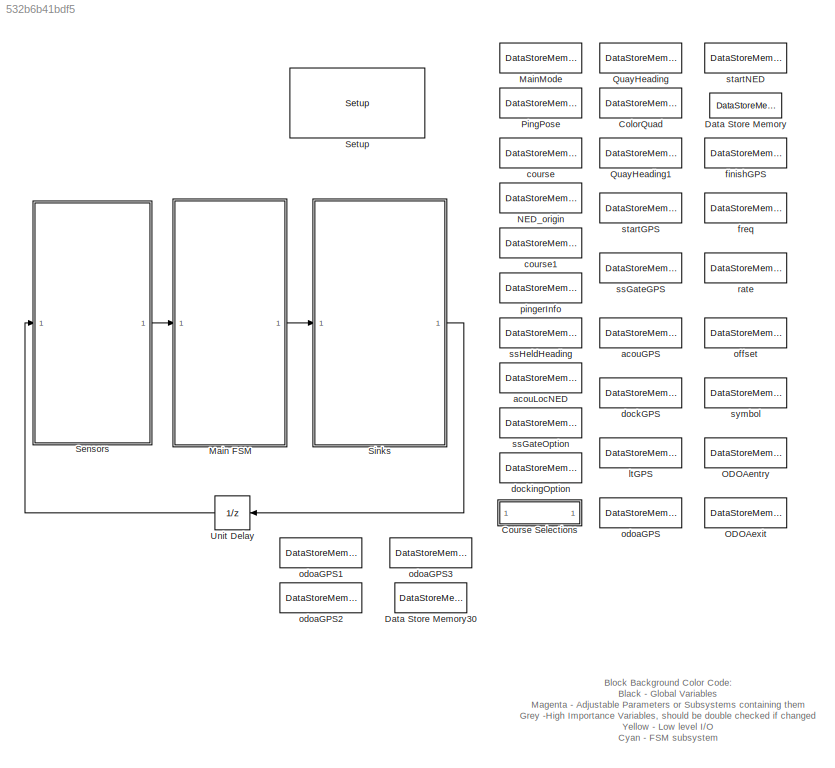
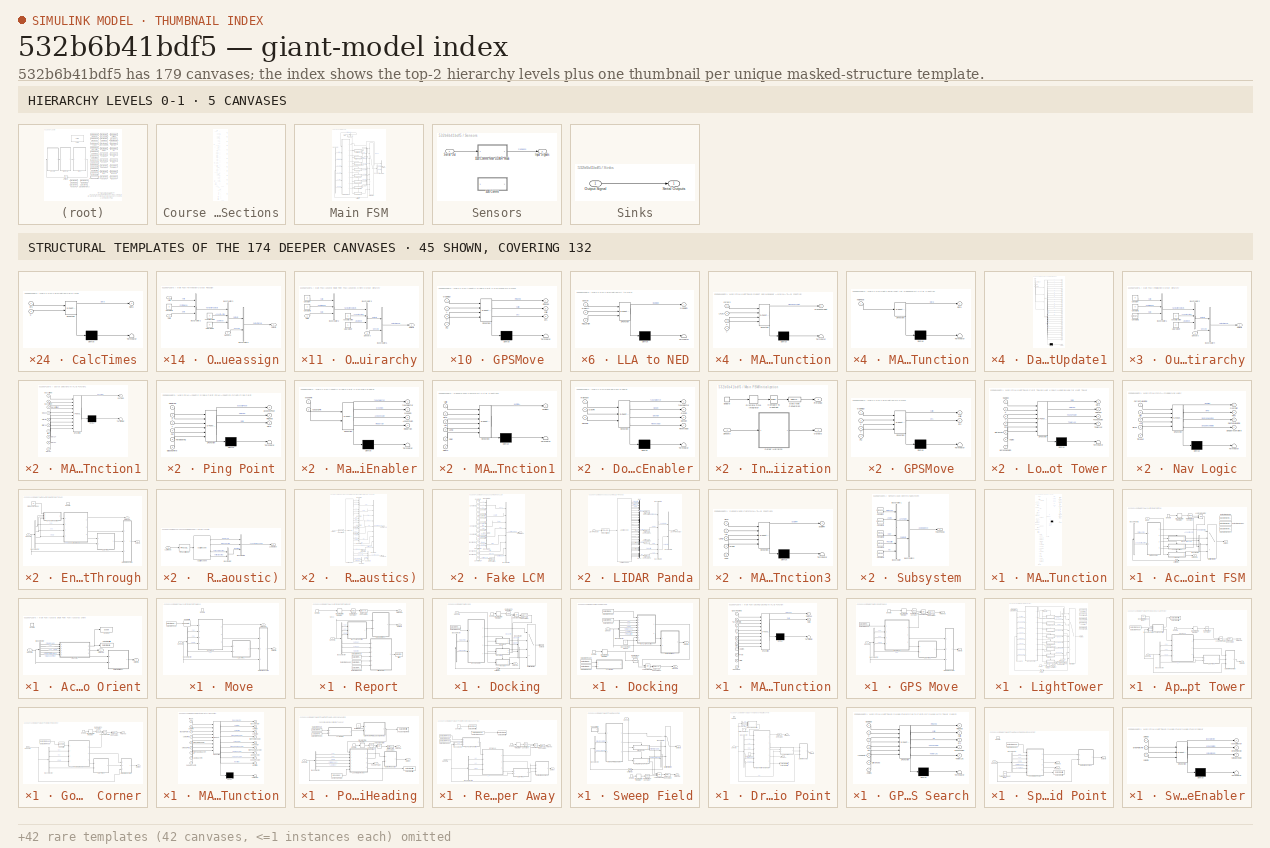
[diagram: thumbnail index - top-2 hierarchy levels (5 canvases) + 45 structural-template representatives of the remaining 174 canvases]
MODEL slx_532b6b41bdf5
KIND model
BLOCK [DataStoreMemory] ColorQuad
  DataStoreName = ColorQuad
  InitialValue = [3, 4, 1, 2]
  ReadBeforeWriteMsg = warning
  WriteAfterReadMsg = warning
  WriteAfterWriteMsg = warning
BLOCK [SubSystem] Course Selections
  Ports = []
  RequestExecContextInheritance = off
BLOCK [Constant] Course Selections/Bay 1 Offset
  Value = 0
BLOCK [Constant] Course Selections/Bay 1 Y
  Value = 143.81
BLOCK [Constant] Course Selections/Bay 2 Offset
  Value = 0
BLOCK [Constant] Course Selections/Bay 2 Y
  Value = 149.91
BLOCK [Constant] Course Selections/Bay 3 Offset
  Value = 0
BLOCK [Constant] Course Selections/Bay 3 Y
  Value = 155.85
BLOCK [Constant] Course Selections/Course A Acoustics
  Value = [1.28808, 103.85714; 1.28869, 103.85669; 1.28817, 103.85658; 1.28867, 103.85708]
  VectorParams1D = off
BLOCK [Constant] Course Selections/Course A Dock
  Value = [1.28881, 103.85717; 1.28875, 103.85753; 1.28862, 103.85721; 1.28857, 103.85749]
  VectorParams1D = off
BLOCK [Constant] Course Selections/Course A Freq
  Value = 28
  VectorParams1D = off
BLOCK [Constant] Course Selections/Course A LightTower
  Value = [1.28862, 103.85721; 1.28857, 103.85749; 1.28806, 103.85717; 1.28806, 103.85742]
  VectorParams1D = off
BLOCK [Constant] Course Selections/Course A ODOA
  Value = [1.28806, 103.85717; 1.28806, 103.85742; 1.28733, 103.85708; 1.28731, 103.85736]
  VectorParams1D = off
BLOCK [Constant] Course Selections/Course A ODOAentry
  VectorParams1D = off
BLOCK [Constant] Course Selections/Course A ODOAexit
  Value = 2
  VectorParams1D = off
BLOCK [Constant] Course Selections/Course A Offset
  Value = 0
  VectorParams1D = off
BLOCK [Constant] Course Selections/Course A Rate
  VectorParams1D = off
BLOCK [Constant] Course Selections/Course A Start
  Value = [1.28733, 103.85683]
  VectorParams1D = off
BLOCK [Constant] Course Selections/Course A Symbol
  Value = 2
  VectorParams1D = off
BLOCK [Constant] Course Selections/Course A finishGPS
  Value = [1.28722, 103.85713; 1.28721, 103.85728]
  VectorParams1D = off
BLOCK [Constant] Course Selections/Course A ssGate
  Value = [1.28772, 103.85675; 1.28739, 103.85675; 1.28739, 103.85694; 1.28772, 103.85694]
  VectorParams1D = off
BLOCK [Constant] Course Selections/Course B Acoustics
  Value = [1.28856, 103.85761; 1.28867, 103.85794; 1.28800, 103.85786; 1.28800, 103.85750]
  VectorParams1D = off
BLOCK [Constant] Course Selections/Course B Dock
  Value = [1.28875, 103.85811; 1.28869, 103.85844; 1.28859, 103.85810; 1.28854, 103.85838]
  VectorParams1D = off
BLOCK [Constant] Course Selections/Course B Freq
  Value = 32
  VectorParams1D = off
BLOCK [Constant] Course Selections/Course B LightTower
  Value = [1.28859, 103.85810; 1.28854, 103.85838; 1.28803, 103.85831; 1.28806, 103.85806]
  VectorParams1D = off
BLOCK [Constant] Course Selections/Course B ODOA
  Value = [1.28803, 103.85831; 1.28806, 103.85806; 1.28722, 103.85811; 1.28719, 103.85833]
  VectorParams1D = off
BLOCK [Constant] Course Selections/Course B ODOAentry
  VectorParams1D = off
BLOCK [Constant] Course Selections/Course B ODOAexit
  Value = 2
  VectorParams1D = off
BLOCK [Constant] Course Selections/Course B Offset
  Value = 400
  VectorParams1D = off
BLOCK [Constant] Course Selections/Course B Rate
  VectorParams1D = off
BLOCK [Constant] Course Selections/Course B Start
  Value = [1.28717, 103.85775]
  VectorParams1D = off
BLOCK [Constant] Course Selections/Course B Symbol
  Value = 2
  VectorParams1D = off
BLOCK [Constant] Course Selections/Course B finishGPS
  Value = [1.28712, 103.85812; 1.28710, 103.85837]
  VectorParams1D = off
BLOCK [Constant] Course Selections/Course B ssGate
  Value = [1.28775, 103.85761; 1.28725, 103.85764; 1.28719, 103.85786; 1.28767, 103.85789]
  VectorParams1D = off
BLOCK [Constant] Course Selections/Course T Acoustics
  Value = [1.28856, 103.85761; 1.28867, 103.85794; 1.28800, 103.85786; 1.28800, 103.85750]
  VectorParams1D = off
BLOCK [Constant] Course Selections/Course T Dock
  Value = [54, 148; 54, 148; 54, 148; 54, 148]
  VectorParams1D = off
BLOCK [Constant] Course Selections/Course T Freq
  Value = 32
  VectorParams1D = off
BLOCK [Constant] Course Selections/Course T LightTower
  Value = [1.28859, 103.85810; 1.28854, 103.85838; 1.28803, 103.85831; 1.28806, 103.85806]
  VectorParams1D = off
BLOCK [Constant] Course Selections/Course T ODOA
  Value = [1.28803, 103.85831; 1.28806, 103.85806; 1.28722, 103.85811; 1.28719, 103.85833]
  VectorParams1D = off
BLOCK [Constant] Course Selections/Course T ODOAentry
  VectorParams1D = off
BLOCK [Constant] Course Selections/Course T ODOAexit
  Value = 2
  VectorParams1D = off
BLOCK [Constant] Course Selections/Course T Offset
  Value = 400
  VectorParams1D = off
BLOCK [Constant] Course Selections/Course T Rate
  VectorParams1D = off
BLOCK [Constant] Course Selections/Course T Start
  Value = [-27, 144]
  VectorParams1D = off
BLOCK [Constant] Course Selections/Course T Symbol
  Value = 2
  VectorParams1D = off
BLOCK [Constant] Course Selections/Course T finishGPS
  Value = [13, 149; 13, 149]
  VectorParams1D = off
BLOCK [Constant] Course Selections/Course T ssGate
  Value = [-32, 150; -32, 150; 13, 149; 13, 149]
  VectorParams1D = off
BLOCK [Constant] Course Selections/Fin X
  Value = 70
BLOCK [Constant] Course Selections/Inter X
  Value = 66
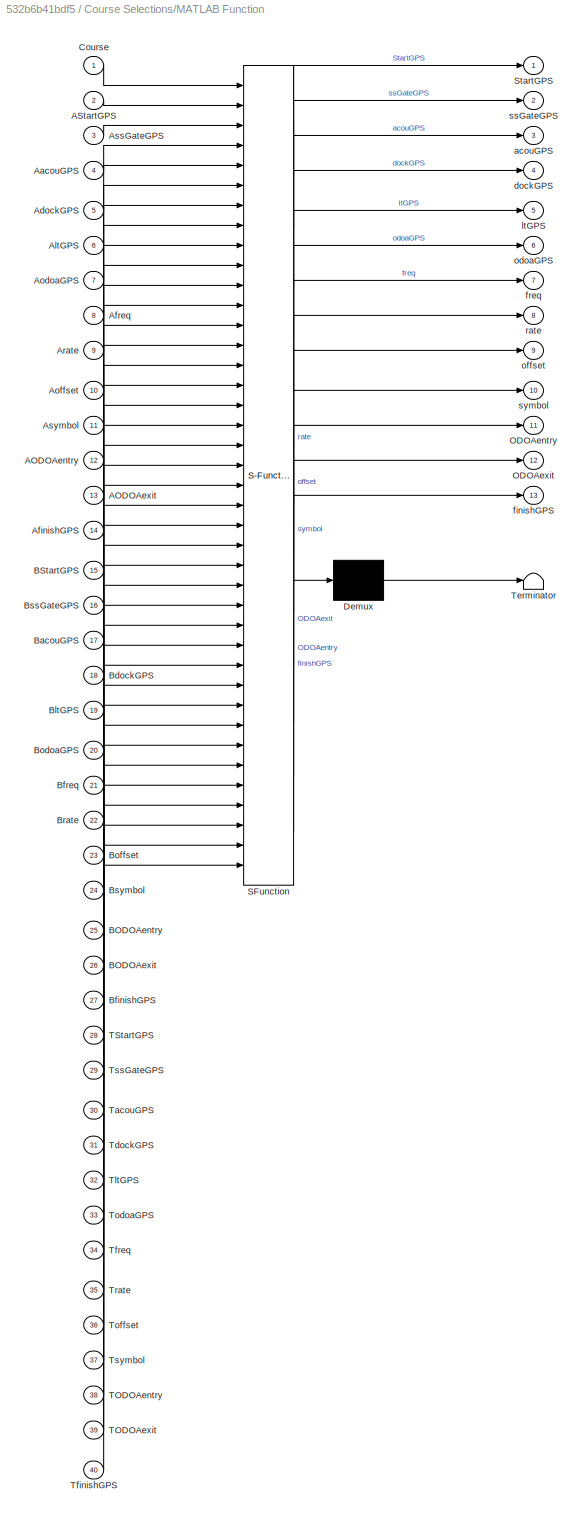
BLOCK [SubSystem] Course Selections/MATLAB Function
  ErrorFcn = Stateflow.Translate.translate
  PermitHierarchicalResolution = ExplicitOnly
  Ports = [40, 13]
  RequestExecContextInheritance = off
  SFBlockType = MATLAB Function
  TreatAsAtomicUnit = on
BLOCK [Demux] Course Selections/MATLAB Function/ Demux 
  Outputs = 1
  Ports = [1, 1]
BLOCK [S-Function] Course Selections/MATLAB Function/ SFunction 
  EnableBusSupport = on
  FunctionName = sf_sfun
  PortCounts = [40 14]
  Ports = [40, 14]
  Tag = Stateflow S-Function RobotX_ss_acousticsSingle_Dock_LBskip_ODOA_T_1024_NLM 24
BLOCK [Terminator] Course Selections/MATLAB Function/ Terminator 
BLOCK [Inport] Course Selections/MATLAB Function/AODOAentry
  IconDisplay = Port number
  Port = 12
BLOCK [Inport] Course Selections/MATLAB Function/AODOAexit
  IconDisplay = Port number
  Port = 13
BLOCK [Inport] Course Selections/MATLAB Function/AStartGPS
  IconDisplay = Port number
  Port = 2
BLOCK [Inport] Course Selections/MATLAB Function/AacouGPS
  IconDisplay = Port number
  Port = 4
BLOCK [Inport] Course Selections/MATLAB Function/AdockGPS
  IconDisplay = Port number
  Port = 5
BLOCK [Inport] Course Selections/MATLAB Function/AfinishGPS
  IconDisplay = Port number
  Port = 14
BLOCK [Inport] Course Selections/MATLAB Function/Afreq
  IconDisplay = Port number
  Port = 8
BLOCK [Inport] Course Selections/MATLAB Function/AltGPS
  IconDisplay = Port number
  Port = 6
BLOCK [Inport] Course Selections/MATLAB Function/AodoaGPS
  IconDisplay = Port number
  Port = 7
BLOCK [Inport] Course Selections/MATLAB Function/Aoffset
  IconDisplay = Port number
  Port = 10
BLOCK [Inport] Course Selections/MATLAB Function/Arate
  IconDisplay = Port number
  Port = 9
BLOCK [Inport] Course Selections/MATLAB Function/AssGateGPS
  IconDisplay = Port number
  Port = 3
BLOCK [Inport] Course Selections/MATLAB Function/Asymbol
  IconDisplay = Port number
  Port = 11
BLOCK [Inport] Course Selections/MATLAB Function/BODOAentry
  IconDisplay = Port number
  Port = 25
BLOCK [Inport] Course Selections/MATLAB Function/BODOAexit
  IconDisplay = Port number
  Port = 26
BLOCK [Inport] Course Selections/MATLAB Function/BStartGPS
  IconDisplay = Port number
  Port = 15
BLOCK [Inport] Course Selections/MATLAB Function/BacouGPS
  IconDisplay = Port number
  Port = 17
BLOCK [Inport] Course Selections/MATLAB Function/BdockGPS
  IconDisplay = Port number
  Port = 18
BLOCK [Inport] Course Selections/MATLAB Function/BfinishGPS
  IconDisplay = Port number
  Port = 27
BLOCK [Inport] Course Selections/MATLAB Function/Bfreq
  IconDisplay = Port number
  Port = 21
BLOCK [Inport] Course Selections/MATLAB Function/BltGPS
  IconDisplay = Port number
  Port = 19
BLOCK [Inport] Course Selections/MATLAB Function/BodoaGPS
  IconDisplay = Port number
  Port = 20
BLOCK [Inport] Course Selections/MATLAB Function/Boffset
  IconDisplay = Port number
  Port = 23
BLOCK [Inport] Course Selections/MATLAB Function/Brate
  IconDisplay = Port number
  Port = 22
BLOCK [Inport] Course Selections/MATLAB Function/BssGateGPS
  IconDisplay = Port number
  Port = 16
BLOCK [Inport] Course Selections/MATLAB Function/Bsymbol
  IconDisplay = Port number
  Port = 24
BLOCK [Inport] Course Selections/MATLAB Function/Course
  IconDisplay = Port number
BLOCK [Outport] Course Selections/MATLAB Function/ODOAentry
  IconDisplay = Port number
  Port = 11
BLOCK [Outport] Course Selections/MATLAB Function/ODOAexit
  IconDisplay = Port number
  Port = 12
BLOCK [Outport] Course Selections/MATLAB Function/StartGPS
  IconDisplay = Port number
BLOCK [Inport] Course Selections/MATLAB Function/TODOAentry
  IconDisplay = Port number
  Port = 38
BLOCK [Inport] Course Selections/MATLAB Function/TODOAexit
  IconDisplay = Port number
  Port = 39
BLOCK [Inport] Course Selections/MATLAB Function/TStartGPS
  IconDisplay = Port number
  Port = 28
BLOCK [Inport] Course Selections/MATLAB Function/TacouGPS
  IconDisplay = Port number
  Port = 30
BLOCK [Inport] Course Selections/MATLAB Function/TdockGPS
  IconDisplay = Port number
  Port = 31
BLOCK [Inport] Course Selections/MATLAB Function/TfinishGPS
  IconDisplay = Port number
  Port = 40
BLOCK [Inport] Course Selections/MATLAB Function/Tfreq
  IconDisplay = Port number
  Port = 34
BLOCK [Inport] Course Selections/MATLAB Function/TltGPS
  IconDisplay = Port number
  Port = 32
BLOCK [Inport] Course Selections/MATLAB Function/TodoaGPS
  IconDisplay = Port number
  Port = 33
BLOCK [Inport] Course Selections/MATLAB Function/Toffset
  IconDisplay = Port number
  Port = 36
BLOCK [Inport] Course Selections/MATLAB Function/Trate
  IconDisplay = Port number
  Port = 35
BLOCK [Inport] Course Selections/MATLAB Function/TssGateGPS
  IconDisplay = Port number
  Port = 29
BLOCK [Inport] Course Selections/MATLAB Function/Tsymbol
  IconDisplay = Port number
  Port = 37
BLOCK [Outport] Course Selections/MATLAB Function/acouGPS
  IconDisplay = Port number
  Port = 3
BLOCK [Outport] Course Selections/MATLAB Function/dockGPS
  IconDisplay = Port number
  Port = 4
BLOCK [Outport] Course Selections/MATLAB Function/finishGPS
  IconDisplay = Port number
  Port = 13
BLOCK [Outport] Course Selections/MATLAB Function/freq
  IconDisplay = Port number
  Port = 7
BLOCK [Outport] Course Selections/MATLAB Function/ltGPS
  IconDisplay = Port number
  Port = 5
BLOCK [Outport] Course Selections/MATLAB Function/odoaGPS
  IconDisplay = Port number
  Port = 6
BLOCK [Outport] Course Selections/MATLAB Function/offset
  IconDisplay = Port number
  Port = 9
BLOCK [Outport] Course Selections/MATLAB Function/rate
  IconDisplay = Port number
  Port = 8
BLOCK [Outport] Course Selections/MATLAB Function/ssGateGPS
  IconDisplay = Port number
  Port = 2
BLOCK [Outport] Course Selections/MATLAB Function/symbol
  IconDisplay = Port number
  Port = 10
BLOCK [SubSystem] Course Selections/MATLAB Function1
  ErrorFcn = Stateflow.Translate.translate
  PermitHierarchicalResolution = ExplicitOnly
  Ports = [10, 1]
  RequestExecContextInheritance = off
  SFBlockType = MATLAB Function
  TreatAsAtomicUnit = on
BLOCK [Demux] Course Selections/MATLAB Function1/ Demux 
  Outputs = 1
  Ports = [1, 1]
BLOCK [S-Function] Course Selections/MATLAB Function1/ SFunction 
  EnableBusSupport = on
  FunctionName = sf_sfun
  PortCounts = [10 2]
  Ports = [10, 2]
  Tag = Stateflow S-Function RobotX_ss_acousticsSingle_Dock_LBskip_ODOA_T_1024_NLM 4
BLOCK [Terminator] Course Selections/MATLAB Function1/ Terminator 
BLOCK [Inport] Course Selections/MATLAB Function1/bay1Offset
  IconDisplay = Port number
BLOCK [Inport] Course Selections/MATLAB Function1/bay1Y
  IconDisplay = Port number
  Port = 8
BLOCK [Inport] Course Selections/MATLAB Function1/bay2Offset
  IconDisplay = Port number
  Port = 2
BLOCK [Inport] Course Selections/MATLAB Function1/bay2Y
  IconDisplay = Port number
  Port = 9
BLOCK [Inport] Course Selections/MATLAB Function1/bay3Offset
  IconDisplay = Port number
  Port = 3
BLOCK [Inport] Course Selections/MATLAB Function1/bay3Y
  IconDisplay = Port number
  Port = 10
BLOCK [Outport] Course Selections/MATLAB Function1/bayNED
  IconDisplay = Port number
BLOCK [Inport] Course Selections/MATLAB Function1/finX
  IconDisplay = Port number
  Port = 7
BLOCK [Inport] Course Selections/MATLAB Function1/interX
  IconDisplay = Port number
  Port = 6
BLOCK [Inport] Course Selections/MATLAB Function1/obsX
  IconDisplay = Port number
  Port = 4
BLOCK [Inport] Course Selections/MATLAB Function1/startX
  IconDisplay = Port number
  Port = 5
BLOCK [Constant] Course Selections/Obs X
  Value = 76
BLOCK [DataStoreRead] Course Selections/Read
  DataStoreName = Course
  Ports = [0, 1]
BLOCK [Constant] Course Selections/Start X
  Value = 62
BLOCK [DataStoreWrite] Course Selections/Write
  DataStoreName = startGPS
  Ports = [1]
BLOCK [DataStoreWrite] Course Selections/Write1
  DataStoreName = ssGateGPS
  Ports = [1]
BLOCK [DataStoreWrite] Course Selections/Write10
  DataStoreName = ODOAentry
  Ports = [1]
BLOCK [DataStoreWrite] Course Selections/Write11
  DataStoreName = ODOAexit
  Ports = [1]
BLOCK [DataStoreWrite] Course Selections/Write12
  DataStoreName = finishGPS
  Ports = [1]
BLOCK [DataStoreWrite] Course Selections/Write13
  DataStoreName = bayNED
  Ports = [1]
BLOCK [DataStoreWrite] Course Selections/Write2
  DataStoreName = acouGPS
  Ports = [1]
BLOCK [DataStoreWrite] Course Selections/Write3
  DataStoreName = dockGPS
  Ports = [1]
BLOCK [DataStoreWrite] Course Selections/Write4
  DataStoreName = ltGPS
  Ports = [1]
BLOCK [DataStoreWrite] Course Selections/Write5
  DataStoreName = odoaGPS
  Ports = [1]
BLOCK [DataStoreWrite] Course Selections/Write6
  DataStoreName = freq
  Ports = [1]
BLOCK [DataStoreWrite] Course Selections/Write7
  DataStoreName = rate
  Ports = [1]
BLOCK [DataStoreWrite] Course Selections/Write8
  DataStoreName = offset
  Ports = [1]
BLOCK [DataStoreWrite] Course Selections/Write9
  DataStoreName = symbol
  Ports = [1]
BLOCK [DataStoreMemory] Data Store Memory
  DataStoreName = cameraOnly
  ReadBeforeWriteMsg = warning
  WriteAfterReadMsg = warning
  WriteAfterWriteMsg = warning
BLOCK [DataStoreMemory] Data Store Memory30
  DataStoreName = dodgeStart
  ReadBeforeWriteMsg = warning
  WriteAfterReadMsg = warning
  WriteAfterWriteMsg = warning
BLOCK [SubSystem] Main FSM
  Ports = [1, 1]
  RequestExecContextInheritance = off
BLOCK [SubSystem] Main FSM/Acoustic Single Point FSM
  Ports = [1, 2, 1]
  RequestExecContextInheritance = off
BLOCK [SubSystem] Main FSM/Acoustic Single Point FSM/Acoustics Orient
  Ports = [1, 2, 1]
  RequestExecContextInheritance = off
  TreatAsAtomicUnit = on
BLOCK [BusSelector] Main FSM/Acoustic Single Point FSM/Acoustics Orient/Bus Selector
  OutputSignals = Acoustic Message.Deployed,Navigation Message.Pose.X,Navigation Message.Pose.Y,Navigation Message.Pose.Psi,Acoustic Message.Bearings.Horizontal Bearing,Acoustic Message.Elapsed Time
  Ports = [1, 6]
BLOCK [DataStoreWrite] Main FSM/Acoustic Single Point FSM/Acoustics Orient/Data Store Write
  DataStoreName = AcousticPose1
  Ports = [1]
BLOCK [EnablePort] Main FSM/Acoustic Single Point FSM/Acoustics Orient/Enable
  Ports = []
BLOCK [Outport] Main FSM/Acoustic Single Point FSM/Acoustics Orient/Finished
  IconDisplay = Port number
  Port = 2
BLOCK [SubSystem] Main FSM/Acoustic Single Point FSM/Acoustics Orient/Output Heirarchy
  Ports = [2, 1]
  RequestExecContextInheritance = off
BLOCK [Constant] Main FSM/Acoustic Single Point FSM/Acoustics Orient/Output Heirarchy/Acoustic Active
BLOCK [BusCreator] Main FSM/Acoustic Single Point FSM/Acoustics Orient/Output Heirarchy/Bus Creator2
  DisplayOption = bar
  Inputs = 3
  Ports = [3, 1]
BLOCK [BusCreator] Main FSM/Acoustic Single Point FSM/Acoustics Orient/Output Heirarchy/Bus Creator3
  DisplayOption = bar
  Inputs = 3
  Ports = [3, 1]
BLOCK [BusCreator] Main FSM/Acoustic Single Point FSM/Acoustics Orient/Output Heirarchy/Bus Creator5
  DisplayOption = bar
  Inputs = 2
  Ports = [2, 1]
BLOCK [Constant] Main FSM/Acoustic Single Point FSM/Acoustics Orient/Output Heirarchy/Constant
BLOCK [Constant] Main FSM/Acoustic Single Point FSM/Acoustics Orient/Output Heirarchy/Constant3
BLOCK [Inport] Main FSM/Acoustic Single Point FSM/Acoustics Orient/Output Heirarchy/Data
  IconDisplay = Port number
BLOCK [Constant] Main FSM/Acoustic Single Point FSM/Acoustics Orient/Output Heirarchy/Lidar Mode
BLOCK [Outport] Main FSM/Acoustic Single Point FSM/Acoustics Orient/Output Heirarchy/Outputs
  IconDisplay = Port number
BLOCK [Inport] Main FSM/Acoustic Single Point FSM/Acoustics Orient/Output Heirarchy/Sensors
  IconDisplay = Port number
  Port = 2
BLOCK [Outport] Main FSM/Acoustic Single Point FSM/Acoustics Orient/Outputs
  IconDisplay = Port number
BLOCK [SubSystem] Main FSM/Acoustic Single Point FSM/Acoustics Orient/Ping Point
  ErrorFcn = Stateflow.Translate.translate
  PermitHierarchicalResolution = ExplicitOnly
  Ports = [6, 3]
  RequestExecContextInheritance = off
  SFBlockType = MATLAB Function
  TreatAsAtomicUnit = on
BLOCK [Demux] Main FSM/Acoustic Single Point FSM/Acoustics Orient/Ping Point/ Demux 
  Outputs = 1
  Ports = [1, 1]
BLOCK [S-Function] Main FSM/Acoustic Single Point FSM/Acoustics Orient/Ping Point/ SFunction 
  EnableBusSupport = on
  FunctionName = sf_sfun
  PortCounts = [6 4]
  Ports = [6, 4]
  Tag = Stateflow S-Function RobotX_ss_acousticsSingle_Dock_LBskip_ODOA_T_1024_NLM 2
BLOCK [Terminator] Main FSM/Acoustic Single Point FSM/Acoustics Orient/Ping Point/ Terminator 
BLOCK [Outport] Main FSM/Acoustic Single Point FSM/Acoustics Orient/Ping Point/Data
  IconDisplay = Port number
  Port = 3
BLOCK [Inport] Main FSM/Acoustic Single Point FSM/Acoustics Orient/Ping Point/Deployed
  IconDisplay = Port number
BLOCK [Inport] Main FSM/Acoustic Single Point FSM/Acoustics Orient/Ping Point/ElapsedTime
  IconDisplay = Port number
  Port = 6
BLOCK [Outport] Main FSM/Acoustic Single Point FSM/Acoustics Orient/Ping Point/Finished
  IconDisplay = Port number
  Port = 2
BLOCK [Inport] Main FSM/Acoustic Single Point FSM/Acoustics Orient/Ping Point/HorizBearing
  IconDisplay = Port number
  Port = 5
BLOCK [Inport] Main FSM/Acoustic Single Point FSM/Acoustics Orient/Ping Point/Psi
  IconDisplay = Port number
  Port = 4
BLOCK [Inport] Main FSM/Acoustic Single Point FSM/Acoustics Orient/Ping Point/X
  IconDisplay = Port number
  Port = 2
BLOCK [Inport] Main FSM/Acoustic Single Point FSM/Acoustics Orient/Ping Point/Y
  IconDisplay = Port number
  Port = 3
BLOCK [Outport] Main FSM/Acoustic Single Point FSM/Acoustics Orient/Ping Point/acousticPose
  IconDisplay = Port number
BLOCK [Reference] Main FSM/Acoustic Single Point FSM/Acoustics Orient/Scope 2  REF=slrtlib/Displays and
Logging/Scope 
  Ports = [1]
  SourceBlock = slrtlib/Displays and\nLogging/Scope
  SourceType = xpcscopeblock
  autorestart = on
  autostart = on
  dynamicfilemode = on
  filename = SAP_<%%%>.dat
  formatstr = '%15.6f'
  grid = on
  interleave = 1
  maxwritefilesize = 512*1024^2
  mode = Lazy
  noprepostsamples = 0
  nosamples = 28800
  scopeno = 5
  scopetype = File
  triggerlevel = 0.0
  triggermode = FreeRun
  triggersample = 0
  triggerscope = 1
  triggersignal = 1
  triggerslope = Either
  trigsignalfromport = off
  viewmode = Graphical redraw
  writesize = 5120
  ylimits = [0,0]
BLOCK [Inport] Main FSM/Acoustic Single Point FSM/Acoustics Orient/Sensors
  IconDisplay = Port number
BLOCK [BusCreator] Main FSM/Acoustic Single Point FSM/Bus Creator
  DisplayOption = bar
  Inputs = 2
  Ports = [2, 1]
BLOCK [BusSelector] Main FSM/Acoustic Single Point FSM/Bus Selector1
  OutputSignals = Drive1Fin,Acoustic1Fin
  Ports = [1, 2]
BLOCK [Reference] Main FSM/Acoustic Single Point FSM/Compare To Constant  REF=simulink/Logic and Bit
Operations/Compare
To Constant
  OutDataTypeStr = boolean
  Ports = [1, 1]
  SourceBlock = simulink/Logic and Bit\nOperations/Compare\nTo Constant
  SourceType = Compare To Constant
  ZeroCross = on
  const = 30
  relop = >=
BLOCK [DataStoreMemory] Main FSM/Acoustic Single Point FSM/Data Store Memory
  DataStoreName = AcousticPose1
  InitialValue = [0 0 0]
  ReadBeforeWriteMsg = warning
  WriteAfterReadMsg = warning
  WriteAfterWriteMsg = warning
BLOCK [DataStoreMemory] Main FSM/Acoustic Single Point FSM/Data Store Memory1
  DataStoreName = AcousticPose2
  InitialValue = [0 0 0]
  ReadBeforeWriteMsg = warning
  WriteAfterReadMsg = warning
  WriteAfterWriteMsg = warning
BLOCK [DataStoreMemory] Main FSM/Acoustic Single Point FSM/Data Store Memory2
  DataStoreName = AcousticPose3
  InitialValue = [0 0 0]
  ReadBeforeWriteMsg = warning
  WriteAfterReadMsg = warning
  WriteAfterWriteMsg = warning
BLOCK [DiscreteIntegrator] Main FSM/Acoustic Single Point FSM/Discrete-Time Integrator
  ICPrevOutput = DiscIntNeverNeededParam
  ICPrevScaledInput = DiscIntNeverNeededParam
  Ports = [1, 1]
  SampleTime = -1
BLOCK [EnablePort] Main FSM/Acoustic Single Point FSM/Enable
  Ports = [0, 1]
  ShowOutputPort = on
BLOCK [Outport] Main FSM/Acoustic Single Point FSM/Finished
  IconDisplay = Port number
  Port = 2
BLOCK [Inport] Main FSM/Acoustic Single Point FSM/Input
  IconDisplay = Port number
BLOCK [Logic] Main FSM/Acoustic Single Point FSM/Logical Operator
  AllPortsSameDT = off
  Operator = OR
  OutDataTypeStr = boolean
  Ports = [2, 1]
BLOCK [SubSystem] Main FSM/Acoustic Single Point FSM/Main Enabler
  ErrorFcn = Stateflow.Translate.translate
  PermitHierarchicalResolution = ExplicitOnly
  Ports = [2, 4]
  RequestExecContextInheritance = off
  SFBlockType = MATLAB Function
  TreatAsAtomicUnit = on
BLOCK [Demux] Main FSM/Acoustic Single Point FSM/Main Enabler/ Demux 
  Outputs = 1
  Ports = [1, 1]
BLOCK [S-Function] Main FSM/Acoustic Single Point FSM/Main Enabler/ SFunction 
  EnableBusSupport = on
  FunctionName = sf_sfun
  PortCounts = [2 5]
  Ports = [2, 5]
  Tag = Stateflow S-Function RobotX_ss_acousticsSingle_Dock_LBskip_ODOA_T_1024_NLM 20
BLOCK [Terminator] Main FSM/Acoustic Single Point FSM/Main Enabler/ Terminator 
BLOCK [Outport] Main FSM/Acoustic Single Point FSM/Main Enabler/Acoustic1En
  IconDisplay = Port number
  Port = 3
BLOCK [Inport] Main FSM/Acoustic Single Point FSM/Main Enabler/AcousticFin
  IconDisplay = Port number
  Port = 2
BLOCK [Outport] Main FSM/Acoustic Single Point FSM/Main Enabler/MoveEn
  IconDisplay = Port number
  Port = 2
BLOCK [Inport] Main FSM/Acoustic Single Point FSM/Main Enabler/MoveFin
  IconDisplay = Port number
BLOCK [Outport] Main FSM/Acoustic Single Point FSM/Main Enabler/ReportEn
  IconDisplay = Port number
  Port = 4
BLOCK [Outport] Main FSM/Acoustic Single Point FSM/Main Enabler/taskSelector
  IconDisplay = Port number
BLOCK [SubSystem] Main FSM/Acoustic Single Point FSM/Move
  Ports = [1, 2, 1]
  RequestExecContextInheritance = off
BLOCK [BusSelector] Main FSM/Acoustic Single Point FSM/Move/Bus Selector
  OutputSignals = Navigation Message.Pose.X,Navigation Message.Pose.Y,Navigation Message.Pose.Psi,Navigation Message.Velocity.u
  Ports = [1, 4]
BLOCK [SubSystem] Main FSM/Acoustic Single Point FSM/Move/CalcTimes
  ErrorFcn = Stateflow.Translate.translate
  PermitHierarchicalResolution = ExplicitOnly
  Ports = [2, 1]
  RequestExecContextInheritance = off
  SFBlockType = MATLAB Function
  TreatAsAtomicUnit = on
BLOCK [Demux] Main FSM/Acoustic Single Point FSM/Move/CalcTimes/ Demux 
  Outputs = 1
  Ports = [1, 1]
BLOCK [S-Function] Main FSM/Acoustic Single Point FSM/Move/CalcTimes/ SFunction 
  EnableBusSupport = on
  FunctionName = sf_sfun
  PortCounts = [2 2]
  Ports = [2, 2]
  Tag = Stateflow S-Function RobotX_ss_acousticsSingle_Dock_LBskip_ODOA_T_1024_NLM 22
BLOCK [Terminator] Main FSM/Acoustic Single Point FSM/Move/CalcTimes/ Terminator 
BLOCK [Outport] Main FSM/Acoustic Single Point FSM/Move/CalcTimes/Data
  IconDisplay = Port number
BLOCK [Inport] Main FSM/Acoustic Single Point FSM/Move/CalcTimes/pts
  IconDisplay = Port number
BLOCK [Inport] Main FSM/Acoustic Single Point FSM/Move/CalcTimes/u
  IconDisplay = Port number
  Port = 2
BLOCK [DataStoreRead] Main FSM/Acoustic Single Point FSM/Move/Data Store Read
  DataStoreName = acouLocNED
  Ports = [0, 1]
BLOCK [EnablePort] Main FSM/Acoustic Single Point FSM/Move/Enable
  Ports = []
BLOCK [Outport] Main FSM/Acoustic Single Point FSM/Move/Finished
  IconDisplay = Port number
  Port = 2
BLOCK [SubSystem] Main FSM/Acoustic Single Point FSM/Move/GPSMove
  ErrorFcn = Stateflow.Translate.translate
  PermitHierarchicalResolution = ExplicitOnly
  Ports = [4, 3]
  RequestExecContextInheritance = off
  SFBlockType = MATLAB Function
  TreatAsAtomicUnit = on
BLOCK [Demux] Main FSM/Acoustic Single Point FSM/Move/GPSMove/ Demux 
  Outputs = 1
  Ports = [1, 1]
BLOCK [S-Function] Main FSM/Acoustic Single Point FSM/Move/GPSMove/ SFunction 
  EnableBusSupport = on
  FunctionName = sf_sfun
  PortCounts = [4 4]
  Ports = [4, 4]
  Tag = Stateflow S-Function RobotX_ss_acousticsSingle_Dock_LBskip_ODOA_T_1024_NLM 23
BLOCK [Terminator] Main FSM/Acoustic Single Point FSM/Move/GPSMove/ Terminator 
BLOCK [Outport] Main FSM/Acoustic Single Point FSM/Move/GPSMove/Finished
  IconDisplay = Port number
BLOCK [Inport] Main FSM/Acoustic Single Point FSM/Move/GPSMove/GoalNED
  IconDisplay = Port number
BLOCK [Inport] Main FSM/Acoustic Single Point FSM/Move/GPSMove/Psi
  IconDisplay = Port number
  Port = 4
BLOCK [Inport] Main FSM/Acoustic Single Point FSM/Move/GPSMove/X
  IconDisplay = Port number
  Port = 2
BLOCK [Inport] Main FSM/Acoustic Single Point FSM/Move/GPSMove/Y
  IconDisplay = Port number
  Port = 3
BLOCK [Outport] Main FSM/Acoustic Single Point FSM/Move/GPSMove/pts
  IconDisplay = Port number
  Port = 3
BLOCK [Outport] Main FSM/Acoustic Single Point FSM/Move/GPSMove/valid
  IconDisplay = Port number
  Port = 2
BLOCK [SubSystem] Main FSM/Acoustic Single Point FSM/Move/Output Reassign
  Ports = [3, 1]
  RequestExecContextInheritance = off
BLOCK [Constant] Main FSM/Acoustic Single Point FSM/Move/Output Reassign/Acoustic Active
  Value = 0
BLOCK [BusCreator] Main FSM/Acoustic Single Point FSM/Move/Output Reassign/Bus Creator2
  DisplayOption = bar
  Inputs = 3
  Ports = [3, 1]
BLOCK [BusCreator] Main FSM/Acoustic Single Point FSM/Move/Output Reassign/Bus Creator3
  DisplayOption = bar
  Inputs = 3
  Ports = [3, 1]
BLOCK [BusCreator] Main FSM/Acoustic Single Point FSM/Move/Output Reassign/Bus Creator5
  DisplayOption = bar
  Inputs = 2
  Ports = [2, 1]
BLOCK [Constant] Main FSM/Acoustic Single Point FSM/Move/Output Reassign/Constant3
  Value = 0
BLOCK [Inport] Main FSM/Acoustic Single Point FSM/Move/Output Reassign/Data
  IconDisplay = Port number
  Port = 2
BLOCK [Constant] Main FSM/Acoustic Single Point FSM/Move/Output Reassign/Lidar Mode
  Value = 0
BLOCK [Outport] Main FSM/Acoustic Single Point FSM/Move/Output Reassign/Outputs
  IconDisplay = Port number
BLOCK [Inport] Main FSM/Acoustic Single Point FSM/Move/Output Reassign/Sensors
  IconDisplay = Port number
  Port = 3
BLOCK [Inport] Main FSM/Acoustic Single Point FSM/Move/Output Reassign/Vaild
  IconDisplay = Port number
BLOCK [Outport] Main FSM/Acoustic Single Point FSM/Move/Outputs
  IconDisplay = Port number
BLOCK [Inport] Main FSM/Acoustic Single Point FSM/Move/Sensors
  IconDisplay = Port number
BLOCK [Reference] Main FSM/Acoustic Single Point FSM/Move/Submatrix  REF=dspmtrx3/Submatrix
  ColEndIndex = 1
  ColEndMode = Last
  ColSpan = All columns
  ColStartIndex = 1
  ColStartMode = First
  Ports = [1, 1]
  RowEndIndex = 1
  RowEndMode = Last
  RowSpan = One row
  RowStartIndex = 1
  RowStartMode = First
  SourceBlock = dspmtrx3/Submatrix
  SourceType = Submatrix
BLOCK [MultiPortSwitch] Main FSM/Acoustic Single Point FSM/Multiport Switch
  InputSameDT = off
  Ports = [4, 1]
  SaturateOnIntegerOverflow = off
BLOCK [Outport] Main FSM/Acoustic Single Point FSM/Output
  IconDisplay = Port number
BLOCK [SubSystem] Main FSM/Acoustic Single Point FSM/Report
  Ports = [1, 2, 1]
  RequestExecContextInheritance = off
BLOCK [BusSelector] Main FSM/Acoustic Single Point FSM/Report/Bus Selector
  OutputSignals = Navigation Message.Pose.X,Navigation Message.Pose.Y,Navigation Message.Pose.Psi,Acoustic Message.Pose Estimate.X Pos,Acoustic Message.Pose Estimate.Y Pos,Acoustic Message.Pose Estimate.Depth
  Ports = [1, 6]
BLOCK [Reference] Main FSM/Acoustic Single Point FSM/Report/Compare To Constant  REF=simulink/Logic and Bit
Operations/Compare
To Constant
  OutDataTypeStr = boolean
  Ports = [1, 1]
  SourceBlock = simulink/Logic and Bit\nOperations/Compare\nTo Constant
  SourceType = Compare To Constant
  ZeroCross = on
  const = 5
  relop = >=
BLOCK [DataStoreRead] Main FSM/Acoustic Single Point FSM/Report/Data Store Read
  DataStoreName = NED_origin
  Ports = [0, 1]
BLOCK [DataStoreRead] Main FSM/Acoustic Single Point FSM/Report/Data Store Read1
  DataStoreName = ColorQuad
  Ports = [0, 1]
BLOCK [DataStoreRead] Main FSM/Acoustic Single Point FSM/Report/Data Store Read2
  DataStoreName = AcousticPose1
  Ports = [0, 1]
BLOCK [DataTypeConversion] Main FSM/Acoustic Single Point FSM/Report/Data Type Conversion
  OutDataTypeStr = double
  RndMeth = Floor
  SaturateOnIntegerOverflow = off
BLOCK [DiscreteIntegrator] Main FSM/Acoustic Single Point FSM/Report/Discrete-Time Integrator
  ICPrevOutput = DiscIntNeverNeededParam
  ICPrevScaledInput = DiscIntNeverNeededParam
  Ports = [1, 1]
  SampleTime = -1
BLOCK [EnablePort] Main FSM/Acoustic Single Point FSM/Report/Enable
  Ports = [0, 1]
  ShowOutputPort = on
BLOCK [Outport] Main FSM/Acoustic Single Point FSM/Report/Finished
  IconDisplay = Port number
  Port = 2
BLOCK [SubSystem] Main FSM/Acoustic Single Point FSM/Report/MATLAB Function
  ErrorFcn = Stateflow.Translate.translate
  PermitHierarchicalResolution = ExplicitOnly
  Ports = [3, 1]
  RequestExecContextInheritance = off
  SFBlockType = MATLAB Function
  TreatAsAtomicUnit = on
BLOCK [Demux] Main FSM/Acoustic Single Point FSM/Report/MATLAB Function/ Demux 
  Outputs = 1
  Ports = [1, 1]
BLOCK [S-Function] Main FSM/Acoustic Single Point FSM/Report/MATLAB Function/ SFunction 
  EnableBusSupport = on
  FunctionName = sf_sfun
  PortCounts = [3 2]
  Ports = [3, 2]
  Tag = Stateflow S-Function RobotX_ss_acousticsSingle_Dock_LBskip_ODOA_T_1024_NLM 7
BLOCK [Terminator] Main FSM/Acoustic Single Point FSM/Report/MATLAB Function/ Terminator 
BLOCK [Outport] Main FSM/Acoustic Single Point FSM/Report/MATLAB Function/Data
  IconDisplay = Port number
BLOCK [Inport] Main FSM/Acoustic Single Point FSM/Report/MATLAB Function/Psi
  IconDisplay = Port number
  Port = 3
BLOCK [Inport] Main FSM/Acoustic Single Point FSM/Report/MATLAB Function/X
  IconDisplay = Port number
BLOCK [Inport] Main FSM/Acoustic Single Point FSM/Report/MATLAB Function/Y
  IconDisplay = Port number
  Port = 2
BLOCK [SubSystem] Main FSM/Acoustic Single Point FSM/Report/Output Heirarchy
  Ports = [2, 1]
  RequestExecContextInheritance = off
BLOCK [Constant] Main FSM/Acoustic Single Point FSM/Report/Output Heirarchy/Acoustic Active
BLOCK [BusCreator] Main FSM/Acoustic Single Point FSM/Report/Output Heirarchy/Bus Creator2
  DisplayOption = bar
  Inputs = 3
  Ports = [3, 1]
BLOCK [BusCreator] Main FSM/Acoustic Single Point FSM/Report/Output Heirarchy/Bus Creator3
  DisplayOption = bar
  Inputs = 3
  Ports = [3, 1]
BLOCK [BusCreator] Main FSM/Acoustic Single Point FSM/Report/Output Heirarchy/Bus Creator5
  DisplayOption = bar
  Inputs = 2
  Ports = [2, 1]
BLOCK [Constant] Main FSM/Acoustic Single Point FSM/Report/Output Heirarchy/Constant
BLOCK [Constant] Main FSM/Acoustic Single Point FSM/Report/Output Heirarchy/Constant3
BLOCK [Inport] Main FSM/Acoustic Single Point FSM/Report/Output Heirarchy/Data
  IconDisplay = Port number
  Port = 2
BLOCK [Constant] Main FSM/Acoustic Single Point FSM/Report/Output Heirarchy/Lidar Mode
BLOCK [Outport] Main FSM/Acoustic Single Point FSM/Report/Output Heirarchy/Outputs
  IconDisplay = Port number
BLOCK [Inport] Main FSM/Acoustic Single Point FSM/Report/Output Heirarchy/Sensors
  IconDisplay = Port number
BLOCK [Outport] Main FSM/Acoustic Single Point FSM/Report/Outputs
  IconDisplay = Port number
BLOCK [Inport] Main FSM/Acoustic Single Point FSM/Report/Sensors
  IconDisplay = Port number
BLOCK [DataStoreWrite] Main FSM/Acoustic Single Point FSM/Report/Write6
  DataStoreName = pingerInfo
  Ports = [1]
BLOCK [SubSystem] Main FSM/Acoustic Single Point FSM/Report/writePingInfo
  ErrorFcn = Stateflow.Translate.translate
  PermitHierarchicalResolution = ExplicitOnly
  Ports = [6, 1]
  RequestExecContextInheritance = off
  SFBlockType = MATLAB Function
  TreatAsAtomicUnit = on
BLOCK [Demux] Main FSM/Acoustic Single Point FSM/Report/writePingInfo/ Demux 
  Outputs = 1
  Ports = [1, 1]
BLOCK [S-Function] Main FSM/Acoustic Single Point FSM/Report/writePingInfo/ SFunction 
  EnableBusSupport = on
  FunctionName = sf_sfun
  PortCounts = [6 2]
  Ports = [6, 2]
  Tag = Stateflow S-Function RobotX_ss_acousticsSingle_Dock_LBskip_ODOA_T_1024_NLM 1
BLOCK [Terminator] Main FSM/Acoustic Single Point FSM/Report/writePingInfo/ Terminator 
BLOCK [Inport] Main FSM/Acoustic Single Point FSM/Report/writePingInfo/AcousticPose1
  IconDisplay = Port number
  Port = 5
BLOCK [Inport] Main FSM/Acoustic Single Point FSM/Report/writePingInfo/Depth
  IconDisplay = Port number
  Port = 3
BLOCK [Inport] Main FSM/Acoustic Single Point FSM/Report/writePingInfo/NED_Origin
  IconDisplay = Port number
  Port = 4
BLOCK [Inport] Main FSM/Acoustic Single Point FSM/Report/writePingInfo/acouX
  IconDisplay = Port number
BLOCK [Inport] Main FSM/Acoustic Single Point FSM/Report/writePingInfo/acouY
  IconDisplay = Port number
  Port = 2
BLOCK [Inport] Main FSM/Acoustic Single Point FSM/Report/writePingInfo/colorQuad
  IconDisplay = Port number
  Port = 6
BLOCK [Outport] Main FSM/Acoustic Single Point FSM/Report/writePingInfo/pingerInfo
  IconDisplay = Port number
BLOCK [UnitDelay] Main FSM/Acoustic Single Point FSM/Unit Delay
  InputProcessing = Elements as channels (sample based)
  SampleTime = -1
BLOCK [BusCreator] Main FSM/Bus Creator
  DisplayOption = bar
  Inputs = 6
  Ports = [6, 1]
BLOCK [BusCreator] Main FSM/Bus Creator1
  DisplayOption = bar
  Inputs = 3
  Ports = [3, 1]
BLOCK [BusSelector] Main FSM/Bus Selector
  OutputSignals = Init Fin,startgateFin,acouFin,dockFin,LTFin,ODOA Fin
  Ports = [1, 6]
BLOCK [BusSelector] Main FSM/Bus Selector1
  OutputSignals = Outputs,Sensors
  Ports = [1, 2]
BLOCK [BusSelector] Main FSM/Bus Selector2
  OutputSignals = Navigation Message.On/Off/RC/Auto
  Ports = [1, 1]
BLOCK [SubSystem] Main FSM/Docking
  Ports = [1, 2, 1]
  RequestExecContextInheritance = off
BLOCK [BusCreator] Main FSM/Docking/Bus Creator
  DisplayOption = bar
  Inputs = 'GpsFin','DockFin'
  Ports = [2, 1]
BLOCK [BusSelector] Main FSM/Docking/Bus Selector
  OutputSignals = GpsFin,DockFin
  Ports = [1, 2]
BLOCK [Reference] Main FSM/Docking/Compare To Constant  REF=simulink/Logic and Bit
Operations/Compare
To Constant
  OutDataTypeStr = boolean
  Ports = [1, 1]
  SourceBlock = simulink/Logic and Bit\nOperations/Compare\nTo Constant
  SourceType = Compare To Constant
  ZeroCross = on
  const = 30
  relop = >=
BLOCK [DataStoreRead] Main FSM/Docking/Data Store Read
  DataStoreName = dockingOption
  Ports = [0, 1]
BLOCK [DataTypeConversion] Main FSM/Docking/Data Type Conversion
  OutDataTypeStr = double
  RndMeth = Floor
  SaturateOnIntegerOverflow = off
BLOCK [DiscreteIntegrator] Main FSM/Docking/Discrete-Time Integrator
  ICPrevOutput = DiscIntNeverNeededParam
  ICPrevScaledInput = DiscIntNeverNeededParam
  Ports = [1, 1]
  SampleTime = -1
BLOCK [SubSystem] Main FSM/Docking/Dock Enabler
  ErrorFcn = Stateflow.Translate.translate
  PermitHierarchicalResolution = ExplicitOnly
  Ports = [3, 4]
  RequestExecContextInheritance = off
  SFBlockType = MATLAB Function
  TreatAsAtomicUnit = on
BLOCK [Demux] Main FSM/Docking/Dock Enabler/ Demux 
  Outputs = 1
  Ports = [1, 1]
BLOCK [S-Function] Main FSM/Docking/Dock Enabler/ SFunction 
  EnableBusSupport = on
  FunctionName = sf_sfun
  PortCounts = [3 5]
  Ports = [3, 5]
  Tag = Stateflow S-Function RobotX_ss_acousticsSingle_Dock_LBskip_ODOA_T_1024_NLM 36
BLOCK [Terminator] Main FSM/Docking/Dock Enabler/ Terminator 
BLOCK [Outport] Main FSM/Docking/Dock Enabler/DockEn
  IconDisplay = Port number
  Port = 3
BLOCK [Inport] Main FSM/Docking/Dock Enabler/DockFin
  IconDisplay = Port number
  Port = 3
BLOCK [Outport] Main FSM/Docking/Dock Enabler/GpsEn
  IconDisplay = Port number
  Port = 2
BLOCK [Inport] Main FSM/Docking/Dock Enabler/GpsFin
  IconDisplay = Port number
  Port = 2
BLOCK [Outport] Main FSM/Docking/Dock Enabler/ReverseEn
  IconDisplay = Port number
  Port = 4
BLOCK [Inport] Main FSM/Docking/Dock Enabler/mainTask
  IconDisplay = Port number
BLOCK [Outport] Main FSM/Docking/Dock Enabler/taskSelector
  IconDisplay = Port number
BLOCK [SubSystem] Main FSM/Docking/Docking
  Ports = [1, 2, 1]
  RequestExecContextInheritance = off
BLOCK [BusSelector] Main FSM/Docking/Docking/Bus Selector
  OutputSignals = Navigation Message.Pose.X,Navigation Message.Pose.Y,Navigation Message.Pose.Psi,Lidar Data Input.Landmarks.Distances,Lidar Data Input.Landmarks.Angles,Lidar Data Input.Color data.Probability
  Ports = [1, 6]
BLOCK [Reference] Main FSM/Docking/Docking/Compare To Constant  REF=simulink/Logic and Bit
Operations/Compare
To Constant
  OutDataTypeStr = boolean
  Ports = [1, 1]
  SourceBlock = simulink/Logic and Bit\nOperations/Compare\nTo Constant
  SourceType = Compare To Constant
  ZeroCross = on
  const = 40
  relop = >=
BLOCK [DataStoreRead] Main FSM/Docking/Docking/Data Store Read
  DataStoreName = bayNED
  Ports = [0, 1]
BLOCK [DataStoreRead] Main FSM/Docking/Docking/Data Store Read1
  Commented = on
  DataStoreName = NED_origin
  Ports = [0, 1]
BLOCK [DataStoreRead] Main FSM/Docking/Docking/Data Store Read2
  DataStoreName = QuayHeading
  Ports = [0, 1]
BLOCK [DataStoreRead] Main FSM/Docking/Docking/Data Store Read3
  Commented = on
  DataStoreName = Course
  Ports = [0, 1]
BLOCK [DataTypeConversion] Main FSM/Docking/Docking/Data Type Conversion1
  OutDataTypeStr = double
  RndMeth = Floor
  SaturateOnIntegerOverflow = off
BLOCK [DiscreteIntegrator] Main FSM/Docking/Docking/Discrete-Time Integrator
  ICPrevOutput = DiscIntNeverNeededParam
  ICPrevScaledInput = DiscIntNeverNeededParam
  Ports = [1, 1]
  SampleTime = -1
BLOCK [Constant] Main FSM/Docking/Docking/Dock Number Guess
BLOCK [EnablePort] Main FSM/Docking/Docking/Enable
  Ports = [0, 1]
  ShowOutputPort = on
BLOCK [Outport] Main FSM/Docking/Docking/Finshed
  IconDisplay = Port number
  Port = 2
BLOCK [SubSystem] Main FSM/Docking/Docking/LLA to NED
  Commented = on
  ErrorFcn = Stateflow.Translate.translate
  PermitHierarchicalResolution = ExplicitOnly
  Ports = [3, 1]
  RequestExecContextInheritance = off
  SFBlockType = MATLAB Function
  TreatAsAtomicUnit = on
BLOCK [Demux] Main FSM/Docking/Docking/LLA to NED/ Demux 
  Outputs = 1
  Ports = [1, 1]
BLOCK [S-Function] Main FSM/Docking/Docking/LLA to NED/ SFunction 
  EnableBusSupport = on
  FunctionName = sf_sfun
  PortCounts = [3 2]
  Ports = [3, 2]
  Tag = Stateflow S-Function RobotX_ss_acousticsSingle_Dock_LBskip_ODOA_T_1024_NLM 39
BLOCK [Terminator] Main FSM/Docking/Docking/LLA to NED/ Terminator 
BLOCK [Inport] Main FSM/Docking/Docking/LLA to NED/Course
  IconDisplay = Port number
BLOCK [Outport] Main FSM/Docking/Docking/LLA to NED/GoalNED
  IconDisplay = Port number
BLOCK [Inport] Main FSM/Docking/Docking/LLA to NED/LLAs
  IconDisplay = Port number
  Port = 2
BLOCK [Inport] Main FSM/Docking/Docking/LLA to NED/NED_origin
  IconDisplay = Port number
  Port = 3
BLOCK [Logic] Main FSM/Docking/Docking/Logical Operator
  AllPortsSameDT = off
  Operator = OR
  OutDataTypeStr = boolean
  Ports = [2, 1]
BLOCK [SubSystem] Main FSM/Docking/Docking/MATLAB Function
  ErrorFcn = Stateflow.Translate.translate
  PermitHierarchicalResolution = ExplicitOnly
  Ports = [10, 2]
  RequestExecContextInheritance = off
  SFBlockType = MATLAB Function
  TreatAsAtomicUnit = on
BLOCK [Demux] Main FSM/Docking/Docking/MATLAB Function/ Demux 
  Outputs = 1
  Ports = [1, 1]
BLOCK [S-Function] Main FSM/Docking/Docking/MATLAB Function/ SFunction 
  EnableBusSupport = on
  FunctionName = sf_sfun
  PortCounts = [10 3]
  Ports = [10, 3]
  Tag = Stateflow S-Function RobotX_ss_acousticsSingle_Dock_LBskip_ODOA_T_1024_NLM 40
BLOCK [Terminator] Main FSM/Docking/Docking/MATLAB Function/ Terminator 
BLOCK [Inport] Main FSM/Docking/Docking/MATLAB Function/Angles
  IconDisplay = Port number
  Port = 7
BLOCK [Outport] Main FSM/Docking/Docking/MATLAB Function/Data
  IconDisplay = Port number
  Port = 2
BLOCK [Inport] Main FSM/Docking/Docking/MATLAB Function/Dist
  IconDisplay = Port number
  Port = 6
BLOCK [Outport] Main FSM/Docking/Docking/MATLAB Function/Finished
  IconDisplay = Port number
BLOCK [Inport] Main FSM/Docking/Docking/MATLAB Function/Prob
  IconDisplay = Port number
  Port = 8
BLOCK [Inport] Main FSM/Docking/Docking/MATLAB Function/Psi
  IconDisplay = Port number
  Port = 5
BLOCK [Inport] Main FSM/Docking/Docking/MATLAB Function/QuayHeading
  IconDisplay = Port number
BLOCK [Inport] Main FSM/Docking/Docking/MATLAB Function/TargetPoints
  IconDisplay = Port number
  Port = 2
BLOCK [Inport] Main FSM/Docking/Docking/MATLAB Function/Time
  IconDisplay = Port number
  Port = 9
BLOCK [Inport] Main FSM/Docking/Docking/MATLAB Function/X
  IconDisplay = Port number
  Port = 3
BLOCK [Inport] Main FSM/Docking/Docking/MATLAB Function/Y
  IconDisplay = Port number
  Port = 4
BLOCK [Inport] Main FSM/Docking/Docking/MATLAB Function/dockNum
  IconDisplay = Port number
  Port = 10
BLOCK [SubSystem] Main FSM/Docking/Docking/Output Heirarchy
  Ports = [2, 1]
  RequestExecContextInheritance = off
BLOCK [Constant] Main FSM/Docking/Docking/Output Heirarchy/Acoustic Active
  Value = 0
BLOCK [BusCreator] Main FSM/Docking/Docking/Output Heirarchy/Bus Creator2
  DisplayOption = bar
  Inputs = 3
  Ports = [3, 1]
BLOCK [BusCreator] Main FSM/Docking/Docking/Output Heirarchy/Bus Creator3
  DisplayOption = bar
  Inputs = 3
  Ports = [3, 1]
BLOCK [BusCreator] Main FSM/Docking/Docking/Output Heirarchy/Bus Creator5
  DisplayOption = bar
  Inputs = 2
  Ports = [2, 1]
BLOCK [Constant] Main FSM/Docking/Docking/Output Heirarchy/Constant
BLOCK [Constant] Main FSM/Docking/Docking/Output Heirarchy/Constant3
BLOCK [Inport] Main FSM/Docking/Docking/Output Heirarchy/Data
  IconDisplay = Port number
BLOCK [Constant] Main FSM/Docking/Docking/Output Heirarchy/Lidar Mode
  Value = 2
BLOCK [Outport] Main FSM/Docking/Docking/Output Heirarchy/Outputs
  IconDisplay = Port number
BLOCK [Inport] Main FSM/Docking/Docking/Output Heirarchy/Sensors
  IconDisplay = Port number
  Port = 2
BLOCK [Outport] Main FSM/Docking/Docking/Outputs
  IconDisplay = Port number
BLOCK [Inport] Main FSM/Docking/Docking/Sensor
  IconDisplay = Port number
BLOCK [EnablePort] Main FSM/Docking/Enable
  Ports = [0, 1]
  ShowOutputPort = on
BLOCK [Outport] Main FSM/Docking/Finished
  IconDisplay = Port number
  InitialOutput = 0
  Port = 2
BLOCK [SubSystem] Main FSM/Docking/GPS Move
  Ports = [1, 2, 1]
  RequestExecContextInheritance = off
BLOCK [BusSelector] Main FSM/Docking/GPS Move/Bus Selector
  OutputSignals = Navigation Message.Pose.X,Navigation Message.Pose.Y,Navigation Message.Pose.Psi,Navigation Message.Velocity.u
  Ports = [1, 4]
BLOCK [SubSystem] Main FSM/Docking/GPS Move/CalcTimes
  ErrorFcn = Stateflow.Translate.translate
  PermitHierarchicalResolution = ExplicitOnly
  Ports = [2, 1]
  RequestExecContextInheritance = off
  SFBlockType = MATLAB Function
  TreatAsAtomicUnit = on
BLOCK [Demux] Main FSM/Docking/GPS Move/CalcTimes/ Demux 
  Outputs = 1
  Ports = [1, 1]
BLOCK [S-Function] Main FSM/Docking/GPS Move/CalcTimes/ SFunction 
  EnableBusSupport = on
  FunctionName = sf_sfun
  PortCounts = [2 2]
  Ports = [2, 2]
  Tag = Stateflow S-Function RobotX_ss_acousticsSingle_Dock_LBskip_ODOA_T_1024_NLM 41
BLOCK [Terminator] Main FSM/Docking/GPS Move/CalcTimes/ Terminator 
BLOCK [Outport] Main FSM/Docking/GPS Move/CalcTimes/Data
  IconDisplay = Port number
BLOCK [Inport] Main FSM/Docking/GPS Move/CalcTimes/pts
  IconDisplay = Port number
BLOCK [Inport] Main FSM/Docking/GPS Move/CalcTimes/u
  IconDisplay = Port number
  Port = 2
BLOCK [Reference] Main FSM/Docking/GPS Move/Compare To Constant  REF=simulink/Logic and Bit
Operations/Compare
To Constant
  OutDataTypeStr = boolean
  Ports = [1, 1]
  SourceBlock = simulink/Logic and Bit\nOperations/Compare\nTo Constant
  SourceType = Compare To Constant
  ZeroCross = on
  const = 120
  relop = >=
BLOCK [DataStoreRead] Main FSM/Docking/GPS Move/Data Store Read
  DataStoreName = bayNED
  Ports = [0, 1]
BLOCK [DataTypeConversion] Main FSM/Docking/GPS Move/Data Type Conversion
  OutDataTypeStr = double
  RndMeth = Floor
  SaturateOnIntegerOverflow = off
BLOCK [DiscreteIntegrator] Main FSM/Docking/GPS Move/Discrete-Time Integrator
  ICPrevOutput = DiscIntNeverNeededParam
  ICPrevScaledInput = DiscIntNeverNeededParam
  Ports = [1, 1]
  SampleTime = -1
BLOCK [EnablePort] Main FSM/Docking/GPS Move/Enable
  Ports = [0, 1]
  ShowOutputPort = on
BLOCK [Outport] Main FSM/Docking/GPS Move/Finished
  IconDisplay = Port number
  Port = 2
BLOCK [SubSystem] Main FSM/Docking/GPS Move/GPSMove
  ErrorFcn = Stateflow.Translate.translate
  PermitHierarchicalResolution = ExplicitOnly
  Ports = [4, 3]
  RequestExecContextInheritance = off
  SFBlockType = MATLAB Function
  TreatAsAtomicUnit = on
BLOCK [Demux] Main FSM/Docking/GPS Move/GPSMove/ Demux 
  Outputs = 1
  Ports = [1, 1]
BLOCK [S-Function] Main FSM/Docking/GPS Move/GPSMove/ SFunction 
  EnableBusSupport = on
  FunctionName = sf_sfun
  PortCounts = [4 4]
  Ports = [4, 4]
  Tag = Stateflow S-Function RobotX_ss_acousticsSingle_Dock_LBskip_ODOA_T_1024_NLM 42
BLOCK [Terminator] Main FSM/Docking/GPS Move/GPSMove/ Terminator 
BLOCK [Outport] Main FSM/Docking/GPS Move/GPSMove/Finished
  IconDisplay = Port number
BLOCK [Inport] Main FSM/Docking/GPS Move/GPSMove/GoalNED
  IconDisplay = Port number
BLOCK [Inport] Main FSM/Docking/GPS Move/GPSMove/Psi
  IconDisplay = Port number
  Port = 4
BLOCK [Inport] Main FSM/Docking/GPS Move/GPSMove/X
  IconDisplay = Port number
  Port = 2
BLOCK [Inport] Main FSM/Docking/GPS Move/GPSMove/Y
  IconDisplay = Port number
  Port = 3
BLOCK [Outport] Main FSM/Docking/GPS Move/GPSMove/pts
  IconDisplay = Port number
  Port = 3
BLOCK [Outport] Main FSM/Docking/GPS Move/GPSMove/valid
  IconDisplay = Port number
  Port = 2
BLOCK [Logic] Main FSM/Docking/GPS Move/Logical Operator
  AllPortsSameDT = off
  Operator = OR
  OutDataTypeStr = boolean
  Ports = [2, 1]
BLOCK [SubSystem] Main FSM/Docking/GPS Move/Output Reassign
  Ports = [3, 1]
  RequestExecContextInheritance = off
BLOCK [Constant] Main FSM/Docking/GPS Move/Output Reassign/Acoustic Active
  Value = 0
BLOCK [BusCreator] Main FSM/Docking/GPS Move/Output Reassign/Bus Creator2
  DisplayOption = bar
  Inputs = 3
  Ports = [3, 1]
BLOCK [BusCreator] Main FSM/Docking/GPS Move/Output Reassign/Bus Creator3
  DisplayOption = bar
  Inputs = 3
  Ports = [3, 1]
BLOCK [BusCreator] Main FSM/Docking/GPS Move/Output Reassign/Bus Creator5
  DisplayOption = bar
  Inputs = 2
  Ports = [2, 1]
BLOCK [Constant] Main FSM/Docking/GPS Move/Output Reassign/Constant3
  Value = 0
BLOCK [Inport] Main FSM/Docking/GPS Move/Output Reassign/Data
  IconDisplay = Port number
  Port = 2
BLOCK [Constant] Main FSM/Docking/GPS Move/Output Reassign/Lidar Mode
  Value = 0
BLOCK [Outport] Main FSM/Docking/GPS Move/Output Reassign/Outputs
  IconDisplay = Port number
BLOCK [Inport] Main FSM/Docking/GPS Move/Output Reassign/Sensors
  IconDisplay = Port number
  Port = 3
BLOCK [Inport] Main FSM/Docking/GPS Move/Output Reassign/Vaild
  IconDisplay = Port number
BLOCK [Outport] Main FSM/Docking/GPS Move/Outputs
  IconDisplay = Port number
BLOCK [Inport] Main FSM/Docking/GPS Move/Sensors
  IconDisplay = Port number
BLOCK [Logic] Main FSM/Docking/Logical Operator
  AllPortsSameDT = off
  Operator = OR
  OutDataTypeStr = boolean
  Ports = [2, 1]
BLOCK [MultiPortSwitch] Main FSM/Docking/Multiport Switch
  InputSameDT = off
  Ports = [4, 1]
  SaturateOnIntegerOverflow = off
BLOCK [Outport] Main FSM/Docking/Outputs
  IconDisplay = Port number
BLOCK [SubSystem] Main FSM/Docking/Reverse
  Ports = [1, 2, 1]
  RequestExecContextInheritance = off
  TreatAsAtomicUnit = on
BLOCK [Reference] Main FSM/Docking/Reverse/Compare To Constant  REF=simulink/Logic and Bit
Operations/Compare
To Constant
  OutDataTypeStr = boolean
  Ports = [1, 1]
  SourceBlock = simulink/Logic and Bit\nOperations/Compare\nTo Constant
  SourceType = Compare To Constant
  ZeroCross = on
  const = 20
  relop = >=
BLOCK [DataTypeConversion] Main FSM/Docking/Reverse/Data Type Conversion
  OutDataTypeStr = double
  RndMeth = Floor
  SaturateOnIntegerOverflow = off
BLOCK [DiscreteIntegrator] Main FSM/Docking/Reverse/Discrete-Time Integrator
  ICPrevOutput = DiscIntNeverNeededParam
  ICPrevScaledInput = DiscIntNeverNeededParam
  Ports = [1, 1]
  SampleTime = 0.25
BLOCK [EnablePort] Main FSM/Docking/Reverse/Enable
  Ports = [0, 1]
  ShowOutputPort = on
BLOCK [Outport] Main FSM/Docking/Reverse/Finished
  IconDisplay = Port number
  Port = 2
BLOCK [SubSystem] Main FSM/Docking/Reverse/Output Heirarchy
  Ports = [1, 1]
  RequestExecContextInheritance = off
BLOCK [Constant] Main FSM/Docking/Reverse/Output Heirarchy/Acoustic Active
  Value = 0
BLOCK [BusCreator] Main FSM/Docking/Reverse/Output Heirarchy/Bus Creator2
  DisplayOption = bar
  Inputs = 3
  Ports = [3, 1]
BLOCK [BusCreator] Main FSM/Docking/Reverse/Output Heirarchy/Bus Creator3
  DisplayOption = bar
  Inputs = 3
  Ports = [3, 1]
BLOCK [BusCreator] Main FSM/Docking/Reverse/Output Heirarchy/Bus Creator5
  DisplayOption = bar
  Inputs = 2
  Ports = [2, 1]
BLOCK [Constant] Main FSM/Docking/Reverse/Output Heirarchy/Constant2
  Value = [-100; -100; zeros(22,1)]
BLOCK [Constant] Main FSM/Docking/Reverse/Output Heirarchy/Constant3
BLOCK [Constant] Main FSM/Docking/Reverse/Output Heirarchy/Constant4
  Value = 2
BLOCK [Constant] Main FSM/Docking/Reverse/Output Heirarchy/Lidar Mode
  Value = 2
BLOCK [Outport] Main FSM/Docking/Reverse/Output Heirarchy/Outputs
  IconDisplay = Port number
BLOCK [Inport] Main FSM/Docking/Reverse/Output Heirarchy/Sensors
  IconDisplay = Port number
BLOCK [Outport] Main FSM/Docking/Reverse/Outputs
  IconDisplay = Port number
BLOCK [Inport] Main FSM/Docking/Reverse/Sensors
  IconDisplay = Port number
BLOCK [Inport] Main FSM/Docking/Sensors
  IconDisplay = Port number
BLOCK [UnitDelay] Main FSM/Docking/Unit Delay
  InputProcessing = Elements as channels (sample based)
  SampleTime = -1
BLOCK [SubSystem] Main FSM/Initialization
  Ports = [1, 2, 1]
  RequestExecContextInheritance = off
BLOCK [Reference] Main FSM/Initialization/Compare To Constant  REF=simulink/Logic and Bit
Operations/Compare
To Constant
  OutDataTypeStr = boolean
  Ports = [1, 1]
  SourceBlock = simulink/Logic and Bit\nOperations/Compare\nTo Constant
  SourceType = Compare To Constant
  ZeroCross = on
  const = 50
  relop = >=
BLOCK [DataTypeConversion] Main FSM/Initialization/Data Type Conversion
  OutDataTypeStr = double
  RndMeth = Floor
  SaturateOnIntegerOverflow = off
BLOCK [DiscreteIntegrator] Main FSM/Initialization/Discrete-Time Integrator
  ICPrevOutput = DiscIntNeverNeededParam
  ICPrevScaledInput = DiscIntNeverNeededParam
  Ports = [1, 1]
  SampleTime = -1
BLOCK [EnablePort] Main FSM/Initialization/Enable
  Ports = [0, 1]
  ShowOutputPort = on
BLOCK [Outport] Main FSM/Initialization/Finished
  IconDisplay = Port number
  Port = 2
BLOCK [SubSystem] Main FSM/Initialization/Output Heirarchy
  Ports = [1, 1]
  RequestExecContextInheritance = off
BLOCK [Constant] Main FSM/Initialization/Output Heirarchy/Acoustic Active
  Value = 0
BLOCK [BusCreator] Main FSM/Initialization/Output Heirarchy/Bus Creator1
  DisplayOption = bar
  Inputs = 3
  Ports = [3, 1]
BLOCK [BusCreator] Main FSM/Initialization/Output Heirarchy/Bus Creator2
  DisplayOption = bar
  Inputs = 3
  Ports = [3, 1]
BLOCK [BusCreator] Main FSM/Initialization/Output Heirarchy/Bus Creator4
  DisplayOption = bar
  Inputs = 2
  Ports = [2, 1]
BLOCK [Constant] Main FSM/Initialization/Output Heirarchy/Constant
  Value = 0
BLOCK [Constant] Main FSM/Initialization/Output Heirarchy/Constant1
  Value = 0
BLOCK [Constant] Main FSM/Initialization/Output Heirarchy/Constant2
  Value = zeros(24,1)
BLOCK [Constant] Main FSM/Initialization/Output Heirarchy/Lidar Mode
  Value = 0
BLOCK [Outport] Main FSM/Initialization/Output Heirarchy/Outputs
  IconDisplay = Port number
BLOCK [Inport] Main FSM/Initialization/Output Heirarchy/Sensors
  IconDisplay = Port number
BLOCK [Outport] Main FSM/Initialization/Outputs
  IconDisplay = Port number
BLOCK [Inport] Main FSM/Initialization/Sensors
  IconDisplay = Port number
BLOCK [Inport] Main FSM/Input
  IconDisplay = Port number
BLOCK [SubSystem] Main FSM/LightTower
  Ports = [1, 2, 1]
  RequestExecContextInheritance = off
BLOCK [SubSystem] Main FSM/LightTower/Approach Light Tower
  Ports = [1, 2, 1]
  RequestExecContextInheritance = off
  TreatAsAtomicUnit = on
BLOCK [BusSelector] Main FSM/LightTower/Approach Light Tower/Bus Selector
  OutputSignals = Navigation Message.Pose.X,Navigation Message.Pose.Y,Navigation Message.Pose.Psi,Navigation Message.Velocity.u
  Ports = [1, 4]
BLOCK [BusSelector] Main FSM/LightTower/Approach Light Tower/Bus Selector1
  OutputSignals = Navigation Message.Pose.X,Navigation Message.Pose.Y
  Ports = [1, 2]
BLOCK [SubSystem] Main FSM/LightTower/Approach Light Tower/CalcTimes
  ErrorFcn = Stateflow.Translate.translate
  PermitHierarchicalResolution = ExplicitOnly
  Ports = [2, 1]
  RequestExecContextInheritance = off
  SFBlockType = MATLAB Function
  TreatAsAtomicUnit = on
BLOCK [Demux] Main FSM/LightTower/Approach Light Tower/CalcTimes/ Demux 
  Outputs = 1
  Ports = [1, 1]
BLOCK [S-Function] Main FSM/LightTower/Approach Light Tower/CalcTimes/ SFunction 
  EnableBusSupport = on
  FunctionName = sf_sfun
  PortCounts = [2 2]
  Ports = [2, 2]
  Tag = Stateflow S-Function RobotX_ss_acousticsSingle_Dock_LBskip_ODOA_T_1024_NLM 16
BLOCK [Terminator] Main FSM/LightTower/Approach Light Tower/CalcTimes/ Terminator 
BLOCK [Outport] Main FSM/LightTower/Approach Light Tower/CalcTimes/Data
  IconDisplay = Port number
BLOCK [Inport] Main FSM/LightTower/Approach Light Tower/CalcTimes/pts
  IconDisplay = Port number
BLOCK [Inport] Main FSM/LightTower/Approach Light Tower/CalcTimes/u
  IconDisplay = Port number
  Port = 2
BLOCK [Reference] Main FSM/LightTower/Approach Light Tower/Compare To Constant  REF=simulink/Logic and Bit
Operations/Compare
To Constant
  OutDataTypeStr = boolean
  Ports = [1, 1]
  SourceBlock = simulink/Logic and Bit\nOperations/Compare\nTo Constant
  SourceType = Compare To Constant
  ZeroCross = on
  const = 30
  relop = >=
BLOCK [DataStoreRead] Main FSM/LightTower/Approach Light Tower/Data Store Read
  DataStoreName = LTLocationNED
  DialogController = Simulink.DDGSource
  Ports = [0, 1]
BLOCK [DataStoreWrite] Main FSM/LightTower/Approach Light Tower/Data Store Write
  DataStoreName = holdPose
  Ports = [1]
BLOCK [DataTypeConversion] Main FSM/LightTower/Approach Light Tower/Data Type Conversion
  OutDataTypeStr = double
  RndMeth = Floor
  SaturateOnIntegerOverflow = off
BLOCK [Constant] Main FSM/LightTower/Approach Light Tower/Desired Distance from LT
  Value = 10
BLOCK [DiscreteIntegrator] Main FSM/LightTower/Approach Light Tower/Discrete-Time Integrator
  ICPrevOutput = DiscIntNeverNeededParam
  ICPrevScaledInput = DiscIntNeverNeededParam
  Ports = [1, 1]
  SampleTime = -1
BLOCK [EnablePort] Main FSM/LightTower/Approach Light Tower/Enable
  Ports = [0, 1]
  ShowOutputPort = on
BLOCK [Outport] Main FSM/LightTower/Approach Light Tower/Finished
  IconDisplay = Port number
  Port = 2
BLOCK [SubSystem] Main FSM/LightTower/Approach Light Tower/GPSMove
  ErrorFcn = Stateflow.Translate.translate
  PermitHierarchicalResolution = ExplicitOnly
  Ports = [4, 3]
  RequestExecContextInheritance = off
  SFBlockType = MATLAB Function
  TreatAsAtomicUnit = on
BLOCK [Demux] Main FSM/LightTower/Approach Light Tower/GPSMove/ Demux 
  Outputs = 1
  Ports = [1, 1]
BLOCK [S-Function] Main FSM/LightTower/Approach Light Tower/GPSMove/ SFunction 
  EnableBusSupport = on
  FunctionName = sf_sfun
  PortCounts = [4 4]
  Ports = [4, 4]
  Tag = Stateflow S-Function RobotX_ss_acousticsSingle_Dock_LBskip_ODOA_T_1024_NLM 9
BLOCK [Terminator] Main FSM/LightTower/Approach Light Tower/GPSMove/ Terminator 
BLOCK [Outport] Main FSM/LightTower/Approach Light Tower/GPSMove/Finished
  IconDisplay = Port number
BLOCK [Inport] Main FSM/LightTower/Approach Light Tower/GPSMove/GoalNED
  IconDisplay = Port number
BLOCK [Inport] Main FSM/LightTower/Approach Light Tower/GPSMove/Psi
  IconDisplay = Port number
  Port = 4
BLOCK [Inport] Main FSM/LightTower/Approach Light Tower/GPSMove/X
  IconDisplay = Port number
  Port = 2
BLOCK [Inport] Main FSM/LightTower/Approach Light Tower/GPSMove/Y
  IconDisplay = Port number
  Port = 3
BLOCK [Outport] Main FSM/LightTower/Approach Light Tower/GPSMove/pts
  IconDisplay = Port number
  Port = 3
BLOCK [Outport] Main FSM/LightTower/Approach Light Tower/GPSMove/valid
  IconDisplay = Port number
  Port = 2
BLOCK [Logic] Main FSM/LightTower/Approach Light Tower/Logical Operator
  AllPortsSameDT = off
  Operator = OR
  OutDataTypeStr = boolean
  Ports = [2, 1]
BLOCK [SubSystem] Main FSM/LightTower/Approach Light Tower/MATLAB Function
  ErrorFcn = Stateflow.Translate.translate
  PermitHierarchicalResolution = ExplicitOnly
  Ports = [4, 2]
  RequestExecContextInheritance = off
  SFBlockType = MATLAB Function
  TreatAsAtomicUnit = on
BLOCK [Demux] Main FSM/LightTower/Approach Light Tower/MATLAB Function/ Demux 
  Outputs = 1
  Ports = [1, 1]
BLOCK [S-Function] Main FSM/LightTower/Approach Light Tower/MATLAB Function/ SFunction 
  EnableBusSupport = on
  FunctionName = sf_sfun
  PortCounts = [4 3]
  Ports = [4, 3]
  Tag = Stateflow S-Function RobotX_ss_acousticsSingle_Dock_LBskip_ODOA_T_1024_NLM 10
BLOCK [Terminator] Main FSM/LightTower/Approach Light Tower/MATLAB Function/ Terminator 
BLOCK [Outport] Main FSM/LightTower/Approach Light Tower/MATLAB Function/GoalNED
  IconDisplay = Port number
  Port = 2
BLOCK [Outport] Main FSM/LightTower/Approach Light Tower/MATLAB Function/HoldPose
  IconDisplay = Port number
BLOCK [Inport] Main FSM/LightTower/Approach Light Tower/MATLAB Function/X
  IconDisplay = Port number
  Port = 3
BLOCK [Inport] Main FSM/LightTower/Approach Light Tower/MATLAB Function/Y
  IconDisplay = Port number
  Port = 4
BLOCK [Inport] Main FSM/LightTower/Approach Light Tower/MATLAB Function/distance
  IconDisplay = Port number
BLOCK [Inport] Main FSM/LightTower/Approach Light Tower/MATLAB Function/ltLoc
  IconDisplay = Port number
  Port = 2
BLOCK [SubSystem] Main FSM/LightTower/Approach Light Tower/Output Reassign
  Ports = [3, 1]
  RequestExecContextInheritance = off
BLOCK [Constant] Main FSM/LightTower/Approach Light Tower/Output Reassign/Acoustic Active
  Value = 0
BLOCK [BusCreator] Main FSM/LightTower/Approach Light Tower/Output Reassign/Bus Creator2
  DisplayOption = bar
  Inputs = 3
  Ports = [3, 1]
BLOCK [BusCreator] Main FSM/LightTower/Approach Light Tower/Output Reassign/Bus Creator3
  DisplayOption = bar
  Inputs = 3
  Ports = [3, 1]
BLOCK [BusCreator] Main FSM/LightTower/Approach Light Tower/Output Reassign/Bus Creator5
  DisplayOption = bar
  Inputs = 2
  Ports = [2, 1]
BLOCK [Constant] Main FSM/LightTower/Approach Light Tower/Output Reassign/Constant3
  Value = 0
BLOCK [Inport] Main FSM/LightTower/Approach Light Tower/Output Reassign/Data
  IconDisplay = Port number
  Port = 2
BLOCK [Constant] Main FSM/LightTower/Approach Light Tower/Output Reassign/Lidar Mode
  Value = 7
BLOCK [Outport] Main FSM/LightTower/Approach Light Tower/Output Reassign/Outputs
  IconDisplay = Port number
BLOCK [Inport] Main FSM/LightTower/Approach Light Tower/Output Reassign/Sensors
  IconDisplay = Port number
  Port = 3
BLOCK [Inport] Main FSM/LightTower/Approach Light Tower/Output Reassign/Vaild
  IconDisplay = Port number
BLOCK [Outport] Main FSM/LightTower/Approach Light Tower/Outputs
  IconDisplay = Port number
BLOCK [Inport] Main FSM/LightTower/Approach Light Tower/Sensors
  IconDisplay = Port number
BLOCK [BusCreator] Main FSM/LightTower/Bus Creator
  DisplayOption = bar
  Inputs = 8
  Ports = [8, 1]
BLOCK [BusSelector] Main FSM/LightTower/Bus Selector
  OutputSignals = Point Fin,Found Tower,Corner Fin,TurnS Fin,Sweep Fin,TurnA Fin,Approach Fin,Sequence Fin
  Ports = [1, 8]
BLOCK [Reference] Main FSM/LightTower/Compare To Constant  REF=simulink/Logic and Bit
Operations/Compare
To Constant
  OutDataTypeStr = boolean
  Ports = [1, 1]
  SourceBlock = simulink/Logic and Bit\nOperations/Compare\nTo Constant
  SourceType = Compare To Constant
  ZeroCross = on
  const = 300
  relop = >=
BLOCK [DataStoreRead] Main FSM/LightTower/Data Store Read1
  DataStoreName = ltOption
  Ports = [0, 1]
BLOCK [DataTypeConversion] Main FSM/LightTower/Data Type Conversion
  OutDataTypeStr = double
  RndMeth = Floor
  SaturateOnIntegerOverflow = off
BLOCK [DiscreteIntegrator] Main FSM/LightTower/Discrete-Time Integrator
  ICPrevOutput = DiscIntNeverNeededParam
  ICPrevScaledInput = DiscIntNeverNeededParam
  Ports = [1, 1]
  SampleTime = -1
BLOCK [EnablePort] Main FSM/LightTower/Enable
  Ports = [0, 1]
  ShowOutputPort = on
BLOCK [Outport] Main FSM/LightTower/Finished
  IconDisplay = Port number
  Port = 2
BLOCK [SubSystem] Main FSM/LightTower/Go to Field Corner
  Ports = [1, 2, 1]
  RequestExecContextInheritance = off
  TreatAsAtomicUnit = on
BLOCK [BusSelector] Main FSM/LightTower/Go to Field Corner/Bus Selector
  OutputSignals = Navigation Message.Pose.X,Navigation Message.Pose.Y,Navigation Message.Pose.Psi,Navigation Message.Velocity.u
  Ports = [1, 4]
BLOCK [SubSystem] Main FSM/LightTower/Go to Field Corner/CalcTimes
  ErrorFcn = Stateflow.Translate.translate
  PermitHierarchicalResolution = ExplicitOnly
  Ports = [2, 1]
  RequestExecContextInheritance = off
  SFBlockType = MATLAB Function
  TreatAsAtomicUnit = on
BLOCK [Demux] Main FSM/LightTower/Go to Field Corner/CalcTimes/ Demux 
  Outputs = 1
  Ports = [1, 1]
BLOCK [S-Function] Main FSM/LightTower/Go to Field Corner/CalcTimes/ SFunction 
  EnableBusSupport = on
  FunctionName = sf_sfun
  PortCounts = [2 2]
  Ports = [2, 2]
  Tag = Stateflow S-Function RobotX_ss_acousticsSingle_Dock_LBskip_ODOA_T_1024_NLM 11
BLOCK [Terminator] Main FSM/LightTower/Go to Field Corner/CalcTimes/ Terminator 
BLOCK [Outport] Main FSM/LightTower/Go to Field Corner/CalcTimes/Data
  IconDisplay = Port number
BLOCK [Inport] Main FSM/LightTower/Go to Field Corner/CalcTimes/pts
  IconDisplay = Port number
BLOCK [Inport] Main FSM/LightTower/Go to Field Corner/CalcTimes/u
  IconDisplay = Port number
  Port = 2
BLOCK [Reference] Main FSM/LightTower/Go to Field Corner/Compare To Constant  REF=simulink/Logic and Bit
Operations/Compare
To Constant
  OutDataTypeStr = boolean
  Ports = [1, 1]
  SourceBlock = simulink/Logic and Bit\nOperations/Compare\nTo Constant
  SourceType = Compare To Constant
  ZeroCross = on
  const = 30
  relop = >=
BLOCK [DataStoreRead] Main FSM/LightTower/Go to Field Corner/Data Store Read
  DataStoreName = LTSubsetCorners
  Ports = [0, 1]
BLOCK [DataTypeConversion] Main FSM/LightTower/Go to Field Corner/Data Type Conversion
  OutDataTypeStr = double
  RndMeth = Floor
  SaturateOnIntegerOverflow = off
BLOCK [DiscreteIntegrator] Main FSM/LightTower/Go to Field Corner/Discrete-Time Integrator
  ICPrevOutput = DiscIntNeverNeededParam
  ICPrevScaledInput = DiscIntNeverNeededParam
  Ports = [1, 1]
  SampleTime = -1
BLOCK [EnablePort] Main FSM/LightTower/Go to Field Corner/Enable
  Ports = [0, 1]
  ShowOutputPort = on
BLOCK [Outport] Main FSM/LightTower/Go to Field Corner/Finished
  IconDisplay = Port number
  Port = 2
BLOCK [SubSystem] Main FSM/LightTower/Go to Field Corner/GPSMove
  ErrorFcn = Stateflow.Translate.translate
  PermitHierarchicalResolution = ExplicitOnly
  Ports = [4, 3]
  RequestExecContextInheritance = off
  SFBlockType = MATLAB Function
  TreatAsAtomicUnit = on
BLOCK [Demux] Main FSM/LightTower/Go to Field Corner/GPSMove/ Demux 
  Outputs = 1
  Ports = [1, 1]
BLOCK [S-Function] Main FSM/LightTower/Go to Field Corner/GPSMove/ SFunction 
  EnableBusSupport = on
  FunctionName = sf_sfun
  PortCounts = [4 4]
  Ports = [4, 4]
  Tag = Stateflow S-Function RobotX_ss_acousticsSingle_Dock_LBskip_ODOA_T_1024_NLM 13
BLOCK [Terminator] Main FSM/LightTower/Go to Field Corner/GPSMove/ Terminator 
BLOCK [Outport] Main FSM/LightTower/Go to Field Corner/GPSMove/Finished
  IconDisplay = Port number
BLOCK [Inport] Main FSM/LightTower/Go to Field Corner/GPSMove/GoalNED
  IconDisplay = Port number
BLOCK [Inport] Main FSM/LightTower/Go to Field Corner/GPSMove/Psi
  IconDisplay = Port number
  Port = 4
BLOCK [Inport] Main FSM/LightTower/Go to Field Corner/GPSMove/X
  IconDisplay = Port number
  Port = 2
BLOCK [Inport] Main FSM/LightTower/Go to Field Corner/GPSMove/Y
  IconDisplay = Port number
  Port = 3
BLOCK [Outport] Main FSM/LightTower/Go to Field Corner/GPSMove/pts
  IconDisplay = Port number
  Port = 3
BLOCK [Outport] Main FSM/LightTower/Go to Field Corner/GPSMove/valid
  IconDisplay = Port number
  Port = 2
BLOCK [Logic] Main FSM/LightTower/Go to Field Corner/Logical Operator
  AllPortsSameDT = off
  Operator = OR
  OutDataTypeStr = boolean
  Ports = [2, 1]
BLOCK [Outport] Main FSM/LightTower/Go to Field Corner/Output
  IconDisplay = Port number
BLOCK [SubSystem] Main FSM/LightTower/Go to Field Corner/Output Reassign
  Ports = [3, 1]
  RequestExecContextInheritance = off
BLOCK [Constant] Main FSM/LightTower/Go to Field Corner/Output Reassign/Acoustic Active
  Value = 0
BLOCK [BusCreator] Main FSM/LightTower/Go to Field Corner/Output Reassign/Bus Creator2
  DisplayOption = bar
  Inputs = 3
  Ports = [3, 1]
BLOCK [BusCreator] Main FSM/LightTower/Go to Field Corner/Output Reassign/Bus Creator3
  DisplayOption = bar
  Inputs = 3
  Ports = [3, 1]
BLOCK [BusCreator] Main FSM/LightTower/Go to Field Corner/Output Reassign/Bus Creator5
  DisplayOption = bar
  Inputs = 2
  Ports = [2, 1]
BLOCK [Constant] Main FSM/LightTower/Go to Field Corner/Output Reassign/Constant3
BLOCK [Inport] Main FSM/LightTower/Go to Field Corner/Output Reassign/Data
  IconDisplay = Port number
  Port = 2
BLOCK [Constant] Main FSM/LightTower/Go to Field Corner/Output Reassign/Lidar Mode
  Value = 7
BLOCK [Outport] Main FSM/LightTower/Go to Field Corner/Output Reassign/Outputs
  IconDisplay = Port number
BLOCK [Inport] Main FSM/LightTower/Go to Field Corner/Output Reassign/Sensors
  IconDisplay = Port number
  Port = 3
BLOCK [Inport] Main FSM/LightTower/Go to Field Corner/Output Reassign/Vaild
  IconDisplay = Port number
BLOCK [Inport] Main FSM/LightTower/Go to Field Corner/Sensors
  IconDisplay = Port number
BLOCK [Reference] Main FSM/LightTower/Go to Field Corner/Submatrix  REF=dspmtrx3/Submatrix
  ColEndIndex = 1
  ColEndMode = Last
  ColSpan = Range of columns
  ColStartIndex = 1
  ColStartMode = First
  Ports = [1, 1]
  RowEndIndex = 1
  RowEndMode = Last
  RowSpan = One row
  RowStartIndex = 1
  RowStartMode = First
  SourceBlock = dspmtrx3/Submatrix
  SourceType = Submatrix
BLOCK [DataStoreMemory] Main FSM/LightTower/LT Location NED
  DataStoreName = LTLocationNED
  InitialValue = zeros(1,2)
  ReadBeforeWriteMsg = warning
  WriteAfterReadMsg = warning
  WriteAfterWriteMsg = warning
BLOCK [DataStoreMemory] Main FSM/LightTower/LT Location NED1
  DataStoreName = holdPose
  InitialValue = zeros(1,3)
  ReadBeforeWriteMsg = warning
  WriteAfterReadMsg = warning
  WriteAfterWriteMsg = warning
BLOCK [DataStoreMemory] Main FSM/LightTower/LT Option
  DataStoreName = ltOption
  InitialValue = zeros(1,1)
  ReadBeforeWriteMsg = warning
  WriteAfterReadMsg = warning
  WriteAfterWriteMsg = warning
BLOCK [DataStoreMemory] Main FSM/LightTower/LT Pattern
  DataStoreName = LightTowerPattern
  InitialValue = zeros(1,4)
  ReadBeforeWriteMsg = warning
  WriteAfterReadMsg = warning
  WriteAfterWriteMsg = warning
BLOCK [DataStoreMemory] Main FSM/LightTower/LT Subset Corners
  DataStoreName = LTSubsetCorners
  InitialValue = zeros(4,2)
  ReadBeforeWriteMsg = warning
  WriteAfterReadMsg = warning
  WriteAfterWriteMsg = warning
BLOCK [Logic] Main FSM/LightTower/Logical Operator
  AllPortsSameDT = off
  Operator = OR
  OutDataTypeStr = boolean
  Ports = [2, 1]
BLOCK [SubSystem] Main FSM/LightTower/MATLAB Function
  ErrorFcn = Stateflow.Translate.translate
  PermitHierarchicalResolution = ExplicitOnly
  Ports = [9, 9]
  RequestExecContextInheritance = off
  SFBlockType = MATLAB Function
  TreatAsAtomicUnit = on
BLOCK [Demux] Main FSM/LightTower/MATLAB Function/ Demux 
  Outputs = 1
  Ports = [1, 1]
BLOCK [S-Function] Main FSM/LightTower/MATLAB Function/ SFunction 
  EnableBusSupport = on
  FunctionName = sf_sfun
  PortCounts = [9 10]
  Ports = [9, 10]
  Tag = Stateflow S-Function RobotX_ss_acousticsSingle_Dock_LBskip_ODOA_T_1024_NLM 21
BLOCK [Terminator] Main FSM/LightTower/MATLAB Function/ Terminator 
BLOCK [Outport] Main FSM/LightTower/MATLAB Function/approachEn
  IconDisplay = Port number
  Port = 7
BLOCK [Inport] Main FSM/LightTower/MATLAB Function/approachFin
  IconDisplay = Port number
  Port = 8
BLOCK [Outport] Main FSM/LightTower/MATLAB Function/cornerEn
  IconDisplay = Port number
  Port = 3
BLOCK [Inport] Main FSM/LightTower/MATLAB Function/cornerFin
  IconDisplay = Port number
  Port = 4
BLOCK [Inport] Main FSM/LightTower/MATLAB Function/foundInPoint
  IconDisplay = Port number
  Port = 3
BLOCK [Inport] Main FSM/LightTower/MATLAB Function/ltTask
  IconDisplay = Port number
BLOCK [Outport] Main FSM/LightTower/MATLAB Function/pointEn
  IconDisplay = Port number
  Port = 2
BLOCK [Inport] Main FSM/LightTower/MATLAB Function/pointFin
  IconDisplay = Port number
  Port = 2
BLOCK [Outport] Main FSM/LightTower/MATLAB Function/reportEn
  IconDisplay = Port number
  Port = 9
BLOCK [Outport] Main FSM/LightTower/MATLAB Function/sequenceEn
  IconDisplay = Port number
  Port = 8
BLOCK [Inport] Main FSM/LightTower/MATLAB Function/sequenceFin
  IconDisplay = Port number
  Port = 9
BLOCK [Outport] Main FSM/LightTower/MATLAB Function/sweepEn
  IconDisplay = Port number
  Port = 5
BLOCK [Inport] Main FSM/LightTower/MATLAB Function/sweepFin
  IconDisplay = Port number
  Port = 6
BLOCK [Outport] Main FSM/LightTower/MATLAB Function/taskSelector
  IconDisplay = Port number
BLOCK [Outport] Main FSM/LightTower/MATLAB Function/turnForApproachEn
  IconDisplay = Port number
  Port = 6
BLOCK [Inport] Main FSM/LightTower/MATLAB Function/turnForApproachFin
  IconDisplay = Port number
  Port = 7
BLOCK [Outport] Main FSM/LightTower/MATLAB Function/turnForSweepEn
  IconDisplay = Port number
  Port = 4
BLOCK [Inport] Main FSM/LightTower/MATLAB Function/turnForSweepFin
  IconDisplay = Port number
  Port = 5
BLOCK [MultiPortSwitch] Main FSM/LightTower/Multiport Switch
  InputSameDT = off
  Inputs = 8
  Ports = [9, 1]
  SaturateOnIntegerOverflow = off
BLOCK [Outport] Main FSM/LightTower/Outputs
  IconDisplay = Port number
BLOCK [SubSystem] Main FSM/LightTower/Point Toward Last Known Heading
  Ports = [1, 3, 1]
  RequestExecContextInheritance = off
  TreatAsAtomicUnit = on
BLOCK [Constant] Main FSM/LightTower/Point Toward Last Known Heading/Buffer Distance
BLOCK [BusSelector] Main FSM/LightTower/Point Toward Last Known Heading/Bus Selector
  OutputSignals = Navigation Message.Pose.X,Navigation Message.Pose.Y,Navigation Message.Pose.Psi,Lidar Data Input.Landmarks.Distances,Lidar Data Input.Landmarks.Angles
  Ports = [1, 5]
BLOCK [Reference] Main FSM/LightTower/Point Toward Last Known Heading/Compare To Constant  REF=simulink/Logic and Bit
Operations/Compare
To Constant
  OutDataTypeStr = boolean
  Ports = [1, 1]
  SourceBlock = simulink/Logic and Bit\nOperations/Compare\nTo Constant
  SourceType = Compare To Constant
  ZeroCross = on
  const = 30
  relop = >=
BLOCK [DataStoreRead] Main FSM/LightTower/Point Toward Last Known Heading/Data Store Read
  DataStoreName = ltGPS
  Ports = [0, 1]
BLOCK [DataStoreRead] Main FSM/LightTower/Point Toward Last Known Heading/Data Store Read1
  DataStoreName = NED_origin
  Ports = [0, 1]
BLOCK [DataStoreWrite] Main FSM/LightTower/Point Toward Last Known Heading/Data Store Write
  DataStoreName = LTLocationNED
  DialogController = Simulink.DDGSource
  Ports = [1]
BLOCK [DataTypeConversion] Main FSM/LightTower/Point Toward Last Known Heading/Data Type Conversion
  OutDataTypeStr = double
  RndMeth = Floor
  SaturateOnIntegerOverflow = off
BLOCK [DiscreteIntegrator] Main FSM/LightTower/Point Toward Last Known Heading/Discrete-Time Integrator
  ICPrevOutput = DiscIntNeverNeededParam
  ICPrevScaledInput = DiscIntNeverNeededParam
  Ports = [1, 1]
  SampleTime = -1
BLOCK [EnablePort] Main FSM/LightTower/Point Toward Last Known Heading/Enable
  Ports = [0, 1]
  ShowOutputPort = on
BLOCK [Outport] Main FSM/LightTower/Point Toward Last Known Heading/Finished
  IconDisplay = Port number
  Port = 2
BLOCK [Outport] Main FSM/LightTower/Point Toward Last Known Heading/Found Tower
  IconDisplay = Port number
  Port = 3
BLOCK [SubSystem] Main FSM/LightTower/Point Toward Last Known Heading/LLA to NED
  ErrorFcn = Stateflow.Translate.translate
  PermitHierarchicalResolution = ExplicitOnly
  Ports = [2, 1]
  RequestExecContextInheritance = off
  SFBlockType = MATLAB Function
  TreatAsAtomicUnit = on
BLOCK [Demux] Main FSM/LightTower/Point Toward Last Known Heading/LLA to NED/ Demux 
  Outputs = 1
  Ports = [1, 1]
BLOCK [S-Function] Main FSM/LightTower/Point Toward Last Known Heading/LLA to NED/ SFunction 
  EnableBusSupport = on
  FunctionName = sf_sfun
  PortCounts = [2 2]
  Ports = [2, 2]
  Tag = Stateflow S-Function RobotX_ss_acousticsSingle_Dock_LBskip_ODOA_T_1024_NLM 27
BLOCK [Terminator] Main FSM/LightTower/Point Toward Last Known Heading/LLA to NED/ Terminator 
BLOCK [Inport] Main FSM/LightTower/Point Toward Last Known Heading/LLA to NED/GoalLLA
  IconDisplay = Port number
BLOCK [Outport] Main FSM/LightTower/Point Toward Last Known Heading/LLA to NED/GoalNED
  IconDisplay = Port number
BLOCK [Inport] Main FSM/LightTower/Point Toward Last Known Heading/LLA to NED/NED_origin
  IconDisplay = Port number
  Port = 2
BLOCK [DataStoreWrite] Main FSM/LightTower/Point Toward Last Known Heading/LT Subset Corners
  DataStoreName = LTSubsetCorners
  Ports = [1]
BLOCK [Constant] Main FSM/LightTower/Point Toward Last Known Heading/Last Known NED
  Value = [40 149.91]
BLOCK [SubSystem] Main FSM/LightTower/Point Toward Last Known Heading/Light Tower Field Subset Corners1
  ErrorFcn = Stateflow.Translate.translate
  PermitHierarchicalResolution = ExplicitOnly
  Ports = [2, 1]
  RequestExecContextInheritance = off
  SFBlockType = MATLAB Function
  TreatAsAtomicUnit = on
BLOCK [Demux] Main FSM/LightTower/Point Toward Last Known Heading/Light Tower Field Subset Corners1/ Demux 
  Outputs = 1
  Ports = [1, 1]
BLOCK [S-Function] Main FSM/LightTower/Point Toward Last Known Heading/Light Tower Field Subset Corners1/ SFunction 
  EnableBusSupport = on
  FunctionName = sf_sfun
  PortCounts = [2 2]
  Ports = [2, 2]
  Tag = Stateflow S-Function RobotX_ss_acousticsSingle_Dock_LBskip_ODOA_T_1024_NLM 57
BLOCK [Terminator] Main FSM/LightTower/Point Toward Last Known Heading/Light Tower Field Subset Corners1/ Terminator 
BLOCK [Inport] Main FSM/LightTower/Point Toward Last Known Heading/Light Tower Field Subset Corners1/Distance
  IconDisplay = Port number
BLOCK [Outport] Main FSM/LightTower/Point Toward Last Known Heading/Light Tower Field Subset Corners1/SubBox
  IconDisplay = Port number
BLOCK [Inport] Main FSM/LightTower/Point Toward Last Known Heading/Light Tower Field Subset Corners1/givenCorners
  IconDisplay = Port number
  Port = 2
BLOCK [Logic] Main FSM/LightTower/Point Toward Last Known Heading/Logical Operator
  AllPortsSameDT = off
  Operator = OR
  OutDataTypeStr = boolean
  Ports = [2, 1]
BLOCK [SubSystem] Main FSM/LightTower/Point Toward Last Known Heading/Look for Light Tower
  ErrorFcn = Stateflow.Translate.translate
  PermitHierarchicalResolution = ExplicitOnly
  Ports = [7, 4]
  RequestExecContextInheritance = off
  SFBlockType = MATLAB Function
  TreatAsAtomicUnit = on
BLOCK [Demux] Main FSM/LightTower/Point Toward Last Known Heading/Look for Light Tower/ Demux 
  Outputs = 1
  Ports = [1, 1]
BLOCK [S-Function] Main FSM/LightTower/Point Toward Last Known Heading/Look for Light Tower/ SFunction 
  EnableBusSupport = on
  FunctionName = sf_sfun
  PortCounts = [7 5]
  Ports = [7, 5]
  Tag = Stateflow S-Function RobotX_ss_acousticsSingle_Dock_LBskip_ODOA_T_1024_NLM 37
BLOCK [Terminator] Main FSM/LightTower/Point Toward Last Known Heading/Look for Light Tower/ Terminator 
BLOCK [Inport] Main FSM/LightTower/Point Toward Last Known Heading/Look for Light Tower/Angles
  IconDisplay = Port number
  Port = 6
BLOCK [Outport] Main FSM/LightTower/Point Toward Last Known Heading/Look for Light Tower/Data
  IconDisplay = Port number
BLOCK [Inport] Main FSM/LightTower/Point Toward Last Known Heading/Look for Light Tower/Distances
  IconDisplay = Port number
  Port = 5
BLOCK [Outport] Main FSM/LightTower/Point Toward Last Known Heading/Look for Light Tower/Finished
  IconDisplay = Port number
  Port = 2
BLOCK [Outport] Main FSM/LightTower/Point Toward Last Known Heading/Look for Light Tower/FoundTower
  IconDisplay = Port number
  Port = 3
BLOCK [Inport] Main FSM/LightTower/Point Toward Last Known Heading/Look for Light Tower/Psi
  IconDisplay = Port number
  Port = 4
BLOCK [Inport] Main FSM/LightTower/Point Toward Last Known Heading/Look for Light Tower/SubBox
  IconDisplay = Port number
BLOCK [Outport] Main FSM/LightTower/Point Toward Last Known Heading/Look for Light Tower/TowerLoc
  IconDisplay = Port number
  Port = 4
BLOCK [Inport] Main FSM/LightTower/Point Toward Last Known Heading/Look for Light Tower/X
  IconDisplay = Port number
  Port = 2
BLOCK [Inport] Main FSM/LightTower/Point Toward Last Known Heading/Look for Light Tower/Y
  IconDisplay = Port number
  Port = 3
BLOCK [Inport] Main FSM/LightTower/Point Toward Last Known Heading/Look for Light Tower/lastKnownNED
  IconDisplay = Port number
  Port = 7
BLOCK [Outport] Main FSM/LightTower/Point Toward Last Known Heading/Output
  IconDisplay = Port number
BLOCK [SubSystem] Main FSM/LightTower/Point Toward Last Known Heading/Output Reassign
  Ports = [2, 1]
  RequestExecContextInheritance = off
BLOCK [Constant] Main FSM/LightTower/Point Toward Last Known Heading/Output Reassign/Acoustic Active
  Value = 0
BLOCK [BusCreator] Main FSM/LightTower/Point Toward Last Known Heading/Output Reassign/Bus Creator2
  DisplayOption = bar
  Inputs = 3
  Ports = [3, 1]
BLOCK [BusCreator] Main FSM/LightTower/Point Toward Last Known Heading/Output Reassign/Bus Creator3
  DisplayOption = bar
  Inputs = 3
  Ports = [3, 1]
BLOCK [BusCreator] Main FSM/LightTower/Point Toward Last Known Heading/Output Reassign/Bus Creator5
  DisplayOption = bar
  Inputs = 2
  Ports = [2, 1]
BLOCK [Constant] Main FSM/LightTower/Point Toward Last Known Heading/Output Reassign/Constant1
BLOCK [Constant] Main FSM/LightTower/Point Toward Last Known Heading/Output Reassign/Constant3
BLOCK [Inport] Main FSM/LightTower/Point Toward Last Known Heading/Output Reassign/Data
  IconDisplay = Port number
BLOCK [Constant] Main FSM/LightTower/Point Toward Last Known Heading/Output Reassign/Lidar Mode
  Value = 7
BLOCK [Outport] Main FSM/LightTower/Point Toward Last Known Heading/Output Reassign/Outputs
  IconDisplay = Port number
BLOCK [Inport] Main FSM/LightTower/Point Toward Last Known Heading/Output Reassign/Sensors
  IconDisplay = Port number
  Port = 2
BLOCK [Inport] Main FSM/LightTower/Point Toward Last Known Heading/Sensors
  IconDisplay = Port number
BLOCK [SubSystem] Main FSM/LightTower/Report and Manuever Away
  Ports = [1, 2, 1]
  RequestExecContextInheritance = off
  TreatAsAtomicUnit = on
BLOCK [BusSelector] Main FSM/LightTower/Report and Manuever Away/Bus Selector
  OutputSignals = Navigation Message.Pose.X,Navigation Message.Pose.Y
  Ports = [1, 2]
BLOCK [BusSelector] Main FSM/LightTower/Report and Manuever Away/Bus Selector1
  OutputSignals = Navigation Message.Pose.X,Navigation Message.Pose.Y,Navigation Message.Pose.Psi,Navigation Message.Velocity.u
  Ports = [1, 4]
BLOCK [SubSystem] Main FSM/LightTower/Report and Manuever Away/CalcTimes
  ErrorFcn = Stateflow.Translate.translate
  PermitHierarchicalResolution = ExplicitOnly
  Ports = [2, 1]
  RequestExecContextInheritance = off
  SFBlockType = MATLAB Function
  TreatAsAtomicUnit = on
BLOCK [Demux] Main FSM/LightTower/Report and Manuever Away/CalcTimes/ Demux 
  Outputs = 1
  Ports = [1, 1]
BLOCK [S-Function] Main FSM/LightTower/Report and Manuever Away/CalcTimes/ SFunction 
  EnableBusSupport = on
  FunctionName = sf_sfun
  PortCounts = [2 2]
  Ports = [2, 2]
  Tag = Stateflow S-Function RobotX_ss_acousticsSingle_Dock_LBskip_ODOA_T_1024_NLM 55
BLOCK [Terminator] Main FSM/LightTower/Report and Manuever Away/CalcTimes/ Terminator 
BLOCK [Outport] Main FSM/LightTower/Report and Manuever Away/CalcTimes/Data
  IconDisplay = Port number
BLOCK [Inport] Main FSM/LightTower/Report and Manuever Away/CalcTimes/pts
  IconDisplay = Port number
BLOCK [Inport] Main FSM/LightTower/Report and Manuever Away/CalcTimes/u
  IconDisplay = Port number
  Port = 2
BLOCK [Reference] Main FSM/LightTower/Report and Manuever Away/Compare To Constant  REF=simulink/Logic and Bit
Operations/Compare
To Constant
  OutDataTypeStr = boolean
  Ports = [1, 1]
  SourceBlock = simulink/Logic and Bit\nOperations/Compare\nTo Constant
  SourceType = Compare To Constant
  ZeroCross = on
  const = 30
  relop = >=
BLOCK [Constant] Main FSM/LightTower/Report and Manuever Away/Constant
  Value = 0
BLOCK [DataStoreRead] Main FSM/LightTower/Report and Manuever Away/Data Store Read
  DataStoreName = LTSubsetCorners
  Ports = [0, 1]
BLOCK [DataStoreRead] Main FSM/LightTower/Report and Manuever Away/Data Store Read1
  DataStoreName = LightTowerPattern
  DialogController = Simulink.DDGSource
  Ports = [0, 1]
BLOCK [DataStoreRead] Main FSM/LightTower/Report and Manuever Away/Data Store Read2
  DataStoreName = LTLocationNED
  DialogController = Simulink.DDGSource
  Ports = [0, 1]
BLOCK [DataStoreWrite] Main FSM/LightTower/Report and Manuever Away/Data Store Write
  DataStoreName = ltSeq
  DialogController = Simulink.DDGSource
  Ports = [1]
BLOCK [DataStoreWrite] Main FSM/LightTower/Report and Manuever Away/Data Store Write1
  DataStoreName = cameraOnly
  Ports = [1]
BLOCK [DataTypeConversion] Main FSM/LightTower/Report and Manuever Away/Data Type Conversion
  OutDataTypeStr = double
  RndMeth = Floor
  SaturateOnIntegerOverflow = off
BLOCK [DiscreteIntegrator] Main FSM/LightTower/Report and Manuever Away/Discrete-Time Integrator
  ICPrevOutput = DiscIntNeverNeededParam
  ICPrevScaledInput = DiscIntNeverNeededParam
  Ports = [1, 1]
  SampleTime = -1
BLOCK [EnablePort] Main FSM/LightTower/Report and Manuever Away/Enable
  Ports = [0, 1]
  ShowOutputPort = on
BLOCK [Outport] Main FSM/LightTower/Report and Manuever Away/Finished
  IconDisplay = Port number
  Port = 2
BLOCK [SubSystem] Main FSM/LightTower/Report and Manuever Away/GPSMove
  ErrorFcn = Stateflow.Translate.translate
  PermitHierarchicalResolution = ExplicitOnly
  Ports = [4, 3]
  RequestExecContextInheritance = off
  SFBlockType = MATLAB Function
  TreatAsAtomicUnit = on
BLOCK [Demux] Main FSM/LightTower/Report and Manuever Away/GPSMove/ Demux 
  Outputs = 1
  Ports = [1, 1]
BLOCK [S-Function] Main FSM/LightTower/Report and Manuever Away/GPSMove/ SFunction 
  EnableBusSupport = on
  FunctionName = sf_sfun
  PortCounts = [4 4]
  Ports = [4, 4]
  Tag = Stateflow S-Function RobotX_ss_acousticsSingle_Dock_LBskip_ODOA_T_1024_NLM 56
BLOCK [Terminator] Main FSM/LightTower/Report and Manuever Away/GPSMove/ Terminator 
BLOCK [Outport] Main FSM/LightTower/Report and Manuever Away/GPSMove/Finished
  IconDisplay = Port number
BLOCK [Inport] Main FSM/LightTower/Report and Manuever Away/GPSMove/GoalNED
  IconDisplay = Port number
BLOCK [Inport] Main FSM/LightTower/Report and Manuever Away/GPSMove/Psi
  IconDisplay = Port number
  Port = 4
BLOCK [Inport] Main FSM/LightTower/Report and Manuever Away/GPSMove/X
  IconDisplay = Port number
  Port = 2
BLOCK [Inport] Main FSM/LightTower/Report and Manuever Away/GPSMove/Y
  IconDisplay = Port number
  Port = 3
BLOCK [Outport] Main FSM/LightTower/Report and Manuever Away/GPSMove/pts
  IconDisplay = Port number
  Port = 3
BLOCK [Outport] Main FSM/LightTower/Report and Manuever Away/GPSMove/valid
  IconDisplay = Port number
  Port = 2
BLOCK [Logic] Main FSM/LightTower/Report and Manuever Away/Logical Operator
  AllPortsSameDT = off
  Operator = OR
  OutDataTypeStr = boolean
  Ports = [2, 1]
BLOCK [SubSystem] Main FSM/LightTower/Report and Manuever Away/MATLAB Function
  ErrorFcn = Stateflow.Translate.translate
  PermitHierarchicalResolution = ExplicitOnly
  Ports = [4, 1]
  RequestExecContextInheritance = off
  SFBlockType = MATLAB Function
  TreatAsAtomicUnit = on
BLOCK [Demux] Main FSM/LightTower/Report and Manuever Away/MATLAB Function/ Demux 
  Outputs = 1
  Ports = [1, 1]
BLOCK [S-Function] Main FSM/LightTower/Report and Manuever Away/MATLAB Function/ SFunction 
  EnableBusSupport = on
  FunctionName = sf_sfun
  PortCounts = [4 2]
  Ports = [4, 2]
  Tag = Stateflow S-Function RobotX_ss_acousticsSingle_Dock_LBskip_ODOA_T_1024_NLM 54
BLOCK [Terminator] Main FSM/LightTower/Report and Manuever Away/MATLAB Function/ Terminator 
BLOCK [Inport] Main FSM/LightTower/Report and Manuever Away/MATLAB Function/LTLoc
  IconDisplay = Port number
  Port = 2
BLOCK [Outport] Main FSM/LightTower/Report and Manuever Away/MATLAB Function/ManueverPoint
  IconDisplay = Port number
BLOCK [Inport] Main FSM/LightTower/Report and Manuever Away/MATLAB Function/X
  IconDisplay = Port number
  Port = 3
BLOCK [Inport] Main FSM/LightTower/Report and Manuever Away/MATLAB Function/Y
  IconDisplay = Port number
  Port = 4
BLOCK [Inport] Main FSM/LightTower/Report and Manuever Away/MATLAB Function/corners
  IconDisplay = Port number
BLOCK [Outport] Main FSM/LightTower/Report and Manuever Away/Output
  IconDisplay = Port number
BLOCK [SubSystem] Main FSM/LightTower/Report and Manuever Away/Output Reassign1
  Ports = [3, 1]
  RequestExecContextInheritance = off
BLOCK [Constant] Main FSM/LightTower/Report and Manuever Away/Output Reassign1/Acoustic Active
  Value = 0
BLOCK [BusCreator] Main FSM/LightTower/Report and Manuever Away/Output Reassign1/Bus Creator2
  DisplayOption = bar
  Inputs = 3
  Ports = [3, 1]
BLOCK [BusCreator] Main FSM/LightTower/Report and Manuever Away/Output Reassign1/Bus Creator3
  DisplayOption = bar
  Inputs = 3
  Ports = [3, 1]
BLOCK [BusCreator] Main FSM/LightTower/Report and Manuever Away/Output Reassign1/Bus Creator5
  DisplayOption = bar
  Inputs = 2
  Ports = [2, 1]
BLOCK [Constant] Main FSM/LightTower/Report and Manuever Away/Output Reassign1/Constant3
BLOCK [Inport] Main FSM/LightTower/Report and Manuever Away/Output Reassign1/Data
  IconDisplay = Port number
BLOCK [Constant] Main FSM/LightTower/Report and Manuever Away/Output Reassign1/Lidar Mode
  Value = 0
BLOCK [Outport] Main FSM/LightTower/Report and Manuever Away/Output Reassign1/Outputs
  IconDisplay = Port number
BLOCK [Inport] Main FSM/LightTower/Report and Manuever Away/Output Reassign1/Sensors
  IconDisplay = Port number
  Port = 3
BLOCK [Inport] Main FSM/LightTower/Report and Manuever Away/Output Reassign1/Valid
  IconDisplay = Port number
  Port = 2
BLOCK [Inport] Main FSM/LightTower/Report and Manuever Away/Sensors
  IconDisplay = Port number
BLOCK [Inport] Main FSM/LightTower/Sensors
  IconDisplay = Port number
BLOCK [SubSystem] Main FSM/LightTower/Sweep Field
  Ports = [1, 2, 1]
  RequestExecContextInheritance = off
  TreatAsAtomicUnit = on
BLOCK [BusCreator] Main FSM/LightTower/Sweep Field/Bus Creator
  DisplayOption = bar
  Inputs = 2
  Ports = [2, 1]
BLOCK [BusSelector] Main FSM/LightTower/Sweep Field/Bus Selector
  OutputSignals = Drive to Point Fin,Spin & Listen Fin
  Ports = [1, 2]
BLOCK [Reference] Main FSM/LightTower/Sweep Field/Compare To Constant  REF=simulink/Logic and Bit
Operations/Compare
To Constant
  OutDataTypeStr = boolean
  Ports = [1, 1]
  SourceBlock = simulink/Logic and Bit\nOperations/Compare\nTo Constant
  SourceType = Compare To Constant
  ZeroCross = on
  const = 30
  relop = >=
BLOCK [DataTypeConversion] Main FSM/LightTower/Sweep Field/Data Type Conversion
  OutDataTypeStr = double
  RndMeth = Floor
  SaturateOnIntegerOverflow = off
BLOCK [DiscreteIntegrator] Main FSM/LightTower/Sweep Field/Discrete-Time Integrator
  ICPrevOutput = DiscIntNeverNeededParam
  ICPrevScaledInput = DiscIntNeverNeededParam
  Ports = [1, 1]
  SampleTime = -1
BLOCK [SubSystem] Main FSM/LightTower/Sweep Field/Drive to Point
  Ports = [1, 3, 1]
  RequestExecContextInheritance = off
BLOCK [BusSelector] Main FSM/LightTower/Sweep Field/Drive to Point/Bus Selector
  OutputSignals = Navigation Message.Pose.X,Navigation Message.Pose.Y,Navigation Message.Pose.Psi,Lidar Data Input.Landmarks.Distances,Lidar Data Input.Landmarks.Angles,Navigation Message.Velocity.u
  Ports = [1, 6]
BLOCK [BusSelector] Main FSM/LightTower/Sweep Field/Drive to Point/Bus Selector1
  OutputSignals = Navigation Message.Pose.X,Navigation Message.Pose.Y,Navigation Message.Pose.Psi
  Ports = [1, 3]
BLOCK [SubSystem] Main FSM/LightTower/Sweep Field/Drive to Point/CalcTimes
  ErrorFcn = Stateflow.Translate.translate
  PermitHierarchicalResolution = ExplicitOnly
  Ports = [2, 1]
  RequestExecContextInheritance = off
  SFBlockType = MATLAB Function
  TreatAsAtomicUnit = on
BLOCK [Demux] Main FSM/LightTower/Sweep Field/Drive to Point/CalcTimes/ Demux 
  Outputs = 1
  Ports = [1, 1]
BLOCK [S-Function] Main FSM/LightTower/Sweep Field/Drive to Point/CalcTimes/ SFunction 
  EnableBusSupport = on
  FunctionName = sf_sfun
  PortCounts = [2 2]
  Ports = [2, 2]
  Tag = Stateflow S-Function RobotX_ss_acousticsSingle_Dock_LBskip_ODOA_T_1024_NLM 38
BLOCK [Terminator] Main FSM/LightTower/Sweep Field/Drive to Point/CalcTimes/ Terminator 
BLOCK [Outport] Main FSM/LightTower/Sweep Field/Drive to Point/CalcTimes/Data
  IconDisplay = Port number
BLOCK [Inport] Main FSM/LightTower/Sweep Field/Drive to Point/CalcTimes/pts
  IconDisplay = Port number
BLOCK [Inport] Main FSM/LightTower/Sweep Field/Drive to Point/CalcTimes/u
  IconDisplay = Port number
  Port = 2
BLOCK [DataStoreRead] Main FSM/LightTower/Sweep Field/Drive to Point/Data Store Read
  DataStoreName = LTSubsetCorners
  Ports = [0, 1]
BLOCK [DataStoreWrite] Main FSM/LightTower/Sweep Field/Drive to Point/Data Store Write
  DataStoreName = LTLocationNED
  Ports = [1]
BLOCK [DataTypeConversion] Main FSM/LightTower/Sweep Field/Drive to Point/Data Type Conversion
  OutDataTypeStr = double
  RndMeth = Floor
  SaturateOnIntegerOverflow = off
BLOCK [Constant] Main FSM/LightTower/Sweep Field/Drive to Point/Distance to Travel
  Value = 5
BLOCK [EnablePort] Main FSM/LightTower/Sweep Field/Drive to Point/Enable
  Ports = []
BLOCK [Outport] Main FSM/LightTower/Sweep Field/Drive to Point/Finished
  IconDisplay = Port number
  Port = 2
BLOCK [Outport] Main FSM/LightTower/Sweep Field/Drive to Point/Found LT
  IconDisplay = Port number
  Port = 3
BLOCK [SubSystem] Main FSM/LightTower/Sweep Field/Drive to Point/GPSMove with Tower Search
  ErrorFcn = Stateflow.Translate.translate
  PermitHierarchicalResolution = ExplicitOnly
  Ports = [7, 5]
  RequestExecContextInheritance = off
  SFBlockType = MATLAB Function
  TreatAsAtomicUnit = on
BLOCK [Demux] Main FSM/LightTower/Sweep Field/Drive to Point/GPSMove with Tower Search/ Demux 
  Outputs = 1
  Ports = [1, 1]
BLOCK [S-Function] Main FSM/LightTower/Sweep Field/Drive to Point/GPSMove with Tower Search/ SFunction 
  EnableBusSupport = on
  FunctionName = sf_sfun
  PortCounts = [7 6]
  Ports = [7, 6]
  Tag = Stateflow S-Function RobotX_ss_acousticsSingle_Dock_LBskip_ODOA_T_1024_NLM 51
BLOCK [Terminator] Main FSM/LightTower/Sweep Field/Drive to Point/GPSMove with Tower Search/ Terminator 
BLOCK [Inport] Main FSM/LightTower/Sweep Field/Drive to Point/GPSMove with Tower Search/Angles
  IconDisplay = Port number
  Port = 7
BLOCK [Inport] Main FSM/LightTower/Sweep Field/Drive to Point/GPSMove with Tower Search/Distances
  IconDisplay = Port number
  Port = 6
BLOCK [Outport] Main FSM/LightTower/Sweep Field/Drive to Point/GPSMove with Tower Search/Finished
  IconDisplay = Port number
BLOCK [Outport] Main FSM/LightTower/Sweep Field/Drive to Point/GPSMove with Tower Search/FoundTower
  IconDisplay = Port number
  Port = 4
BLOCK [Inport] Main FSM/LightTower/Sweep Field/Drive to Point/GPSMove with Tower Search/GoalNED
  IconDisplay = Port number
BLOCK [Inport] Main FSM/LightTower/Sweep Field/Drive to Point/GPSMove with Tower Search/LTsubset
  IconDisplay = Port number
  Port = 5
BLOCK [Inport] Main FSM/LightTower/Sweep Field/Drive to Point/GPSMove with Tower Search/Psi
  IconDisplay = Port number
  Port = 4
BLOCK [Outport] Main FSM/LightTower/Sweep Field/Drive to Point/GPSMove with Tower Search/TowerLoc
  IconDisplay = Port number
  Port = 5
BLOCK [Inport] Main FSM/LightTower/Sweep Field/Drive to Point/GPSMove with Tower Search/X
  IconDisplay = Port number
  Port = 2
BLOCK [Inport] Main FSM/LightTower/Sweep Field/Drive to Point/GPSMove with Tower Search/Y
  IconDisplay = Port number
  Port = 3
BLOCK [Outport] Main FSM/LightTower/Sweep Field/Drive to Point/GPSMove with Tower Search/pts
  IconDisplay = Port number
  Port = 3
BLOCK [Outport] Main FSM/LightTower/Sweep Field/Drive to Point/GPSMove with Tower Search/valid
  IconDisplay = Port number
  Port = 2
BLOCK [SubSystem] Main FSM/LightTower/Sweep Field/Drive to Point/MATLAB Function
  ErrorFcn = Stateflow.Translate.translate
  PermitHierarchicalResolution = ExplicitOnly
  Ports = [4, 1]
  RequestExecContextInheritance = off
  SFBlockType = MATLAB Function
  TreatAsAtomicUnit = on
BLOCK [Demux] Main FSM/LightTower/Sweep Field/Drive to Point/MATLAB Function/ Demux 
  Outputs = 1
  Ports = [1, 1]
BLOCK [S-Function] Main FSM/LightTower/Sweep Field/Drive to Point/MATLAB Function/ SFunction 
  EnableBusSupport = on
  FunctionName = sf_sfun
  PortCounts = [4 2]
  Ports = [4, 2]
  Tag = Stateflow S-Function RobotX_ss_acousticsSingle_Dock_LBskip_ODOA_T_1024_NLM 53
BLOCK [Terminator] Main FSM/LightTower/Sweep Field/Drive to Point/MATLAB Function/ Terminator 
BLOCK [Outport] Main FSM/LightTower/Sweep Field/Drive to Point/MATLAB Function/GoalNED
  IconDisplay = Port number
BLOCK [Inport] Main FSM/LightTower/Sweep Field/Drive to Point/MATLAB Function/Psi
  IconDisplay = Port number
  Port = 3
BLOCK [Inport] Main FSM/LightTower/Sweep Field/Drive to Point/MATLAB Function/X
  IconDisplay = Port number
BLOCK [Inport] Main FSM/LightTower/Sweep Field/Drive to Point/MATLAB Function/Y
  IconDisplay = Port number
  Port = 2
BLOCK [Inport] Main FSM/LightTower/Sweep Field/Drive to Point/MATLAB Function/dist
  IconDisplay = Port number
  Port = 4
BLOCK [SubSystem] Main FSM/LightTower/Sweep Field/Drive to Point/Output Reassign
  Ports = [3, 1]
  RequestExecContextInheritance = off
BLOCK [Constant] Main FSM/LightTower/Sweep Field/Drive to Point/Output Reassign/Acoustic Active
  Value = 0
BLOCK [BusCreator] Main FSM/LightTower/Sweep Field/Drive to Point/Output Reassign/Bus Creator2
  DisplayOption = bar
  Inputs = 3
  Ports = [3, 1]
BLOCK [BusCreator] Main FSM/LightTower/Sweep Field/Drive to Point/Output Reassign/Bus Creator3
  DisplayOption = bar
  Inputs = 3
  Ports = [3, 1]
BLOCK [BusCreator] Main FSM/LightTower/Sweep Field/Drive to Point/Output Reassign/Bus Creator5
  DisplayOption = bar
  Inputs = 2
  Ports = [2, 1]
BLOCK [Constant] Main FSM/LightTower/Sweep Field/Drive to Point/Output Reassign/Constant3
  Value = 0
BLOCK [Inport] Main FSM/LightTower/Sweep Field/Drive to Point/Output Reassign/Data
  IconDisplay = Port number
  Port = 2
BLOCK [Constant] Main FSM/LightTower/Sweep Field/Drive to Point/Output Reassign/Lidar Mode
  Value = 7
BLOCK [Outport] Main FSM/LightTower/Sweep Field/Drive to Point/Output Reassign/Outputs
  IconDisplay = Port number
BLOCK [Inport] Main FSM/LightTower/Sweep Field/Drive to Point/Output Reassign/Sensors
  IconDisplay = Port number
  Port = 3
BLOCK [Inport] Main FSM/LightTower/Sweep Field/Drive to Point/Output Reassign/Vaild
  IconDisplay = Port number
BLOCK [Outport] Main FSM/LightTower/Sweep Field/Drive to Point/Outputs
  IconDisplay = Port number
BLOCK [Inport] Main FSM/LightTower/Sweep Field/Drive to Point/Sensors
  IconDisplay = Port number
BLOCK [EnablePort] Main FSM/LightTower/Sweep Field/Enable
  Ports = [0, 1]
  ShowOutputPort = on
BLOCK [Outport] Main FSM/LightTower/Sweep Field/Finished
  IconDisplay = Port number
  Port = 2
BLOCK [Logic] Main FSM/LightTower/Sweep Field/Logical Operator
  AllPortsSameDT = off
  Inputs = 3
  Operator = OR
  OutDataTypeStr = boolean
  Ports = [3, 1]
BLOCK [MultiPortSwitch] Main FSM/LightTower/Sweep Field/Multiport Switch
  InputSameDT = off
  Inputs = 2
  Ports = [3, 1]
  SaturateOnIntegerOverflow = off
BLOCK [Outport] Main FSM/LightTower/Sweep Field/Outputs
  IconDisplay = Port number
BLOCK [Inport] Main FSM/LightTower/Sweep Field/Sensors
  IconDisplay = Port number
BLOCK [SubSystem] Main FSM/LightTower/Sweep Field/Spin, Listen, and Point
  Ports = [1, 3, 1]
  RequestExecContextInheritance = off
BLOCK [BusSelector] Main FSM/LightTower/Sweep Field/Spin, Listen, and Point/Bus Selector
  OutputSignals = Navigation Message.Pose.X,Navigation Message.Pose.Y,Navigation Message.Pose.Psi,Lidar Data Input.Landmarks.Distances,Lidar Data Input.Landmarks.Angles
  Ports = [1, 5]
BLOCK [DataStoreRead] Main FSM/LightTower/Sweep Field/Spin, Listen, and Point/Data Store Read1
  DataStoreName = LTSubsetCorners
  Ports = [0, 1]
BLOCK [DataStoreWrite] Main FSM/LightTower/Sweep Field/Spin, Listen, and Point/Data Store Write
  DataStoreName = LTLocationNED
  DialogController = Simulink.DDGSource
  Ports = [1]
BLOCK [EnablePort] Main FSM/LightTower/Sweep Field/Spin, Listen, and Point/Enable
  Ports = []
BLOCK [Outport] Main FSM/LightTower/Sweep Field/Spin, Listen, and Point/Finished
  IconDisplay = Port number
  Port = 2
BLOCK [Outport] Main FSM/LightTower/Sweep Field/Spin, Listen, and Point/Found LT
  IconDisplay = Port number
  Port = 3
BLOCK [SubSystem] Main FSM/LightTower/Sweep Field/Spin, Listen, and Point/Look for Light Tower
  ErrorFcn = Stateflow.Translate.translate
  PermitHierarchicalResolution = ExplicitOnly
  Ports = [7, 4]
  RequestExecContextInheritance = off
  SFBlockType = MATLAB Function
  TreatAsAtomicUnit = on
BLOCK [Demux] Main FSM/LightTower/Sweep Field/Spin, Listen, and Point/Look for Light Tower/ Demux 
  Outputs = 1
  Ports = [1, 1]
BLOCK [S-Function] Main FSM/LightTower/Sweep Field/Spin, Listen, and Point/Look for Light Tower/ SFunction 
  EnableBusSupport = on
  FunctionName = sf_sfun
  PortCounts = [7 5]
  Ports = [7, 5]
  Tag = Stateflow S-Function RobotX_ss_acousticsSingle_Dock_LBskip_ODOA_T_1024_NLM 52
BLOCK [Terminator] Main FSM/LightTower/Sweep Field/Spin, Listen, and Point/Look for Light Tower/ Terminator 
BLOCK [Inport] Main FSM/LightTower/Sweep Field/Spin, Listen, and Point/Look for Light Tower/Angles
  IconDisplay = Port number
  Port = 6
BLOCK [Outport] Main FSM/LightTower/Sweep Field/Spin, Listen, and Point/Look for Light Tower/Data
  IconDisplay = Port number
BLOCK [Inport] Main FSM/LightTower/Sweep Field/Spin, Listen, and Point/Look for Light Tower/Distances
  IconDisplay = Port number
  Port = 5
BLOCK [Outport] Main FSM/LightTower/Sweep Field/Spin, Listen, and Point/Look for Light Tower/Finished
  IconDisplay = Port number
  Port = 2
BLOCK [Outport] Main FSM/LightTower/Sweep Field/Spin, Listen, and Point/Look for Light Tower/FoundTower
  IconDisplay = Port number
  Port = 3
BLOCK [Inport] Main FSM/LightTower/Sweep Field/Spin, Listen, and Point/Look for Light Tower/Psi
  IconDisplay = Port number
  Port = 4
BLOCK [Outport] Main FSM/LightTower/Sweep Field/Spin, Listen, and Point/Look for Light Tower/TowerLoc
  IconDisplay = Port number
  Port = 4
BLOCK [Inport] Main FSM/LightTower/Sweep Field/Spin, Listen, and Point/Look for Light Tower/X
  IconDisplay = Port number
  Port = 2
BLOCK [Inport] Main FSM/LightTower/Sweep Field/Spin, Listen, and Point/Look for Light Tower/Y
  IconDisplay = Port number
  Port = 3
BLOCK [Inport] Main FSM/LightTower/Sweep Field/Spin, Listen, and Point/Look for Light Tower/spinAmount
  IconDisplay = Port number
  Port = 7
BLOCK [Inport] Main FSM/LightTower/Sweep Field/Spin, Listen, and Point/Look for Light Tower/subsetCorners
  IconDisplay = Port number
BLOCK [SubSystem] Main FSM/LightTower/Sweep Field/Spin, Listen, and Point/Output Reassign1
  Ports = [2, 1]
  RequestExecContextInheritance = off
BLOCK [Constant] Main FSM/LightTower/Sweep Field/Spin, Listen, and Point/Output Reassign1/Acoustic Active
  Value = 0
BLOCK [BusCreator] Main FSM/LightTower/Sweep Field/Spin, Listen, and Point/Output Reassign1/Bus Creator2
  DisplayOption = bar
  Inputs = 3
  Ports = [3, 1]
BLOCK [BusCreator] Main FSM/LightTower/Sweep Field/Spin, Listen, and Point/Output Reassign1/Bus Creator3
  DisplayOption = bar
  Inputs = 3
  Ports = [3, 1]
BLOCK [BusCreator] Main FSM/LightTower/Sweep Field/Spin, Listen, and Point/Output Reassign1/Bus Creator5
  DisplayOption = bar
  Inputs = 2
  Ports = [2, 1]
BLOCK [Constant] Main FSM/LightTower/Sweep Field/Spin, Listen, and Point/Output Reassign1/Constant1
BLOCK [Constant] Main FSM/LightTower/Sweep Field/Spin, Listen, and Point/Output Reassign1/Constant3
BLOCK [Inport] Main FSM/LightTower/Sweep Field/Spin, Listen, and Point/Output Reassign1/Data
  IconDisplay = Port number
BLOCK [Constant] Main FSM/LightTower/Sweep Field/Spin, Listen, and Point/Output Reassign1/Lidar Mode
  Value = 7
BLOCK [Outport] Main FSM/LightTower/Sweep Field/Spin, Listen, and Point/Output Reassign1/Outputs
  IconDisplay = Port number
BLOCK [Inport] Main FSM/LightTower/Sweep Field/Spin, Listen, and Point/Output Reassign1/Sensors
  IconDisplay = Port number
  Port = 2
BLOCK [Outport] Main FSM/LightTower/Sweep Field/Spin, Listen, and Point/Outputs
  IconDisplay = Port number
BLOCK [Inport] Main FSM/LightTower/Sweep Field/Spin, Listen, and Point/Sensors
  IconDisplay = Port number
BLOCK [Constant] Main FSM/LightTower/Sweep Field/Spin, Listen, and Point/Total Spin Amount (Deg)
  Value = 60
BLOCK [SubSystem] Main FSM/LightTower/Sweep Field/Sweep Field Enabler
  ErrorFcn = Stateflow.Translate.translate
  PermitHierarchicalResolution = ExplicitOnly
  Ports = [3, 3]
  RequestExecContextInheritance = off
  SFBlockType = MATLAB Function
  TreatAsAtomicUnit = on
BLOCK [Demux] Main FSM/LightTower/Sweep Field/Sweep Field Enabler/ Demux 
  Outputs = 1
  Ports = [1, 1]
BLOCK [S-Function] Main FSM/LightTower/Sweep Field/Sweep Field Enabler/ SFunction 
  EnableBusSupport = on
  FunctionName = sf_sfun
  PortCounts = [3 4]
  Ports = [3, 4]
  Tag = Stateflow S-Function RobotX_ss_acousticsSingle_Dock_LBskip_ODOA_T_1024_NLM 58
BLOCK [Terminator] Main FSM/LightTower/Sweep Field/Sweep Field Enabler/ Terminator 
BLOCK [Inport] Main FSM/LightTower/Sweep Field/Sweep Field Enabler/Sweep
  IconDisplay = Port number
BLOCK [Outport] Main FSM/LightTower/Sweep Field/Sweep Field Enabler/drivePointEn
  IconDisplay = Port number
  Port = 2
BLOCK [Inport] Main FSM/LightTower/Sweep Field/Sweep Field Enabler/drivePointFin
  IconDisplay = Port number
  Port = 2
BLOCK [Inport] Main FSM/LightTower/Sweep Field/Sweep Field Enabler/spinFin
  IconDisplay = Port number
  Port = 3
BLOCK [Outport] Main FSM/LightTower/Sweep Field/Sweep Field Enabler/spinListenEn
  IconDisplay = Port number
  Port = 3
BLOCK [Outport] Main FSM/LightTower/Sweep Field/Sweep Field Enabler/taskSelector
  IconDisplay = Port number
BLOCK [SubSystem] Main FSM/LightTower/Sweep Field/Task Option
  Ports = [0, 1]
  RequestExecContextInheritance = off
BLOCK [Constant] Main FSM/LightTower/Sweep Field/Task Option/Acoustic Location
  SampleTime = .25
  Value = uint8('Navigate')
BLOCK [SubSystem] Main FSM/LightTower/Sweep Field/Task Option/Message Composer
  ErrorFcn = Stateflow.Translate.translate
  PermitHierarchicalResolution = ExplicitOnly
  Ports = [1, 1]
  RequestExecContextInheritance = off
  SFBlockType = MATLAB Function
  TreatAsAtomicUnit = on
BLOCK [Demux] Main FSM/LightTower/Sweep Field/Task Option/Message Composer/ Demux 
  Outputs = 1
  Ports = [1, 1]
BLOCK [S-Function] Main FSM/LightTower/Sweep Field/Task Option/Message Composer/ SFunction 
  EnableBusSupport = on
  FunctionName = sf_sfun
  PortCounts = [1 2]
  Ports = [1, 2]
  Tag = Stateflow S-Function RobotX_ss_acousticsSingle_Dock_LBskip_ODOA_T_1024_NLM 59
BLOCK [Terminator] Main FSM/LightTower/Sweep Field/Task Option/Message Composer/ Terminator 
BLOCK [Outport] Main FSM/LightTower/Sweep Field/Task Option/Message Composer/taskStrAdj
  IconDisplay = Port number
BLOCK [Inport] Main FSM/LightTower/Sweep Field/Task Option/Message Composer/taskStrInit
  IconDisplay = Port number
BLOCK [Outport] Main FSM/LightTower/Sweep Field/Task Option/Option
  IconDisplay = Port number
BLOCK [UnitDelay] Main FSM/LightTower/Sweep Field/Unit Delay
  InputProcessing = Elements as channels (sample based)
  SampleTime = -1
BLOCK [SubSystem] Main FSM/LightTower/Turn For Approach1 
  Ports = [1, 2, 1]
  RequestExecContextInheritance = off
BLOCK [BusSelector] Main FSM/LightTower/Turn For Approach1 /Bus Selector
  OutputSignals = Navigation Message.Pose.X,Navigation Message.Pose.Y
  Ports = [1, 2]
BLOCK [Reference] Main FSM/LightTower/Turn For Approach1 /Compare To Constant  REF=simulink/Logic and Bit
Operations/Compare
To Constant
  OutDataTypeStr = boolean
  Ports = [1, 1]
  SourceBlock = simulink/Logic and Bit\nOperations/Compare\nTo Constant
  SourceType = Compare To Constant
  ZeroCross = on
  const = 30
  relop = >=
BLOCK [DataTypeConversion] Main FSM/LightTower/Turn For Approach1 /Data Type Conversion
  OutDataTypeStr = double
  RndMeth = Floor
  SaturateOnIntegerOverflow = off
BLOCK [DiscreteIntegrator] Main FSM/LightTower/Turn For Approach1 /Discrete-Time Integrator
  ICPrevOutput = DiscIntNeverNeededParam
  ICPrevScaledInput = DiscIntNeverNeededParam
  Ports = [1, 1]
  SampleTime = -1
BLOCK [EnablePort] Main FSM/LightTower/Turn For Approach1 /Enable
  Ports = [0, 1]
  ShowOutputPort = on
BLOCK [Outport] Main FSM/LightTower/Turn For Approach1 /Finished
  IconDisplay = Port number
  Port = 2
BLOCK [DataStoreRead] Main FSM/LightTower/Turn For Approach1 /LTLoc
  DataStoreName = LTLocationNED
  DialogController = Simulink.DDGSource
  Ports = [0, 1]
BLOCK [SubSystem] Main FSM/LightTower/Turn For Approach1 /MATLAB1 Function
  ErrorFcn = Stateflow.Translate.translate
  PermitHierarchicalResolution = ExplicitOnly
  Ports = [3, 1]
  RequestExecContextInheritance = off
  SFBlockType = MATLAB Function
  TreatAsAtomicUnit = on
BLOCK [Demux] Main FSM/LightTower/Turn For Approach1 /MATLAB1 Function/ Demux 
  Outputs = 1
  Ports = [1, 1]
BLOCK [S-Function] Main FSM/LightTower/Turn For Approach1 /MATLAB1 Function/ SFunction 
  EnableBusSupport = on
  FunctionName = sf_sfun
  PortCounts = [3 2]
  Ports = [3, 2]
  Tag = Stateflow S-Function RobotX_ss_acousticsSingle_Dock_LBskip_ODOA_T_1024_NLM 63
BLOCK [Terminator] Main FSM/LightTower/Turn For Approach1 /MATLAB1 Function/ Terminator 
BLOCK [Outport] Main FSM/LightTower/Turn For Approach1 /MATLAB1 Function/Data
  IconDisplay = Port number
BLOCK [Inport] Main FSM/LightTower/Turn For Approach1 /MATLAB1 Function/LTLoc
  IconDisplay = Port number
BLOCK [Inport] Main FSM/LightTower/Turn For Approach1 /MATLAB1 Function/X
  IconDisplay = Port number
  Port = 2
BLOCK [Inport] Main FSM/LightTower/Turn For Approach1 /MATLAB1 Function/Y
  IconDisplay = Port number
  Port = 3
BLOCK [SubSystem] Main FSM/LightTower/Turn For Approach1 /Output Heirarchy
  Ports = [2, 1]
  RequestExecContextInheritance = off
BLOCK [Constant] Main FSM/LightTower/Turn For Approach1 /Output Heirarchy/Acoustic Active
  Value = 0
BLOCK [BusCreator] Main FSM/LightTower/Turn For Approach1 /Output Heirarchy/Bus Creator2
  DisplayOption = bar
  Inputs = 3
  Ports = [3, 1]
BLOCK [BusCreator] Main FSM/LightTower/Turn For Approach1 /Output Heirarchy/Bus Creator3
  DisplayOption = bar
  Inputs = 3
  Ports = [3, 1]
BLOCK [BusCreator] Main FSM/LightTower/Turn For Approach1 /Output Heirarchy/Bus Creator5
  DisplayOption = bar
  Inputs = 2
  Ports = [2, 1]
BLOCK [Constant] Main FSM/LightTower/Turn For Approach1 /Output Heirarchy/Constant
BLOCK [Constant] Main FSM/LightTower/Turn For Approach1 /Output Heirarchy/Constant3
BLOCK [Inport] Main FSM/LightTower/Turn For Approach1 /Output Heirarchy/Data
  IconDisplay = Port number
BLOCK [Constant] Main FSM/LightTower/Turn For Approach1 /Output Heirarchy/Lidar Mode
  Value = 7
BLOCK [Outport] Main FSM/LightTower/Turn For Approach1 /Output Heirarchy/Outputs
  IconDisplay = Port number
BLOCK [Inport] Main FSM/LightTower/Turn For Approach1 /Output Heirarchy/Sensors
  IconDisplay = Port number
  Port = 2
BLOCK [Outport] Main FSM/LightTower/Turn For Approach1 /Outputs
  IconDisplay = Port number
BLOCK [Inport] Main FSM/LightTower/Turn For Approach1 /Sensors
  IconDisplay = Port number
BLOCK [SubSystem] Main FSM/LightTower/Turn For Sweep
  Ports = [1, 2, 1]
  RequestExecContextInheritance = off
BLOCK [BusSelector] Main FSM/LightTower/Turn For Sweep/Bus Selector
  OutputSignals = Navigation Message.Pose.X,Navigation Message.Pose.Y
  Ports = [1, 2]
BLOCK [Reference] Main FSM/LightTower/Turn For Sweep/Compare To Constant  REF=simulink/Logic and Bit
Operations/Compare
To Constant
  OutDataTypeStr = boolean
  Ports = [1, 1]
  SourceBlock = simulink/Logic and Bit\nOperations/Compare\nTo Constant
  SourceType = Compare To Constant
  ZeroCross = on
  const = 30
  relop = >=
BLOCK [DataStoreRead] Main FSM/LightTower/Turn For Sweep/Data Store Read
  DataStoreName = ltGPS
  Ports = [0, 1]
BLOCK [DataStoreRead] Main FSM/LightTower/Turn For Sweep/Data Store Read1
  DataStoreName = NED_origin
  Ports = [0, 1]
BLOCK [DataTypeConversion] Main FSM/LightTower/Turn For Sweep/Data Type Conversion
  OutDataTypeStr = double
  RndMeth = Floor
  SaturateOnIntegerOverflow = off
BLOCK [DiscreteIntegrator] Main FSM/LightTower/Turn For Sweep/Discrete-Time Integrator
  ICPrevOutput = DiscIntNeverNeededParam
  ICPrevScaledInput = DiscIntNeverNeededParam
  Ports = [1, 1]
  SampleTime = -1
BLOCK [EnablePort] Main FSM/LightTower/Turn For Sweep/Enable
  Ports = [0, 1]
  ShowOutputPort = on
BLOCK [Outport] Main FSM/LightTower/Turn For Sweep/Finished
  IconDisplay = Port number
  Port = 2
BLOCK [SubSystem] Main FSM/LightTower/Turn For Sweep/LLA to NED
  ErrorFcn = Stateflow.Translate.translate
  PermitHierarchicalResolution = ExplicitOnly
  Ports = [2, 1]
  RequestExecContextInheritance = off
  SFBlockType = MATLAB Function
  TreatAsAtomicUnit = on
BLOCK [Demux] Main FSM/LightTower/Turn For Sweep/LLA to NED/ Demux 
  Outputs = 1
  Ports = [1, 1]
BLOCK [S-Function] Main FSM/LightTower/Turn For Sweep/LLA to NED/ SFunction 
  EnableBusSupport = on
  FunctionName = sf_sfun
  PortCounts = [2 2]
  Ports = [2, 2]
  Tag = Stateflow S-Function RobotX_ss_acousticsSingle_Dock_LBskip_ODOA_T_1024_NLM 60
BLOCK [Terminator] Main FSM/LightTower/Turn For Sweep/LLA to NED/ Terminator 
BLOCK [Inport] Main FSM/LightTower/Turn For Sweep/LLA to NED/GoalLLA
  IconDisplay = Port number
BLOCK [Outport] Main FSM/LightTower/Turn For Sweep/LLA to NED/GoalNED
  IconDisplay = Port number
BLOCK [Inport] Main FSM/LightTower/Turn For Sweep/LLA to NED/NED_origin
  IconDisplay = Port number
  Port = 2
BLOCK [SubSystem] Main FSM/LightTower/Turn For Sweep/MATLAB Function
  ErrorFcn = Stateflow.Translate.translate
  PermitHierarchicalResolution = ExplicitOnly
  Ports = [3, 1]
  RequestExecContextInheritance = off
  SFBlockType = MATLAB Function
  TreatAsAtomicUnit = on
BLOCK [Demux] Main FSM/LightTower/Turn For Sweep/MATLAB Function/ Demux 
  Outputs = 1
  Ports = [1, 1]
BLOCK [S-Function] Main FSM/LightTower/Turn For Sweep/MATLAB Function/ SFunction 
  EnableBusSupport = on
  FunctionName = sf_sfun
  PortCounts = [3 2]
  Ports = [3, 2]
  Tag = Stateflow S-Function RobotX_ss_acousticsSingle_Dock_LBskip_ODOA_T_1024_NLM 61
BLOCK [Terminator] Main FSM/LightTower/Turn For Sweep/MATLAB Function/ Terminator 
BLOCK [Outport] Main FSM/LightTower/Turn For Sweep/MATLAB Function/Data
  IconDisplay = Port number
BLOCK [Inport] Main FSM/LightTower/Turn For Sweep/MATLAB Function/X
  IconDisplay = Port number
  Port = 2
BLOCK [Inport] Main FSM/LightTower/Turn For Sweep/MATLAB Function/Y
  IconDisplay = Port number
  Port = 3
BLOCK [Inport] Main FSM/LightTower/Turn For Sweep/MATLAB Function/ltPTS
  IconDisplay = Port number
BLOCK [SubSystem] Main FSM/LightTower/Turn For Sweep/Output Heirarchy
  Ports = [2, 1]
  RequestExecContextInheritance = off
BLOCK [Constant] Main FSM/LightTower/Turn For Sweep/Output Heirarchy/Acoustic Active
  Value = 0
BLOCK [BusCreator] Main FSM/LightTower/Turn For Sweep/Output Heirarchy/Bus Creator2
  DisplayOption = bar
  Inputs = 3
  Ports = [3, 1]
BLOCK [BusCreator] Main FSM/LightTower/Turn For Sweep/Output Heirarchy/Bus Creator3
  DisplayOption = bar
  Inputs = 3
  Ports = [3, 1]
BLOCK [BusCreator] Main FSM/LightTower/Turn For Sweep/Output Heirarchy/Bus Creator5
  DisplayOption = bar
  Inputs = 2
  Ports = [2, 1]
BLOCK [Constant] Main FSM/LightTower/Turn For Sweep/Output Heirarchy/Constant
BLOCK [Constant] Main FSM/LightTower/Turn For Sweep/Output Heirarchy/Constant3
BLOCK [Inport] Main FSM/LightTower/Turn For Sweep/Output Heirarchy/Data
  IconDisplay = Port number
BLOCK [Constant] Main FSM/LightTower/Turn For Sweep/Output Heirarchy/Lidar Mode
  Value = 6
BLOCK [Outport] Main FSM/LightTower/Turn For Sweep/Output Heirarchy/Outputs
  IconDisplay = Port number
BLOCK [Inport] Main FSM/LightTower/Turn For Sweep/Output Heirarchy/Sensors
  IconDisplay = Port number
  Port = 2
BLOCK [Outport] Main FSM/LightTower/Turn For Sweep/Outputs
  IconDisplay = Port number
BLOCK [Inport] Main FSM/LightTower/Turn For Sweep/Sensors
  IconDisplay = Port number
BLOCK [UnitDelay] Main FSM/LightTower/Unit Delay
  InputProcessing = Elements as channels (sample based)
  SampleTime = -1
BLOCK [SubSystem] Main FSM/LightTower/Wait for Sequence
  Ports = [1, 2, 1]
  RequestExecContextInheritance = off
  TreatAsAtomicUnit = on
BLOCK [BusSelector] Main FSM/LightTower/Wait for Sequence/Bus Selector1
  OutputSignals = Lidar Data Input.Color data.Color
  Ports = [1, 1]
BLOCK [Constant] Main FSM/LightTower/Wait for Sequence/Constant
BLOCK [DataStoreRead] Main FSM/LightTower/Wait for Sequence/Data Store Read
  DataStoreName = holdPose
  Ports = [0, 1]
BLOCK [DataStoreWrite] Main FSM/LightTower/Wait for Sequence/Data Store Write
  DataStoreName = LightTowerPattern
  Ports = [1]
BLOCK [DataStoreWrite] Main FSM/LightTower/Wait for Sequence/Data Store Write1
  DataStoreName = cameraOnly
  Ports = [1]
BLOCK [DiscreteIntegrator] Main FSM/LightTower/Wait for Sequence/Discrete-Time Integrator
  ICPrevOutput = DiscIntNeverNeededParam
  ICPrevScaledInput = DiscIntNeverNeededParam
  Ports = [1, 1]
  SampleTime = -1
BLOCK [EnablePort] Main FSM/LightTower/Wait for Sequence/Enable
  Ports = [0, 1]
  ShowOutputPort = on
BLOCK [Outport] Main FSM/LightTower/Wait for Sequence/Finished
  IconDisplay = Port number
  Port = 2
BLOCK [SubSystem] Main FSM/LightTower/Wait for Sequence/MATLAB Function
  ErrorFcn = Stateflow.Translate.translate
  PermitHierarchicalResolution = ExplicitOnly
  Ports = [1, 1]
  RequestExecContextInheritance = off
  SFBlockType = MATLAB Function
  TreatAsAtomicUnit = on
BLOCK [Demux] Main FSM/LightTower/Wait for Sequence/MATLAB Function/ Demux 
  Outputs = 1
  Ports = [1, 1]
BLOCK [S-Function] Main FSM/LightTower/Wait for Sequence/MATLAB Function/ SFunction 
  EnableBusSupport = on
  FunctionName = sf_sfun
  PortCounts = [1 2]
  Ports = [1, 2]
  Tag = Stateflow S-Function RobotX_ss_acousticsSingle_Dock_LBskip_ODOA_T_1024_NLM 62
BLOCK [Terminator] Main FSM/LightTower/Wait for Sequence/MATLAB Function/ Terminator 
BLOCK [Outport] Main FSM/LightTower/Wait for Sequence/MATLAB Function/Data
  IconDisplay = Port number
BLOCK [Inport] Main FSM/LightTower/Wait for Sequence/MATLAB Function/holdPose
  IconDisplay = Port number
BLOCK [SubSystem] Main FSM/LightTower/Wait for Sequence/MATLAB Function1
  ErrorFcn = Stateflow.Translate.translate
  PermitHierarchicalResolution = ExplicitOnly
  Ports = [2, 2]
  RequestExecContextInheritance = off
  SFBlockType = MATLAB Function
  TreatAsAtomicUnit = on
BLOCK [Demux] Main FSM/LightTower/Wait for Sequence/MATLAB Function1/ Demux 
  Outputs = 1
  Ports = [1, 1]
BLOCK [S-Function] Main FSM/LightTower/Wait for Sequence/MATLAB Function1/ SFunction 
  EnableBusSupport = on
  FunctionName = sf_sfun
  PortCounts = [2 3]
  Ports = [2, 3]
  Tag = Stateflow S-Function RobotX_ss_acousticsSingle_Dock_LBskip_ODOA_T_1024_NLM 64
BLOCK [Terminator] Main FSM/LightTower/Wait for Sequence/MATLAB Function1/ Terminator 
BLOCK [Outport] Main FSM/LightTower/Wait for Sequence/MATLAB Function1/Finished
  IconDisplay = Port number
BLOCK [Outport] Main FSM/LightTower/Wait for Sequence/MATLAB Function1/Pattern
  IconDisplay = Port number
  Port = 2
BLOCK [Inport] Main FSM/LightTower/Wait for Sequence/MATLAB Function1/time
  IconDisplay = Port number
BLOCK [Inport] Main FSM/LightTower/Wait for Sequence/MATLAB Function1/visionData
  IconDisplay = Port number
  Port = 2
BLOCK [Outport] Main FSM/LightTower/Wait for Sequence/Output
  IconDisplay = Port number
BLOCK [SubSystem] Main FSM/LightTower/Wait for Sequence/Output Reassign1
  Ports = [2, 1]
  RequestExecContextInheritance = off
BLOCK [Constant] Main FSM/LightTower/Wait for Sequence/Output Reassign1/Acoustic Active
  Value = 0
BLOCK [BusCreator] Main FSM/LightTower/Wait for Sequence/Output Reassign1/Bus Creator2
  DisplayOption = bar
  Inputs = 3
  Ports = [3, 1]
BLOCK [BusCreator] Main FSM/LightTower/Wait for Sequence/Output Reassign1/Bus Creator3
  DisplayOption = bar
  Inputs = 3
  Ports = [3, 1]
BLOCK [BusCreator] Main FSM/LightTower/Wait for Sequence/Output Reassign1/Bus Creator5
  DisplayOption = bar
  Inputs = 2
  Ports = [2, 1]
BLOCK [Constant] Main FSM/LightTower/Wait for Sequence/Output Reassign1/Constant1
BLOCK [Constant] Main FSM/LightTower/Wait for Sequence/Output Reassign1/Constant3
BLOCK [Inport] Main FSM/LightTower/Wait for Sequence/Output Reassign1/Data
  IconDisplay = Port number
BLOCK [Constant] Main FSM/LightTower/Wait for Sequence/Output Reassign1/Lidar Mode
  Value = 6
BLOCK [Outport] Main FSM/LightTower/Wait for Sequence/Output Reassign1/Outputs
  IconDisplay = Port number
BLOCK [Inport] Main FSM/LightTower/Wait for Sequence/Output Reassign1/Sensors
  IconDisplay = Port number
  Port = 2
BLOCK [Inport] Main FSM/LightTower/Wait for Sequence/Sensors
  IconDisplay = Port number
BLOCK [SubSystem] Main FSM/Main Enabler
  ErrorFcn = Stateflow.Translate.translate
  PermitHierarchicalResolution = ExplicitOnly
  Ports = [7, 9]
  RequestExecContextInheritance = off
  SFBlockType = MATLAB Function
  TreatAsAtomicUnit = on
BLOCK [Demux] Main FSM/Main Enabler/ Demux 
  Outputs = 1
  Ports = [1, 1]
BLOCK [S-Function] Main FSM/Main Enabler/ SFunction 
  EnableBusSupport = on
  FunctionName = sf_sfun
  PortCounts = [7 10]
  Ports = [7, 10]
  Tag = Stateflow S-Function RobotX_ss_acousticsSingle_Dock_LBskip_ODOA_T_1024_NLM 76
BLOCK [Terminator] Main FSM/Main Enabler/ Terminator 
BLOCK [Outport] Main FSM/Main Enabler/LTEn
  IconDisplay = Port number
  Port = 6
BLOCK [Inport] Main FSM/Main Enabler/LTFin
  IconDisplay = Port number
  Port = 6
BLOCK [Outport] Main FSM/Main Enabler/ODOAEn
  IconDisplay = Port number
  Port = 7
BLOCK [Inport] Main FSM/Main Enabler/ODOAFin
  IconDisplay = Port number
  Port = 7
BLOCK [Inport] Main FSM/Main Enabler/OnOffRCAuto
  IconDisplay = Port number
BLOCK [Outport] Main FSM/Main Enabler/RCEn
  IconDisplay = Port number
  Port = 9
BLOCK [Outport] Main FSM/Main Enabler/acouEn
  IconDisplay = Port number
  Port = 4
BLOCK [Inport] Main FSM/Main Enabler/acouFin
  IconDisplay = Port number
  Port = 4
BLOCK [Outport] Main FSM/Main Enabler/dockEn
  IconDisplay = Port number
  Port = 5
BLOCK [Inport] Main FSM/Main Enabler/dockFin
  IconDisplay = Port number
  Port = 5
BLOCK [Outport] Main FSM/Main Enabler/initEn
  IconDisplay = Port number
  Port = 2
BLOCK [Inport] Main FSM/Main Enabler/initFin
  IconDisplay = Port number
  Port = 2
BLOCK [Outport] Main FSM/Main Enabler/startgateEn
  IconDisplay = Port number
  Port = 3
BLOCK [Inport] Main FSM/Main Enabler/startgateFin
  IconDisplay = Port number
  Port = 3
BLOCK [Outport] Main FSM/Main Enabler/taskSelector
  IconDisplay = Port number
BLOCK [Outport] Main FSM/Main Enabler/termEn
  IconDisplay = Port number
  Port = 8
BLOCK [MultiPortSwitch] Main FSM/Multiport Switch
  InputSameDT = off
  Inputs = 8
  Ports = [9, 1]
  SaturateOnIntegerOverflow = off
BLOCK [SubSystem] Main FSM/ODOA
  Ports = [1, 2, 1]
  RequestExecContextInheritance = off
BLOCK [BusCreator] Main FSM/ODOA/Bus Creator
  DisplayOption = bar
  Inputs = 3
  Ports = [3, 1]
BLOCK [BusSelector] Main FSM/ODOA/Bus Selector
  OutputSignals = Entry Fin,Dodge Incomplete,GPS Bee Fin
  Ports = [1, 3]
BLOCK [Reference] Main FSM/ODOA/Compare To Constant  REF=simulink/Logic and Bit
Operations/Compare
To Constant
  OutDataTypeStr = boolean
  Ports = [1, 1]
  SourceBlock = simulink/Logic and Bit\nOperations/Compare\nTo Constant
  SourceType = Compare To Constant
  ZeroCross = on
  const = 300
  relop = >=
BLOCK [DataStoreRead] Main FSM/ODOA/Data Store Read
  DataStoreName = dodgeStart
  Ports = [0, 1]
BLOCK [DataTypeConversion] Main FSM/ODOA/Data Type Conversion
  OutDataTypeStr = double
  RndMeth = Floor
  SaturateOnIntegerOverflow = off
BLOCK [DiscreteIntegrator] Main FSM/ODOA/Discrete-Time Integrator
  ICPrevOutput = DiscIntNeverNeededParam
  ICPrevScaledInput = DiscIntNeverNeededParam
  Ports = [1, 1]
  SampleTime = -1
BLOCK [SubSystem] Main FSM/ODOA/Dodge
  Ports = [1, 2, 1]
  RequestExecContextInheritance = off
  TreatAsAtomicUnit = on
BLOCK [BusSelector] Main FSM/ODOA/Dodge/Bus Selector
  OutputSignals = Navigation Message.Pose.X,Navigation Message.Pose.Y,Navigation Message.Pose.Psi,Lidar Data Input.Landmarks.Distances,Lidar Data Input.Landmarks.Angles,Navigation Message.Velocity.u
  Ports = [1, 6]
BLOCK [SubSystem] Main FSM/ODOA/Dodge/CalcTimes
  ErrorFcn = Stateflow.Translate.translate
  PermitHierarchicalResolution = ExplicitOnly
  Ports = [2, 1]
  RequestExecContextInheritance = off
  SFBlockType = MATLAB Function
  TreatAsAtomicUnit = on
BLOCK [Demux] Main FSM/ODOA/Dodge/CalcTimes/ Demux 
  Outputs = 1
  Ports = [1, 1]
BLOCK [S-Function] Main FSM/ODOA/Dodge/CalcTimes/ SFunction 
  EnableBusSupport = on
  FunctionName = sf_sfun
  PortCounts = [2 2]
  Ports = [2, 2]
  Tag = Stateflow S-Function RobotX_ss_acousticsSingle_Dock_LBskip_ODOA_T_1024_NLM 77
BLOCK [Terminator] Main FSM/ODOA/Dodge/CalcTimes/ Terminator 
BLOCK [Outport] Main FSM/ODOA/Dodge/CalcTimes/Data
  IconDisplay = Port number
BLOCK [Inport] Main FSM/ODOA/Dodge/CalcTimes/pts
  IconDisplay = Port number
BLOCK [Inport] Main FSM/ODOA/Dodge/CalcTimes/u
  IconDisplay = Port number
  Port = 2
BLOCK [Constant] Main FSM/ODOA/Dodge/Constant
  Value = 0
BLOCK [DataStoreWrite] Main FSM/ODOA/Dodge/Data Store Write
  DataStoreName = dodgeStart
  Ports = [1]
BLOCK [DiscreteIntegrator] Main FSM/ODOA/Dodge/Discrete-Time Integrator
  ICPrevOutput = DiscIntNeverNeededParam
  ICPrevScaledInput = DiscIntNeverNeededParam
  Ports = [1, 1]
  SampleTime = -1
BLOCK [SubSystem] Main FSM/ODOA/Dodge/Dodge
  ErrorFcn = Stateflow.Translate.translate
  PermitHierarchicalResolution = ExplicitOnly
  Ports = [6, 3]
  RequestExecContextInheritance = off
  SFBlockType = MATLAB Function
  TreatAsAtomicUnit = on
BLOCK [Outport] Main FSM/ODOA/Dodge/Dodge Incomplete
  IconDisplay = Port number
  Port = 2
BLOCK [Demux] Main FSM/ODOA/Dodge/Dodge/ Demux 
  Outputs = 1
  Ports = [1, 1]
BLOCK [S-Function] Main FSM/ODOA/Dodge/Dodge/ SFunction 
  EnableBusSupport = on
  FunctionName = sf_sfun
  PortCounts = [6 4]
  Ports = [6, 4]
  Tag = Stateflow S-Function RobotX_ss_acousticsSingle_Dock_LBskip_ODOA_T_1024_NLM 78
BLOCK [Terminator] Main FSM/ODOA/Dodge/Dodge/ Terminator 
BLOCK [Inport] Main FSM/ODOA/Dodge/Dodge/Angles
  IconDisplay = Port number
  Port = 6
BLOCK [Inport] Main FSM/ODOA/Dodge/Dodge/Dist
  IconDisplay = Port number
  Port = 5
BLOCK [Inport] Main FSM/ODOA/Dodge/Dodge/Psi
  IconDisplay = Port number
  Port = 4
BLOCK [Outport] Main FSM/ODOA/Dodge/Dodge/Valid
  IconDisplay = Port number
  Port = 2
BLOCK [Inport] Main FSM/ODOA/Dodge/Dodge/X
  IconDisplay = Port number
  Port = 2
BLOCK [Inport] Main FSM/ODOA/Dodge/Dodge/Y
  IconDisplay = Port number
  Port = 3
BLOCK [Outport] Main FSM/ODOA/Dodge/Dodge/dodgeIncomplete
  IconDisplay = Port number
BLOCK [Outport] Main FSM/ODOA/Dodge/Dodge/pts
  IconDisplay = Port number
  Port = 3
BLOCK [Inport] Main FSM/ODOA/Dodge/Dodge/time
  IconDisplay = Port number
BLOCK [EnablePort] Main FSM/ODOA/Dodge/Enable
  Ports = [0, 1]
  ShowOutputPort = on
BLOCK [SubSystem] Main FSM/ODOA/Dodge/Nav Logic
  Commented = on
  ErrorFcn = Stateflow.Translate.translate
  PermitHierarchicalResolution = ExplicitOnly
  Ports = [5, 4]
  RequestExecContextInheritance = off
  SFBlockType = MATLAB Function
  TreatAsAtomicUnit = on
BLOCK [Demux] Main FSM/ODOA/Dodge/Nav Logic/ Demux 
  Outputs = 1
  Ports = [1, 1]
BLOCK [S-Function] Main FSM/ODOA/Dodge/Nav Logic/ SFunction 
  EnableBusSupport = on
  FunctionName = sf_sfun
  PortCounts = [5 5]
  Ports = [5, 5]
  Tag = Stateflow S-Function RobotX_ss_acousticsSingle_Dock_LBskip_ODOA_T_1024_NLM 79
BLOCK [Terminator] Main FSM/ODOA/Dodge/Nav Logic/ Terminator 
BLOCK [Inport] Main FSM/ODOA/Dodge/Nav Logic/Ang
  IconDisplay = Port number
  Port = 3
BLOCK [Inport] Main FSM/ODOA/Dodge/Nav Logic/CurrentHeading
  IconDisplay = Port number
BLOCK [Outport] Main FSM/ODOA/Dodge/Nav Logic/DesiredHeading
  IconDisplay = Port number
  Port = 3
BLOCK [Inport] Main FSM/ODOA/Dodge/Nav Logic/Dist
  IconDisplay = Port number
  Port = 2
BLOCK [Outport] Main FSM/ODOA/Dodge/Nav Logic/DodgeIncomplete
  IconDisplay = Port number
  Port = 4
BLOCK [Outport] Main FSM/ODOA/Dodge/Nav Logic/ObstDist
  IconDisplay = Port number
BLOCK [Outport] Main FSM/ODOA/Dodge/Nav Logic/RPM
  IconDisplay = Port number
  Port = 2
BLOCK [Inport] Main FSM/ODOA/Dodge/Nav Logic/Timeout
  IconDisplay = Port number
  Port = 5
BLOCK [Inport] Main FSM/ODOA/Dodge/Nav Logic/Timer
  IconDisplay = Port number
  Port = 4
BLOCK [SubSystem] Main FSM/ODOA/Dodge/Output Reassign
  Ports = [3, 1]
  RequestExecContextInheritance = off
BLOCK [Constant] Main FSM/ODOA/Dodge/Output Reassign/Acoustic Active
  Value = 0
BLOCK [BusCreator] Main FSM/ODOA/Dodge/Output Reassign/Bus Creator2
  DisplayOption = bar
  Inputs = 3
  Ports = [3, 1]
BLOCK [BusCreator] Main FSM/ODOA/Dodge/Output Reassign/Bus Creator3
  DisplayOption = bar
  Inputs = 3
  Ports = [3, 1]
BLOCK [BusCreator] Main FSM/ODOA/Dodge/Output Reassign/Bus Creator5
  DisplayOption = bar
  Inputs = 2
  Ports = [2, 1]
BLOCK [Constant] Main FSM/ODOA/Dodge/Output Reassign/Constant3
  Value = 0
BLOCK [Inport] Main FSM/ODOA/Dodge/Output Reassign/Data
  IconDisplay = Port number
  Port = 2
BLOCK [Constant] Main FSM/ODOA/Dodge/Output Reassign/Lidar Mode
  Value = 7
BLOCK [Outport] Main FSM/ODOA/Dodge/Output Reassign/Outputs
  IconDisplay = Port number
BLOCK [Inport] Main FSM/ODOA/Dodge/Output Reassign/Sensors
  IconDisplay = Port number
  Port = 3
BLOCK [Inport] Main FSM/ODOA/Dodge/Output Reassign/Vaild
  IconDisplay = Port number
BLOCK [Outport] Main FSM/ODOA/Dodge/Outputs
  IconDisplay = Port number
BLOCK [Inport] Main FSM/ODOA/Dodge/Sensors
  IconDisplay = Port number
BLOCK [UnitDelay] Main FSM/ODOA/Dodge/Unit Delay1
  InitialCondition = 1
  InputProcessing = Elements as channels (sample based)
  SampleTime = -1
BLOCK [EnablePort] Main FSM/ODOA/Enable
  Ports = [0, 1]
  ShowOutputPort = on
BLOCK [SubSystem] Main FSM/ODOA/Entry Gate
  Ports = [1, 2, 1]
  RequestExecContextInheritance = off
  TreatAsAtomicUnit = on
BLOCK [BusCreator] Main FSM/ODOA/Entry Gate/Bus Creator
  DisplayOption = bar
  Inputs = 2
  Ports = [2, 1]
BLOCK [BusSelector] Main FSM/ODOA/Entry Gate/Bus Selector
  OutputSignals = Start Fin,Align Fin
  Ports = [1, 2]
BLOCK [EnablePort] Main FSM/ODOA/Entry Gate/Enable
  Ports = []
BLOCK [SubSystem] Main FSM/ODOA/Entry Gate/Entry Gate Align
  Ports = [1, 2, 1]
  RequestExecContextInheritance = off
  TreatAsAtomicUnit = on
BLOCK [BusSelector] Main FSM/ODOA/Entry Gate/Entry Gate Align/Bus Selector
  OutputSignals = Navigation Message.Pose.X,Navigation Message.Pose.Y,Navigation Message.Pose.Psi,Lidar Data Input.Landmarks.Distances,Lidar Data Input.Landmarks.Angles
  Ports = [1, 5]
BLOCK [Reference] Main FSM/ODOA/Entry Gate/Entry Gate Align/Compare To Constant  REF=simulink/Logic and Bit
Operations/Compare
To Constant
  OutDataTypeStr = boolean
  Ports = [1, 1]
  SourceBlock = simulink/Logic and Bit\nOperations/Compare\nTo Constant
  SourceType = Compare To Constant
  ZeroCross = on
  const = 120
  relop = >=
BLOCK [DataStoreRead] Main FSM/ODOA/Entry Gate/Entry Gate Align/Data Store Read
  DataStoreName = EnterGateNED
  Ports = [0, 1]
BLOCK [DataStoreRead] Main FSM/ODOA/Entry Gate/Entry Gate Align/Data Store Read1
  DataStoreName = ODOAentry
  Ports = [0, 1]
BLOCK [DataStoreRead] Main FSM/ODOA/Entry Gate/Entry Gate Align/Data Store Read2
  DataStoreName = QuayHeading
  Ports = [0, 1]
BLOCK [DataStoreRead] Main FSM/ODOA/Entry Gate/Entry Gate Align/Data Store Read3
  DataStoreName = ODOAstartNED
  Ports = [0, 1]
BLOCK [DataTypeConversion] Main FSM/ODOA/Entry Gate/Entry Gate Align/Data Type Conversion
  OutDataTypeStr = double
  RndMeth = Floor
  SaturateOnIntegerOverflow = off
BLOCK [DiscreteIntegrator] Main FSM/ODOA/Entry Gate/Entry Gate Align/Discrete-Time Integrator
  ICPrevOutput = DiscIntNeverNeededParam
  ICPrevScaledInput = DiscIntNeverNeededParam
  Ports = [1, 1]
  SampleTime = -1
BLOCK [EnablePort] Main FSM/ODOA/Entry Gate/Entry Gate Align/Enable
  Ports = [0, 1]
  ShowOutputPort = on
BLOCK [Outport] Main FSM/ODOA/Entry Gate/Entry Gate Align/Finished
  IconDisplay = Port number
  Port = 2
BLOCK [Logic] Main FSM/ODOA/Entry Gate/Entry Gate Align/Logical Operator
  AllPortsSameDT = off
  Operator = OR
  OutDataTypeStr = boolean
  Ports = [2, 1]
BLOCK [SubSystem] Main FSM/ODOA/Entry Gate/Entry Gate Align/MATLAB Function
  ErrorFcn = Stateflow.Translate.translate
  PermitHierarchicalResolution = ExplicitOnly
  Ports = [9, 2]
  RequestExecContextInheritance = off
  SFBlockType = MATLAB Function
  TreatAsAtomicUnit = on
BLOCK [Demux] Main FSM/ODOA/Entry Gate/Entry Gate Align/MATLAB Function/ Demux 
  Outputs = 1
  Ports = [1, 1]
BLOCK [S-Function] Main FSM/ODOA/Entry Gate/Entry Gate Align/MATLAB Function/ SFunction 
  EnableBusSupport = on
  FunctionName = sf_sfun
  PortCounts = [9 3]
  Ports = [9, 3]
  Tag = Stateflow S-Function RobotX_ss_acousticsSingle_Dock_LBskip_ODOA_T_1024_NLM 80
BLOCK [Terminator] Main FSM/ODOA/Entry Gate/Entry Gate Align/MATLAB Function/ Terminator 
BLOCK [Inport] Main FSM/ODOA/Entry Gate/Entry Gate Align/MATLAB Function/Angles
  IconDisplay = Port number
  Port = 9
BLOCK [Outport] Main FSM/ODOA/Entry Gate/Entry Gate Align/MATLAB Function/Data
  IconDisplay = Port number
BLOCK [Inport] Main FSM/ODOA/Entry Gate/Entry Gate Align/MATLAB Function/Distances
  IconDisplay = Port number
  Port = 8
BLOCK [Outport] Main FSM/ODOA/Entry Gate/Entry Gate Align/MATLAB Function/Finished
  IconDisplay = Port number
  Port = 2
BLOCK [Inport] Main FSM/ODOA/Entry Gate/Entry Gate Align/MATLAB Function/Psi
  IconDisplay = Port number
  Port = 7
BLOCK [Inport] Main FSM/ODOA/Entry Gate/Entry Gate Align/MATLAB Function/QuayHeading
  IconDisplay = Port number
  Port = 3
BLOCK [Inport] Main FSM/ODOA/Entry Gate/Entry Gate Align/MATLAB Function/Time
  IconDisplay = Port number
  Port = 4
BLOCK [Inport] Main FSM/ODOA/Entry Gate/Entry Gate Align/MATLAB Function/X
  IconDisplay = Port number
  Port = 5
BLOCK [Inport] Main FSM/ODOA/Entry Gate/Entry Gate Align/MATLAB Function/Y
  IconDisplay = Port number
  Port = 6
BLOCK [Inport] Main FSM/ODOA/Entry Gate/Entry Gate Align/MATLAB Function/entryNED
  IconDisplay = Port number
BLOCK [Inport] Main FSM/ODOA/Entry Gate/Entry Gate Align/MATLAB Function/startNED
  IconDisplay = Port number
  Port = 2
BLOCK [SubSystem] Main FSM/ODOA/Entry Gate/Entry Gate Align/MATLAB Function1
  ErrorFcn = Stateflow.Translate.translate
  PermitHierarchicalResolution = ExplicitOnly
  Ports = [2, 1]
  RequestExecContextInheritance = off
  SFBlockType = MATLAB Function
  TreatAsAtomicUnit = on
BLOCK [Demux] Main FSM/ODOA/Entry Gate/Entry Gate Align/MATLAB Function1/ Demux 
  Outputs = 1
  Ports = [1, 1]
BLOCK [S-Function] Main FSM/ODOA/Entry Gate/Entry Gate Align/MATLAB Function1/ SFunction 
  EnableBusSupport = on
  FunctionName = sf_sfun
  PortCounts = [2 2]
  Ports = [2, 2]
  Tag = Stateflow S-Function RobotX_ss_acousticsSingle_Dock_LBskip_ODOA_T_1024_NLM 81
BLOCK [Terminator] Main FSM/ODOA/Entry Gate/Entry Gate Align/MATLAB Function1/ Terminator 
BLOCK [Inport] Main FSM/ODOA/Entry Gate/Entry Gate Align/MATLAB Function1/EnterGateNED
  IconDisplay = Port number
BLOCK [Outport] Main FSM/ODOA/Entry Gate/Entry Gate Align/MATLAB Function1/entryNED
  IconDisplay = Port number
BLOCK [Inport] Main FSM/ODOA/Entry Gate/Entry Gate Align/MATLAB Function1/gateNumber
  IconDisplay = Port number
  Port = 2
BLOCK [SubSystem] Main FSM/ODOA/Entry Gate/Entry Gate Align/Output Heirarchy
  Ports = [2, 1]
  RequestExecContextInheritance = off
BLOCK [Constant] Main FSM/ODOA/Entry Gate/Entry Gate Align/Output Heirarchy/Acoustic Active
  Value = 0
BLOCK [BusCreator] Main FSM/ODOA/Entry Gate/Entry Gate Align/Output Heirarchy/Bus Creator2
  DisplayOption = bar
  Inputs = 3
  Ports = [3, 1]
BLOCK [BusCreator] Main FSM/ODOA/Entry Gate/Entry Gate Align/Output Heirarchy/Bus Creator3
  DisplayOption = bar
  Inputs = 3
  Ports = [3, 1]
BLOCK [BusCreator] Main FSM/ODOA/Entry Gate/Entry Gate Align/Output Heirarchy/Bus Creator5
  DisplayOption = bar
  Inputs = 2
  Ports = [2, 1]
BLOCK [Constant] Main FSM/ODOA/Entry Gate/Entry Gate Align/Output Heirarchy/Constant
BLOCK [Constant] Main FSM/ODOA/Entry Gate/Entry Gate Align/Output Heirarchy/Constant1
BLOCK [Inport] Main FSM/ODOA/Entry Gate/Entry Gate Align/Output Heirarchy/Data
  IconDisplay = Port number
BLOCK [Constant] Main FSM/ODOA/Entry Gate/Entry Gate Align/Output Heirarchy/Lidar Mode
  Value = 7
BLOCK [Outport] Main FSM/ODOA/Entry Gate/Entry Gate Align/Output Heirarchy/Outputs
  IconDisplay = Port number
BLOCK [Inport] Main FSM/ODOA/Entry Gate/Entry Gate Align/Output Heirarchy/Sensors
  IconDisplay = Port number
  Port = 2
BLOCK [Outport] Main FSM/ODOA/Entry Gate/Entry Gate Align/Outputs
  IconDisplay = Port number
BLOCK [Inport] Main FSM/ODOA/Entry Gate/Entry Gate Align/Sensors
  IconDisplay = Port number
BLOCK [SubSystem] Main FSM/ODOA/Entry Gate/Entry Gate Enabler
  ErrorFcn = Stateflow.Translate.translate
  PermitHierarchicalResolution = ExplicitOnly
  Ports = [2, 4]
  RequestExecContextInheritance = off
  SFBlockType = MATLAB Function
  TreatAsAtomicUnit = on
BLOCK [Demux] Main FSM/ODOA/Entry Gate/Entry Gate Enabler/ Demux 
  Outputs = 1
  Ports = [1, 1]
BLOCK [S-Function] Main FSM/ODOA/Entry Gate/Entry Gate Enabler/ SFunction 
  EnableBusSupport = on
  FunctionName = sf_sfun
  PortCounts = [2 5]
  Ports = [2, 5]
  Tag = Stateflow S-Function RobotX_ss_acousticsSingle_Dock_LBskip_ODOA_T_1024_NLM 82
BLOCK [Terminator] Main FSM/ODOA/Entry Gate/Entry Gate Enabler/ Terminator 
BLOCK [Outport] Main FSM/ODOA/Entry Gate/Entry Gate Enabler/AlignEn
  IconDisplay = Port number
  Port = 3
BLOCK [Inport] Main FSM/ODOA/Entry Gate/Entry Gate Enabler/AlignFin
  IconDisplay = Port number
  Port = 2
BLOCK [Outport] Main FSM/ODOA/Entry Gate/Entry Gate Enabler/StartEn
  IconDisplay = Port number
  Port = 2
BLOCK [Inport] Main FSM/ODOA/Entry Gate/Entry Gate Enabler/StartFin
  IconDisplay = Port number
BLOCK [Outport] Main FSM/ODOA/Entry Gate/Entry Gate Enabler/TaskSelector
  IconDisplay = Port number
BLOCK [Outport] Main FSM/ODOA/Entry Gate/Entry Gate Enabler/ThroughEn
  IconDisplay = Port number
  Port = 4
BLOCK [SubSystem] Main FSM/ODOA/Entry Gate/Entry Gate Through
  Ports = [1, 2, 1]
  RequestExecContextInheritance = off
BLOCK [BusSelector] Main FSM/ODOA/Entry Gate/Entry Gate Through/Bus Selector
  OutputSignals = Navigation Message.Pose.X,Navigation Message.Pose.Y,Navigation Message.Pose.Psi,Navigation Message.Velocity.u
  Ports = [1, 4]
BLOCK [SubSystem] Main FSM/ODOA/Entry Gate/Entry Gate Through/CalcTimes
  ErrorFcn = Stateflow.Translate.translate
  PermitHierarchicalResolution = ExplicitOnly
  Ports = [2, 1]
  RequestExecContextInheritance = off
  SFBlockType = MATLAB Function
  TreatAsAtomicUnit = on
BLOCK [Demux] Main FSM/ODOA/Entry Gate/Entry Gate Through/CalcTimes/ Demux 
  Outputs = 1
  Ports = [1, 1]
BLOCK [S-Function] Main FSM/ODOA/Entry Gate/Entry Gate Through/CalcTimes/ SFunction 
  EnableBusSupport = on
  FunctionName = sf_sfun
  PortCounts = [2 2]
  Ports = [2, 2]
  Tag = Stateflow S-Function RobotX_ss_acousticsSingle_Dock_LBskip_ODOA_T_1024_NLM 83
BLOCK [Terminator] Main FSM/ODOA/Entry Gate/Entry Gate Through/CalcTimes/ Terminator 
BLOCK [Outport] Main FSM/ODOA/Entry Gate/Entry Gate Through/CalcTimes/Data
  IconDisplay = Port number
BLOCK [Inport] Main FSM/ODOA/Entry Gate/Entry Gate Through/CalcTimes/pts
  IconDisplay = Port number
BLOCK [Inport] Main FSM/ODOA/Entry Gate/Entry Gate Through/CalcTimes/u
  IconDisplay = Port number
  Port = 2
BLOCK [Constant] Main FSM/ODOA/Entry Gate/Entry Gate Through/Distance to Travel
  Value = 15
BLOCK [EnablePort] Main FSM/ODOA/Entry Gate/Entry Gate Through/Enable
  Ports = []
BLOCK [Outport] Main FSM/ODOA/Entry Gate/Entry Gate Through/Finished
  IconDisplay = Port number
  Port = 2
BLOCK [SubSystem] Main FSM/ODOA/Entry Gate/Entry Gate Through/GPSMove
  ErrorFcn = Stateflow.Translate.translate
  PermitHierarchicalResolution = ExplicitOnly
  Ports = [4, 3]
  RequestExecContextInheritance = off
  SFBlockType = MATLAB Function
  TreatAsAtomicUnit = on
BLOCK [Demux] Main FSM/ODOA/Entry Gate/Entry Gate Through/GPSMove/ Demux 
  Outputs = 1
  Ports = [1, 1]
BLOCK [S-Function] Main FSM/ODOA/Entry Gate/Entry Gate Through/GPSMove/ SFunction 
  EnableBusSupport = on
  FunctionName = sf_sfun
  PortCounts = [4 4]
  Ports = [4, 4]
  Tag = Stateflow S-Function RobotX_ss_acousticsSingle_Dock_LBskip_ODOA_T_1024_NLM 84
BLOCK [Terminator] Main FSM/ODOA/Entry Gate/Entry Gate Through/GPSMove/ Terminator 
BLOCK [Outport] Main FSM/ODOA/Entry Gate/Entry Gate Through/GPSMove/Finished
  IconDisplay = Port number
BLOCK [Inport] Main FSM/ODOA/Entry Gate/Entry Gate Through/GPSMove/GoalNED
  IconDisplay = Port number
BLOCK [Inport] Main FSM/ODOA/Entry Gate/Entry Gate Through/GPSMove/Psi
  IconDisplay = Port number
  Port = 4
BLOCK [Inport] Main FSM/ODOA/Entry Gate/Entry Gate Through/GPSMove/X
  IconDisplay = Port number
  Port = 2
BLOCK [Inport] Main FSM/ODOA/Entry Gate/Entry Gate Through/GPSMove/Y
  IconDisplay = Port number
  Port = 3
BLOCK [Outport] Main FSM/ODOA/Entry Gate/Entry Gate Through/GPSMove/pts
  IconDisplay = Port number
  Port = 3
BLOCK [Outport] Main FSM/ODOA/Entry Gate/Entry Gate Through/GPSMove/valid
  IconDisplay = Port number
  Port = 2
BLOCK [SubSystem] Main FSM/ODOA/Entry Gate/Entry Gate Through/MATLAB Function
  ErrorFcn = Stateflow.Translate.translate
  PermitHierarchicalResolution = ExplicitOnly
  Ports = [4, 1]
  RequestExecContextInheritance = off
  SFBlockType = MATLAB Function
  TreatAsAtomicUnit = on
BLOCK [Demux] Main FSM/ODOA/Entry Gate/Entry Gate Through/MATLAB Function/ Demux 
  Outputs = 1
  Ports = [1, 1]
BLOCK [S-Function] Main FSM/ODOA/Entry Gate/Entry Gate Through/MATLAB Function/ SFunction 
  EnableBusSupport = on
  FunctionName = sf_sfun
  PortCounts = [4 2]
  Ports = [4, 2]
  Tag = Stateflow S-Function RobotX_ss_acousticsSingle_Dock_LBskip_ODOA_T_1024_NLM 85
BLOCK [Terminator] Main FSM/ODOA/Entry Gate/Entry Gate Through/MATLAB Function/ Terminator 
BLOCK [Outport] Main FSM/ODOA/Entry Gate/Entry Gate Through/MATLAB Function/GoalNED
  IconDisplay = Port number
BLOCK [Inport] Main FSM/ODOA/Entry Gate/Entry Gate Through/MATLAB Function/Psi
  IconDisplay = Port number
  Port = 4
BLOCK [Inport] Main FSM/ODOA/Entry Gate/Entry Gate Through/MATLAB Function/X
  IconDisplay = Port number
  Port = 2
BLOCK [Inport] Main FSM/ODOA/Entry Gate/Entry Gate Through/MATLAB Function/Y
  IconDisplay = Port number
  Port = 3
BLOCK [Inport] Main FSM/ODOA/Entry Gate/Entry Gate Through/MATLAB Function/dist
  IconDisplay = Port number
BLOCK [SubSystem] Main FSM/ODOA/Entry Gate/Entry Gate Through/Output Reassign
  Ports = [3, 1]
  RequestExecContextInheritance = off
BLOCK [Constant] Main FSM/ODOA/Entry Gate/Entry Gate Through/Output Reassign/Acoustic Active
  Value = 0
BLOCK [BusCreator] Main FSM/ODOA/Entry Gate/Entry Gate Through/Output Reassign/Bus Creator2
  DisplayOption = bar
  Inputs = 3
  Ports = [3, 1]
BLOCK [BusCreator] Main FSM/ODOA/Entry Gate/Entry Gate Through/Output Reassign/Bus Creator3
  DisplayOption = bar
  Inputs = 3
  Ports = [3, 1]
BLOCK [BusCreator] Main FSM/ODOA/Entry Gate/Entry Gate Through/Output Reassign/Bus Creator5
  DisplayOption = bar
  Inputs = 2
  Ports = [2, 1]
BLOCK [Constant] Main FSM/ODOA/Entry Gate/Entry Gate Through/Output Reassign/Constant3
  Value = 0
BLOCK [Inport] Main FSM/ODOA/Entry Gate/Entry Gate Through/Output Reassign/Data
  IconDisplay = Port number
  Port = 2
BLOCK [Constant] Main FSM/ODOA/Entry Gate/Entry Gate Through/Output Reassign/Lidar Mode
  Value = 7
BLOCK [Outport] Main FSM/ODOA/Entry Gate/Entry Gate Through/Output Reassign/Outputs
  IconDisplay = Port number
BLOCK [Inport] Main FSM/ODOA/Entry Gate/Entry Gate Through/Output Reassign/Sensors
  IconDisplay = Port number
  Port = 3
BLOCK [Inport] Main FSM/ODOA/Entry Gate/Entry Gate Through/Output Reassign/Vaild
  IconDisplay = Port number
BLOCK [Outport] Main FSM/ODOA/Entry Gate/Entry Gate Through/Outputs
  IconDisplay = Port number
BLOCK [Inport] Main FSM/ODOA/Entry Gate/Entry Gate Through/Sensors
  IconDisplay = Port number
BLOCK [Outport] Main FSM/ODOA/Entry Gate/Finished
  IconDisplay = Port number
  Port = 2
BLOCK [SubSystem] Main FSM/ODOA/Entry Gate/GPS Move
  Ports = [1, 2, 1]
  RequestExecContextInheritance = off
BLOCK [BusSelector] Main FSM/ODOA/Entry Gate/GPS Move/Bus Selector
  OutputSignals = Navigation Message.Pose.X,Navigation Message.Pose.Y,Navigation Message.Pose.Psi,Navigation Message.Velocity.u
  Ports = [1, 4]
BLOCK [SubSystem] Main FSM/ODOA/Entry Gate/GPS Move/CalcTimes
  ErrorFcn = Stateflow.Translate.translate
  PermitHierarchicalResolution = ExplicitOnly
  Ports = [2, 1]
  RequestExecContextInheritance = off
  SFBlockType = MATLAB Function
  TreatAsAtomicUnit = on
BLOCK [Demux] Main FSM/ODOA/Entry Gate/GPS Move/CalcTimes/ Demux 
  Outputs = 1
  Ports = [1, 1]
BLOCK [S-Function] Main FSM/ODOA/Entry Gate/GPS Move/CalcTimes/ SFunction 
  EnableBusSupport = on
  FunctionName = sf_sfun
  PortCounts = [2 2]
  Ports = [2, 2]
  Tag = Stateflow S-Function RobotX_ss_acousticsSingle_Dock_LBskip_ODOA_T_1024_NLM 86
BLOCK [Terminator] Main FSM/ODOA/Entry Gate/GPS Move/CalcTimes/ Terminator 
BLOCK [Outport] Main FSM/ODOA/Entry Gate/GPS Move/CalcTimes/Data
  IconDisplay = Port number
BLOCK [Inport] Main FSM/ODOA/Entry Gate/GPS Move/CalcTimes/pts
  IconDisplay = Port number
BLOCK [Inport] Main FSM/ODOA/Entry Gate/GPS Move/CalcTimes/u
  IconDisplay = Port number
  Port = 2
BLOCK [DataStoreRead] Main FSM/ODOA/Entry Gate/GPS Move/Data Store Read
  DataStoreName = EnterGateNED
  Ports = [0, 1]
BLOCK [DataStoreRead] Main FSM/ODOA/Entry Gate/GPS Move/Data Store Read1
  DataStoreName = ODOAentry
  Ports = [0, 1]
BLOCK [EnablePort] Main FSM/ODOA/Entry Gate/GPS Move/Enable
  Ports = []
BLOCK [Outport] Main FSM/ODOA/Entry Gate/GPS Move/Finished
  IconDisplay = Port number
  Port = 2
BLOCK [SubSystem] Main FSM/ODOA/Entry Gate/GPS Move/GPSMove
  ErrorFcn = Stateflow.Translate.translate
  PermitHierarchicalResolution = ExplicitOnly
  Ports = [4, 3]
  RequestExecContextInheritance = off
  SFBlockType = MATLAB Function
  TreatAsAtomicUnit = on
BLOCK [Demux] Main FSM/ODOA/Entry Gate/GPS Move/GPSMove/ Demux 
  Outputs = 1
  Ports = [1, 1]
BLOCK [S-Function] Main FSM/ODOA/Entry Gate/GPS Move/GPSMove/ SFunction 
  EnableBusSupport = on
  FunctionName = sf_sfun
  PortCounts = [4 4]
  Ports = [4, 4]
  Tag = Stateflow S-Function RobotX_ss_acousticsSingle_Dock_LBskip_ODOA_T_1024_NLM 87
BLOCK [Terminator] Main FSM/ODOA/Entry Gate/GPS Move/GPSMove/ Terminator 
BLOCK [Outport] Main FSM/ODOA/Entry Gate/GPS Move/GPSMove/Finished
  IconDisplay = Port number
BLOCK [Inport] Main FSM/ODOA/Entry Gate/GPS Move/GPSMove/GoalNED
  IconDisplay = Port number
BLOCK [Inport] Main FSM/ODOA/Entry Gate/GPS Move/GPSMove/Psi
  IconDisplay = Port number
  Port = 4
BLOCK [Inport] Main FSM/ODOA/Entry Gate/GPS Move/GPSMove/X
  IconDisplay = Port number
  Port = 2
BLOCK [Inport] Main FSM/ODOA/Entry Gate/GPS Move/GPSMove/Y
  IconDisplay = Port number
  Port = 3
BLOCK [Outport] Main FSM/ODOA/Entry Gate/GPS Move/GPSMove/pts
  IconDisplay = Port number
  Port = 3
BLOCK [Outport] Main FSM/ODOA/Entry Gate/GPS Move/GPSMove/valid
  IconDisplay = Port number
  Port = 2
BLOCK [SubSystem] Main FSM/ODOA/Entry Gate/GPS Move/MATLAB Function1
  ErrorFcn = Stateflow.Translate.translate
  PermitHierarchicalResolution = ExplicitOnly
  Ports = [2, 1]
  RequestExecContextInheritance = off
  SFBlockType = MATLAB Function
  TreatAsAtomicUnit = on
BLOCK [Demux] Main FSM/ODOA/Entry Gate/GPS Move/MATLAB Function1/ Demux 
  Outputs = 1
  Ports = [1, 1]
BLOCK [S-Function] Main FSM/ODOA/Entry Gate/GPS Move/MATLAB Function1/ SFunction 
  EnableBusSupport = on
  FunctionName = sf_sfun
  PortCounts = [2 2]
  Ports = [2, 2]
  Tag = Stateflow S-Function RobotX_ss_acousticsSingle_Dock_LBskip_ODOA_T_1024_NLM 88
BLOCK [Terminator] Main FSM/ODOA/Entry Gate/GPS Move/MATLAB Function1/ Terminator 
BLOCK [Inport] Main FSM/ODOA/Entry Gate/GPS Move/MATLAB Function1/EnterGateGPS
  IconDisplay = Port number
BLOCK [Outport] Main FSM/ODOA/Entry Gate/GPS Move/MATLAB Function1/entryGPS
  IconDisplay = Port number
BLOCK [Inport] Main FSM/ODOA/Entry Gate/GPS Move/MATLAB Function1/gateNumber
  IconDisplay = Port number
  Port = 2
BLOCK [SubSystem] Main FSM/ODOA/Entry Gate/GPS Move/Output Reassign
  Ports = [3, 1]
  RequestExecContextInheritance = off
BLOCK [Constant] Main FSM/ODOA/Entry Gate/GPS Move/Output Reassign/Acoustic Active
  Value = 0
BLOCK [BusCreator] Main FSM/ODOA/Entry Gate/GPS Move/Output Reassign/Bus Creator2
  DisplayOption = bar
  Inputs = 3
  Ports = [3, 1]
BLOCK [BusCreator] Main FSM/ODOA/Entry Gate/GPS Move/Output Reassign/Bus Creator3
  DisplayOption = bar
  Inputs = 3
  Ports = [3, 1]
BLOCK [BusCreator] Main FSM/ODOA/Entry Gate/GPS Move/Output Reassign/Bus Creator5
  DisplayOption = bar
  Inputs = 2
  Ports = [2, 1]
BLOCK [Constant] Main FSM/ODOA/Entry Gate/GPS Move/Output Reassign/Constant3
  Value = 0
BLOCK [Inport] Main FSM/ODOA/Entry Gate/GPS Move/Output Reassign/Data
  IconDisplay = Port number
  Port = 2
BLOCK [Constant] Main FSM/ODOA/Entry Gate/GPS Move/Output Reassign/Lidar Mode
  Value = 7
BLOCK [Outport] Main FSM/ODOA/Entry Gate/GPS Move/Output Reassign/Outputs
  IconDisplay = Port number
BLOCK [Inport] Main FSM/ODOA/Entry Gate/GPS Move/Output Reassign/Sensors
  IconDisplay = Port number
  Port = 3
BLOCK [Inport] Main FSM/ODOA/Entry Gate/GPS Move/Output Reassign/Vaild
  IconDisplay = Port number
BLOCK [Outport] Main FSM/ODOA/Entry Gate/GPS Move/Outputs
  IconDisplay = Port number
BLOCK [Inport] Main FSM/ODOA/Entry Gate/GPS Move/Sensors
  IconDisplay = Port number
BLOCK [MultiPortSwitch] Main FSM/ODOA/Entry Gate/Multiport Switch
  InputSameDT = off
  Ports = [4, 1]
  SaturateOnIntegerOverflow = off
BLOCK [Outport] Main FSM/ODOA/Entry Gate/Outputs
  IconDisplay = Port number
BLOCK [Inport] Main FSM/ODOA/Entry Gate/Sensors
  IconDisplay = Port number
BLOCK [UnitDelay] Main FSM/ODOA/Entry Gate/Unit Delay
  InputProcessing = Elements as channels (sample based)
  SampleTime = -1
BLOCK [SubSystem] Main FSM/ODOA/Exit Gate
  Ports = [1, 2, 1]
  RequestExecContextInheritance = off
  TreatAsAtomicUnit = on
BLOCK [EnablePort] Main FSM/ODOA/Exit Gate/Enable
  Ports = []
BLOCK [SubSystem] Main FSM/ODOA/Exit Gate/Exit Gate Align
  Ports = [1, 2, 1]
  RequestExecContextInheritance = off
  TreatAsAtomicUnit = on
BLOCK [BusSelector] Main FSM/ODOA/Exit Gate/Exit Gate Align/Bus Selector
  OutputSignals = Navigation Message.Pose.X,Navigation Message.Pose.Y,Navigation Message.Pose.Psi,Lidar Data Input.Landmarks.Distances,Lidar Data Input.Landmarks.Angles
  Ports = [1, 5]
BLOCK [Reference] Main FSM/ODOA/Exit Gate/Exit Gate Align/Compare To Constant  REF=simulink/Logic and Bit
Operations/Compare
To Constant
  OutDataTypeStr = boolean
  Ports = [1, 1]
  SourceBlock = simulink/Logic and Bit\nOperations/Compare\nTo Constant
  SourceType = Compare To Constant
  ZeroCross = on
  const = 120
  relop = >=
BLOCK [DataStoreRead] Main FSM/ODOA/Exit Gate/Exit Gate Align/Data Store Read2
  DataStoreName = QuayHeading
  Ports = [0, 1]
BLOCK [DataTypeConversion] Main FSM/ODOA/Exit Gate/Exit Gate Align/Data Type Conversion
  OutDataTypeStr = double
  RndMeth = Floor
  SaturateOnIntegerOverflow = off
BLOCK [DiscreteIntegrator] Main FSM/ODOA/Exit Gate/Exit Gate Align/Discrete-Time Integrator
  ICPrevOutput = DiscIntNeverNeededParam
  ICPrevScaledInput = DiscIntNeverNeededParam
  Ports = [1, 1]
  SampleTime = -1
BLOCK [EnablePort] Main FSM/ODOA/Exit Gate/Exit Gate Align/Enable
  Ports = [0, 1]
  ShowOutputPort = on
BLOCK [Outport] Main FSM/ODOA/Exit Gate/Exit Gate Align/Finished
  IconDisplay = Port number
  Port = 2
BLOCK [Logic] Main FSM/ODOA/Exit Gate/Exit Gate Align/Logical Operator
  AllPortsSameDT = off
  Operator = OR
  OutDataTypeStr = boolean
  Ports = [2, 1]
BLOCK [SubSystem] Main FSM/ODOA/Exit Gate/Exit Gate Align/MATLAB Function
  ErrorFcn = Stateflow.Translate.translate
  PermitHierarchicalResolution = ExplicitOnly
  Ports = [7, 2]
  RequestExecContextInheritance = off
  SFBlockType = MATLAB Function
  TreatAsAtomicUnit = on
BLOCK [Demux] Main FSM/ODOA/Exit Gate/Exit Gate Align/MATLAB Function/ Demux 
  Outputs = 1
  Ports = [1, 1]
BLOCK [S-Function] Main FSM/ODOA/Exit Gate/Exit Gate Align/MATLAB Function/ SFunction 
  EnableBusSupport = on
  FunctionName = sf_sfun
  PortCounts = [7 3]
  Ports = [7, 3]
  Tag = Stateflow S-Function RobotX_ss_acousticsSingle_Dock_LBskip_ODOA_T_1024_NLM 89
BLOCK [Terminator] Main FSM/ODOA/Exit Gate/Exit Gate Align/MATLAB Function/ Terminator 
BLOCK [Inport] Main FSM/ODOA/Exit Gate/Exit Gate Align/MATLAB Function/Angles
  IconDisplay = Port number
  Port = 7
BLOCK [Outport] Main FSM/ODOA/Exit Gate/Exit Gate Align/MATLAB Function/Data
  IconDisplay = Port number
BLOCK [Inport] Main FSM/ODOA/Exit Gate/Exit Gate Align/MATLAB Function/Distances
  IconDisplay = Port number
  Port = 6
BLOCK [Outport] Main FSM/ODOA/Exit Gate/Exit Gate Align/MATLAB Function/Finished
  IconDisplay = Port number
  Port = 2
BLOCK [Inport] Main FSM/ODOA/Exit Gate/Exit Gate Align/MATLAB Function/Psi
  IconDisplay = Port number
  Port = 5
BLOCK [Inport] Main FSM/ODOA/Exit Gate/Exit Gate Align/MATLAB Function/QuayHeading
  IconDisplay = Port number
BLOCK [Inport] Main FSM/ODOA/Exit Gate/Exit Gate Align/MATLAB Function/Time
  IconDisplay = Port number
  Port = 2
BLOCK [Inport] Main FSM/ODOA/Exit Gate/Exit Gate Align/MATLAB Function/X
  IconDisplay = Port number
  Port = 3
BLOCK [Inport] Main FSM/ODOA/Exit Gate/Exit Gate Align/MATLAB Function/Y
  IconDisplay = Port number
  Port = 4
BLOCK [SubSystem] Main FSM/ODOA/Exit Gate/Exit Gate Align/Output Heirarchy
  Ports = [2, 1]
  RequestExecContextInheritance = off
BLOCK [Constant] Main FSM/ODOA/Exit Gate/Exit Gate Align/Output Heirarchy/Acoustic Active
  Value = 0
BLOCK [BusCreator] Main FSM/ODOA/Exit Gate/Exit Gate Align/Output Heirarchy/Bus Creator2
  DisplayOption = bar
  Inputs = 3
  Ports = [3, 1]
BLOCK [BusCreator] Main FSM/ODOA/Exit Gate/Exit Gate Align/Output Heirarchy/Bus Creator3
  DisplayOption = bar
  Inputs = 3
  Ports = [3, 1]
BLOCK [BusCreator] Main FSM/ODOA/Exit Gate/Exit Gate Align/Output Heirarchy/Bus Creator5
  DisplayOption = bar
  Inputs = 2
  Ports = [2, 1]
BLOCK [Constant] Main FSM/ODOA/Exit Gate/Exit Gate Align/Output Heirarchy/Constant
BLOCK [Constant] Main FSM/ODOA/Exit Gate/Exit Gate Align/Output Heirarchy/Constant1
BLOCK [Inport] Main FSM/ODOA/Exit Gate/Exit Gate Align/Output Heirarchy/Data
  IconDisplay = Port number
BLOCK [Constant] Main FSM/ODOA/Exit Gate/Exit Gate Align/Output Heirarchy/Lidar Mode
  Value = 7
BLOCK [Outport] Main FSM/ODOA/Exit Gate/Exit Gate Align/Output Heirarchy/Outputs
  IconDisplay = Port number
BLOCK [Inport] Main FSM/ODOA/Exit Gate/Exit Gate Align/Output Heirarchy/Sensors
  IconDisplay = Port number
  Port = 2
BLOCK [Outport] Main FSM/ODOA/Exit Gate/Exit Gate Align/Outputs
  IconDisplay = Port number
BLOCK [Inport] Main FSM/ODOA/Exit Gate/Exit Gate Align/Sensors
  IconDisplay = Port number
BLOCK [SubSystem] Main FSM/ODOA/Exit Gate/Exit Gate Through
  Ports = [1, 2, 1]
  RequestExecContextInheritance = off
BLOCK [BusSelector] Main FSM/ODOA/Exit Gate/Exit Gate Through/Bus Selector
  OutputSignals = Navigation Message.Pose.X,Navigation Message.Pose.Y,Navigation Message.Pose.Psi,Navigation Message.Velocity.u
  Ports = [1, 4]
BLOCK [SubSystem] Main FSM/ODOA/Exit Gate/Exit Gate Through/CalcTimes
  ErrorFcn = Stateflow.Translate.translate
  PermitHierarchicalResolution = ExplicitOnly
  Ports = [2, 1]
  RequestExecContextInheritance = off
  SFBlockType = MATLAB Function
  TreatAsAtomicUnit = on
BLOCK [Demux] Main FSM/ODOA/Exit Gate/Exit Gate Through/CalcTimes/ Demux 
  Outputs = 1
  Ports = [1, 1]
BLOCK [S-Function] Main FSM/ODOA/Exit Gate/Exit Gate Through/CalcTimes/ SFunction 
  EnableBusSupport = on
  FunctionName = sf_sfun
  PortCounts = [2 2]
  Ports = [2, 2]
  Tag = Stateflow S-Function RobotX_ss_acousticsSingle_Dock_LBskip_ODOA_T_1024_NLM 90
BLOCK [Terminator] Main FSM/ODOA/Exit Gate/Exit Gate Through/CalcTimes/ Terminator 
BLOCK [Outport] Main FSM/ODOA/Exit Gate/Exit Gate Through/CalcTimes/Data
  IconDisplay = Port number
BLOCK [Inport] Main FSM/ODOA/Exit Gate/Exit Gate Through/CalcTimes/pts
  IconDisplay = Port number
BLOCK [Inport] Main FSM/ODOA/Exit Gate/Exit Gate Through/CalcTimes/u
  IconDisplay = Port number
  Port = 2
BLOCK [Constant] Main FSM/ODOA/Exit Gate/Exit Gate Through/Distance to Travel
  Value = 15
BLOCK [EnablePort] Main FSM/ODOA/Exit Gate/Exit Gate Through/Enable
  Ports = []
BLOCK [Outport] Main FSM/ODOA/Exit Gate/Exit Gate Through/Finished
  IconDisplay = Port number
  Port = 2
BLOCK [SubSystem] Main FSM/ODOA/Exit Gate/Exit Gate Through/GPSMove
  ErrorFcn = Stateflow.Translate.translate
  PermitHierarchicalResolution = ExplicitOnly
  Ports = [4, 3]
  RequestExecContextInheritance = off
  SFBlockType = MATLAB Function
  TreatAsAtomicUnit = on
BLOCK [Demux] Main FSM/ODOA/Exit Gate/Exit Gate Through/GPSMove/ Demux 
  Outputs = 1
  Ports = [1, 1]
BLOCK [S-Function] Main FSM/ODOA/Exit Gate/Exit Gate Through/GPSMove/ SFunction 
  EnableBusSupport = on
  FunctionName = sf_sfun
  PortCounts = [4 4]
  Ports = [4, 4]
  Tag = Stateflow S-Function RobotX_ss_acousticsSingle_Dock_LBskip_ODOA_T_1024_NLM 91
BLOCK [Terminator] Main FSM/ODOA/Exit Gate/Exit Gate Through/GPSMove/ Terminator 
BLOCK [Outport] Main FSM/ODOA/Exit Gate/Exit Gate Through/GPSMove/Finished
  IconDisplay = Port number
BLOCK [Inport] Main FSM/ODOA/Exit Gate/Exit Gate Through/GPSMove/GoalNED
  IconDisplay = Port number
BLOCK [Inport] Main FSM/ODOA/Exit Gate/Exit Gate Through/GPSMove/Psi
  IconDisplay = Port number
  Port = 4
BLOCK [Inport] Main FSM/ODOA/Exit Gate/Exit Gate Through/GPSMove/X
  IconDisplay = Port number
  Port = 2
BLOCK [Inport] Main FSM/ODOA/Exit Gate/Exit Gate Through/GPSMove/Y
  IconDisplay = Port number
  Port = 3
BLOCK [Outport] Main FSM/ODOA/Exit Gate/Exit Gate Through/GPSMove/pts
  IconDisplay = Port number
  Port = 3
BLOCK [Outport] Main FSM/ODOA/Exit Gate/Exit Gate Through/GPSMove/valid
  IconDisplay = Port number
  Port = 2
BLOCK [SubSystem] Main FSM/ODOA/Exit Gate/Exit Gate Through/MATLAB Function
  ErrorFcn = Stateflow.Translate.translate
  PermitHierarchicalResolution = ExplicitOnly
  Ports = [4, 1]
  RequestExecContextInheritance = off
  SFBlockType = MATLAB Function
  TreatAsAtomicUnit = on
BLOCK [Demux] Main FSM/ODOA/Exit Gate/Exit Gate Through/MATLAB Function/ Demux 
  Outputs = 1
  Ports = [1, 1]
BLOCK [S-Function] Main FSM/ODOA/Exit Gate/Exit Gate Through/MATLAB Function/ SFunction 
  EnableBusSupport = on
  FunctionName = sf_sfun
  PortCounts = [4 2]
  Ports = [4, 2]
  Tag = Stateflow S-Function RobotX_ss_acousticsSingle_Dock_LBskip_ODOA_T_1024_NLM 92
BLOCK [Terminator] Main FSM/ODOA/Exit Gate/Exit Gate Through/MATLAB Function/ Terminator 
BLOCK [Outport] Main FSM/ODOA/Exit Gate/Exit Gate Through/MATLAB Function/GoalNED
  IconDisplay = Port number
BLOCK [Inport] Main FSM/ODOA/Exit Gate/Exit Gate Through/MATLAB Function/Psi
  IconDisplay = Port number
  Port = 4
BLOCK [Inport] Main FSM/ODOA/Exit Gate/Exit Gate Through/MATLAB Function/X
  IconDisplay = Port number
  Port = 2
BLOCK [Inport] Main FSM/ODOA/Exit Gate/Exit Gate Through/MATLAB Function/Y
  IconDisplay = Port number
  Port = 3
BLOCK [Inport] Main FSM/ODOA/Exit Gate/Exit Gate Through/MATLAB Function/dist
  IconDisplay = Port number
BLOCK [SubSystem] Main FSM/ODOA/Exit Gate/Exit Gate Through/Output Reassign
  Ports = [3, 1]
  RequestExecContextInheritance = off
BLOCK [Constant] Main FSM/ODOA/Exit Gate/Exit Gate Through/Output Reassign/Acoustic Active
  Value = 0
BLOCK [BusCreator] Main FSM/ODOA/Exit Gate/Exit Gate Through/Output Reassign/Bus Creator2
  DisplayOption = bar
  Inputs = 3
  Ports = [3, 1]
BLOCK [BusCreator] Main FSM/ODOA/Exit Gate/Exit Gate Through/Output Reassign/Bus Creator3
  DisplayOption = bar
  Inputs = 3
  Ports = [3, 1]
BLOCK [BusCreator] Main FSM/ODOA/Exit Gate/Exit Gate Through/Output Reassign/Bus Creator5
  DisplayOption = bar
  Inputs = 2
  Ports = [2, 1]
BLOCK [Constant] Main FSM/ODOA/Exit Gate/Exit Gate Through/Output Reassign/Constant3
  Value = 0
BLOCK [Inport] Main FSM/ODOA/Exit Gate/Exit Gate Through/Output Reassign/Data
  IconDisplay = Port number
  Port = 2
BLOCK [Constant] Main FSM/ODOA/Exit Gate/Exit Gate Through/Output Reassign/Lidar Mode
  Value = 7
BLOCK [Outport] Main FSM/ODOA/Exit Gate/Exit Gate Through/Output Reassign/Outputs
  IconDisplay = Port number
BLOCK [Inport] Main FSM/ODOA/Exit Gate/Exit Gate Through/Output Reassign/Sensors
  IconDisplay = Port number
  Port = 3
BLOCK [Inport] Main FSM/ODOA/Exit Gate/Exit Gate Through/Output Reassign/Vaild
  IconDisplay = Port number
BLOCK [Outport] Main FSM/ODOA/Exit Gate/Exit Gate Through/Outputs
  IconDisplay = Port number
BLOCK [Inport] Main FSM/ODOA/Exit Gate/Exit Gate Through/Sensors
  IconDisplay = Port number
BLOCK [Outport] Main FSM/ODOA/Exit Gate/Finished
  IconDisplay = Port number
  Port = 2
BLOCK [MultiPortSwitch] Main FSM/ODOA/Exit Gate/Multiport Switch
  InputSameDT = off
  Inputs = 2
  Ports = [3, 1]
  SaturateOnIntegerOverflow = off
BLOCK [Outport] Main FSM/ODOA/Exit Gate/Outputs
  IconDisplay = Port number
BLOCK [Inport] Main FSM/ODOA/Exit Gate/Sensors
  IconDisplay = Port number
BLOCK [UnitDelay] Main FSM/ODOA/Exit Gate/Unit Delay
  InputProcessing = Elements as channels (sample based)
  SampleTime = -1
BLOCK [SubSystem] Main FSM/ODOA/Exit Gate/exit Gate Enabler
  ErrorFcn = Stateflow.Translate.translate
  PermitHierarchicalResolution = ExplicitOnly
  Ports = [1, 3]
  RequestExecContextInheritance = off
  SFBlockType = MATLAB Function
  TreatAsAtomicUnit = on
BLOCK [Demux] Main FSM/ODOA/Exit Gate/exit Gate Enabler/ Demux 
  Outputs = 1
  Ports = [1, 1]
BLOCK [S-Function] Main FSM/ODOA/Exit Gate/exit Gate Enabler/ SFunction 
  EnableBusSupport = on
  FunctionName = sf_sfun
  PortCounts = [1 4]
  Ports = [1, 4]
  Tag = Stateflow S-Function RobotX_ss_acousticsSingle_Dock_LBskip_ODOA_T_1024_NLM 93
BLOCK [Terminator] Main FSM/ODOA/Exit Gate/exit Gate Enabler/ Terminator 
BLOCK [Outport] Main FSM/ODOA/Exit Gate/exit Gate Enabler/AlignEn
  IconDisplay = Port number
  Port = 2
BLOCK [Inport] Main FSM/ODOA/Exit Gate/exit Gate Enabler/AlignFin
  IconDisplay = Port number
BLOCK [Outport] Main FSM/ODOA/Exit Gate/exit Gate Enabler/TaskSelector
  IconDisplay = Port number
BLOCK [Outport] Main FSM/ODOA/Exit Gate/exit Gate Enabler/ThroughEn
  IconDisplay = Port number
  Port = 3
BLOCK [Outport] Main FSM/ODOA/Finished
  IconDisplay = Port number
  Port = 2
BLOCK [SubSystem] Main FSM/ODOA/GPS Beeline
  Ports = [1, 2, 1]
  RequestExecContextInheritance = off
BLOCK [BusSelector] Main FSM/ODOA/GPS Beeline/Bus Selector
  OutputSignals = Navigation Message.Pose.X,Navigation Message.Pose.Y,Navigation Message.Pose.Psi,Lidar Data Input.Landmarks.Distances,Navigation Message.Velocity.u
  Ports = [1, 5]
BLOCK [SubSystem] Main FSM/ODOA/GPS Beeline/CalcTimes
  ErrorFcn = Stateflow.Translate.translate
  PermitHierarchicalResolution = ExplicitOnly
  Ports = [2, 1]
  RequestExecContextInheritance = off
  SFBlockType = MATLAB Function
  TreatAsAtomicUnit = on
BLOCK [Demux] Main FSM/ODOA/GPS Beeline/CalcTimes/ Demux 
  Outputs = 1
  Ports = [1, 1]
BLOCK [S-Function] Main FSM/ODOA/GPS Beeline/CalcTimes/ SFunction 
  EnableBusSupport = on
  FunctionName = sf_sfun
  PortCounts = [2 2]
  Ports = [2, 2]
  Tag = Stateflow S-Function RobotX_ss_acousticsSingle_Dock_LBskip_ODOA_T_1024_NLM 94
BLOCK [Terminator] Main FSM/ODOA/GPS Beeline/CalcTimes/ Terminator 
BLOCK [Outport] Main FSM/ODOA/GPS Beeline/CalcTimes/Data
  IconDisplay = Port number
BLOCK [Inport] Main FSM/ODOA/GPS Beeline/CalcTimes/pts
  IconDisplay = Port number
BLOCK [Inport] Main FSM/ODOA/GPS Beeline/CalcTimes/u
  IconDisplay = Port number
  Port = 2
BLOCK [DataStoreRead] Main FSM/ODOA/GPS Beeline/Data Store Read
  DataStoreName = ExitGateNED
  Ports = [0, 1]
BLOCK [DataStoreRead] Main FSM/ODOA/GPS Beeline/Data Store Read1
  DataStoreName = ODOAexit
  Ports = [0, 1]
BLOCK [DataStoreWrite] Main FSM/ODOA/GPS Beeline/Data Store Write
  DataStoreName = dodgeStart
  Ports = [1]
BLOCK [EnablePort] Main FSM/ODOA/GPS Beeline/Enable
  Ports = []
BLOCK [Outport] Main FSM/ODOA/GPS Beeline/Finished
  IconDisplay = Port number
  Port = 2
BLOCK [SubSystem] Main FSM/ODOA/GPS Beeline/GPSMove
  ErrorFcn = Stateflow.Translate.translate
  PermitHierarchicalResolution = ExplicitOnly
  Ports = [5, 4]
  RequestExecContextInheritance = off
  SFBlockType = MATLAB Function
  TreatAsAtomicUnit = on
BLOCK [Demux] Main FSM/ODOA/GPS Beeline/GPSMove/ Demux 
  Outputs = 1
  Ports = [1, 1]
BLOCK [S-Function] Main FSM/ODOA/GPS Beeline/GPSMove/ SFunction 
  EnableBusSupport = on
  FunctionName = sf_sfun
  PortCounts = [5 5]
  Ports = [5, 5]
  Tag = Stateflow S-Function RobotX_ss_acousticsSingle_Dock_LBskip_ODOA_T_1024_NLM 95
BLOCK [Terminator] Main FSM/ODOA/GPS Beeline/GPSMove/ Terminator 
BLOCK [Inport] Main FSM/ODOA/GPS Beeline/GPSMove/Distances
  IconDisplay = Port number
  Port = 5
BLOCK [Outport] Main FSM/ODOA/GPS Beeline/GPSMove/Finished
  IconDisplay = Port number
  Port = 2
BLOCK [Inport] Main FSM/ODOA/GPS Beeline/GPSMove/GoalNED
  IconDisplay = Port number
BLOCK [Inport] Main FSM/ODOA/GPS Beeline/GPSMove/Psi
  IconDisplay = Port number
  Port = 4
BLOCK [Inport] Main FSM/ODOA/GPS Beeline/GPSMove/X
  IconDisplay = Port number
  Port = 2
BLOCK [Inport] Main FSM/ODOA/GPS Beeline/GPSMove/Y
  IconDisplay = Port number
  Port = 3
BLOCK [Outport] Main FSM/ODOA/GPS Beeline/GPSMove/dodgeStart
  IconDisplay = Port number
BLOCK [Outport] Main FSM/ODOA/GPS Beeline/GPSMove/pts
  IconDisplay = Port number
  Port = 4
BLOCK [Outport] Main FSM/ODOA/GPS Beeline/GPSMove/valid
  IconDisplay = Port number
  Port = 3
BLOCK [SubSystem] Main FSM/ODOA/GPS Beeline/MATLAB Function1
  ErrorFcn = Stateflow.Translate.translate
  PermitHierarchicalResolution = ExplicitOnly
  Ports = [2, 1]
  RequestExecContextInheritance = off
  SFBlockType = MATLAB Function
  TreatAsAtomicUnit = on
BLOCK [Demux] Main FSM/ODOA/GPS Beeline/MATLAB Function1/ Demux 
  Outputs = 1
  Ports = [1, 1]
BLOCK [S-Function] Main FSM/ODOA/GPS Beeline/MATLAB Function1/ SFunction 
  EnableBusSupport = on
  FunctionName = sf_sfun
  PortCounts = [2 2]
  Ports = [2, 2]
  Tag = Stateflow S-Function RobotX_ss_acousticsSingle_Dock_LBskip_ODOA_T_1024_NLM 96
BLOCK [Terminator] Main FSM/ODOA/GPS Beeline/MATLAB Function1/ Terminator 
BLOCK [Inport] Main FSM/ODOA/GPS Beeline/MATLAB Function1/ExitGateGPS
  IconDisplay = Port number
BLOCK [Outport] Main FSM/ODOA/GPS Beeline/MATLAB Function1/exitGPS
  IconDisplay = Port number
BLOCK [Inport] Main FSM/ODOA/GPS Beeline/MATLAB Function1/gateNumber
  IconDisplay = Port number
  Port = 2
BLOCK [SubSystem] Main FSM/ODOA/GPS Beeline/Output Reassign
  Ports = [3, 1]
  RequestExecContextInheritance = off
BLOCK [Constant] Main FSM/ODOA/GPS Beeline/Output Reassign/Acoustic Active
  Value = 0
BLOCK [BusCreator] Main FSM/ODOA/GPS Beeline/Output Reassign/Bus Creator2
  DisplayOption = bar
  Inputs = 3
  Ports = [3, 1]
BLOCK [BusCreator] Main FSM/ODOA/GPS Beeline/Output Reassign/Bus Creator3
  DisplayOption = bar
  Inputs = 3
  Ports = [3, 1]
BLOCK [BusCreator] Main FSM/ODOA/GPS Beeline/Output Reassign/Bus Creator5
  DisplayOption = bar
  Inputs = 2
  Ports = [2, 1]
BLOCK [Constant] Main FSM/ODOA/GPS Beeline/Output Reassign/Constant3
  Value = 0
BLOCK [Inport] Main FSM/ODOA/GPS Beeline/Output Reassign/Data
  IconDisplay = Port number
  Port = 2
BLOCK [Constant] Main FSM/ODOA/GPS Beeline/Output Reassign/Lidar Mode
  Value = 7
BLOCK [Outport] Main FSM/ODOA/GPS Beeline/Output Reassign/Outputs
  IconDisplay = Port number
BLOCK [Inport] Main FSM/ODOA/GPS Beeline/Output Reassign/Sensors
  IconDisplay = Port number
  Port = 3
BLOCK [Inport] Main FSM/ODOA/GPS Beeline/Output Reassign/Vaild
  IconDisplay = Port number
BLOCK [Outport] Main FSM/ODOA/GPS Beeline/Outputs
  IconDisplay = Port number
BLOCK [Inport] Main FSM/ODOA/GPS Beeline/Sensors
  IconDisplay = Port number
BLOCK [UnitDelay] Main FSM/ODOA/GPS Beeline/Unit Delay1
  InputProcessing = Elements as channels (sample based)
  SampleTime = -1
BLOCK [Logic] Main FSM/ODOA/Logical Operator
  AllPortsSameDT = off
  Operator = OR
  OutDataTypeStr = boolean
  Ports = [2, 1]
BLOCK [MultiPortSwitch] Main FSM/ODOA/Multiport Switch
  InputSameDT = off
  Inputs = 4
  Ports = [5, 1]
  SaturateOnIntegerOverflow = off
BLOCK [SubSystem] Main FSM/ODOA/Obstacle Navigation Enabler
  ErrorFcn = Stateflow.Translate.translate
  PermitHierarchicalResolution = ExplicitOnly
  Ports = [4, 5]
  RequestExecContextInheritance = off
  SFBlockType = MATLAB Function
  TreatAsAtomicUnit = on
BLOCK [Demux] Main FSM/ODOA/Obstacle Navigation Enabler/ Demux 
  Outputs = 1
  Ports = [1, 1]
BLOCK [S-Function] Main FSM/ODOA/Obstacle Navigation Enabler/ SFunction 
  EnableBusSupport = on
  FunctionName = sf_sfun
  PortCounts = [4 6]
  Ports = [4, 6]
  Tag = Stateflow S-Function RobotX_ss_acousticsSingle_Dock_LBskip_ODOA_T_1024_NLM 97
BLOCK [Terminator] Main FSM/ODOA/Obstacle Navigation Enabler/ Terminator 
BLOCK [Inport] Main FSM/ODOA/Obstacle Navigation Enabler/GPSBeeFin
  IconDisplay = Port number
  Port = 3
BLOCK [Outport] Main FSM/ODOA/Obstacle Navigation Enabler/GPSEn
  IconDisplay = Port number
  Port = 4
BLOCK [Outport] Main FSM/ODOA/Obstacle Navigation Enabler/dodgeEn
  IconDisplay = Port number
  Port = 3
BLOCK [Inport] Main FSM/ODOA/Obstacle Navigation Enabler/dodgeIncomplete
  IconDisplay = Port number
  Port = 2
BLOCK [Inport] Main FSM/ODOA/Obstacle Navigation Enabler/dodgeStart
  IconDisplay = Port number
  Port = 4
BLOCK [Inport] Main FSM/ODOA/Obstacle Navigation Enabler/enterGateFin
  IconDisplay = Port number
BLOCK [Outport] Main FSM/ODOA/Obstacle Navigation Enabler/entryGateEn
  IconDisplay = Port number
  Port = 2
BLOCK [Outport] Main FSM/ODOA/Obstacle Navigation Enabler/exitGateEn
  IconDisplay = Port number
  Port = 5
BLOCK [Outport] Main FSM/ODOA/Obstacle Navigation Enabler/taskSelector
  IconDisplay = Port number
BLOCK [Outport] Main FSM/ODOA/Outputs
  IconDisplay = Port number
BLOCK [Inport] Main FSM/ODOA/Sensors
  IconDisplay = Port number
BLOCK [UnitDelay] Main FSM/ODOA/Unit Delay
  InputProcessing = Elements as channels (sample based)
  SampleTime = -1
BLOCK [Outport] Main FSM/Output
  IconDisplay = Port number
BLOCK [SubSystem] Main FSM/RCHold
  Ports = [1, 1, 1]
  RequestExecContextInheritance = off
BLOCK [SubSystem] Main FSM/RCHold/Direct Control
  Ports = [1, 1]
  RequestExecContextInheritance = off
BLOCK [Constant] Main FSM/RCHold/Direct Control/Acoustic Active
  Value = 0
BLOCK [BusCreator] Main FSM/RCHold/Direct Control/Bus Creator2
  DisplayOption = bar
  Inputs = 3
  Ports = [3, 1]
BLOCK [BusCreator] Main FSM/RCHold/Direct Control/Bus Creator3
  DisplayOption = bar
  Inputs = 3
  Ports = [3, 1]
BLOCK [BusCreator] Main FSM/RCHold/Direct Control/Bus Creator4
  DisplayOption = bar
  Inputs = 2
  Ports = [2, 1]
BLOCK [Constant] Main FSM/RCHold/Direct Control/Constant
BLOCK [Constant] Main FSM/RCHold/Direct Control/Constant1
  Value = 2
BLOCK [Constant] Main FSM/RCHold/Direct Control/Constant2
  Value = zeros(24,1)
BLOCK [Constant] Main FSM/RCHold/Direct Control/Lidar Mode
  Value = 3
BLOCK [Outport] Main FSM/RCHold/Direct Control/Outputs
  IconDisplay = Port number
BLOCK [Inport] Main FSM/RCHold/Direct Control/Sensors
  IconDisplay = Port number
BLOCK [EnablePort] Main FSM/RCHold/Enable
  Ports = []
BLOCK [Outport] Main FSM/RCHold/Outputs
  IconDisplay = Port number
BLOCK [Inport] Main FSM/RCHold/Sensors
  IconDisplay = Port number
BLOCK [SubSystem] Main FSM/Start//Speedgate
  Ports = [1, 2, 1]
  RequestExecContextInheritance = off
  TreatAsAtomicUnit = on
BLOCK [SubSystem] Main FSM/Start//Speedgate/Aim
  Ports = [1, 2, 1]
  RequestExecContextInheritance = off
BLOCK [Reference] Main FSM/Start//Speedgate/Aim/Compare To Constant  REF=simulink/Logic and Bit
Operations/Compare
To Constant
  OutDataTypeStr = boolean
  Ports = [1, 1]
  SourceBlock = simulink/Logic and Bit\nOperations/Compare\nTo Constant
  SourceType = Compare To Constant
  ZeroCross = on
  const = 30
  relop = >=
BLOCK [DataStoreRead] Main FSM/Start//Speedgate/Aim/Data Store Read
  DataStoreName = ssHeldHeading
  Ports = [0, 1]
BLOCK [DataStoreRead] Main FSM/Start//Speedgate/Aim/Data Store Read1
  Commented = on
  DataStoreName = startGPS
  Ports = [0, 1]
BLOCK [DataStoreRead] Main FSM/Start//Speedgate/Aim/Data Store Read2
  Commented = on
  DataStoreName = NED_origin
  Ports = [0, 1]
BLOCK [DataStoreRead] Main FSM/Start//Speedgate/Aim/Data Store Read3
  DataStoreName = startNED
  Ports = [0, 1]
BLOCK [DataTypeConversion] Main FSM/Start//Speedgate/Aim/Data Type Conversion
  OutDataTypeStr = double
  RndMeth = Floor
  SaturateOnIntegerOverflow = off
BLOCK [DiscreteIntegrator] Main FSM/Start//Speedgate/Aim/Discrete-Time Integrator
  ICPrevOutput = DiscIntNeverNeededParam
  ICPrevScaledInput = DiscIntNeverNeededParam
  Ports = [1, 1]
  SampleTime = -1
BLOCK [EnablePort] Main FSM/Start//Speedgate/Aim/Enable
  Ports = [0, 1]
  ShowOutputPort = on
BLOCK [Outport] Main FSM/Start//Speedgate/Aim/Finished
  IconDisplay = Port number
  Port = 2
BLOCK [SubSystem] Main FSM/Start//Speedgate/Aim/LLA to NED
  Commented = on
  ErrorFcn = Stateflow.Translate.translate
  PermitHierarchicalResolution = ExplicitOnly
  Ports = [2, 1]
  RequestExecContextInheritance = off
  SFBlockType = MATLAB Function
  TreatAsAtomicUnit = on
BLOCK [Demux] Main FSM/Start//Speedgate/Aim/LLA to NED/ Demux 
  Outputs = 1
  Ports = [1, 1]
BLOCK [S-Function] Main FSM/Start//Speedgate/Aim/LLA to NED/ SFunction 
  EnableBusSupport = on
  FunctionName = sf_sfun
  PortCounts = [2 2]
  Ports = [2, 2]
  Tag = Stateflow S-Function RobotX_ss_acousticsSingle_Dock_LBskip_ODOA_T_1024_NLM 98
BLOCK [Terminator] Main FSM/Start//Speedgate/Aim/LLA to NED/ Terminator 
BLOCK [Outport] Main FSM/Start//Speedgate/Aim/LLA to NED/GoalNED
  IconDisplay = Port number
BLOCK [Inport] Main FSM/Start//Speedgate/Aim/LLA to NED/LLA
  IconDisplay = Port number
BLOCK [Inport] Main FSM/Start//Speedgate/Aim/LLA to NED/NED_origin
  IconDisplay = Port number
  Port = 2
BLOCK [SubSystem] Main FSM/Start//Speedgate/Aim/MATLAB Function
  ErrorFcn = Stateflow.Translate.translate
  PermitHierarchicalResolution = ExplicitOnly
  Ports = [2, 1]
  RequestExecContextInheritance = off
  SFBlockType = MATLAB Function
  TreatAsAtomicUnit = on
BLOCK [Demux] Main FSM/Start//Speedgate/Aim/MATLAB Function/ Demux 
  Outputs = 1
  Ports = [1, 1]
BLOCK [S-Function] Main FSM/Start//Speedgate/Aim/MATLAB Function/ SFunction 
  EnableBusSupport = on
  FunctionName = sf_sfun
  PortCounts = [2 2]
  Ports = [2, 2]
  Tag = Stateflow S-Function RobotX_ss_acousticsSingle_Dock_LBskip_ODOA_T_1024_NLM 99
BLOCK [Terminator] Main FSM/Start//Speedgate/Aim/MATLAB Function/ Terminator 
BLOCK [Outport] Main FSM/Start//Speedgate/Aim/MATLAB Function/Data
  IconDisplay = Port number
BLOCK [Inport] Main FSM/Start//Speedgate/Aim/MATLAB Function/ssGateNED
  IconDisplay = Port number
  Port = 2
BLOCK [Inport] Main FSM/Start//Speedgate/Aim/MATLAB Function/ssHeldHeading
  IconDisplay = Port number
BLOCK [SubSystem] Main FSM/Start//Speedgate/Aim/Output Heirarchy
  Ports = [2, 1]
  RequestExecContextInheritance = off
BLOCK [Constant] Main FSM/Start//Speedgate/Aim/Output Heirarchy/Acoustic Active
  Value = 0
BLOCK [BusCreator] Main FSM/Start//Speedgate/Aim/Output Heirarchy/Bus Creator2
  DisplayOption = bar
  Inputs = 3
  Ports = [3, 1]
BLOCK [BusCreator] Main FSM/Start//Speedgate/Aim/Output Heirarchy/Bus Creator3
  DisplayOption = bar
  Inputs = 3
  Ports = [3, 1]
BLOCK [BusCreator] Main FSM/Start//Speedgate/Aim/Output Heirarchy/Bus Creator5
  DisplayOption = bar
  Inputs = 2
  Ports = [2, 1]
BLOCK [Constant] Main FSM/Start//Speedgate/Aim/Output Heirarchy/Constant
BLOCK [Constant] Main FSM/Start//Speedgate/Aim/Output Heirarchy/Constant3
BLOCK [Inport] Main FSM/Start//Speedgate/Aim/Output Heirarchy/Data
  IconDisplay = Port number
BLOCK [Constant] Main FSM/Start//Speedgate/Aim/Output Heirarchy/Lidar Mode
BLOCK [Outport] Main FSM/Start//Speedgate/Aim/Output Heirarchy/Outputs
  IconDisplay = Port number
BLOCK [Inport] Main FSM/Start//Speedgate/Aim/Output Heirarchy/Sensors
  IconDisplay = Port number
  Port = 2
BLOCK [Outport] Main FSM/Start//Speedgate/Aim/Outputs
  IconDisplay = Port number
BLOCK [Inport] Main FSM/Start//Speedgate/Aim/Sensors
  IconDisplay = Port number
BLOCK [BusCreator] Main FSM/Start//Speedgate/Bus Creator
  DisplayOption = bar
  Inputs = 2
  Ports = [2, 1]
BLOCK [BusSelector] Main FSM/Start//Speedgate/Bus Selector
  OutputSignals = GpsFin,entFin
  Ports = [1, 2]
BLOCK [Constant] Main FSM/Start//Speedgate/Constant
  Value = uint8(' ')
  VectorParams1D = off
BLOCK [SubSystem] Main FSM/Start//Speedgate/Dead Reckon
  Ports = [1, 2, 1]
  RequestExecContextInheritance = off
  TreatAsAtomicUnit = on
BLOCK [BusSelector] Main FSM/Start//Speedgate/Dead Reckon/Bus Selector
  OutputSignals = Navigation Message.Pose.X,Navigation Message.Pose.Y,Navigation Message.Velocity.u
  Ports = [1, 3]
BLOCK [SubSystem] Main FSM/Start//Speedgate/Dead Reckon/Calculate Times
  ErrorFcn = Stateflow.Translate.translate
  PermitHierarchicalResolution = ExplicitOnly
  Ports = [2, 1]
  RequestExecContextInheritance = off
  SFBlockType = MATLAB Function
  TreatAsAtomicUnit = on
BLOCK [Demux] Main FSM/Start//Speedgate/Dead Reckon/Calculate Times/ Demux 
  Outputs = 1
  Ports = [1, 1]
BLOCK [S-Function] Main FSM/Start//Speedgate/Dead Reckon/Calculate Times/ SFunction 
  EnableBusSupport = on
  FunctionName = sf_sfun
  PortCounts = [2 2]
  Ports = [2, 2]
  Tag = Stateflow S-Function RobotX_ss_acousticsSingle_Dock_LBskip_ODOA_T_1024_NLM 100
BLOCK [Terminator] Main FSM/Start//Speedgate/Dead Reckon/Calculate Times/ Terminator 
BLOCK [Outport] Main FSM/Start//Speedgate/Dead Reckon/Calculate Times/Data
  IconDisplay = Port number
BLOCK [Inport] Main FSM/Start//Speedgate/Dead Reckon/Calculate Times/pts
  IconDisplay = Port number
BLOCK [Inport] Main FSM/Start//Speedgate/Dead Reckon/Calculate Times/u
  IconDisplay = Port number
  Port = 2
BLOCK [DataStoreRead] Main FSM/Start//Speedgate/Dead Reckon/Data Store Read
  DataStoreName = ssHeldHeading
  Ports = [0, 1]
BLOCK [EnablePort] Main FSM/Start//Speedgate/Dead Reckon/Enable
  Ports = []
BLOCK [Outport] Main FSM/Start//Speedgate/Dead Reckon/Finished
  IconDisplay = Port number
  Port = 2
BLOCK [SubSystem] Main FSM/Start//Speedgate/Dead Reckon/Gate
  ErrorFcn = Stateflow.Translate.translate
  PermitHierarchicalResolution = ExplicitOnly
  Ports = [4, 3]
  RequestExecContextInheritance = off
  SFBlockType = MATLAB Function
  TreatAsAtomicUnit = on
BLOCK [Demux] Main FSM/Start//Speedgate/Dead Reckon/Gate/ Demux 
  Outputs = 1
  Ports = [1, 1]
BLOCK [S-Function] Main FSM/Start//Speedgate/Dead Reckon/Gate/ SFunction 
  EnableBusSupport = on
  FunctionName = sf_sfun
  PortCounts = [4 4]
  Ports = [4, 4]
  Tag = Stateflow S-Function RobotX_ss_acousticsSingle_Dock_LBskip_ODOA_T_1024_NLM 101
BLOCK [Terminator] Main FSM/Start//Speedgate/Dead Reckon/Gate/ Terminator 
BLOCK [Outport] Main FSM/Start//Speedgate/Dead Reckon/Gate/Finished
  IconDisplay = Port number
BLOCK [Outport] Main FSM/Start//Speedgate/Dead Reckon/Gate/Valid
  IconDisplay = Port number
  Port = 2
BLOCK [Inport] Main FSM/Start//Speedgate/Dead Reckon/Gate/X
  IconDisplay = Port number
  Port = 3
BLOCK [Inport] Main FSM/Start//Speedgate/Dead Reckon/Gate/Y
  IconDisplay = Port number
  Port = 4
BLOCK [Outport] Main FSM/Start//Speedgate/Dead Reckon/Gate/pts
  IconDisplay = Port number
  Port = 3
BLOCK [Inport] Main FSM/Start//Speedgate/Dead Reckon/Gate/sglength
  IconDisplay = Port number
BLOCK [Inport] Main FSM/Start//Speedgate/Dead Reckon/Gate/ssHeldHeading
  IconDisplay = Port number
  Port = 2
BLOCK [SubSystem] Main FSM/Start//Speedgate/Dead Reckon/Output Reassign
  Ports = [3, 1]
  RequestExecContextInheritance = off
BLOCK [Constant] Main FSM/Start//Speedgate/Dead Reckon/Output Reassign/Acoustic Active
  Value = 0
BLOCK [BusCreator] Main FSM/Start//Speedgate/Dead Reckon/Output Reassign/Bus Creator2
  DisplayOption = bar
  Inputs = 3
  Ports = [3, 1]
BLOCK [BusCreator] Main FSM/Start//Speedgate/Dead Reckon/Output Reassign/Bus Creator3
  DisplayOption = bar
  Inputs = 3
  Ports = [3, 1]
BLOCK [BusCreator] Main FSM/Start//Speedgate/Dead Reckon/Output Reassign/Bus Creator5
  DisplayOption = bar
  Inputs = 2
  Ports = [2, 1]
BLOCK [Constant] Main FSM/Start//Speedgate/Dead Reckon/Output Reassign/Constant3
  Value = 0
BLOCK [Inport] Main FSM/Start//Speedgate/Dead Reckon/Output Reassign/Data
  IconDisplay = Port number
  Port = 2
BLOCK [Constant] Main FSM/Start//Speedgate/Dead Reckon/Output Reassign/Lidar Mode
  Value = 3
BLOCK [Outport] Main FSM/Start//Speedgate/Dead Reckon/Output Reassign/Outputs
  IconDisplay = Port number
BLOCK [Inport] Main FSM/Start//Speedgate/Dead Reckon/Output Reassign/Sensors
  IconDisplay = Port number
  Port = 3
BLOCK [Inport] Main FSM/Start//Speedgate/Dead Reckon/Output Reassign/Vaild
  IconDisplay = Port number
BLOCK [Outport] Main FSM/Start//Speedgate/Dead Reckon/Outputs
  IconDisplay = Port number
BLOCK [Inport] Main FSM/Start//Speedgate/Dead Reckon/Sensors
  IconDisplay = Port number
BLOCK [Constant] Main FSM/Start//Speedgate/Dead Reckon/sglength
  Value = 15
BLOCK [EnablePort] Main FSM/Start//Speedgate/Enable
  Ports = []
BLOCK [Outport] Main FSM/Start//Speedgate/Finished
  IconDisplay = Port number
  InitialOutput = 0
  Port = 2
BLOCK [SubSystem] Main FSM/Start//Speedgate/GPS Move
  Ports = [1, 2, 1]
  RequestExecContextInheritance = off
BLOCK [BusSelector] Main FSM/Start//Speedgate/GPS Move/Bus Selector
  OutputSignals = Navigation Message.Pose.X,Navigation Message.Pose.Y,Navigation Message.Pose.Psi,Navigation Message.Velocity.u
  Ports = [1, 4]
BLOCK [SubSystem] Main FSM/Start//Speedgate/GPS Move/CalcTimes
  ErrorFcn = Stateflow.Translate.translate
  PermitHierarchicalResolution = ExplicitOnly
  Ports = [2, 1]
  RequestExecContextInheritance = off
  SFBlockType = MATLAB Function
  TreatAsAtomicUnit = on
BLOCK [Demux] Main FSM/Start//Speedgate/GPS Move/CalcTimes/ Demux 
  Outputs = 1
  Ports = [1, 1]
BLOCK [S-Function] Main FSM/Start//Speedgate/GPS Move/CalcTimes/ SFunction 
  EnableBusSupport = on
  FunctionName = sf_sfun
  PortCounts = [2 2]
  Ports = [2, 2]
  Tag = Stateflow S-Function RobotX_ss_acousticsSingle_Dock_LBskip_ODOA_T_1024_NLM 102
BLOCK [Terminator] Main FSM/Start//Speedgate/GPS Move/CalcTimes/ Terminator 
BLOCK [Outport] Main FSM/Start//Speedgate/GPS Move/CalcTimes/Data
  IconDisplay = Port number
BLOCK [Inport] Main FSM/Start//Speedgate/GPS Move/CalcTimes/pts
  IconDisplay = Port number
BLOCK [Inport] Main FSM/Start//Speedgate/GPS Move/CalcTimes/u
  IconDisplay = Port number
  Port = 2
BLOCK [DataStoreRead] Main FSM/Start//Speedgate/GPS Move/Data Store Read1
  Commented = on
  DataStoreName = startGPS
  Ports = [0, 1]
BLOCK [DataStoreRead] Main FSM/Start//Speedgate/GPS Move/Data Store Read2
  Commented = on
  DataStoreName = NED_origin
  Ports = [0, 1]
BLOCK [DataStoreRead] Main FSM/Start//Speedgate/GPS Move/Data Store Read3
  DataStoreName = startNED
  Ports = [0, 1]
BLOCK [EnablePort] Main FSM/Start//Speedgate/GPS Move/Enable
  Ports = []
BLOCK [Outport] Main FSM/Start//Speedgate/GPS Move/Finished
  IconDisplay = Port number
  Port = 2
BLOCK [SubSystem] Main FSM/Start//Speedgate/GPS Move/GPSMove
  ErrorFcn = Stateflow.Translate.translate
  PermitHierarchicalResolution = ExplicitOnly
  Ports = [4, 3]
  RequestExecContextInheritance = off
  SFBlockType = MATLAB Function
  TreatAsAtomicUnit = on
BLOCK [Demux] Main FSM/Start//Speedgate/GPS Move/GPSMove/ Demux 
  Outputs = 1
  Ports = [1, 1]
BLOCK [S-Function] Main FSM/Start//Speedgate/GPS Move/GPSMove/ SFunction 
  EnableBusSupport = on
  FunctionName = sf_sfun
  PortCounts = [4 4]
  Ports = [4, 4]
  Tag = Stateflow S-Function RobotX_ss_acousticsSingle_Dock_LBskip_ODOA_T_1024_NLM 103
BLOCK [Terminator] Main FSM/Start//Speedgate/GPS Move/GPSMove/ Terminator 
BLOCK [Outport] Main FSM/Start//Speedgate/GPS Move/GPSMove/Finished
  IconDisplay = Port number
BLOCK [Inport] Main FSM/Start//Speedgate/GPS Move/GPSMove/GoalNED
  IconDisplay = Port number
BLOCK [Inport] Main FSM/Start//Speedgate/GPS Move/GPSMove/Psi
  IconDisplay = Port number
  Port = 4
BLOCK [Inport] Main FSM/Start//Speedgate/GPS Move/GPSMove/X
  IconDisplay = Port number
  Port = 2
BLOCK [Inport] Main FSM/Start//Speedgate/GPS Move/GPSMove/Y
  IconDisplay = Port number
  Port = 3
BLOCK [Outport] Main FSM/Start//Speedgate/GPS Move/GPSMove/pts
  IconDisplay = Port number
  Port = 3
BLOCK [Outport] Main FSM/Start//Speedgate/GPS Move/GPSMove/valid
  IconDisplay = Port number
  Port = 2
BLOCK [SubSystem] Main FSM/Start//Speedgate/GPS Move/LLA to NED
  Commented = on
  ErrorFcn = Stateflow.Translate.translate
  PermitHierarchicalResolution = ExplicitOnly
  Ports = [2, 1]
  RequestExecContextInheritance = off
  SFBlockType = MATLAB Function
  TreatAsAtomicUnit = on
BLOCK [Demux] Main FSM/Start//Speedgate/GPS Move/LLA to NED/ Demux 
  Outputs = 1
  Ports = [1, 1]
BLOCK [S-Function] Main FSM/Start//Speedgate/GPS Move/LLA to NED/ SFunction 
  EnableBusSupport = on
  FunctionName = sf_sfun
  PortCounts = [2 2]
  Ports = [2, 2]
  Tag = Stateflow S-Function RobotX_ss_acousticsSingle_Dock_LBskip_ODOA_T_1024_NLM 104
BLOCK [Terminator] Main FSM/Start//Speedgate/GPS Move/LLA to NED/ Terminator 
BLOCK [Outport] Main FSM/Start//Speedgate/GPS Move/LLA to NED/GoalNED
  IconDisplay = Port number
BLOCK [Inport] Main FSM/Start//Speedgate/GPS Move/LLA to NED/LLA
  IconDisplay = Port number
BLOCK [Inport] Main FSM/Start//Speedgate/GPS Move/LLA to NED/NED_origin
  IconDisplay = Port number
  Port = 2
BLOCK [SubSystem] Main FSM/Start//Speedgate/GPS Move/Output Reassign
  Ports = [3, 1]
  RequestExecContextInheritance = off
BLOCK [Constant] Main FSM/Start//Speedgate/GPS Move/Output Reassign/Acoustic Active
  Value = 0
BLOCK [BusCreator] Main FSM/Start//Speedgate/GPS Move/Output Reassign/Bus Creator2
  DisplayOption = bar
  Inputs = 3
  Ports = [3, 1]
BLOCK [BusCreator] Main FSM/Start//Speedgate/GPS Move/Output Reassign/Bus Creator3
  DisplayOption = bar
  Inputs = 3
  Ports = [3, 1]
BLOCK [BusCreator] Main FSM/Start//Speedgate/GPS Move/Output Reassign/Bus Creator5
  DisplayOption = bar
  Inputs = 2
  Ports = [2, 1]
BLOCK [Constant] Main FSM/Start//Speedgate/GPS Move/Output Reassign/Constant3
  Value = 0
BLOCK [Inport] Main FSM/Start//Speedgate/GPS Move/Output Reassign/Data
  IconDisplay = Port number
  Port = 2
BLOCK [Constant] Main FSM/Start//Speedgate/GPS Move/Output Reassign/Lidar Mode
  Value = 0
BLOCK [Outport] Main FSM/Start//Speedgate/GPS Move/Output Reassign/Outputs
  IconDisplay = Port number
BLOCK [Inport] Main FSM/Start//Speedgate/GPS Move/Output Reassign/Sensors
  IconDisplay = Port number
  Port = 3
BLOCK [Inport] Main FSM/Start//Speedgate/GPS Move/Output Reassign/Vaild
  IconDisplay = Port number
BLOCK [Outport] Main FSM/Start//Speedgate/GPS Move/Outputs
  IconDisplay = Port number
BLOCK [Inport] Main FSM/Start//Speedgate/GPS Move/Sensors
  IconDisplay = Port number
BLOCK [SubSystem] Main FSM/Start//Speedgate/Main Enabler
  ErrorFcn = Stateflow.Translate.translate
  PermitHierarchicalResolution = ExplicitOnly
  Ports = [3, 4]
  RequestExecContextInheritance = off
  SFBlockType = MATLAB Function
  TreatAsAtomicUnit = on
BLOCK [Demux] Main FSM/Start//Speedgate/Main Enabler/ Demux 
  Outputs = 1
  Ports = [1, 1]
BLOCK [S-Function] Main FSM/Start//Speedgate/Main Enabler/ SFunction 
  EnableBusSupport = on
  FunctionName = sf_sfun
  PortCounts = [3 5]
  Ports = [3, 5]
  Tag = Stateflow S-Function RobotX_ss_acousticsSingle_Dock_LBskip_ODOA_T_1024_NLM 105
BLOCK [Terminator] Main FSM/Start//Speedgate/Main Enabler/ Terminator 
BLOCK [Outport] Main FSM/Start//Speedgate/Main Enabler/GpsEn
  IconDisplay = Port number
  Port = 2
BLOCK [Inport] Main FSM/Start//Speedgate/Main Enabler/GpsFin
  IconDisplay = Port number
  Port = 2
BLOCK [Outport] Main FSM/Start//Speedgate/Main Enabler/entEn
  IconDisplay = Port number
  Port = 3
BLOCK [Inport] Main FSM/Start//Speedgate/Main Enabler/entFin
  IconDisplay = Port number
  Port = 3
BLOCK [Outport] Main FSM/Start//Speedgate/Main Enabler/exitEn
  IconDisplay = Port number
  Port = 4
BLOCK [Inport] Main FSM/Start//Speedgate/Main Enabler/ssgateTask
  IconDisplay = Port number
BLOCK [Outport] Main FSM/Start//Speedgate/Main Enabler/taskSelector
  IconDisplay = Port number
BLOCK [MultiPortSwitch] Main FSM/Start//Speedgate/Multiport Switch
  InputSameDT = off
  Ports = [4, 1]
  SaturateOnIntegerOverflow = off
BLOCK [Outport] Main FSM/Start//Speedgate/Outputs
  IconDisplay = Port number
BLOCK [Inport] Main FSM/Start//Speedgate/Sensors
  IconDisplay = Port number
BLOCK [UnitDelay] Main FSM/Start//Speedgate/Unit Delay
  InputProcessing = Elements as channels (sample based)
  SampleTime = -1
BLOCK [SubSystem] Main FSM/Termination
  Ports = [1, 1, 1]
  RequestExecContextInheritance = off
BLOCK [BusSelector] Main FSM/Termination/Bus Selector
  OutputSignals = Navigation Message.Pose.X,Navigation Message.Pose.Y,Navigation Message.Pose.Psi,Navigation Message.Velocity.u
  Ports = [1, 4]
BLOCK [SubSystem] Main FSM/Termination/CalcTimes
  ErrorFcn = Stateflow.Translate.translate
  PermitHierarchicalResolution = ExplicitOnly
  Ports = [2, 1]
  RequestExecContextInheritance = off
  SFBlockType = MATLAB Function
  TreatAsAtomicUnit = on
BLOCK [Demux] Main FSM/Termination/CalcTimes/ Demux 
  Outputs = 1
  Ports = [1, 1]
BLOCK [S-Function] Main FSM/Termination/CalcTimes/ SFunction 
  EnableBusSupport = on
  FunctionName = sf_sfun
  PortCounts = [2 2]
  Ports = [2, 2]
  Tag = Stateflow S-Function RobotX_ss_acousticsSingle_Dock_LBskip_ODOA_T_1024_NLM 106
BLOCK [Terminator] Main FSM/Termination/CalcTimes/ Terminator 
BLOCK [Outport] Main FSM/Termination/CalcTimes/Data
  IconDisplay = Port number
BLOCK [Inport] Main FSM/Termination/CalcTimes/pts
  IconDisplay = Port number
BLOCK [Inport] Main FSM/Termination/CalcTimes/u
  IconDisplay = Port number
  Port = 2
BLOCK [DataStoreRead] Main FSM/Termination/Data Store Read
  DataStoreName = finishGPS
  Ports = [0, 1]
BLOCK [DataStoreRead] Main FSM/Termination/Data Store Read1
  DataStoreName = NED_origin
  Ports = [0, 1]
BLOCK [DataStoreRead] Main FSM/Termination/Data Store Read2
  DataStoreName = Course
  Ports = [0, 1]
BLOCK [EnablePort] Main FSM/Termination/Enable
  Ports = []
BLOCK [SubSystem] Main FSM/Termination/GPSMove
  ErrorFcn = Stateflow.Translate.translate
  PermitHierarchicalResolution = ExplicitOnly
  Ports = [4, 2]
  RequestExecContextInheritance = off
  SFBlockType = MATLAB Function
  TreatAsAtomicUnit = on
BLOCK [Demux] Main FSM/Termination/GPSMove/ Demux 
  Outputs = 1
  Ports = [1, 1]
BLOCK [S-Function] Main FSM/Termination/GPSMove/ SFunction 
  EnableBusSupport = on
  FunctionName = sf_sfun
  PortCounts = [4 3]
  Ports = [4, 3]
  Tag = Stateflow S-Function RobotX_ss_acousticsSingle_Dock_LBskip_ODOA_T_1024_NLM 107
BLOCK [Terminator] Main FSM/Termination/GPSMove/ Terminator 
BLOCK [Inport] Main FSM/Termination/GPSMove/GoalNED
  IconDisplay = Port number
BLOCK [Inport] Main FSM/Termination/GPSMove/Psi
  IconDisplay = Port number
  Port = 4
BLOCK [Inport] Main FSM/Termination/GPSMove/X
  IconDisplay = Port number
  Port = 2
BLOCK [Inport] Main FSM/Termination/GPSMove/Y
  IconDisplay = Port number
  Port = 3
BLOCK [Outport] Main FSM/Termination/GPSMove/pts
  IconDisplay = Port number
  Port = 2
BLOCK [Outport] Main FSM/Termination/GPSMove/valid
  IconDisplay = Port number
BLOCK [SubSystem] Main FSM/Termination/LLA to NED
  ErrorFcn = Stateflow.Translate.translate
  PermitHierarchicalResolution = ExplicitOnly
  Ports = [3, 1]
  RequestExecContextInheritance = off
  SFBlockType = MATLAB Function
  TreatAsAtomicUnit = on
BLOCK [Demux] Main FSM/Termination/LLA to NED/ Demux 
  Outputs = 1
  Ports = [1, 1]
BLOCK [S-Function] Main FSM/Termination/LLA to NED/ SFunction 
  EnableBusSupport = on
  FunctionName = sf_sfun
  PortCounts = [3 2]
  Ports = [3, 2]
  Tag = Stateflow S-Function RobotX_ss_acousticsSingle_Dock_LBskip_ODOA_T_1024_NLM 108
BLOCK [Terminator] Main FSM/Termination/LLA to NED/ Terminator 
BLOCK [Inport] Main FSM/Termination/LLA to NED/Course
  IconDisplay = Port number
BLOCK [Inport] Main FSM/Termination/LLA to NED/GoalLLA
  IconDisplay = Port number
  Port = 2
BLOCK [Outport] Main FSM/Termination/LLA to NED/GoalNED
  IconDisplay = Port number
BLOCK [Inport] Main FSM/Termination/LLA to NED/NED_origin
  IconDisplay = Port number
  Port = 3
BLOCK [SubSystem] Main FSM/Termination/Output Reassign
  Ports = [3, 1]
  RequestExecContextInheritance = off
BLOCK [Constant] Main FSM/Termination/Output Reassign/Acoustic Active
  Value = 0
BLOCK [BusCreator] Main FSM/Termination/Output Reassign/Bus Creator2
  DisplayOption = bar
  Inputs = 3
  Ports = [3, 1]
BLOCK [BusCreator] Main FSM/Termination/Output Reassign/Bus Creator3
  DisplayOption = bar
  Inputs = 3
  Ports = [3, 1]
BLOCK [BusCreator] Main FSM/Termination/Output Reassign/Bus Creator5
  DisplayOption = bar
  Inputs = 2
  Ports = [2, 1]
BLOCK [Constant] Main FSM/Termination/Output Reassign/Constant3
  Value = 0
BLOCK [Inport] Main FSM/Termination/Output Reassign/Data
  IconDisplay = Port number
  Port = 2
BLOCK [Constant] Main FSM/Termination/Output Reassign/Lidar Mode
  Value = 0
BLOCK [Outport] Main FSM/Termination/Output Reassign/Outputs
  IconDisplay = Port number
BLOCK [Inport] Main FSM/Termination/Output Reassign/Sensors
  IconDisplay = Port number
  Port = 3
BLOCK [Inport] Main FSM/Termination/Output Reassign/Vaild
  IconDisplay = Port number
BLOCK [Outport] Main FSM/Termination/Outputs
  IconDisplay = Port number
BLOCK [Inport] Main FSM/Termination/Sensors
  IconDisplay = Port number
BLOCK [UnitDelay] Main FSM/Unit Delay
  InputProcessing = Elements as channels (sample based)
  SampleTime = -1
BLOCK [DataStoreMemory] MainMode
  DataStoreName = MainMode
  InitialValue = zeros(1,2)
  ReadBeforeWriteMsg = warning
  VectorParams1D = off
  WriteAfterReadMsg = warning
  WriteAfterWriteMsg = warning
BLOCK [DataStoreMemory] NED_origin
  DataStoreName = NED_origin
  InitialValue = [1.2879,  103.8584]
  ReadBeforeWriteMsg = warning
  VectorParams1D = off
  WriteAfterReadMsg = warning
  WriteAfterWriteMsg = warning
BLOCK [DataStoreMemory] ODOAentry
  DataStoreName = ODOAentry
  ReadBeforeWriteMsg = warning
  VectorParams1D = off
  WriteAfterReadMsg = warning
  WriteAfterWriteMsg = warning
BLOCK [DataStoreMemory] ODOAexit
  DataStoreName = ODOAexit
  ReadBeforeWriteMsg = warning
  VectorParams1D = off
  WriteAfterReadMsg = warning
  WriteAfterWriteMsg = warning
BLOCK [DataStoreMemory] PingPose
  DataStoreName = PingPose
  InitialValue = zeros(1,2)
  ReadBeforeWriteMsg = warning
  VectorParams1D = off
  WriteAfterReadMsg = warning
  WriteAfterWriteMsg = warning
BLOCK [DataStoreMemory] QuayHeading
  DataStoreName = QuayHeading
  ReadBeforeWriteMsg = warning
  WriteAfterReadMsg = warning
  WriteAfterWriteMsg = warning
BLOCK [DataStoreMemory] QuayHeading1
  DataStoreName = bayNED
  InitialValue = [76.0000 -121.8000;\n   78.0000 -127.7000;\n   82.0000 -127.7000;\n   86.0000 -127.7000;\n   78.0000 -121.8000;\n   82.0000 -121.8000;\n   86.0000 -121.8000;\n   78.0000 -115.9000;\n   82.0000 -115.9000;\n   86.0000 -115.9000]
  ReadBeforeWriteMsg = warning
  WriteAfterReadMsg = warning
  WriteAfterWriteMsg = warning
BLOCK [SubSystem] Sensors
  Ports = [1, 1]
  RequestExecContextInheritance = off
BLOCK [SubSystem] Sensors/1020 Comms
  Commented = on
  Ports = [1, 1]
  RequestExecContextInheritance = off
BLOCK [SubSystem] Sensors/1020 Comms/ Raspberry Pi LCM (Acoustic)
  Commented = on
  Ports = [1, 1]
  RequestExecContextInheritance = off
BLOCK [Reference] Sensors/1020 Comms/ Raspberry Pi LCM (Acoustic)/ASCII Decode 6  REF=xpcseriallib/ASCII Decode 
  Ports = [1, 4]
  SourceBlock = xpcseriallib/ASCII Decode
  SourceType = ASCII Decode
  format = Deploy:%1u, Elapsed:%g, Bearing1:%g Bearing2:%g \r\n
  nvars = 4
  vartypes = {}
BLOCK [BusCreator] Sensors/1020 Comms/ Raspberry Pi LCM (Acoustic)/Bus Creator
  DisplayOption = bar
  Inputs = 2
  Ports = [2, 1]
BLOCK [BusCreator] Sensors/1020 Comms/ Raspberry Pi LCM (Acoustic)/Bus Creator1
  DisplayOption = bar
  Inputs = 3
  Ports = [3, 1]
BLOCK [Reference] Sensors/1020 Comms/ Raspberry Pi LCM (Acoustic)/FIFO ASCII read 1  REF=xpcseriallib/FIFO ASCII read 
  Ports = [1, 1]
  SourceBlock = xpcseriallib/FIFO ASCII read
  SourceType = Asynchronous FIFO Block: reader
  enable = off
  header = {'Deploy:'}
  hold = Zero output if no new data
  maxsize = 1024
  outputtype = 8 bit uint null terminated
  sampletime = -1
  term = [13 10]
BLOCK [Inport] Sensors/1020 Comms/ Raspberry Pi LCM (Acoustic)/LCM Input
  IconDisplay = Port number
BLOCK [Outport] Sensors/1020 Comms/ Raspberry Pi LCM (Acoustic)/LCM Output
  IconDisplay = Port number
BLOCK [SubSystem] Sensors/1020 Comms/ Raspberry Pi LCM (Navigation and Acoustics)
  Commented = on
  Ports = [1, 2]
  RequestExecContextInheritance = off
BLOCK [Reference] Sensors/1020 Comms/ Raspberry Pi LCM (Navigation and Acoustics)/ASCII Decode 6  REF=xpcseriallib/ASCII Decode 
  Ports = [1, 22]
  SourceBlock = xpcseriallib/ASCII Decode
  SourceType = ASCII Decode
  format = P1:%f P2:%f P3:%f V1:%f V2:%f V3:%f E1:%f E2:%f E3:%f Pt1:%f Pt2:%f St1:%f St2:%f Start:%f Elapsed:%f RC:%d Deploy:%u, Elapsed:%g, Bearing1:%g Bearing2:%g \r\n
  nvars = 22
  vartypes = {}
BLOCK [Outport] Sensors/1020 Comms/ Raspberry Pi LCM (Navigation and Acoustics)/Acoustic LCM
  IconDisplay = Port number
  Port = 2
BLOCK [BusCreator] Sensors/1020 Comms/ Raspberry Pi LCM (Navigation and Acoustics)/Bus Creator
  DisplayOption = bar
  Inputs = 2
  Ports = [2, 1]
BLOCK [BusCreator] Sensors/1020 Comms/ Raspberry Pi LCM (Navigation and Acoustics)/Bus Creator1
  DisplayOption = bar
  Inputs = 3
  Ports = [3, 1]
BLOCK [BusCreator] Sensors/1020 Comms/ Raspberry Pi LCM (Navigation and Acoustics)/Bus Creator2
  DisplayOption = bar
  Inputs = 3
  Ports = [3, 1]
BLOCK [BusCreator] Sensors/1020 Comms/ Raspberry Pi LCM (Navigation and Acoustics)/Bus Creator3
  DisplayOption = bar
  Inputs = 3
  Ports = [3, 1]
BLOCK [BusCreator] Sensors/1020 Comms/ Raspberry Pi LCM (Navigation and Acoustics)/Bus Creator4
  DisplayOption = bar
  Inputs = 9
  Ports = [9, 1]
BLOCK [BusCreator] Sensors/1020 Comms/ Raspberry Pi LCM (Navigation and Acoustics)/Bus Creator5
  DisplayOption = bar
  Inputs = 2
  Ports = [2, 1]
BLOCK [BusCreator] Sensors/1020 Comms/ Raspberry Pi LCM (Navigation and Acoustics)/Bus Creator6
  DisplayOption = bar
  Inputs = 2
  Ports = [2, 1]
BLOCK [BusCreator] Sensors/1020 Comms/ Raspberry Pi LCM (Navigation and Acoustics)/Bus Creator7
  DisplayOption = bar
  Inputs = 2
  Ports = [2, 1]
BLOCK [BusCreator] Sensors/1020 Comms/ Raspberry Pi LCM (Navigation and Acoustics)/Bus Creator8
  DisplayOption = bar
  Inputs = 3
  Ports = [3, 1]
BLOCK [DataTypeConversion] Sensors/1020 Comms/ Raspberry Pi LCM (Navigation and Acoustics)/Data Type Conversion
  OutDataTypeStr = double
  RndMeth = Floor
  SaturateOnIntegerOverflow = off
BLOCK [Reference] Sensors/1020 Comms/ Raspberry Pi LCM (Navigation and Acoustics)/FIFO ASCII read 1  REF=xpcseriallib/FIFO ASCII read 
  Ports = [1, 1]
  SourceBlock = xpcseriallib/FIFO ASCII read
  SourceType = Asynchronous FIFO Block: reader
  enable = off
  header = {'P1:'}
  hold = Zero output if no new data
  maxsize = 2048
  outputtype = 8 bit uint null terminated
  sampletime = -1
  term = [13 10]
BLOCK [Inport] Sensors/1020 Comms/ Raspberry Pi LCM (Navigation and Acoustics)/LCM Input
  IconDisplay = Port number
BLOCK [Outport] Sensors/1020 Comms/ Raspberry Pi LCM (Navigation and Acoustics)/Navigation LCM
  IconDisplay = Port number
BLOCK [SubSystem] Sensors/1020 Comms/ Raspberry Pi LCM (Navigation)
  Ports = [1, 2]
  RequestExecContextInheritance = off
BLOCK [Reference] Sensors/1020 Comms/ Raspberry Pi LCM (Navigation)/ASCII Decode 6  REF=xpcseriallib/ASCII Decode 
  Ports = [1, 25]
  SourceBlock = xpcseriallib/ASCII Decode
  SourceType = ASCII Decode
  format = P1:%f P2:%f P3:%f V1:%f V2:%f V3:%f E1:%f E2:%f E3:%f Lat:%f Long:%f Pt1:%f Pt2:%f St1:%f St2:%f Start:%f Elapsed:%f RC:%d Deploy:%u Elapsed:%f Bearing1:%f Bearing2:%f Range:%f X_Pos:%f Y_Pos:%f \r\n
  nvars = 25
  vartypes = {}
BLOCK [Outport] Sensors/1020 Comms/ Raspberry Pi LCM (Navigation)/Acou LCM
  IconDisplay = Port number
  Port = 2
BLOCK [BusCreator] Sensors/1020 Comms/ Raspberry Pi LCM (Navigation)/Bus Creator1
  DisplayOption = bar
  Inputs = 3
  Ports = [3, 1]
BLOCK [BusCreator] Sensors/1020 Comms/ Raspberry Pi LCM (Navigation)/Bus Creator2
  DisplayOption = bar
  Inputs = 3
  Ports = [3, 1]
BLOCK [BusCreator] Sensors/1020 Comms/ Raspberry Pi LCM (Navigation)/Bus Creator3
  DisplayOption = bar
  Inputs = 3
  Ports = [3, 1]
BLOCK [BusCreator] Sensors/1020 Comms/ Raspberry Pi LCM (Navigation)/Bus Creator4
  DisplayOption = bar
  Inputs = 9
  Ports = [9, 1]
BLOCK [BusCreator] Sensors/1020 Comms/ Raspberry Pi LCM (Navigation)/Bus Creator5
  DisplayOption = bar
  Inputs = 2
  Ports = [2, 1]
BLOCK [BusCreator] Sensors/1020 Comms/ Raspberry Pi LCM (Navigation)/Bus Creator6
  DisplayOption = bar
  Inputs = 2
  Ports = [2, 1]
BLOCK [BusCreator] Sensors/1020 Comms/ Raspberry Pi LCM (Navigation)/Bus Creator7
  DisplayOption = bar
  Inputs = 2
  Ports = [2, 1]
BLOCK [BusCreator] Sensors/1020 Comms/ Raspberry Pi LCM (Navigation)/Bus Creator8
  DisplayOption = bar
  Inputs = 7
  Ports = [7, 1]
BLOCK [DataTypeConversion] Sensors/1020 Comms/ Raspberry Pi LCM (Navigation)/Data Type Conversion
  OutDataTypeStr = double
  RndMeth = Floor
  SaturateOnIntegerOverflow = off
BLOCK [Reference] Sensors/1020 Comms/ Raspberry Pi LCM (Navigation)/FIFO ASCII read 1  REF=xpcseriallib/FIFO ASCII read 
  Ports = [1, 1]
  SourceBlock = xpcseriallib/FIFO ASCII read
  SourceType = Asynchronous FIFO Block: reader
  enable = off
  header = {'P1:'}
  hold = Zero output if no new data
  maxsize = 2000
  outputtype = 8 bit uint null terminated
  sampletime = -1
  term = [13 10]
BLOCK [Inport] Sensors/1020 Comms/ Raspberry Pi LCM (Navigation)/LCM Input
  IconDisplay = Port number
BLOCK [Outport] Sensors/1020 Comms/ Raspberry Pi LCM (Navigation)/LCM Output
  IconDisplay = Port number
BLOCK [Reference] Sensors/1020 Comms/ASCII Encode 2  REF=xpcseriallib/ASCII Encode 
  Ports = [1, 1]
  SourceBlock = xpcseriallib/ASCII Encode
  SourceType = ASCII Encode
  format = SGTask:%d \r\n
  maxlength = 128
  nvars = 1
  vartypes = { 'double' }
BLOCK [Reference] Sensors/1020 Comms/ASCII Encode 3  REF=xpcseriallib/ASCII Encode 
  Ports = [28, 1]
  SourceBlock = xpcseriallib/ASCII Encode
  SourceType = ASCII Encode
  format = {"Valid":%d, "Mode":%d, "Length":%d, "Activate":%d, "Waypoints":[%f, %f, %f, %f, %f, %f, %f, %f, %f, %f, %f, %f, %f, %f, %f, %f, %f, %f, %f, %f, %f, %f, %f, %f]} \r\n
  maxlength = 1000
  nvars = 28
  vartypes = { 'double' }
BLOCK [SubSystem] Sensors/1020 Comms/Acoustic LCM
  Ports = [1, 1]
  RequestExecContextInheritance = off
BLOCK [BusCreator] Sensors/1020 Comms/Acoustic LCM/Bus Creator
  DisplayOption = bar
  Inputs = 2
  Ports = [2, 1]
BLOCK [BusCreator] Sensors/1020 Comms/Acoustic LCM/Bus Creator1
  DisplayOption = bar
  Ports = [4, 1]
BLOCK [BusCreator] Sensors/1020 Comms/Acoustic LCM/Bus Creator2
  DisplayOption = bar
  Inputs = 3
  Ports = [3, 1]
BLOCK [BusSelector] Sensors/1020 Comms/Acoustic LCM/Bus Selector
  OutputSignals = Deployed,Elapsed Time,Horizontal Bearing,Vertical Bearing,Range,X Pos,Y Pos
  Ports = [1, 7]
BLOCK [Inport] Sensors/1020 Comms/Acoustic LCM/LCM Input
  IconDisplay = Port number
BLOCK [Outport] Sensors/1020 Comms/Acoustic LCM/LCM Output
  IconDisplay = Port number
BLOCK [Reference] Sensors/1020 Comms/Baseboard Serial F  REF=xpcseriallib/Mainboard/Baseboard
Serial F
  Ports = [2, 2]
  SourceBlock = xpcseriallib/Mainboard/Baseboard\nSerial F
  SourceType = Baseboard RS232 Send Receive
  automode1 = on
  automode2 = on
  baud1 = 115200
  baud2 = 115200
  config = Com1/Com3
  fifomode1 = 64 deep
  fifomode2 = 64 deep
  group = Basic Setup
  irqnum = 4
  ndata1 = 7
  ndata2 = 7
  nstop1 = 1
  nstop2 = 1
  parity1 = Even
  parity2 = Even
  port = 1
  rcvfifosize1 = 1024
  rcvfifosize2 = 1024
  rlevel1 = 1
  rlevel2 = 1
  saddr1 = 0x3f8
  saddr2 = 0x3e8
  xmtdatatype1 = 8 bit uint null terminated
  xmtdatatype2 = 8 bit uint null terminated
  xmtfifosize1 = 1024
  xmtfifosize2 = 1024
BLOCK [Reference] Sensors/1020 Comms/Baseboard Serial F1  REF=xpcseriallib/Mainboard/Baseboard
Serial F
  Ports = [2, 2]
  SourceBlock = xpcseriallib/Mainboard/Baseboard\nSerial F
  SourceType = Baseboard RS232 Send Receive
  automode1 = on
  automode2 = on
  baud1 = 115200
  baud2 = 115200
  config = Com2/Com4
  fifomode1 = 64 deep
  fifomode2 = 64 deep
  group = FIFO Setup
  irqnum = 4
  ndata1 = 7
  ndata2 = 7
  nstop1 = 1
  nstop2 = 1
  parity1 = Even
  parity2 = Even
  port = 1
  rcvfifosize1 = 1024
  rcvfifosize2 = 1024
  rlevel1 = 1
  rlevel2 = 1
  saddr1 = 0x3f8
  saddr2 = 0x3e8
  xmtdatatype1 = 8 bit uint null terminated
  xmtdatatype2 = 8 bit uint null terminated
  xmtfifosize1 = 1024
  xmtfifosize2 = 1024
BLOCK [BusCreator] Sensors/1020 Comms/Bus Creator
  DisplayOption = bar
  Inputs = 3
  Ports = [3, 1]
BLOCK [BusSelector] Sensors/1020 Comms/Bus Selector
  OutputSignals = Outputs.Navigation Outputs.Valid,Outputs.Navigation Outputs.Control Mode,Outputs.Navigation Outputs.Data,Outputs.Acoustic Active
  Ports = [1, 4]
BLOCK [Constant] Sensors/1020 Comms/Constant
  Value = 7
BLOCK [Constant] Sensors/1020 Comms/Constant1
  Value = 37.267458
BLOCK [Constant] Sensors/1020 Comms/Constant10
BLOCK [Constant] Sensors/1020 Comms/Constant2
  Value = 12.376548
BLOCK [Constant] Sensors/1020 Comms/Constant3
BLOCK [Constant] Sensors/1020 Comms/Constant4
  Value = 183100
BLOCK [Constant] Sensors/1020 Comms/Constant5
  Value = 2
BLOCK [Constant] Sensors/1020 Comms/Constant6
  Value = 3
BLOCK [Constant] Sensors/1020 Comms/Constant7
  Value = 5
BLOCK [Constant] Sensors/1020 Comms/Constant8
  Value = 12.34
BLOCK [Constant] Sensors/1020 Comms/Constant9
  Value = [1 3 2]
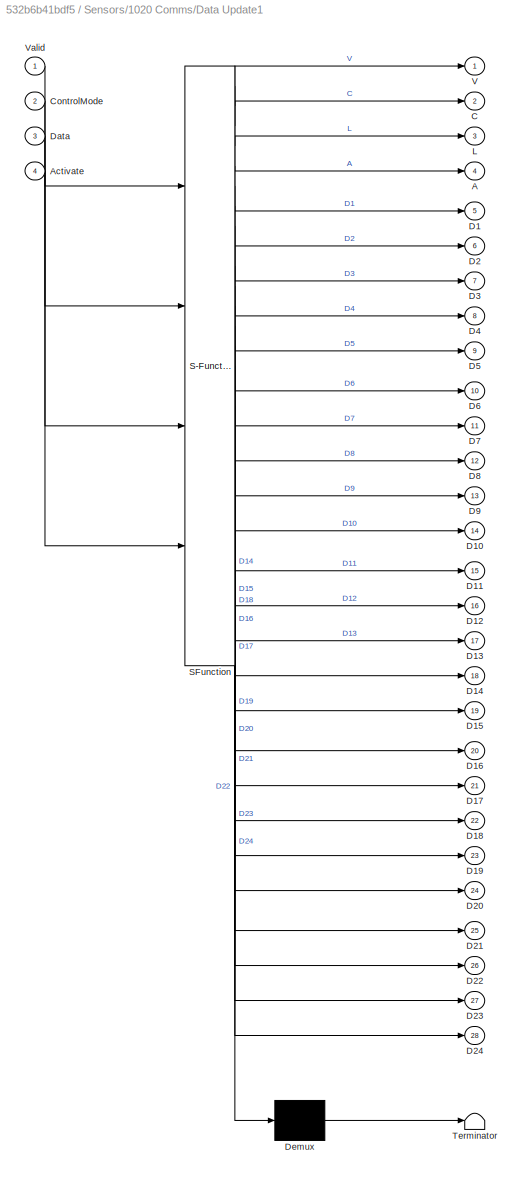
BLOCK [SubSystem] Sensors/1020 Comms/Data Update1
  Commented = on
  ErrorFcn = Stateflow.Translate.translate
  PermitHierarchicalResolution = ExplicitOnly
  Ports = [4, 28]
  RequestExecContextInheritance = off
  SFBlockType = MATLAB Function
  TreatAsAtomicUnit = on
BLOCK [Demux] Sensors/1020 Comms/Data Update1/ Demux 
  Outputs = 1
  Ports = [1, 1]
BLOCK [S-Function] Sensors/1020 Comms/Data Update1/ SFunction 
  EnableBusSupport = on
  FunctionName = sf_sfun
  PortCounts = [4 29]
  Ports = [4, 29]
  Tag = Stateflow S-Function RobotX_ss_acousticsSingle_Dock_LBskip_ODOA_T_1024_NLM 44
BLOCK [Terminator] Sensors/1020 Comms/Data Update1/ Terminator 
BLOCK [Outport] Sensors/1020 Comms/Data Update1/A
  IconDisplay = Port number
  Port = 4
BLOCK [Inport] Sensors/1020 Comms/Data Update1/Activate
  IconDisplay = Port number
  Port = 4
BLOCK [Outport] Sensors/1020 Comms/Data Update1/C
  IconDisplay = Port number
  Port = 2
BLOCK [Inport] Sensors/1020 Comms/Data Update1/ControlMode
  IconDisplay = Port number
  Port = 2
BLOCK [Outport] Sensors/1020 Comms/Data Update1/D1
  IconDisplay = Port number
  Port = 5
BLOCK [Outport] Sensors/1020 Comms/Data Update1/D10
  IconDisplay = Port number
  Port = 14
BLOCK [Outport] Sensors/1020 Comms/Data Update1/D11
  IconDisplay = Port number
  Port = 15
BLOCK [Outport] Sensors/1020 Comms/Data Update1/D12
  IconDisplay = Port number
  Port = 16
BLOCK [Outport] Sensors/1020 Comms/Data Update1/D13
  IconDisplay = Port number
  Port = 17
BLOCK [Outport] Sensors/1020 Comms/Data Update1/D14
  IconDisplay = Port number
  Port = 18
BLOCK [Outport] Sensors/1020 Comms/Data Update1/D15
  IconDisplay = Port number
  Port = 19
BLOCK [Outport] Sensors/1020 Comms/Data Update1/D16
  IconDisplay = Port number
  Port = 20
BLOCK [Outport] Sensors/1020 Comms/Data Update1/D17
  IconDisplay = Port number
  Port = 21
BLOCK [Outport] Sensors/1020 Comms/Data Update1/D18
  IconDisplay = Port number
  Port = 22
BLOCK [Outport] Sensors/1020 Comms/Data Update1/D19
  IconDisplay = Port number
  Port = 23
BLOCK [Outport] Sensors/1020 Comms/Data Update1/D2
  IconDisplay = Port number
  Port = 6
BLOCK [Outport] Sensors/1020 Comms/Data Update1/D20
  IconDisplay = Port number
  Port = 24
BLOCK [Outport] Sensors/1020 Comms/Data Update1/D21
  IconDisplay = Port number
  Port = 25
BLOCK [Outport] Sensors/1020 Comms/Data Update1/D22
  IconDisplay = Port number
  Port = 26
BLOCK [Outport] Sensors/1020 Comms/Data Update1/D23
  IconDisplay = Port number
  Port = 27
BLOCK [Outport] Sensors/1020 Comms/Data Update1/D24
  IconDisplay = Port number
  Port = 28
BLOCK [Outport] Sensors/1020 Comms/Data Update1/D3
  IconDisplay = Port number
  Port = 7
BLOCK [Outport] Sensors/1020 Comms/Data Update1/D4
  IconDisplay = Port number
  Port = 8
BLOCK [Outport] Sensors/1020 Comms/Data Update1/D5
  IconDisplay = Port number
  Port = 9
BLOCK [Outport] Sensors/1020 Comms/Data Update1/D6
  IconDisplay = Port number
  Port = 10
BLOCK [Outport] Sensors/1020 Comms/Data Update1/D7
  IconDisplay = Port number
  Port = 11
BLOCK [Outport] Sensors/1020 Comms/Data Update1/D8
  IconDisplay = Port number
  Port = 12
BLOCK [Outport] Sensors/1020 Comms/Data Update1/D9
  IconDisplay = Port number
  Port = 13
BLOCK [Inport] Sensors/1020 Comms/Data Update1/Data
  IconDisplay = Port number
  Port = 3
BLOCK [Outport] Sensors/1020 Comms/Data Update1/L
  IconDisplay = Port number
  Port = 3
BLOCK [Outport] Sensors/1020 Comms/Data Update1/V
  IconDisplay = Port number
BLOCK [Inport] Sensors/1020 Comms/Data Update1/Valid
  IconDisplay = Port number
BLOCK [SubSystem] Sensors/1020 Comms/Data Update2
  ErrorFcn = Stateflow.Translate.translate
  PermitHierarchicalResolution = ExplicitOnly
  Ports = [4, 28]
  RequestExecContextInheritance = off
  SFBlockType = MATLAB Function
  TreatAsAtomicUnit = on
BLOCK [Demux] Sensors/1020 Comms/Data Update2/ Demux 
  Outputs = 1
  Ports = [1, 1]
BLOCK [S-Function] Sensors/1020 Comms/Data Update2/ SFunction 
  EnableBusSupport = on
  FunctionName = sf_sfun
  PortCounts = [4 29]
  Ports = [4, 29]
  Tag = Stateflow S-Function RobotX_ss_acousticsSingle_Dock_LBskip_ODOA_T_1024_NLM 45
BLOCK [Terminator] Sensors/1020 Comms/Data Update2/ Terminator 
BLOCK [Outport] Sensors/1020 Comms/Data Update2/A
  IconDisplay = Port number
  Port = 4
BLOCK [Inport] Sensors/1020 Comms/Data Update2/Activate
  IconDisplay = Port number
  Port = 4
BLOCK [Outport] Sensors/1020 Comms/Data Update2/C
  IconDisplay = Port number
  Port = 2
BLOCK [Inport] Sensors/1020 Comms/Data Update2/ControlMode
  IconDisplay = Port number
  Port = 2
BLOCK [Outport] Sensors/1020 Comms/Data Update2/D1
  IconDisplay = Port number
  Port = 5
BLOCK [Outport] Sensors/1020 Comms/Data Update2/D10
  IconDisplay = Port number
  Port = 14
BLOCK [Outport] Sensors/1020 Comms/Data Update2/D11
  IconDisplay = Port number
  Port = 15
BLOCK [Outport] Sensors/1020 Comms/Data Update2/D12
  IconDisplay = Port number
  Port = 16
BLOCK [Outport] Sensors/1020 Comms/Data Update2/D13
  IconDisplay = Port number
  Port = 17
BLOCK [Outport] Sensors/1020 Comms/Data Update2/D14
  IconDisplay = Port number
  Port = 18
BLOCK [Outport] Sensors/1020 Comms/Data Update2/D15
  IconDisplay = Port number
  Port = 19
BLOCK [Outport] Sensors/1020 Comms/Data Update2/D16
  IconDisplay = Port number
  Port = 20
BLOCK [Outport] Sensors/1020 Comms/Data Update2/D17
  IconDisplay = Port number
  Port = 21
BLOCK [Outport] Sensors/1020 Comms/Data Update2/D18
  IconDisplay = Port number
  Port = 22
BLOCK [Outport] Sensors/1020 Comms/Data Update2/D19
  IconDisplay = Port number
  Port = 23
BLOCK [Outport] Sensors/1020 Comms/Data Update2/D2
  IconDisplay = Port number
  Port = 6
BLOCK [Outport] Sensors/1020 Comms/Data Update2/D20
  IconDisplay = Port number
  Port = 24
BLOCK [Outport] Sensors/1020 Comms/Data Update2/D21
  IconDisplay = Port number
  Port = 25
BLOCK [Outport] Sensors/1020 Comms/Data Update2/D22
  IconDisplay = Port number
  Port = 26
BLOCK [Outport] Sensors/1020 Comms/Data Update2/D23
  IconDisplay = Port number
  Port = 27
BLOCK [Outport] Sensors/1020 Comms/Data Update2/D24
  IconDisplay = Port number
  Port = 28
BLOCK [Outport] Sensors/1020 Comms/Data Update2/D3
  IconDisplay = Port number
  Port = 7
BLOCK [Outport] Sensors/1020 Comms/Data Update2/D4
  IconDisplay = Port number
  Port = 8
BLOCK [Outport] Sensors/1020 Comms/Data Update2/D5
  IconDisplay = Port number
  Port = 9
BLOCK [Outport] Sensors/1020 Comms/Data Update2/D6
  IconDisplay = Port number
  Port = 10
BLOCK [Outport] Sensors/1020 Comms/Data Update2/D7
  IconDisplay = Port number
  Port = 11
BLOCK [Outport] Sensors/1020 Comms/Data Update2/D8
  IconDisplay = Port number
  Port = 12
BLOCK [Outport] Sensors/1020 Comms/Data Update2/D9
  IconDisplay = Port number
  Port = 13
BLOCK [Inport] Sensors/1020 Comms/Data Update2/Data
  IconDisplay = Port number
  Port = 3
BLOCK [Outport] Sensors/1020 Comms/Data Update2/L
  IconDisplay = Port number
  Port = 3
BLOCK [Outport] Sensors/1020 Comms/Data Update2/V
  IconDisplay = Port number
BLOCK [Inport] Sensors/1020 Comms/Data Update2/Valid
  IconDisplay = Port number
BLOCK [DiscreteIntegrator] Sensors/1020 Comms/Discrete-Time Integrator
  ICPrevOutput = DiscIntNeverNeededParam
  ICPrevScaledInput = DiscIntNeverNeededParam
  Ports = [1, 1]
  SampleTime = -1
BLOCK [Reference] Sensors/1020 Comms/FIFO ASCII read 1  REF=xpcseriallib/FIFO ASCII read 
  Ports = [1, 1]
  SourceBlock = xpcseriallib/FIFO ASCII read
  SourceType = Asynchronous FIFO Block: reader
  enable = off
  header = {'Deploy:'}
  hold = Zero output if no new data
  maxsize = 1024
  outputtype = 8 bit uint null terminated
  sampletime = -1
  term = [13 10]
BLOCK [Reference] Sensors/1020 Comms/FIFO ASCII read 2  REF=xpcseriallib/FIFO ASCII read 
  Ports = [1, 1]
  SourceBlock = xpcseriallib/FIFO ASCII read
  SourceType = Asynchronous FIFO Block: reader
  enable = off
  header = {'Deploy:'}
  hold = Zero output if no new data
  maxsize = 1024
  outputtype = 8 bit uint null terminated
  sampletime = -1
  term = [13 10]
BLOCK [Reference] Sensors/1020 Comms/FIFO ASCII read 3  REF=xpcseriallib/FIFO ASCII read 
  Ports = [1, 1]
  SourceBlock = xpcseriallib/FIFO ASCII read
  SourceType = Asynchronous FIFO Block: reader
  enable = off
  header = {'Deploy:'}
  hold = Zero output if no new data
  maxsize = 1024
  outputtype = 8 bit uint null terminated
  sampletime = -1
  term = [13 10]
BLOCK [Reference] Sensors/1020 Comms/FIFO ASCII read 4  REF=xpcseriallib/FIFO ASCII read 
  Ports = [1, 1]
  SourceBlock = xpcseriallib/FIFO ASCII read
  SourceType = Asynchronous FIFO Block: reader
  enable = off
  header = {'Deploy:'}
  hold = Zero output if no new data
  maxsize = 1024
  outputtype = 8 bit uint null terminated
  sampletime = -1
  term = [13 10]
BLOCK [Reference] Sensors/1020 Comms/FIFO ASCII read 5  REF=xpcseriallib/FIFO ASCII read 
  Ports = [1, 1]
  SourceBlock = xpcseriallib/FIFO ASCII read
  SourceType = Asynchronous FIFO Block: reader
  enable = off
  header = {'Deploy:'}
  hold = Zero output if no new data
  maxsize = 1024
  outputtype = 8 bit uint null terminated
  sampletime = -1
  term = [13 10]
BLOCK [Reference] Sensors/1020 Comms/FIFO ASCII read 6  REF=xpcseriallib/FIFO ASCII read 
  Ports = [1, 1]
  SourceBlock = xpcseriallib/FIFO ASCII read
  SourceType = Asynchronous FIFO Block: reader
  enable = off
  header = {'Deploy:'}
  hold = Zero output if no new data
  maxsize = 1024
  outputtype = 8 bit uint null terminated
  sampletime = -1
  term = [13 10]
BLOCK [Reference] Sensors/1020 Comms/FIFO ASCII read 7  REF=xpcseriallib/FIFO ASCII read 
  Ports = [1, 1]
  SourceBlock = xpcseriallib/FIFO ASCII read
  SourceType = Asynchronous FIFO Block: reader
  enable = off
  header = {'Deploy:'}
  hold = Zero output if no new data
  maxsize = 1024
  outputtype = 8 bit uint null terminated
  sampletime = -1
  term = [13 10]
BLOCK [Reference] Sensors/1020 Comms/FIFO ASCII read 8  REF=xpcseriallib/FIFO ASCII read 
  Ports = [1, 1]
  SourceBlock = xpcseriallib/FIFO ASCII read
  SourceType = Asynchronous FIFO Block: reader
  enable = off
  header = {'Deploy:'}
  hold = Zero output if no new data
  maxsize = 1024
  outputtype = 8 bit uint null terminated
  sampletime = -1
  term = [13 10]
BLOCK [SubSystem] Sensors/1020 Comms/Fake LCM
  Commented = on
  Ports = [0, 1]
  RequestExecContextInheritance = off
BLOCK [BusCreator] Sensors/1020 Comms/Fake LCM/Bus Creator1
  DisplayOption = bar
  Inputs = 3
  Ports = [3, 1]
BLOCK [BusCreator] Sensors/1020 Comms/Fake LCM/Bus Creator2
  DisplayOption = bar
  Inputs = 2
  Ports = [2, 1]
BLOCK [BusCreator] Sensors/1020 Comms/Fake LCM/Bus Creator3
  DisplayOption = bar
  Inputs = 3
  Ports = [3, 1]
BLOCK [BusCreator] Sensors/1020 Comms/Fake LCM/Bus Creator4
  DisplayOption = bar
  Inputs = 8
  Ports = [8, 1]
BLOCK [BusCreator] Sensors/1020 Comms/Fake LCM/Bus Creator5
  DisplayOption = bar
  Inputs = 2
  Ports = [2, 1]
BLOCK [BusCreator] Sensors/1020 Comms/Fake LCM/Bus Creator6
  DisplayOption = bar
  Inputs = 2
  Ports = [2, 1]
BLOCK [Constant] Sensors/1020 Comms/Fake LCM/Constant
  Value = 0
BLOCK [Constant] Sensors/1020 Comms/Fake LCM/Constant1
  Value = 0
BLOCK [Constant] Sensors/1020 Comms/Fake LCM/Constant10
  Value = 0
BLOCK [Constant] Sensors/1020 Comms/Fake LCM/Constant11
  Value = 0
BLOCK [Constant] Sensors/1020 Comms/Fake LCM/Constant12
  Value = 0
BLOCK [Constant] Sensors/1020 Comms/Fake LCM/Constant13
  Value = 0
BLOCK [Constant] Sensors/1020 Comms/Fake LCM/Constant14
  Value = 3
BLOCK [Constant] Sensors/1020 Comms/Fake LCM/Constant2
  Value = 0
BLOCK [Constant] Sensors/1020 Comms/Fake LCM/Constant3
  Value = 0
BLOCK [Constant] Sensors/1020 Comms/Fake LCM/Constant4
  Value = 0
BLOCK [Constant] Sensors/1020 Comms/Fake LCM/Constant5
  Value = 0
BLOCK [Constant] Sensors/1020 Comms/Fake LCM/Constant6
  Value = 0
BLOCK [Constant] Sensors/1020 Comms/Fake LCM/Constant7
  Value = 0
BLOCK [Constant] Sensors/1020 Comms/Fake LCM/Constant8
  Value = 0
BLOCK [Constant] Sensors/1020 Comms/Fake LCM/Constant9
  Value = 0
BLOCK [DataTypeConversion] Sensors/1020 Comms/Fake LCM/Data Type Conversion
  OutDataTypeStr = double
  RndMeth = Floor
  SaturateOnIntegerOverflow = off
BLOCK [Outport] Sensors/1020 Comms/Fake LCM/LCM Output
  IconDisplay = Port number
BLOCK [Ground] Sensors/1020 Comms/Ground1
BLOCK [Ground] Sensors/1020 Comms/Ground2
BLOCK [Ground] Sensors/1020 Comms/Ground4
BLOCK [Reference] Sensors/1020 Comms/LCM Complete Encode  REF=xpcseriallib/ASCII Encode 
  Commented = on
  Ports = [28, 1]
  SourceBlock = xpcseriallib/ASCII Encode
  SourceType = ASCII Encode
  format = {"Valid":%d, "Mode":%d, "Length":%d, "Activate":%d, "Waypoints":[%f, %f, %f, %f, %f, %f, %f, %f, %f, %f, %f, %f, %f, %f, %f, %f, %f, %f, %f, %f, %f, %f, %f, %f]} \r\n
  maxlength = 1000
  nvars = 28
  vartypes = { 'double' }
BLOCK [SubSystem] Sensors/1020 Comms/LIDAR Panda
  Ports = [1, 1]
  RequestExecContextInheritance = off
BLOCK [Reference] Sensors/1020 Comms/LIDAR Panda/ASCII Decode 2  REF=xpcseriallib/ASCII Decode 
  Ports = [1, 36]
  SourceBlock = xpcseriallib/ASCII Decode
  SourceType = ASCII Decode
  format = A:%d B:%d C:%d E:%d F:%d G:%d H:%d I:%d J:%d K:%d L:%d M:%d N:%d O:%d P:%d Q:%d R:%d S:%d T:%d U:%d V:%d W:%d X:%d C1:%d C2:%d C3:%d C4:%d P1:%f P2:%f P3:%f P4:%f I1:%d I2:%d I3:%d I4:%d \r\n
  nvars = 36
  vartypes = {}
BLOCK [BusCreator] Sensors/1020 Comms/LIDAR Panda/Bus Creator1
  DisplayOption = bar
  Inputs = 2
  Ports = [2, 1]
BLOCK [BusCreator] Sensors/1020 Comms/LIDAR Panda/Bus Creator2
  DisplayOption = bar
  Inputs = 3
  Ports = [3, 1]
BLOCK [BusCreator] Sensors/1020 Comms/LIDAR Panda/Bus Creator3
  DisplayOption = bar
  Inputs = 2
  Ports = [2, 1]
BLOCK [DataTypeConversion] Sensors/1020 Comms/LIDAR Panda/Data Type Conversion
  OutDataTypeStr = double
  RndMeth = Floor
  SaturateOnIntegerOverflow = off
BLOCK [DataTypeConversion] Sensors/1020 Comms/LIDAR Panda/Data Type Conversion1
  OutDataTypeStr = double
  RndMeth = Floor
  SaturateOnIntegerOverflow = off
BLOCK [DataTypeConversion] Sensors/1020 Comms/LIDAR Panda/Data Type Conversion2
  OutDataTypeStr = double
  RndMeth = Floor
  SaturateOnIntegerOverflow = off
BLOCK [DataTypeConversion] Sensors/1020 Comms/LIDAR Panda/Data Type Conversion3
  OutDataTypeStr = double
  RndMeth = Floor
  SaturateOnIntegerOverflow = off
BLOCK [Reference] Sensors/1020 Comms/LIDAR Panda/FIFO ASCII read   REF=xpcseriallib/FIFO ASCII read 
  Ports = [1, 1]
  SourceBlock = xpcseriallib/FIFO ASCII read
  SourceType = Asynchronous FIFO Block: reader
  enable = off
  header = {'A:'}
  hold = Zero output if no new data
  maxsize = 1024
  outputtype = 8 bit uint null terminated
  sampletime = -1
  term = [13 10]
BLOCK [Inport] Sensors/1020 Comms/LIDAR Panda/LIDAR Panda In
  IconDisplay = Port number
BLOCK [Outport] Sensors/1020 Comms/LIDAR Panda/LIDAR Panda Out
  IconDisplay = Port number
BLOCK [Mux] Sensors/1020 Comms/LIDAR Panda/Mux
  DisplayOption = bar
  Inputs = 12
  Ports = [12, 1]
BLOCK [Mux] Sensors/1020 Comms/LIDAR Panda/Mux1
  DisplayOption = bar
  Ports = [4, 1]
BLOCK [Mux] Sensors/1020 Comms/LIDAR Panda/Mux2
  DisplayOption = bar
  Inputs = 12
  Ports = [12, 1]
BLOCK [Mux] Sensors/1020 Comms/LIDAR Panda/Mux3
  DisplayOption = bar
  Ports = [4, 1]
BLOCK [Mux] Sensors/1020 Comms/LIDAR Panda/Mux4
  DisplayOption = bar
  Ports = [4, 1]
BLOCK [SubSystem] Sensors/1020 Comms/MATLAB Function1
  Commented = on
  ErrorFcn = Stateflow.Translate.translate
  PermitHierarchicalResolution = ExplicitOnly
  Ports = [6, 1]
  RequestExecContextInheritance = off
  SFBlockType = MATLAB Function
  TreatAsAtomicUnit = on
BLOCK [Demux] Sensors/1020 Comms/MATLAB Function1/ Demux 
  Outputs = 1
  Ports = [1, 1]
BLOCK [S-Function] Sensors/1020 Comms/MATLAB Function1/ SFunction 
  EnableBusSupport = on
  FunctionName = sf_sfun
  PortCounts = [6 2]
  Ports = [6, 2]
  Tag = Stateflow S-Function RobotX_ss_acousticsSingle_Dock_LBskip_ODOA_T_1024_NLM 46
BLOCK [Terminator] Sensors/1020 Comms/MATLAB Function1/ Terminator 
BLOCK [Inport] Sensors/1020 Comms/MATLAB Function1/Color
  IconDisplay = Port number
  Port = 5
BLOCK [Inport] Sensors/1020 Comms/MATLAB Function1/Depth
  IconDisplay = Port number
  Port = 6
BLOCK [Inport] Sensors/1020 Comms/MATLAB Function1/Lat
  IconDisplay = Port number
  Port = 3
BLOCK [Inport] Sensors/1020 Comms/MATLAB Function1/Long
  IconDisplay = Port number
  Port = 4
BLOCK [Inport] Sensors/1020 Comms/MATLAB Function1/Time
  IconDisplay = Port number
  Port = 2
BLOCK [Inport] Sensors/1020 Comms/MATLAB Function1/Valid
  IconDisplay = Port number
BLOCK [Outport] Sensors/1020 Comms/MATLAB Function1/asciiSEA
  IconDisplay = Port number
BLOCK [SubSystem] Sensors/1020 Comms/MATLAB Function2
  Commented = on
  ErrorFcn = Stateflow.Translate.translate
  PermitHierarchicalResolution = ExplicitOnly
  Ports = [2, 1]
  RequestExecContextInheritance = off
  SFBlockType = MATLAB Function
  TreatAsAtomicUnit = on
BLOCK [Demux] Sensors/1020 Comms/MATLAB Function2/ Demux 
  Outputs = 1
  Ports = [1, 1]
BLOCK [S-Function] Sensors/1020 Comms/MATLAB Function2/ SFunction 
  EnableBusSupport = on
  FunctionName = sf_sfun
  PortCounts = [2 2]
  Ports = [2, 2]
  Tag = Stateflow S-Function RobotX_ss_acousticsSingle_Dock_LBskip_ODOA_T_1024_NLM 47
BLOCK [Terminator] Sensors/1020 Comms/MATLAB Function2/ Terminator 
BLOCK [Inport] Sensors/1020 Comms/MATLAB Function2/Sequence
  IconDisplay = Port number
  Port = 2
BLOCK [Inport] Sensors/1020 Comms/MATLAB Function2/Time
  IconDisplay = Port number
BLOCK [Outport] Sensors/1020 Comms/MATLAB Function2/asciiLIT
  IconDisplay = Port number
BLOCK [SubSystem] Sensors/1020 Comms/MATLAB Function3
  ErrorFcn = Stateflow.Translate.translate
  PermitHierarchicalResolution = ExplicitOnly
  Ports = [5, 1]
  RequestExecContextInheritance = off
  SFBlockType = MATLAB Function
  TreatAsAtomicUnit = on
BLOCK [Demux] Sensors/1020 Comms/MATLAB Function3/ Demux 
  Outputs = 1
  Ports = [1, 1]
BLOCK [S-Function] Sensors/1020 Comms/MATLAB Function3/ SFunction 
  EnableBusSupport = on
  FunctionName = sf_sfun
  PortCounts = [5 2]
  Ports = [5, 2]
  Tag = Stateflow S-Function RobotX_ss_acousticsSingle_Dock_LBskip_ODOA_T_1024_NLM 48
BLOCK [Terminator] Sensors/1020 Comms/MATLAB Function3/ Terminator 
BLOCK [Inport] Sensors/1020 Comms/MATLAB Function3/Lat
  IconDisplay = Port number
  Port = 2
BLOCK [Inport] Sensors/1020 Comms/MATLAB Function3/Long
  IconDisplay = Port number
  Port = 3
BLOCK [Inport] Sensors/1020 Comms/MATLAB Function3/Mode
  IconDisplay = Port number
  Port = 4
BLOCK [Inport] Sensors/1020 Comms/MATLAB Function3/Task
  IconDisplay = Port number
  Port = 5
BLOCK [Inport] Sensors/1020 Comms/MATLAB Function3/Time
  IconDisplay = Port number
BLOCK [Outport] Sensors/1020 Comms/MATLAB Function3/asciiHRT
  IconDisplay = Port number
BLOCK [RateTransition] Sensors/1020 Comms/Rate Transition
  Deterministic = off
  OutPortSampleTime = 1
BLOCK [Outport] Sensors/1020 Comms/Serial In
  IconDisplay = Port number
BLOCK [Inport] Sensors/1020 Comms/Serial Out
  IconDisplay = Port number
BLOCK [SubSystem] Sensors/1020 Comms/Subsystem
  Commented = on
  Ports = [0, 1]
  RequestExecContextInheritance = off
BLOCK [BusCreator] Sensors/1020 Comms/Subsystem/Bus Creator
  DisplayOption = bar
  Inputs = 3
  Ports = [3, 1]
BLOCK [BusCreator] Sensors/1020 Comms/Subsystem/Bus Creator1
  DisplayOption = bar
  Inputs = 2
  Ports = [2, 1]
BLOCK [BusCreator] Sensors/1020 Comms/Subsystem/Bus Creator2
  DisplayOption = bar
  Inputs = 2
  Ports = [2, 1]
BLOCK [Constant] Sensors/1020 Comms/Subsystem/Constant
  Value = zeros(12,1)
BLOCK [Constant] Sensors/1020 Comms/Subsystem/Constant1
  Value = zeros(12,1)
BLOCK [Constant] Sensors/1020 Comms/Subsystem/Constant2
  Value = zeros(4,1)
BLOCK [Constant] Sensors/1020 Comms/Subsystem/Constant3
  Value = zeros(4,1)
BLOCK [Constant] Sensors/1020 Comms/Subsystem/Constant4
  Value = zeros(4,1)
BLOCK [Outport] Sensors/1020 Comms/Subsystem/Fake Panda
  IconDisplay = Port number
BLOCK [Sum] Sensors/1020 Comms/Sum
  IconShape = round
  InputSameDT = off
  Inputs = |++
  OutDataTypeStr = Inherit: Inherit via internal rule
  Ports = [2, 1]
  SaturateOnIntegerOverflow = off
BLOCK [Reference] Sensors/1020 Comms/TPMC465  REF=speedgoatlib/IO504/TPMC465  (lib defined in mdl_2b10c7445f81, mdl_649b3eec89a6, +4 more)
  Ports = [8, 8]
  SourceBlock = speedgoatlib/IO504/TPMC465
  SourceType = sendreceive_IO504
  baud1 = 115200
  baud2 = 115200
  baud3 = 115200
  baud4 = 115200
  baud5 = 115200
  baud6 = 115200
  baud7 = 115200
  baud8 = 115200
  bauddivisor1 = 1
  bauddivisor2 = 1
  bauddivisor3 = 1
  bauddivisor4 = 1
  bauddivisor5 = 1
  bauddivisor6 = 1
  bauddivisor7 = 1
  bauddivisor8 = 1
  group = Basic Setup
  hwmode1 = none
  hwmode2 = none
  hwmode3 = none
  hwmode4 = none
  hwmode5 = none
  hwmode6 = none
  hwmode7 = none
  hwmode8 = none
  irqnum = 9
  ndata1 = 7
  ndata2 = 7
  ndata3 = 7
  ndata4 = 8
  ndata5 = 8
  ndata6 = 8
  ndata7 = 8
  ndata8 = 8
  nstop1 = 1
  nstop2 = 1
  nstop3 = 1
  nstop4 = 1
  nstop5 = 1
  nstop6 = 1
  nstop7 = 1
  nstop8 = 1
  parity1 = Even
  parity2 = Even
  parity3 = Even
  parity4 = None
  parity5 = None
  parity6 = None
  parity7 = None
  parity8 = None
  port = 2
  prescale1 = off
  prescale2 = off
  prescale3 = off
  prescale4 = off
  prescale5 = off
  prescale6 = off
  prescale7 = off
  prescale8 = off
  rcvfifosize1 = 1024
  rcvfifosize2 = 1024
  rcvfifosize3 = 1024
  rcvfifosize4 = 1024
  rcvfifosize5 = 1024
  rcvfifosize6 = 1024
  rcvfifosize7 = 1024
  rcvfifosize8 = 1024
  rlevel1 = half full (32)
  rlevel2 = half full (32)
  rlevel3 = half full (32)
  rlevel4 = half full (32)
  rlevel5 = 1
  rlevel6 = 1
  rlevel7 = 1
  rlevel8 = 1
  rs485auto1 = off
  rs485auto2 = off
  rs485auto3 = off
  rs485auto4 = off
  rs485auto5 = off
  rs485auto6 = off
  rs485auto7 = off
  rs485auto8 = off
  rs485delay1 = 0
  rs485delay2 = 0
  rs485delay3 = 0
  rs485delay4 = 0
  rs485delay5 = 0
  rs485delay6 = 0
  rs485delay7 = 0
  rs485delay8 = 0
  sampling1 = 16x (standard)
  sampling2 = 16x (standard)
  sampling3 = 16x (standard)
  sampling4 = 16x (standard)
  sampling5 = 16x (standard)
  sampling6 = 16x (standard)
  sampling7 = 16x (standard)
  sampling8 = 16x (standard)
  slot = -1
  standard1 = on
  standard2 = on
  standard3 = on
  standard4 = on
  standard5 = on
  standard6 = on
  standard7 = on
  standard8 = on
  swmode1 = none
  swmode2 = none
  swmode3 = none
  swmode4 = none
  swmode5 = none
  swmode6 = none
  swmode7 = none
  swmode8 = none
  transceiver1 = RS232 (max 921.6kb/s)
  transceiver2 = RS232 (max 921.6kb/s)
  transceiver3 = RS232 (max 921.6kb/s)
  transceiver4 = RS232 (max 921.6kb/s)
  transceiver5 = RS232 (max 921.6kb/s)
  transceiver6 = RS232 (max 921.6kb/s)
  transceiver7 = RS232 (max 921.6kb/s)
  transceiver8 = RS232 (max 921.6kb/s)
  xmtdatatype1 = 8 bit uint null terminated
  xmtdatatype2 = 8 bit uint null terminated
  xmtdatatype3 = 8 bit uint null terminated
  xmtdatatype4 = 8 bit uint null terminated
  xmtdatatype5 = 8 bit uint null terminated
  xmtdatatype6 = 8 bit uint null terminated
  xmtdatatype7 = 8 bit uint null terminated
  xmtdatatype8 = 8 bit uint null terminated
  xmtfifosize1 = 1024
  xmtfifosize2 = 1024
  xmtfifosize3 = 1024
  xmtfifosize4 = 1024
  xmtfifosize5 = 1024
  xmtfifosize6 = 1024
  xmtfifosize7 = 1024
  xmtfifosize8 = 1024
  xoffchar1 = 19
  xoffchar2 = 19
  xoffchar3 = 19
  xoffchar4 = 19
  xoffchar5 = 19
  xoffchar6 = 19
  xoffchar7 = 19
  xoffchar8 = 19
  xonchar1 = 17
  xonchar2 = 17
  xonchar3 = 17
  xonchar4 = 17
  xonchar5 = 17
  xonchar6 = 17
  xonchar7 = 17
  xonchar8 = 17
BLOCK [Terminator] Sensors/1020 Comms/Terminator1
BLOCK [Terminator] Sensors/1020 Comms/Terminator10
BLOCK [Terminator] Sensors/1020 Comms/Terminator2
BLOCK [Terminator] Sensors/1020 Comms/Terminator3
BLOCK [Terminator] Sensors/1020 Comms/Terminator4
BLOCK [Terminator] Sensors/1020 Comms/Terminator5
BLOCK [Terminator] Sensors/1020 Comms/Terminator6
BLOCK [Terminator] Sensors/1020 Comms/Terminator7
BLOCK [Terminator] Sensors/1020 Comms/Terminator8
BLOCK [Terminator] Sensors/1020 Comms/Terminator9
BLOCK [SubSystem] Sensors/1020 Comms/data log
  Ports = [1]
  RequestExecContextInheritance = off
BLOCK [BusSelector] Sensors/1020 Comms/data log/Bus Selector3
  OutputSignals = Navigation Message,Lidar Data Input,Acoustic Message
  Ports = [1, 3]
BLOCK [BusToVector] Sensors/1020 Comms/data log/Bus to Vector
BLOCK [BusToVector] Sensors/1020 Comms/data log/Bus to Vector1
BLOCK [BusToVector] Sensors/1020 Comms/data log/Bus to Vector2
BLOCK [DataStoreRead] Sensors/1020 Comms/data log/Read
  DataStoreName = PingPose
  Ports = [0, 1]
BLOCK [Reference] Sensors/1020 Comms/data log/Scope 1  REF=slrtlib/Displays and
Logging/Scope 
  Ports = [1]
  SourceBlock = slrtlib/Displays and\nLogging/Scope
  SourceType = xpcscopeblock
  autorestart = on
  autostart = on
  dynamicfilemode = on
  filename = LM1_<%%%>.dat
  formatstr = '%15.6f'
  grid = on
  interleave = 1
  maxwritefilesize = 512*1024^2
  mode = Lazy
  noprepostsamples = 0
  nosamples = 28800
  scopeno = 3
  scopetype = File
  triggerlevel = 0.0
  triggermode = FreeRun
  triggersample = 0
  triggerscope = 1
  triggersignal = 1
  triggerslope = Either
  trigsignalfromport = off
  viewmode = Graphical redraw
  writesize = 5120
  ylimits = [0,0]
BLOCK [Reference] Sensors/1020 Comms/data log/Scope 2  REF=slrtlib/Displays and
Logging/Scope 
  Ports = [1]
  SourceBlock = slrtlib/Displays and\nLogging/Scope
  SourceType = xpcscopeblock
  autorestart = on
  autostart = on
  dynamicfilemode = on
  filename = NAV1_<%%%>.dat
  formatstr = '%15.6f'
  grid = on
  interleave = 1
  maxwritefilesize = 512*1024^2
  mode = Lazy
  noprepostsamples = 0
  nosamples = 28800
  scopeno = 1
  scopetype = File
  triggerlevel = 0.0
  triggermode = FreeRun
  triggersample = 0
  triggerscope = 1
  triggersignal = 1
  triggerslope = Either
  trigsignalfromport = off
  viewmode = Graphical redraw
  writesize = 5120
  ylimits = [0,0]
BLOCK [Reference] Sensors/1020 Comms/data log/Scope 3  REF=slrtlib/Displays and
Logging/Scope 
  Ports = [1]
  SourceBlock = slrtlib/Displays and\nLogging/Scope
  SourceType = xpcscopeblock
  autorestart = on
  autostart = on
  dynamicfilemode = on
  filename = ACO1_<%%%>.dat
  formatstr = '%15.6f'
  grid = on
  interleave = 1
  maxwritefilesize = 512*1024^2
  mode = Lazy
  noprepostsamples = 0
  nosamples = 28800
  scopeno = 2
  scopetype = File
  triggerlevel = 0.0
  triggermode = FreeRun
  triggersample = 0
  triggerscope = 1
  triggersignal = 1
  triggerslope = Either
  trigsignalfromport = off
  viewmode = Graphical redraw
  writesize = 5120
  ylimits = [0,0]
BLOCK [Reference] Sensors/1020 Comms/data log/Scope 4  REF=slrtlib/Displays and
Logging/Scope 
  Ports = [1]
  SourceBlock = slrtlib/Displays and\nLogging/Scope
  SourceType = xpcscopeblock
  autorestart = on
  autostart = on
  dynamicfilemode = on
  filename = pPos_<%%%>.dat
  formatstr = '%15.6f'
  grid = on
  interleave = 1
  maxwritefilesize = 512*1024^2
  mode = Lazy
  noprepostsamples = 0
  nosamples = 28800
  scopeno = 4
  scopetype = File
  triggerlevel = 0.0
  triggermode = FreeRun
  triggersample = 0
  triggerscope = 1
  triggersignal = 1
  triggerslope = Either
  trigsignalfromport = off
  viewmode = Graphical redraw
  writesize = 5120
  ylimits = [0,0]
BLOCK [Inport] Sensors/1020 Comms/data log/Sensors signal
  IconDisplay = Port number
BLOCK [SubSystem] Sensors/1024 Comms New LIDAR Mode
  Ports = [1, 1]
  RequestExecContextInheritance = off
BLOCK [SubSystem] Sensors/1024 Comms New LIDAR Mode/ Raspberry Pi LCM (Acoustic)
  Commented = on
  Ports = [1, 1]
  RequestExecContextInheritance = off
BLOCK [Reference] Sensors/1024 Comms New LIDAR Mode/ Raspberry Pi LCM (Acoustic)/ASCII Decode 6  REF=xpcseriallib/ASCII Decode 
  Ports = [1, 4]
  SourceBlock = xpcseriallib/ASCII Decode
  SourceType = ASCII Decode
  format = Deploy:%1u, Elapsed:%g, Bearing1:%g Bearing2:%g \r\n
  nvars = 4
  vartypes = {}
BLOCK [BusCreator] Sensors/1024 Comms New LIDAR Mode/ Raspberry Pi LCM (Acoustic)/Bus Creator
  DisplayOption = bar
  Inputs = 2
  Ports = [2, 1]
BLOCK [BusCreator] Sensors/1024 Comms New LIDAR Mode/ Raspberry Pi LCM (Acoustic)/Bus Creator1
  DisplayOption = bar
  Inputs = 3
  Ports = [3, 1]
BLOCK [Reference] Sensors/1024 Comms New LIDAR Mode/ Raspberry Pi LCM (Acoustic)/FIFO ASCII read 1  REF=xpcseriallib/FIFO ASCII read 
  Ports = [1, 1]
  SourceBlock = xpcseriallib/FIFO ASCII read
  SourceType = Asynchronous FIFO Block: reader
  enable = off
  header = {'Deploy:'}
  hold = Zero output if no new data
  maxsize = 1024
  outputtype = 8 bit uint null terminated
  sampletime = -1
  term = [13 10]
BLOCK [Inport] Sensors/1024 Comms New LIDAR Mode/ Raspberry Pi LCM (Acoustic)/LCM Input
  IconDisplay = Port number
BLOCK [Outport] Sensors/1024 Comms New LIDAR Mode/ Raspberry Pi LCM (Acoustic)/LCM Output
  IconDisplay = Port number
BLOCK [SubSystem] Sensors/1024 Comms New LIDAR Mode/ Raspberry Pi LCM (Navigation and Acoustics)
  Commented = on
  Ports = [1, 2]
  RequestExecContextInheritance = off
BLOCK [Reference] Sensors/1024 Comms New LIDAR Mode/ Raspberry Pi LCM (Navigation and Acoustics)/ASCII Decode 6  REF=xpcseriallib/ASCII Decode 
  Ports = [1, 22]
  SourceBlock = xpcseriallib/ASCII Decode
  SourceType = ASCII Decode
  format = P1:%f P2:%f P3:%f V1:%f V2:%f V3:%f E1:%f E2:%f E3:%f Pt1:%f Pt2:%f St1:%f St2:%f Start:%f Elapsed:%f RC:%d Deploy:%u, Elapsed:%g, Bearing1:%g Bearing2:%g \r\n
  nvars = 22
  vartypes = {}
BLOCK [Outport] Sensors/1024 Comms New LIDAR Mode/ Raspberry Pi LCM (Navigation and Acoustics)/Acoustic LCM
  IconDisplay = Port number
  Port = 2
BLOCK [BusCreator] Sensors/1024 Comms New LIDAR Mode/ Raspberry Pi LCM (Navigation and Acoustics)/Bus Creator
  DisplayOption = bar
  Inputs = 2
  Ports = [2, 1]
BLOCK [BusCreator] Sensors/1024 Comms New LIDAR Mode/ Raspberry Pi LCM (Navigation and Acoustics)/Bus Creator1
  DisplayOption = bar
  Inputs = 3
  Ports = [3, 1]
BLOCK [BusCreator] Sensors/1024 Comms New LIDAR Mode/ Raspberry Pi LCM (Navigation and Acoustics)/Bus Creator2
  DisplayOption = bar
  Inputs = 3
  Ports = [3, 1]
BLOCK [BusCreator] Sensors/1024 Comms New LIDAR Mode/ Raspberry Pi LCM (Navigation and Acoustics)/Bus Creator3
  DisplayOption = bar
  Inputs = 3
  Ports = [3, 1]
BLOCK [BusCreator] Sensors/1024 Comms New LIDAR Mode/ Raspberry Pi LCM (Navigation and Acoustics)/Bus Creator4
  DisplayOption = bar
  Inputs = 9
  Ports = [9, 1]
BLOCK [BusCreator] Sensors/1024 Comms New LIDAR Mode/ Raspberry Pi LCM (Navigation and Acoustics)/Bus Creator5
  DisplayOption = bar
  Inputs = 2
  Ports = [2, 1]
BLOCK [BusCreator] Sensors/1024 Comms New LIDAR Mode/ Raspberry Pi LCM (Navigation and Acoustics)/Bus Creator6
  DisplayOption = bar
  Inputs = 2
  Ports = [2, 1]
BLOCK [BusCreator] Sensors/1024 Comms New LIDAR Mode/ Raspberry Pi LCM (Navigation and Acoustics)/Bus Creator7
  DisplayOption = bar
  Inputs = 2
  Ports = [2, 1]
BLOCK [BusCreator] Sensors/1024 Comms New LIDAR Mode/ Raspberry Pi LCM (Navigation and Acoustics)/Bus Creator8
  DisplayOption = bar
  Inputs = 3
  Ports = [3, 1]
BLOCK [DataTypeConversion] Sensors/1024 Comms New LIDAR Mode/ Raspberry Pi LCM (Navigation and Acoustics)/Data Type Conversion
  OutDataTypeStr = double
  RndMeth = Floor
  SaturateOnIntegerOverflow = off
BLOCK [Reference] Sensors/1024 Comms New LIDAR Mode/ Raspberry Pi LCM (Navigation and Acoustics)/FIFO ASCII read 1  REF=xpcseriallib/FIFO ASCII read 
  Ports = [1, 1]
  SourceBlock = xpcseriallib/FIFO ASCII read
  SourceType = Asynchronous FIFO Block: reader
  enable = off
  header = {'P1:'}
  hold = Zero output if no new data
  maxsize = 2048
  outputtype = 8 bit uint null terminated
  sampletime = -1
  term = [13 10]
BLOCK [Inport] Sensors/1024 Comms New LIDAR Mode/ Raspberry Pi LCM (Navigation and Acoustics)/LCM Input
  IconDisplay = Port number
BLOCK [Outport] Sensors/1024 Comms New LIDAR Mode/ Raspberry Pi LCM (Navigation and Acoustics)/Navigation LCM
  IconDisplay = Port number
BLOCK [SubSystem] Sensors/1024 Comms New LIDAR Mode/ Raspberry Pi LCM (Navigation)
  Ports = [1, 2]
  RequestExecContextInheritance = off
BLOCK [Reference] Sensors/1024 Comms New LIDAR Mode/ Raspberry Pi LCM (Navigation)/ASCII Decode 6  REF=xpcseriallib/ASCII Decode 
  Ports = [1, 26]
  SourceBlock = xpcseriallib/ASCII Decode
  SourceType = ASCII Decode
  format = P1:%f P2:%f P3:%f V1:%f V2:%f V3:%f E1:%f E2:%f E3:%f Lat:%f Long:%f Pt1:%f Pt2:%f St1:%f St2:%f Start:%f Elapsed:%f RC:%d Deploy:%u Elapsed:%f Bearing1:%f Bearing2:%f Range:%f X_Pos:%f Y_Pos:%f Depth:%f \r\n
  nvars = 26
  vartypes = {}
BLOCK [Outport] Sensors/1024 Comms New LIDAR Mode/ Raspberry Pi LCM (Navigation)/Acou LCM
  IconDisplay = Port number
  Port = 2
BLOCK [BusCreator] Sensors/1024 Comms New LIDAR Mode/ Raspberry Pi LCM (Navigation)/Bus Creator1
  DisplayOption = bar
  Inputs = 3
  Ports = [3, 1]
BLOCK [BusCreator] Sensors/1024 Comms New LIDAR Mode/ Raspberry Pi LCM (Navigation)/Bus Creator2
  DisplayOption = bar
  Inputs = 3
  Ports = [3, 1]
BLOCK [BusCreator] Sensors/1024 Comms New LIDAR Mode/ Raspberry Pi LCM (Navigation)/Bus Creator3
  DisplayOption = bar
  Inputs = 3
  Ports = [3, 1]
BLOCK [BusCreator] Sensors/1024 Comms New LIDAR Mode/ Raspberry Pi LCM (Navigation)/Bus Creator4
  DisplayOption = bar
  Inputs = 9
  Ports = [9, 1]
BLOCK [BusCreator] Sensors/1024 Comms New LIDAR Mode/ Raspberry Pi LCM (Navigation)/Bus Creator5
  DisplayOption = bar
  Inputs = 2
  Ports = [2, 1]
BLOCK [BusCreator] Sensors/1024 Comms New LIDAR Mode/ Raspberry Pi LCM (Navigation)/Bus Creator6
  DisplayOption = bar
  Inputs = 2
  Ports = [2, 1]
BLOCK [BusCreator] Sensors/1024 Comms New LIDAR Mode/ Raspberry Pi LCM (Navigation)/Bus Creator7
  DisplayOption = bar
  Inputs = 2
  Ports = [2, 1]
BLOCK [BusCreator] Sensors/1024 Comms New LIDAR Mode/ Raspberry Pi LCM (Navigation)/Bus Creator8
  DisplayOption = bar
  Inputs = 8
  Ports = [8, 1]
BLOCK [DataTypeConversion] Sensors/1024 Comms New LIDAR Mode/ Raspberry Pi LCM (Navigation)/Data Type Conversion
  OutDataTypeStr = double
  RndMeth = Floor
  SaturateOnIntegerOverflow = off
BLOCK [Reference] Sensors/1024 Comms New LIDAR Mode/ Raspberry Pi LCM (Navigation)/FIFO ASCII read 1  REF=xpcseriallib/FIFO ASCII read 
  Ports = [1, 1]
  SourceBlock = xpcseriallib/FIFO ASCII read
  SourceType = Asynchronous FIFO Block: reader
  enable = off
  header = {'P1:'}
  hold = Zero output if no new data
  maxsize = 2000
  outputtype = 8 bit uint null terminated
  sampletime = -1
  term = [13 10]
BLOCK [Inport] Sensors/1024 Comms New LIDAR Mode/ Raspberry Pi LCM (Navigation)/LCM Input
  IconDisplay = Port number
BLOCK [Outport] Sensors/1024 Comms New LIDAR Mode/ Raspberry Pi LCM (Navigation)/LCM Output
  IconDisplay = Port number
BLOCK [SubSystem] Sensors/1024 Comms New LIDAR Mode/Acoustic LCM
  Ports = [1, 1]
  RequestExecContextInheritance = off
BLOCK [BusCreator] Sensors/1024 Comms New LIDAR Mode/Acoustic LCM/Bus Creator
  DisplayOption = bar
  Inputs = 2
  Ports = [2, 1]
BLOCK [BusCreator] Sensors/1024 Comms New LIDAR Mode/Acoustic LCM/Bus Creator1
  DisplayOption = bar
  Ports = [4, 1]
BLOCK [BusCreator] Sensors/1024 Comms New LIDAR Mode/Acoustic LCM/Bus Creator2
  DisplayOption = bar
  Ports = [4, 1]
BLOCK [BusSelector] Sensors/1024 Comms New LIDAR Mode/Acoustic LCM/Bus Selector
  OutputSignals = Deployed,Elapsed Time,Horizontal Bearing,Vertical Bearing,Range,X Pos,Y Pos,Depth
  Ports = [1, 8]
BLOCK [Inport] Sensors/1024 Comms New LIDAR Mode/Acoustic LCM/LCM Input
  IconDisplay = Port number
BLOCK [Outport] Sensors/1024 Comms New LIDAR Mode/Acoustic LCM/LCM Output
  IconDisplay = Port number
BLOCK [Reference] Sensors/1024 Comms New LIDAR Mode/Baseboard Serial F  REF=xpcseriallib/Mainboard/Baseboard
Serial F
  Ports = [2, 2]
  SourceBlock = xpcseriallib/Mainboard/Baseboard\nSerial F
  SourceType = Baseboard RS232 Send Receive
  automode1 = on
  automode2 = on
  baud1 = 115200
  baud2 = 115200
  config = Com1/Com3
  fifomode1 = 64 deep
  fifomode2 = 64 deep
  group = Basic Setup
  irqnum = 4
  ndata1 = 7
  ndata2 = 7
  nstop1 = 1
  nstop2 = 1
  parity1 = Even
  parity2 = Even
  port = 1
  rcvfifosize1 = 1024
  rcvfifosize2 = 1024
  rlevel1 = 1
  rlevel2 = 1
  saddr1 = 0x3f8
  saddr2 = 0x3e8
  xmtdatatype1 = 8 bit uint null terminated
  xmtdatatype2 = 8 bit uint null terminated
  xmtfifosize1 = 1024
  xmtfifosize2 = 1024
BLOCK [Reference] Sensors/1024 Comms New LIDAR Mode/Baseboard Serial F1  REF=xpcseriallib/Mainboard/Baseboard
Serial F
  Ports = [2, 2]
  SourceBlock = xpcseriallib/Mainboard/Baseboard\nSerial F
  SourceType = Baseboard RS232 Send Receive
  automode1 = on
  automode2 = on
  baud1 = 115200
  baud2 = 115200
  config = Com2/Com4
  fifomode1 = 64 deep
  fifomode2 = 64 deep
  group = FIFO Setup
  irqnum = 4
  ndata1 = 7
  ndata2 = 7
  nstop1 = 1
  nstop2 = 1
  parity1 = Even
  parity2 = Even
  port = 1
  rcvfifosize1 = 1024
  rcvfifosize2 = 1024
  rlevel1 = 1
  rlevel2 = 1
  saddr1 = 0x3f8
  saddr2 = 0x3e8
  xmtdatatype1 = 8 bit uint null terminated
  xmtdatatype2 = 8 bit uint null terminated
  xmtfifosize1 = 1024
  xmtfifosize2 = 1024
BLOCK [BusCreator] Sensors/1024 Comms New LIDAR Mode/Bus Creator
  DisplayOption = bar
  Inputs = 3
  Ports = [3, 1]
BLOCK [Reference] Sensors/1024 Comms New LIDAR Mode/FIFO ASCII read 1  REF=xpcseriallib/FIFO ASCII read 
  Ports = [1, 1]
  SourceBlock = xpcseriallib/FIFO ASCII read
  SourceType = Asynchronous FIFO Block: reader
  enable = off
  header = {'Deploy:'}
  hold = Zero output if no new data
  maxsize = 1024
  outputtype = 8 bit uint null terminated
  sampletime = -1
  term = [13 10]
BLOCK [Reference] Sensors/1024 Comms New LIDAR Mode/FIFO ASCII read 2  REF=xpcseriallib/FIFO ASCII read 
  Ports = [1, 1]
  SourceBlock = xpcseriallib/FIFO ASCII read
  SourceType = Asynchronous FIFO Block: reader
  enable = off
  header = {'Deploy:'}
  hold = Zero output if no new data
  maxsize = 1024
  outputtype = 8 bit uint null terminated
  sampletime = -1
  term = [13 10]
BLOCK [Reference] Sensors/1024 Comms New LIDAR Mode/FIFO ASCII read 3  REF=xpcseriallib/FIFO ASCII read 
  Ports = [1, 1]
  SourceBlock = xpcseriallib/FIFO ASCII read
  SourceType = Asynchronous FIFO Block: reader
  enable = off
  header = {'Deploy:'}
  hold = Zero output if no new data
  maxsize = 1024
  outputtype = 8 bit uint null terminated
  sampletime = -1
  term = [13 10]
BLOCK [Reference] Sensors/1024 Comms New LIDAR Mode/FIFO ASCII read 4  REF=xpcseriallib/FIFO ASCII read 
  Ports = [1, 1]
  SourceBlock = xpcseriallib/FIFO ASCII read
  SourceType = Asynchronous FIFO Block: reader
  enable = off
  header = {'Deploy:'}
  hold = Zero output if no new data
  maxsize = 1024
  outputtype = 8 bit uint null terminated
  sampletime = -1
  term = [13 10]
BLOCK [Reference] Sensors/1024 Comms New LIDAR Mode/FIFO ASCII read 5  REF=xpcseriallib/FIFO ASCII read 
  Ports = [1, 1]
  SourceBlock = xpcseriallib/FIFO ASCII read
  SourceType = Asynchronous FIFO Block: reader
  enable = off
  header = {'Deploy:'}
  hold = Zero output if no new data
  maxsize = 1024
  outputtype = 8 bit uint null terminated
  sampletime = -1
  term = [13 10]
BLOCK [Reference] Sensors/1024 Comms New LIDAR Mode/FIFO ASCII read 6  REF=xpcseriallib/FIFO ASCII read 
  Ports = [1, 1]
  SourceBlock = xpcseriallib/FIFO ASCII read
  SourceType = Asynchronous FIFO Block: reader
  enable = off
  header = {'Deploy:'}
  hold = Zero output if no new data
  maxsize = 1024
  outputtype = 8 bit uint null terminated
  sampletime = -1
  term = [13 10]
BLOCK [Reference] Sensors/1024 Comms New LIDAR Mode/FIFO ASCII read 7  REF=xpcseriallib/FIFO ASCII read 
  Ports = [1, 1]
  SourceBlock = xpcseriallib/FIFO ASCII read
  SourceType = Asynchronous FIFO Block: reader
  enable = off
  header = {'Deploy:'}
  hold = Zero output if no new data
  maxsize = 1024
  outputtype = 8 bit uint null terminated
  sampletime = -1
  term = [13 10]
BLOCK [Reference] Sensors/1024 Comms New LIDAR Mode/FIFO ASCII read 8  REF=xpcseriallib/FIFO ASCII read 
  Ports = [1, 1]
  SourceBlock = xpcseriallib/FIFO ASCII read
  SourceType = Asynchronous FIFO Block: reader
  enable = off
  header = {'Deploy:'}
  hold = Zero output if no new data
  maxsize = 1024
  outputtype = 8 bit uint null terminated
  sampletime = -1
  term = [13 10]
BLOCK [SubSystem] Sensors/1024 Comms New LIDAR Mode/Fake LCM
  Commented = on
  Ports = [0, 1]
  RequestExecContextInheritance = off
BLOCK [BusCreator] Sensors/1024 Comms New LIDAR Mode/Fake LCM/Bus Creator1
  DisplayOption = bar
  Inputs = 3
  Ports = [3, 1]
BLOCK [BusCreator] Sensors/1024 Comms New LIDAR Mode/Fake LCM/Bus Creator2
  DisplayOption = bar
  Inputs = 2
  Ports = [2, 1]
BLOCK [BusCreator] Sensors/1024 Comms New LIDAR Mode/Fake LCM/Bus Creator3
  DisplayOption = bar
  Inputs = 3
  Ports = [3, 1]
BLOCK [BusCreator] Sensors/1024 Comms New LIDAR Mode/Fake LCM/Bus Creator4
  DisplayOption = bar
  Inputs = 8
  Ports = [8, 1]
BLOCK [BusCreator] Sensors/1024 Comms New LIDAR Mode/Fake LCM/Bus Creator5
  DisplayOption = bar
  Inputs = 2
  Ports = [2, 1]
BLOCK [BusCreator] Sensors/1024 Comms New LIDAR Mode/Fake LCM/Bus Creator6
  DisplayOption = bar
  Inputs = 2
  Ports = [2, 1]
BLOCK [Constant] Sensors/1024 Comms New LIDAR Mode/Fake LCM/Constant
  Value = 0
BLOCK [Constant] Sensors/1024 Comms New LIDAR Mode/Fake LCM/Constant1
  Value = 0
BLOCK [Constant] Sensors/1024 Comms New LIDAR Mode/Fake LCM/Constant10
  Value = 0
BLOCK [Constant] Sensors/1024 Comms New LIDAR Mode/Fake LCM/Constant11
  Value = 0
BLOCK [Constant] Sensors/1024 Comms New LIDAR Mode/Fake LCM/Constant12
  Value = 0
BLOCK [Constant] Sensors/1024 Comms New LIDAR Mode/Fake LCM/Constant13
  Value = 0
BLOCK [Constant] Sensors/1024 Comms New LIDAR Mode/Fake LCM/Constant14
  Value = 3
BLOCK [Constant] Sensors/1024 Comms New LIDAR Mode/Fake LCM/Constant2
  Value = 0
BLOCK [Constant] Sensors/1024 Comms New LIDAR Mode/Fake LCM/Constant3
  Value = 0
BLOCK [Constant] Sensors/1024 Comms New LIDAR Mode/Fake LCM/Constant4
  Value = 0
BLOCK [Constant] Sensors/1024 Comms New LIDAR Mode/Fake LCM/Constant5
  Value = 0
BLOCK [Constant] Sensors/1024 Comms New LIDAR Mode/Fake LCM/Constant6
  Value = 0
BLOCK [Constant] Sensors/1024 Comms New LIDAR Mode/Fake LCM/Constant7
  Value = 0
BLOCK [Constant] Sensors/1024 Comms New LIDAR Mode/Fake LCM/Constant8
  Value = 0
BLOCK [Constant] Sensors/1024 Comms New LIDAR Mode/Fake LCM/Constant9
  Value = 0
BLOCK [DataTypeConversion] Sensors/1024 Comms New LIDAR Mode/Fake LCM/Data Type Conversion
  OutDataTypeStr = double
  RndMeth = Floor
  SaturateOnIntegerOverflow = off
BLOCK [Outport] Sensors/1024 Comms New LIDAR Mode/Fake LCM/LCM Output
  IconDisplay = Port number
BLOCK [Ground] Sensors/1024 Comms New LIDAR Mode/Ground1
BLOCK [Ground] Sensors/1024 Comms New LIDAR Mode/Ground2
BLOCK [Ground] Sensors/1024 Comms New LIDAR Mode/Ground4
BLOCK [SubSystem] Sensors/1024 Comms New LIDAR Mode/LIDAR Panda
  Ports = [1, 1]
  RequestExecContextInheritance = off
BLOCK [Reference] Sensors/1024 Comms New LIDAR Mode/LIDAR Panda/ASCII Decode 2  REF=xpcseriallib/ASCII Decode 
  Ports = [1, 36]
  SourceBlock = xpcseriallib/ASCII Decode
  SourceType = ASCII Decode
  format = A:%d B:%d C:%d E:%d F:%d G:%d H:%d I:%d J:%d K:%d L:%d M:%d N:%d O:%d P:%d Q:%d R:%d S:%d T:%d U:%d V:%d W:%d X:%d C1:%d C2:%d C3:%d C4:%d P1:%f P2:%f P3:%f P4:%f I1:%d I2:%d I3:%d I4:%d \r\n
  nvars = 36
  vartypes = {}
BLOCK [BusCreator] Sensors/1024 Comms New LIDAR Mode/LIDAR Panda/Bus Creator1
  DisplayOption = bar
  Inputs = 2
  Ports = [2, 1]
BLOCK [BusCreator] Sensors/1024 Comms New LIDAR Mode/LIDAR Panda/Bus Creator2
  DisplayOption = bar
  Inputs = 3
  Ports = [3, 1]
BLOCK [BusCreator] Sensors/1024 Comms New LIDAR Mode/LIDAR Panda/Bus Creator3
  DisplayOption = bar
  Inputs = 2
  Ports = [2, 1]
BLOCK [DataTypeConversion] Sensors/1024 Comms New LIDAR Mode/LIDAR Panda/Data Type Conversion
  OutDataTypeStr = double
  RndMeth = Floor
  SaturateOnIntegerOverflow = off
BLOCK [DataTypeConversion] Sensors/1024 Comms New LIDAR Mode/LIDAR Panda/Data Type Conversion1
  OutDataTypeStr = double
  RndMeth = Floor
  SaturateOnIntegerOverflow = off
BLOCK [DataTypeConversion] Sensors/1024 Comms New LIDAR Mode/LIDAR Panda/Data Type Conversion2
  OutDataTypeStr = double
  RndMeth = Floor
  SaturateOnIntegerOverflow = off
BLOCK [DataTypeConversion] Sensors/1024 Comms New LIDAR Mode/LIDAR Panda/Data Type Conversion3
  OutDataTypeStr = double
  RndMeth = Floor
  SaturateOnIntegerOverflow = off
BLOCK [Reference] Sensors/1024 Comms New LIDAR Mode/LIDAR Panda/FIFO ASCII read   REF=xpcseriallib/FIFO ASCII read 
  Ports = [1, 1]
  SourceBlock = xpcseriallib/FIFO ASCII read
  SourceType = Asynchronous FIFO Block: reader
  enable = off
  header = {'A:'}
  hold = Zero output if no new data
  maxsize = 1024
  outputtype = 8 bit uint null terminated
  sampletime = -1
  term = [13 10]
BLOCK [Inport] Sensors/1024 Comms New LIDAR Mode/LIDAR Panda/LIDAR Panda In
  IconDisplay = Port number
BLOCK [Outport] Sensors/1024 Comms New LIDAR Mode/LIDAR Panda/LIDAR Panda Out
  IconDisplay = Port number
BLOCK [Mux] Sensors/1024 Comms New LIDAR Mode/LIDAR Panda/Mux
  DisplayOption = bar
  Inputs = 12
  Ports = [12, 1]
BLOCK [Mux] Sensors/1024 Comms New LIDAR Mode/LIDAR Panda/Mux1
  DisplayOption = bar
  Ports = [4, 1]
BLOCK [Mux] Sensors/1024 Comms New LIDAR Mode/LIDAR Panda/Mux2
  DisplayOption = bar
  Inputs = 12
  Ports = [12, 1]
BLOCK [Mux] Sensors/1024 Comms New LIDAR Mode/LIDAR Panda/Mux3
  DisplayOption = bar
  Ports = [4, 1]
BLOCK [Mux] Sensors/1024 Comms New LIDAR Mode/LIDAR Panda/Mux4
  DisplayOption = bar
  Ports = [4, 1]
BLOCK [SubSystem] Sensors/1024 Comms New LIDAR Mode/Lidar Send
  Ports = [1, 1]
  RequestExecContextInheritance = off
BLOCK [Reference] Sensors/1024 Comms New LIDAR Mode/Lidar Send/ASCII Encode 2  REF=xpcseriallib/ASCII Encode 
  Ports = [1, 1]
  SourceBlock = xpcseriallib/ASCII Encode
  SourceType = ASCII Encode
  format = SGTask:%d \r\n
  maxlength = 128
  nvars = 1
  vartypes = { 'double' }
BLOCK [BusSelector] Sensors/1024 Comms New LIDAR Mode/Lidar Send/Bus Selector1
  OutputSignals = Main Task
  Ports = [1, 1]
BLOCK [DataStoreRead] Sensors/1024 Comms New LIDAR Mode/Lidar Send/Data Store Read
  DataStoreName = cameraOnly
  Ports = [0, 1]
BLOCK [SubSystem] Sensors/1024 Comms New LIDAR Mode/Lidar Send/MATLAB Function
  ErrorFcn = Stateflow.Translate.translate
  PermitHierarchicalResolution = ExplicitOnly
  Ports = [3, 1]
  RequestExecContextInheritance = off
  SFBlockType = MATLAB Function
  TreatAsAtomicUnit = on
BLOCK [Demux] Sensors/1024 Comms New LIDAR Mode/Lidar Send/MATLAB Function/ Demux 
  Outputs = 1
  Ports = [1, 1]
BLOCK [S-Function] Sensors/1024 Comms New LIDAR Mode/Lidar Send/MATLAB Function/ SFunction 
  EnableBusSupport = on
  FunctionName = sf_sfun
  PortCounts = [3 2]
  Ports = [3, 2]
  Tag = Stateflow S-Function RobotX_ss_acousticsSingle_Dock_LBskip_ODOA_T_1024_NLM 3
BLOCK [Terminator] Sensors/1024 Comms New LIDAR Mode/Lidar Send/MATLAB Function/ Terminator 
BLOCK [Outport] Sensors/1024 Comms New LIDAR Mode/Lidar Send/MATLAB Function/LidarMode
  IconDisplay = Port number
BLOCK [Inport] Sensors/1024 Comms New LIDAR Mode/Lidar Send/MATLAB Function/MainMode
  IconDisplay = Port number
  Port = 2
BLOCK [Inport] Sensors/1024 Comms New LIDAR Mode/Lidar Send/MATLAB Function/cameraOnly
  IconDisplay = Port number
  Port = 3
BLOCK [Inport] Sensors/1024 Comms New LIDAR Mode/Lidar Send/MATLAB Function/symbol
  IconDisplay = Port number
BLOCK [Inport] Sensors/1024 Comms New LIDAR Mode/Lidar Send/Parameters
  IconDisplay = Port number
BLOCK [DataStoreRead] Sensors/1024 Comms New LIDAR Mode/Lidar Send/Read
  DataStoreName = symbol
  Ports = [0, 1]
BLOCK [Outport] Sensors/1024 Comms New LIDAR Mode/Lidar Send/Serial Send
  IconDisplay = Port number
BLOCK [SubSystem] Sensors/1024 Comms New LIDAR Mode/Message Selector
  Ports = [2, 1]
  RequestExecContextInheritance = off
BLOCK [BusSelector] Sensors/1024 Comms New LIDAR Mode/Message Selector/Bus Selector
  OutputSignals = Main Task
  Ports = [1, 1]
BLOCK [SubSystem] Sensors/1024 Comms New LIDAR Mode/Message Selector/HRT Message
  Ports = [2, 1]
  RequestExecContextInheritance = off
BLOCK [BusSelector] Sensors/1024 Comms New LIDAR Mode/Message Selector/HRT Message/Bus Selector
  OutputSignals = Sensors.Navigation Message.GPS (LLA).Lat,Sensors.Navigation Message.GPS (LLA).Long,Sensors.Navigation Message.On/Off/RC/Auto,Main Task
  Ports = [1, 4]
BLOCK [Outport] Sensors/1024 Comms New LIDAR Mode/Message Selector/HRT Message/HRT Message
  IconDisplay = Port number
BLOCK [SubSystem] Sensors/1024 Comms New LIDAR Mode/Message Selector/HRT Message/MATLAB Function
  ErrorFcn = Stateflow.Translate.translate
  PermitHierarchicalResolution = ExplicitOnly
  Ports = [5, 1]
  RequestExecContextInheritance = off
  SFBlockType = MATLAB Function
  TreatAsAtomicUnit = on
BLOCK [Demux] Sensors/1024 Comms New LIDAR Mode/Message Selector/HRT Message/MATLAB Function/ Demux 
  Outputs = 1
  Ports = [1, 1]
BLOCK [S-Function] Sensors/1024 Comms New LIDAR Mode/Message Selector/HRT Message/MATLAB Function/ SFunction 
  EnableBusSupport = on
  FunctionName = sf_sfun
  PortCounts = [5 2]
  Ports = [5, 2]
  Tag = Stateflow S-Function RobotX_ss_acousticsSingle_Dock_LBskip_ODOA_T_1024_NLM 5
BLOCK [Terminator] Sensors/1024 Comms New LIDAR Mode/Message Selector/HRT Message/MATLAB Function/ Terminator 
BLOCK [Inport] Sensors/1024 Comms New LIDAR Mode/Message Selector/HRT Message/MATLAB Function/HRTLat
  IconDisplay = Port number
  Port = 2
BLOCK [Inport] Sensors/1024 Comms New LIDAR Mode/Message Selector/HRT Message/MATLAB Function/HRTLong
  IconDisplay = Port number
  Port = 3
BLOCK [Inport] Sensors/1024 Comms New LIDAR Mode/Message Selector/HRT Message/MATLAB Function/HRTMode
  IconDisplay = Port number
  Port = 4
BLOCK [Inport] Sensors/1024 Comms New LIDAR Mode/Message Selector/HRT Message/MATLAB Function/HRTTask
  IconDisplay = Port number
  Port = 5
BLOCK [Inport] Sensors/1024 Comms New LIDAR Mode/Message Selector/HRT Message/MATLAB Function/Time
  IconDisplay = Port number
BLOCK [Outport] Sensors/1024 Comms New LIDAR Mode/Message Selector/HRT Message/MATLAB Function/asciiHRT
  IconDisplay = Port number
BLOCK [Inport] Sensors/1024 Comms New LIDAR Mode/Message Selector/HRT Message/Parameters
  IconDisplay = Port number
BLOCK [Inport] Sensors/1024 Comms New LIDAR Mode/Message Selector/HRT Message/Time
  IconDisplay = Port number
  Port = 2
BLOCK [SubSystem] Sensors/1024 Comms New LIDAR Mode/Message Selector/HRTLIT Message
  Ports = [2, 1]
  RequestExecContextInheritance = off
BLOCK [BusSelector] Sensors/1024 Comms New LIDAR Mode/Message Selector/HRTLIT Message/Bus Selector
  OutputSignals = Sensors.Navigation Message.GPS (LLA).Lat,Sensors.Navigation Message.GPS (LLA).Long,Main Task,Sensors.Navigation Message.On/Off/RC/Auto
  Ports = [1, 4]
BLOCK [DataStoreRead] Sensors/1024 Comms New LIDAR Mode/Message Selector/HRTLIT Message/Data Store Read1
  DataStoreName = ltSeq
  Ports = [0, 1]
BLOCK [Outport] Sensors/1024 Comms New LIDAR Mode/Message Selector/HRTLIT Message/HRTLIT Message
  IconDisplay = Port number
BLOCK [SubSystem] Sensors/1024 Comms New LIDAR Mode/Message Selector/HRTLIT Message/MATLAB Function
  ErrorFcn = Stateflow.Translate.translate
  PermitHierarchicalResolution = ExplicitOnly
  Ports = [7, 1]
  RequestExecContextInheritance = off
  SFBlockType = MATLAB Function
  TreatAsAtomicUnit = on
BLOCK [Demux] Sensors/1024 Comms New LIDAR Mode/Message Selector/HRTLIT Message/MATLAB Function/ Demux 
  Outputs = 1
  Ports = [1, 1]
BLOCK [S-Function] Sensors/1024 Comms New LIDAR Mode/Message Selector/HRTLIT Message/MATLAB Function/ SFunction 
  EnableBusSupport = on
  FunctionName = sf_sfun
  PortCounts = [7 2]
  Ports = [7, 2]
  Tag = Stateflow S-Function RobotX_ss_acousticsSingle_Dock_LBskip_ODOA_T_1024_NLM 6
BLOCK [Terminator] Sensors/1024 Comms New LIDAR Mode/Message Selector/HRTLIT Message/MATLAB Function/ Terminator 
BLOCK [Inport] Sensors/1024 Comms New LIDAR Mode/Message Selector/HRTLIT Message/MATLAB Function/HRTLat
  IconDisplay = Port number
  Port = 2
BLOCK [Inport] Sensors/1024 Comms New LIDAR Mode/Message Selector/HRTLIT Message/MATLAB Function/HRTLong
  IconDisplay = Port number
  Port = 3
BLOCK [Inport] Sensors/1024 Comms New LIDAR Mode/Message Selector/HRTLIT Message/MATLAB Function/HRTMode
  IconDisplay = Port number
  Port = 5
BLOCK [Inport] Sensors/1024 Comms New LIDAR Mode/Message Selector/HRTLIT Message/MATLAB Function/HRTTask
  IconDisplay = Port number
  Port = 4
BLOCK [Inport] Sensors/1024 Comms New LIDAR Mode/Message Selector/HRTLIT Message/MATLAB Function/LITSequence
  IconDisplay = Port number
  Port = 7
BLOCK [Inport] Sensors/1024 Comms New LIDAR Mode/Message Selector/HRTLIT Message/MATLAB Function/LITValid
  IconDisplay = Port number
  Port = 6
BLOCK [Inport] Sensors/1024 Comms New LIDAR Mode/Message Selector/HRTLIT Message/MATLAB Function/Time
  IconDisplay = Port number
BLOCK [Outport] Sensors/1024 Comms New LIDAR Mode/Message Selector/HRTLIT Message/MATLAB Function/asciiHRTLIT
  IconDisplay = Port number
BLOCK [SubSystem] Sensors/1024 Comms New LIDAR Mode/Message Selector/HRTLIT Message/MATLAB Function1
  ErrorFcn = Stateflow.Translate.translate
  PermitHierarchicalResolution = ExplicitOnly
  Ports = [1, 2]
  RequestExecContextInheritance = off
  SFBlockType = MATLAB Function
  TreatAsAtomicUnit = on
BLOCK [Demux] Sensors/1024 Comms New LIDAR Mode/Message Selector/HRTLIT Message/MATLAB Function1/ Demux 
  Outputs = 1
  Ports = [1, 1]
BLOCK [S-Function] Sensors/1024 Comms New LIDAR Mode/Message Selector/HRTLIT Message/MATLAB Function1/ SFunction 
  EnableBusSupport = on
  FunctionName = sf_sfun
  PortCounts = [1 3]
  Ports = [1, 3]
  Tag = Stateflow S-Function RobotX_ss_acousticsSingle_Dock_LBskip_ODOA_T_1024_NLM 33
BLOCK [Terminator] Sensors/1024 Comms New LIDAR Mode/Message Selector/HRTLIT Message/MATLAB Function1/ Terminator 
BLOCK [Outport] Sensors/1024 Comms New LIDAR Mode/Message Selector/HRTLIT Message/MATLAB Function1/LITSequence
  IconDisplay = Port number
  Port = 2
BLOCK [Outport] Sensors/1024 Comms New LIDAR Mode/Message Selector/HRTLIT Message/MATLAB Function1/LITValid
  IconDisplay = Port number
BLOCK [Inport] Sensors/1024 Comms New LIDAR Mode/Message Selector/HRTLIT Message/MATLAB Function1/ltSeq
  IconDisplay = Port number
BLOCK [Inport] Sensors/1024 Comms New LIDAR Mode/Message Selector/HRTLIT Message/Parameters
  IconDisplay = Port number
BLOCK [Inport] Sensors/1024 Comms New LIDAR Mode/Message Selector/HRTLIT Message/Time
  IconDisplay = Port number
  Port = 2
BLOCK [SubSystem] Sensors/1024 Comms New LIDAR Mode/Message Selector/HRTSEA Message
  Ports = [2, 1]
  RequestExecContextInheritance = off
BLOCK [BusSelector] Sensors/1024 Comms New LIDAR Mode/Message Selector/HRTSEA Message/Bus Selector
  OutputSignals = Sensors.Navigation Message.GPS (LLA).Lat,Sensors.Navigation Message.GPS (LLA).Long,Main Task,Sensors.Navigation Message.On/Off/RC/Auto
  Ports = [1, 4]
BLOCK [DataStoreRead] Sensors/1024 Comms New LIDAR Mode/Message Selector/HRTSEA Message/Data Store Read3
  DataStoreName = pingerInfo
  Ports = [0, 1]
BLOCK [Outport] Sensors/1024 Comms New LIDAR Mode/Message Selector/HRTSEA Message/HRTSEA Message
  IconDisplay = Port number
BLOCK [SubSystem] Sensors/1024 Comms New LIDAR Mode/Message Selector/HRTSEA Message/MATLAB Function
  ErrorFcn = Stateflow.Translate.translate
  PermitHierarchicalResolution = ExplicitOnly
  Ports = [10, 1]
  RequestExecContextInheritance = off
  SFBlockType = MATLAB Function
  TreatAsAtomicUnit = on
BLOCK [Demux] Sensors/1024 Comms New LIDAR Mode/Message Selector/HRTSEA Message/MATLAB Function/ Demux 
  Outputs = 1
  Ports = [1, 1]
BLOCK [S-Function] Sensors/1024 Comms New LIDAR Mode/Message Selector/HRTSEA Message/MATLAB Function/ SFunction 
  EnableBusSupport = on
  FunctionName = sf_sfun
  PortCounts = [10 2]
  Ports = [10, 2]
  Tag = Stateflow S-Function RobotX_ss_acousticsSingle_Dock_LBskip_ODOA_T_1024_NLM 18
BLOCK [Terminator] Sensors/1024 Comms New LIDAR Mode/Message Selector/HRTSEA Message/MATLAB Function/ Terminator 
BLOCK [Inport] Sensors/1024 Comms New LIDAR Mode/Message Selector/HRTSEA Message/MATLAB Function/HRTLat
  IconDisplay = Port number
  Port = 2
BLOCK [Inport] Sensors/1024 Comms New LIDAR Mode/Message Selector/HRTSEA Message/MATLAB Function/HRTLong
  IconDisplay = Port number
  Port = 3
BLOCK [Inport] Sensors/1024 Comms New LIDAR Mode/Message Selector/HRTSEA Message/MATLAB Function/HRTMode
  IconDisplay = Port number
  Port = 5
BLOCK [Inport] Sensors/1024 Comms New LIDAR Mode/Message Selector/HRTSEA Message/MATLAB Function/HRTTask
  IconDisplay = Port number
  Port = 4
BLOCK [Inport] Sensors/1024 Comms New LIDAR Mode/Message Selector/HRTSEA Message/MATLAB Function/SEAColor
  IconDisplay = Port number
  Port = 9
BLOCK [Inport] Sensors/1024 Comms New LIDAR Mode/Message Selector/HRTSEA Message/MATLAB Function/SEADepth
  IconDisplay = Port number
  Port = 10
BLOCK [Inport] Sensors/1024 Comms New LIDAR Mode/Message Selector/HRTSEA Message/MATLAB Function/SEALat
  IconDisplay = Port number
  Port = 7
BLOCK [Inport] Sensors/1024 Comms New LIDAR Mode/Message Selector/HRTSEA Message/MATLAB Function/SEALong
  IconDisplay = Port number
  Port = 8
BLOCK [Inport] Sensors/1024 Comms New LIDAR Mode/Message Selector/HRTSEA Message/MATLAB Function/SEAValid
  IconDisplay = Port number
  Port = 6
BLOCK [Inport] Sensors/1024 Comms New LIDAR Mode/Message Selector/HRTSEA Message/MATLAB Function/Time
  IconDisplay = Port number
BLOCK [Outport] Sensors/1024 Comms New LIDAR Mode/Message Selector/HRTSEA Message/MATLAB Function/asciiHRTSEA
  IconDisplay = Port number
BLOCK [SubSystem] Sensors/1024 Comms New LIDAR Mode/Message Selector/HRTSEA Message/MATLAB Function1
  ErrorFcn = Stateflow.Translate.translate
  PermitHierarchicalResolution = ExplicitOnly
  Ports = [1, 5]
  RequestExecContextInheritance = off
  SFBlockType = MATLAB Function
  TreatAsAtomicUnit = on
BLOCK [Demux] Sensors/1024 Comms New LIDAR Mode/Message Selector/HRTSEA Message/MATLAB Function1/ Demux 
  Outputs = 1
  Ports = [1, 1]
BLOCK [S-Function] Sensors/1024 Comms New LIDAR Mode/Message Selector/HRTSEA Message/MATLAB Function1/ SFunction 
  EnableBusSupport = on
  FunctionName = sf_sfun
  PortCounts = [1 6]
  Ports = [1, 6]
  Tag = Stateflow S-Function RobotX_ss_acousticsSingle_Dock_LBskip_ODOA_T_1024_NLM 32
BLOCK [Terminator] Sensors/1024 Comms New LIDAR Mode/Message Selector/HRTSEA Message/MATLAB Function1/ Terminator 
BLOCK [Outport] Sensors/1024 Comms New LIDAR Mode/Message Selector/HRTSEA Message/MATLAB Function1/SEAColor
  IconDisplay = Port number
  Port = 4
BLOCK [Outport] Sensors/1024 Comms New LIDAR Mode/Message Selector/HRTSEA Message/MATLAB Function1/SEADepth
  IconDisplay = Port number
  Port = 5
BLOCK [Outport] Sensors/1024 Comms New LIDAR Mode/Message Selector/HRTSEA Message/MATLAB Function1/SEALat
  IconDisplay = Port number
  Port = 2
BLOCK [Outport] Sensors/1024 Comms New LIDAR Mode/Message Selector/HRTSEA Message/MATLAB Function1/SEALong
  IconDisplay = Port number
  Port = 3
BLOCK [Outport] Sensors/1024 Comms New LIDAR Mode/Message Selector/HRTSEA Message/MATLAB Function1/SEAValid
  IconDisplay = Port number
BLOCK [Inport] Sensors/1024 Comms New LIDAR Mode/Message Selector/HRTSEA Message/MATLAB Function1/pingerInfo
  IconDisplay = Port number
BLOCK [Inport] Sensors/1024 Comms New LIDAR Mode/Message Selector/HRTSEA Message/Parameters
  IconDisplay = Port number
BLOCK [Inport] Sensors/1024 Comms New LIDAR Mode/Message Selector/HRTSEA Message/Time
  IconDisplay = Port number
  Port = 2
BLOCK [SubSystem] Sensors/1024 Comms New LIDAR Mode/Message Selector/MATLAB Function
  ErrorFcn = Stateflow.Translate.translate
  PermitHierarchicalResolution = ExplicitOnly
  Ports = [1, 1]
  RequestExecContextInheritance = off
  SFBlockType = MATLAB Function
  TreatAsAtomicUnit = on
BLOCK [Demux] Sensors/1024 Comms New LIDAR Mode/Message Selector/MATLAB Function/ Demux 
  Outputs = 1
  Ports = [1, 1]
BLOCK [S-Function] Sensors/1024 Comms New LIDAR Mode/Message Selector/MATLAB Function/ SFunction 
  EnableBusSupport = on
  FunctionName = sf_sfun
  PortCounts = [1 2]
  Ports = [1, 2]
  Tag = Stateflow S-Function RobotX_ss_acousticsSingle_Dock_LBskip_ODOA_T_1024_NLM 25
BLOCK [Terminator] Sensors/1024 Comms New LIDAR Mode/Message Selector/MATLAB Function/ Terminator 
BLOCK [Outport] Sensors/1024 Comms New LIDAR Mode/Message Selector/MATLAB Function/messageNumber
  IconDisplay = Port number
BLOCK [Inport] Sensors/1024 Comms New LIDAR Mode/Message Selector/MATLAB Function/taskNumber
  IconDisplay = Port number
BLOCK [Outport] Sensors/1024 Comms New LIDAR Mode/Message Selector/Message
  IconDisplay = Port number
BLOCK [MultiPortSwitch] Sensors/1024 Comms New LIDAR Mode/Message Selector/Multiport Switch
  InputSameDT = off
  Ports = [4, 1]
  SaturateOnIntegerOverflow = off
BLOCK [Inport] Sensors/1024 Comms New LIDAR Mode/Message Selector/Parameters
  IconDisplay = Port number
BLOCK [Inport] Sensors/1024 Comms New LIDAR Mode/Message Selector/Real Time
  IconDisplay = Port number
  Port = 2
BLOCK [SubSystem] Sensors/1024 Comms New LIDAR Mode/Pi Nav Send
  Ports = [1, 1]
  RequestExecContextInheritance = off
BLOCK [Reference] Sensors/1024 Comms New LIDAR Mode/Pi Nav Send/ASCII Encode 3  REF=xpcseriallib/ASCII Encode 
  Ports = [28, 1]
  SourceBlock = xpcseriallib/ASCII Encode
  SourceType = ASCII Encode
  format = {"Valid":%d, "Mode":%d, "Length":%d, "Activate":%d, "Waypoints":[%f, %f, %f, %f, %f, %f, %f, %f, %f, %f, %f, %f, %f, %f, %f, %f, %f, %f, %f, %f, %f, %f, %f, %f]} \r\n
  maxlength = 1000
  nvars = 28
  vartypes = { 'double' }
BLOCK [BusSelector] Sensors/1024 Comms New LIDAR Mode/Pi Nav Send/Bus Selector
  OutputSignals = Outputs.Navigation Outputs.Valid,Outputs.Navigation Outputs.Control Mode,Outputs.Navigation Outputs.Data,Outputs.Acoustic Active
  Ports = [1, 4]
BLOCK [SubSystem] Sensors/1024 Comms New LIDAR Mode/Pi Nav Send/Data Update1
  Commented = on
  ErrorFcn = Stateflow.Translate.translate
  PermitHierarchicalResolution = ExplicitOnly
  Ports = [4, 28]
  RequestExecContextInheritance = off
  SFBlockType = MATLAB Function
  TreatAsAtomicUnit = on
BLOCK [Demux] Sensors/1024 Comms New LIDAR Mode/Pi Nav Send/Data Update1/ Demux 
  Outputs = 1
  Ports = [1, 1]
BLOCK [S-Function] Sensors/1024 Comms New LIDAR Mode/Pi Nav Send/Data Update1/ SFunction 
  EnableBusSupport = on
  FunctionName = sf_sfun
  PortCounts = [4 29]
  Ports = [4, 29]
  Tag = Stateflow S-Function RobotX_ss_acousticsSingle_Dock_LBskip_ODOA_T_1024_NLM 19
BLOCK [Terminator] Sensors/1024 Comms New LIDAR Mode/Pi Nav Send/Data Update1/ Terminator 
BLOCK [Outport] Sensors/1024 Comms New LIDAR Mode/Pi Nav Send/Data Update1/A
  IconDisplay = Port number
  Port = 4
BLOCK [Inport] Sensors/1024 Comms New LIDAR Mode/Pi Nav Send/Data Update1/Activate
  IconDisplay = Port number
  Port = 4
BLOCK [Outport] Sensors/1024 Comms New LIDAR Mode/Pi Nav Send/Data Update1/C
  IconDisplay = Port number
  Port = 2
BLOCK [Inport] Sensors/1024 Comms New LIDAR Mode/Pi Nav Send/Data Update1/ControlMode
  IconDisplay = Port number
  Port = 2
BLOCK [Outport] Sensors/1024 Comms New LIDAR Mode/Pi Nav Send/Data Update1/D1
  IconDisplay = Port number
  Port = 5
BLOCK [Outport] Sensors/1024 Comms New LIDAR Mode/Pi Nav Send/Data Update1/D10
  IconDisplay = Port number
  Port = 14
BLOCK [Outport] Sensors/1024 Comms New LIDAR Mode/Pi Nav Send/Data Update1/D11
  IconDisplay = Port number
  Port = 15
BLOCK [Outport] Sensors/1024 Comms New LIDAR Mode/Pi Nav Send/Data Update1/D12
  IconDisplay = Port number
  Port = 16
BLOCK [Outport] Sensors/1024 Comms New LIDAR Mode/Pi Nav Send/Data Update1/D13
  IconDisplay = Port number
  Port = 17
BLOCK [Outport] Sensors/1024 Comms New LIDAR Mode/Pi Nav Send/Data Update1/D14
  IconDisplay = Port number
  Port = 18
BLOCK [Outport] Sensors/1024 Comms New LIDAR Mode/Pi Nav Send/Data Update1/D15
  IconDisplay = Port number
  Port = 19
BLOCK [Outport] Sensors/1024 Comms New LIDAR Mode/Pi Nav Send/Data Update1/D16
  IconDisplay = Port number
  Port = 20
BLOCK [Outport] Sensors/1024 Comms New LIDAR Mode/Pi Nav Send/Data Update1/D17
  IconDisplay = Port number
  Port = 21
BLOCK [Outport] Sensors/1024 Comms New LIDAR Mode/Pi Nav Send/Data Update1/D18
  IconDisplay = Port number
  Port = 22
BLOCK [Outport] Sensors/1024 Comms New LIDAR Mode/Pi Nav Send/Data Update1/D19
  IconDisplay = Port number
  Port = 23
BLOCK [Outport] Sensors/1024 Comms New LIDAR Mode/Pi Nav Send/Data Update1/D2
  IconDisplay = Port number
  Port = 6
BLOCK [Outport] Sensors/1024 Comms New LIDAR Mode/Pi Nav Send/Data Update1/D20
  IconDisplay = Port number
  Port = 24
BLOCK [Outport] Sensors/1024 Comms New LIDAR Mode/Pi Nav Send/Data Update1/D21
  IconDisplay = Port number
  Port = 25
BLOCK [Outport] Sensors/1024 Comms New LIDAR Mode/Pi Nav Send/Data Update1/D22
  IconDisplay = Port number
  Port = 26
BLOCK [Outport] Sensors/1024 Comms New LIDAR Mode/Pi Nav Send/Data Update1/D23
  IconDisplay = Port number
  Port = 27
BLOCK [Outport] Sensors/1024 Comms New LIDAR Mode/Pi Nav Send/Data Update1/D24
  IconDisplay = Port number
  Port = 28
BLOCK [Outport] Sensors/1024 Comms New LIDAR Mode/Pi Nav Send/Data Update1/D3
  IconDisplay = Port number
  Port = 7
BLOCK [Outport] Sensors/1024 Comms New LIDAR Mode/Pi Nav Send/Data Update1/D4
  IconDisplay = Port number
  Port = 8
BLOCK [Outport] Sensors/1024 Comms New LIDAR Mode/Pi Nav Send/Data Update1/D5
  IconDisplay = Port number
  Port = 9
BLOCK [Outport] Sensors/1024 Comms New LIDAR Mode/Pi Nav Send/Data Update1/D6
  IconDisplay = Port number
  Port = 10
BLOCK [Outport] Sensors/1024 Comms New LIDAR Mode/Pi Nav Send/Data Update1/D7
  IconDisplay = Port number
  Port = 11
BLOCK [Outport] Sensors/1024 Comms New LIDAR Mode/Pi Nav Send/Data Update1/D8
  IconDisplay = Port number
  Port = 12
BLOCK [Outport] Sensors/1024 Comms New LIDAR Mode/Pi Nav Send/Data Update1/D9
  IconDisplay = Port number
  Port = 13
BLOCK [Inport] Sensors/1024 Comms New LIDAR Mode/Pi Nav Send/Data Update1/Data
  IconDisplay = Port number
  Port = 3
BLOCK [Outport] Sensors/1024 Comms New LIDAR Mode/Pi Nav Send/Data Update1/L
  IconDisplay = Port number
  Port = 3
BLOCK [Outport] Sensors/1024 Comms New LIDAR Mode/Pi Nav Send/Data Update1/V
  IconDisplay = Port number
BLOCK [Inport] Sensors/1024 Comms New LIDAR Mode/Pi Nav Send/Data Update1/Valid
  IconDisplay = Port number
BLOCK [SubSystem] Sensors/1024 Comms New LIDAR Mode/Pi Nav Send/Data Update2
  ErrorFcn = Stateflow.Translate.translate
  PermitHierarchicalResolution = ExplicitOnly
  Ports = [4, 28]
  RequestExecContextInheritance = off
  SFBlockType = MATLAB Function
  TreatAsAtomicUnit = on
BLOCK [Demux] Sensors/1024 Comms New LIDAR Mode/Pi Nav Send/Data Update2/ Demux 
  Outputs = 1
  Ports = [1, 1]
BLOCK [S-Function] Sensors/1024 Comms New LIDAR Mode/Pi Nav Send/Data Update2/ SFunction 
  EnableBusSupport = on
  FunctionName = sf_sfun
  PortCounts = [4 29]
  Ports = [4, 29]
  Tag = Stateflow S-Function RobotX_ss_acousticsSingle_Dock_LBskip_ODOA_T_1024_NLM 34
BLOCK [Terminator] Sensors/1024 Comms New LIDAR Mode/Pi Nav Send/Data Update2/ Terminator 
BLOCK [Outport] Sensors/1024 Comms New LIDAR Mode/Pi Nav Send/Data Update2/A
  IconDisplay = Port number
  Port = 4
BLOCK [Inport] Sensors/1024 Comms New LIDAR Mode/Pi Nav Send/Data Update2/Activate
  IconDisplay = Port number
  Port = 4
BLOCK [Outport] Sensors/1024 Comms New LIDAR Mode/Pi Nav Send/Data Update2/C
  IconDisplay = Port number
  Port = 2
BLOCK [Inport] Sensors/1024 Comms New LIDAR Mode/Pi Nav Send/Data Update2/ControlMode
  IconDisplay = Port number
  Port = 2
BLOCK [Outport] Sensors/1024 Comms New LIDAR Mode/Pi Nav Send/Data Update2/D1
  IconDisplay = Port number
  Port = 5
BLOCK [Outport] Sensors/1024 Comms New LIDAR Mode/Pi Nav Send/Data Update2/D10
  IconDisplay = Port number
  Port = 14
BLOCK [Outport] Sensors/1024 Comms New LIDAR Mode/Pi Nav Send/Data Update2/D11
  IconDisplay = Port number
  Port = 15
BLOCK [Outport] Sensors/1024 Comms New LIDAR Mode/Pi Nav Send/Data Update2/D12
  IconDisplay = Port number
  Port = 16
BLOCK [Outport] Sensors/1024 Comms New LIDAR Mode/Pi Nav Send/Data Update2/D13
  IconDisplay = Port number
  Port = 17
BLOCK [Outport] Sensors/1024 Comms New LIDAR Mode/Pi Nav Send/Data Update2/D14
  IconDisplay = Port number
  Port = 18
BLOCK [Outport] Sensors/1024 Comms New LIDAR Mode/Pi Nav Send/Data Update2/D15
  IconDisplay = Port number
  Port = 19
BLOCK [Outport] Sensors/1024 Comms New LIDAR Mode/Pi Nav Send/Data Update2/D16
  IconDisplay = Port number
  Port = 20
BLOCK [Outport] Sensors/1024 Comms New LIDAR Mode/Pi Nav Send/Data Update2/D17
  IconDisplay = Port number
  Port = 21
BLOCK [Outport] Sensors/1024 Comms New LIDAR Mode/Pi Nav Send/Data Update2/D18
  IconDisplay = Port number
  Port = 22
BLOCK [Outport] Sensors/1024 Comms New LIDAR Mode/Pi Nav Send/Data Update2/D19
  IconDisplay = Port number
  Port = 23
BLOCK [Outport] Sensors/1024 Comms New LIDAR Mode/Pi Nav Send/Data Update2/D2
  IconDisplay = Port number
  Port = 6
BLOCK [Outport] Sensors/1024 Comms New LIDAR Mode/Pi Nav Send/Data Update2/D20
  IconDisplay = Port number
  Port = 24
BLOCK [Outport] Sensors/1024 Comms New LIDAR Mode/Pi Nav Send/Data Update2/D21
  IconDisplay = Port number
  Port = 25
BLOCK [Outport] Sensors/1024 Comms New LIDAR Mode/Pi Nav Send/Data Update2/D22
  IconDisplay = Port number
  Port = 26
BLOCK [Outport] Sensors/1024 Comms New LIDAR Mode/Pi Nav Send/Data Update2/D23
  IconDisplay = Port number
  Port = 27
BLOCK [Outport] Sensors/1024 Comms New LIDAR Mode/Pi Nav Send/Data Update2/D24
  IconDisplay = Port number
  Port = 28
BLOCK [Outport] Sensors/1024 Comms New LIDAR Mode/Pi Nav Send/Data Update2/D3
  IconDisplay = Port number
  Port = 7
BLOCK [Outport] Sensors/1024 Comms New LIDAR Mode/Pi Nav Send/Data Update2/D4
  IconDisplay = Port number
  Port = 8
BLOCK [Outport] Sensors/1024 Comms New LIDAR Mode/Pi Nav Send/Data Update2/D5
  IconDisplay = Port number
  Port = 9
BLOCK [Outport] Sensors/1024 Comms New LIDAR Mode/Pi Nav Send/Data Update2/D6
  IconDisplay = Port number
  Port = 10
BLOCK [Outport] Sensors/1024 Comms New LIDAR Mode/Pi Nav Send/Data Update2/D7
  IconDisplay = Port number
  Port = 11
BLOCK [Outport] Sensors/1024 Comms New LIDAR Mode/Pi Nav Send/Data Update2/D8
  IconDisplay = Port number
  Port = 12
BLOCK [Outport] Sensors/1024 Comms New LIDAR Mode/Pi Nav Send/Data Update2/D9
  IconDisplay = Port number
  Port = 13
BLOCK [Inport] Sensors/1024 Comms New LIDAR Mode/Pi Nav Send/Data Update2/Data
  IconDisplay = Port number
  Port = 3
BLOCK [Outport] Sensors/1024 Comms New LIDAR Mode/Pi Nav Send/Data Update2/L
  IconDisplay = Port number
  Port = 3
BLOCK [Outport] Sensors/1024 Comms New LIDAR Mode/Pi Nav Send/Data Update2/V
  IconDisplay = Port number
BLOCK [Inport] Sensors/1024 Comms New LIDAR Mode/Pi Nav Send/Data Update2/Valid
  IconDisplay = Port number
BLOCK [Reference] Sensors/1024 Comms New LIDAR Mode/Pi Nav Send/LCM Complete Encode  REF=xpcseriallib/ASCII Encode 
  Commented = on
  Ports = [28, 1]
  SourceBlock = xpcseriallib/ASCII Encode
  SourceType = ASCII Encode
  format = {"Valid":%d, "Mode":%d, "Length":%d, "Activate":%d, "Waypoints":[%f, %f, %f, %f, %f, %f, %f, %f, %f, %f, %f, %f, %f, %f, %f, %f, %f, %f, %f, %f, %f, %f, %f, %f]} \r\n
  maxlength = 1000
  nvars = 28
  vartypes = { 'double' }
BLOCK [Inport] Sensors/1024 Comms New LIDAR Mode/Pi Nav Send/Parameters
  IconDisplay = Port number
BLOCK [Outport] Sensors/1024 Comms New LIDAR Mode/Pi Nav Send/Serial Send
  IconDisplay = Port number
BLOCK [RateTransition] Sensors/1024 Comms New LIDAR Mode/Rate Transition
  Deterministic = off
  OutPortSampleTime = 1
BLOCK [Outport] Sensors/1024 Comms New LIDAR Mode/Serial In
  IconDisplay = Port number
BLOCK [Inport] Sensors/1024 Comms New LIDAR Mode/Serial Out
  IconDisplay = Port number
BLOCK [Constant] Sensors/1024 Comms New LIDAR Mode/Start Time
  Value = 000000
BLOCK [SubSystem] Sensors/1024 Comms New LIDAR Mode/Subsystem
  Commented = on
  Ports = [0, 1]
  RequestExecContextInheritance = off
BLOCK [BusCreator] Sensors/1024 Comms New LIDAR Mode/Subsystem/Bus Creator
  DisplayOption = bar
  Inputs = 3
  Ports = [3, 1]
BLOCK [BusCreator] Sensors/1024 Comms New LIDAR Mode/Subsystem/Bus Creator1
  DisplayOption = bar
  Inputs = 2
  Ports = [2, 1]
BLOCK [BusCreator] Sensors/1024 Comms New LIDAR Mode/Subsystem/Bus Creator2
  DisplayOption = bar
  Inputs = 2
  Ports = [2, 1]
BLOCK [Constant] Sensors/1024 Comms New LIDAR Mode/Subsystem/Constant
  Value = zeros(12,1)
BLOCK [Constant] Sensors/1024 Comms New LIDAR Mode/Subsystem/Constant1
  Value = zeros(12,1)
BLOCK [Constant] Sensors/1024 Comms New LIDAR Mode/Subsystem/Constant2
  Value = zeros(4,1)
BLOCK [Constant] Sensors/1024 Comms New LIDAR Mode/Subsystem/Constant3
  Value = zeros(4,1)
BLOCK [Constant] Sensors/1024 Comms New LIDAR Mode/Subsystem/Constant4
  Value = zeros(4,1)
BLOCK [Outport] Sensors/1024 Comms New LIDAR Mode/Subsystem/Fake Panda
  IconDisplay = Port number
BLOCK [Reference] Sensors/1024 Comms New LIDAR Mode/TPMC465  REF=speedgoatlib/IO504/TPMC465  (lib defined in mdl_2b10c7445f81, mdl_649b3eec89a6, +4 more)
  Ports = [8, 8]
  SourceBlock = speedgoatlib/IO504/TPMC465
  SourceType = sendreceive_IO504
  baud1 = 115200
  baud2 = 115200
  baud3 = 115200
  baud4 = 115200
  baud5 = 115200
  baud6 = 115200
  baud7 = 115200
  baud8 = 115200
  bauddivisor1 = 1
  bauddivisor2 = 1
  bauddivisor3 = 1
  bauddivisor4 = 1
  bauddivisor5 = 1
  bauddivisor6 = 1
  bauddivisor7 = 1
  bauddivisor8 = 1
  group = Basic Setup
  hwmode1 = none
  hwmode2 = none
  hwmode3 = none
  hwmode4 = none
  hwmode5 = none
  hwmode6 = none
  hwmode7 = none
  hwmode8 = none
  irqnum = 9
  ndata1 = 7
  ndata2 = 7
  ndata3 = 7
  ndata4 = 8
  ndata5 = 8
  ndata6 = 8
  ndata7 = 8
  ndata8 = 8
  nstop1 = 1
  nstop2 = 1
  nstop3 = 1
  nstop4 = 1
  nstop5 = 1
  nstop6 = 1
  nstop7 = 1
  nstop8 = 1
  parity1 = Even
  parity2 = Even
  parity3 = Even
  parity4 = None
  parity5 = None
  parity6 = None
  parity7 = None
  parity8 = None
  port = 2
  prescale1 = off
  prescale2 = off
  prescale3 = off
  prescale4 = off
  prescale5 = off
  prescale6 = off
  prescale7 = off
  prescale8 = off
  rcvfifosize1 = 1024
  rcvfifosize2 = 1024
  rcvfifosize3 = 1024
  rcvfifosize4 = 1024
  rcvfifosize5 = 1024
  rcvfifosize6 = 1024
  rcvfifosize7 = 1024
  rcvfifosize8 = 1024
  rlevel1 = half full (32)
  rlevel2 = half full (32)
  rlevel3 = half full (32)
  rlevel4 = half full (32)
  rlevel5 = 1
  rlevel6 = 1
  rlevel7 = 1
  rlevel8 = 1
  rs485auto1 = off
  rs485auto2 = off
  rs485auto3 = off
  rs485auto4 = off
  rs485auto5 = off
  rs485auto6 = off
  rs485auto7 = off
  rs485auto8 = off
  rs485delay1 = 0
  rs485delay2 = 0
  rs485delay3 = 0
  rs485delay4 = 0
  rs485delay5 = 0
  rs485delay6 = 0
  rs485delay7 = 0
  rs485delay8 = 0
  sampling1 = 16x (standard)
  sampling2 = 16x (standard)
  sampling3 = 16x (standard)
  sampling4 = 16x (standard)
  sampling5 = 16x (standard)
  sampling6 = 16x (standard)
  sampling7 = 16x (standard)
  sampling8 = 16x (standard)
  slot = -1
  standard1 = on
  standard2 = on
  standard3 = on
  standard4 = on
  standard5 = on
  standard6 = on
  standard7 = on
  standard8 = on
  swmode1 = none
  swmode2 = none
  swmode3 = none
  swmode4 = none
  swmode5 = none
  swmode6 = none
  swmode7 = none
  swmode8 = none
  transceiver1 = RS232 (max 921.6kb/s)
  transceiver2 = RS232 (max 921.6kb/s)
  transceiver3 = RS232 (max 921.6kb/s)
  transceiver4 = RS232 (max 921.6kb/s)
  transceiver5 = RS232 (max 921.6kb/s)
  transceiver6 = RS232 (max 921.6kb/s)
  transceiver7 = RS232 (max 921.6kb/s)
  transceiver8 = RS232 (max 921.6kb/s)
  xmtdatatype1 = 8 bit uint null terminated
  xmtdatatype2 = 8 bit uint null terminated
  xmtdatatype3 = 8 bit uint null terminated
  xmtdatatype4 = 8 bit uint null terminated
  xmtdatatype5 = 8 bit uint null terminated
  xmtdatatype6 = 8 bit uint null terminated
  xmtdatatype7 = 8 bit uint null terminated
  xmtdatatype8 = 8 bit uint null terminated
  xmtfifosize1 = 1024
  xmtfifosize2 = 1024
  xmtfifosize3 = 1024
  xmtfifosize4 = 1024
  xmtfifosize5 = 1024
  xmtfifosize6 = 1024
  xmtfifosize7 = 1024
  xmtfifosize8 = 1024
  xoffchar1 = 19
  xoffchar2 = 19
  xoffchar3 = 19
  xoffchar4 = 19
  xoffchar5 = 19
  xoffchar6 = 19
  xoffchar7 = 19
  xoffchar8 = 19
  xonchar1 = 17
  xonchar2 = 17
  xonchar3 = 17
  xonchar4 = 17
  xonchar5 = 17
  xonchar6 = 17
  xonchar7 = 17
  xonchar8 = 17
BLOCK [Terminator] Sensors/1024 Comms New LIDAR Mode/Terminator1
BLOCK [Terminator] Sensors/1024 Comms New LIDAR Mode/Terminator10
BLOCK [Terminator] Sensors/1024 Comms New LIDAR Mode/Terminator2
BLOCK [Terminator] Sensors/1024 Comms New LIDAR Mode/Terminator3
BLOCK [Terminator] Sensors/1024 Comms New LIDAR Mode/Terminator4
BLOCK [Terminator] Sensors/1024 Comms New LIDAR Mode/Terminator5
BLOCK [Terminator] Sensors/1024 Comms New LIDAR Mode/Terminator6
BLOCK [Terminator] Sensors/1024 Comms New LIDAR Mode/Terminator7
BLOCK [Terminator] Sensors/1024 Comms New LIDAR Mode/Terminator8
BLOCK [Terminator] Sensors/1024 Comms New LIDAR Mode/Terminator9
BLOCK [SubSystem] Sensors/1024 Comms New LIDAR Mode/UTC Timer
  Ports = [1, 1]
  RequestExecContextInheritance = off
BLOCK [SubSystem] Sensors/1024 Comms New LIDAR Mode/UTC Timer/MATLAB Function
  ErrorFcn = Stateflow.Translate.translate
  PermitHierarchicalResolution = ExplicitOnly
  Ports = [1, 1]
  RequestExecContextInheritance = off
  SFBlockType = MATLAB Function
  TreatAsAtomicUnit = on
BLOCK [Demux] Sensors/1024 Comms New LIDAR Mode/UTC Timer/MATLAB Function/ Demux 
  Outputs = 1
  Ports = [1, 1]
BLOCK [S-Function] Sensors/1024 Comms New LIDAR Mode/UTC Timer/MATLAB Function/ SFunction 
  EnableBusSupport = on
  FunctionName = sf_sfun
  PortCounts = [1 2]
  Ports = [1, 2]
  Tag = Stateflow S-Function RobotX_ss_acousticsSingle_Dock_LBskip_ODOA_T_1024_NLM 35
BLOCK [Terminator] Sensors/1024 Comms New LIDAR Mode/UTC Timer/MATLAB Function/ Terminator 
BLOCK [Inport] Sensors/1024 Comms New LIDAR Mode/UTC Timer/MATLAB Function/inTime
  IconDisplay = Port number
BLOCK [Outport] Sensors/1024 Comms New LIDAR Mode/UTC Timer/MATLAB Function/timeOut
  IconDisplay = Port number
BLOCK [Outport] Sensors/1024 Comms New LIDAR Mode/UTC Timer/Real Time
  IconDisplay = Port number
BLOCK [Inport] Sensors/1024 Comms New LIDAR Mode/UTC Timer/Start Time
  IconDisplay = Port number
BLOCK [SubSystem] Sensors/1024 Comms New LIDAR Mode/data log
  Ports = [1]
  RequestExecContextInheritance = off
BLOCK [BusToVector] Sensors/1024 Comms New LIDAR Mode/data log/Bus to Vector
BLOCK [DataStoreRead] Sensors/1024 Comms New LIDAR Mode/data log/Read
  DataStoreName = PingPose
  Ports = [0, 1]
BLOCK [Reference] Sensors/1024 Comms New LIDAR Mode/data log/Scope 2  REF=slrtlib/Displays and
Logging/Scope 
  Ports = [1]
  SourceBlock = slrtlib/Displays and\nLogging/Scope
  SourceType = xpcscopeblock
  autorestart = on
  autostart = on
  dynamicfilemode = on
  filename = NAL1_<%%%>1.dat
  formatstr = '%15.6f'
  grid = on
  interleave = 1
  maxwritefilesize = 512*1024^2
  mode = Commit
  noprepostsamples = 0
  nosamples = 250
  scopeno = 2
  scopetype = File
  triggerlevel = 0.0
  triggermode = FreeRun
  triggersample = 0
  triggerscope = 1
  triggersignal = 1
  triggerslope = Either
  trigsignalfromport = off
  viewmode = Graphical redraw
  writesize = 512
  ylimits = [0,0]
BLOCK [Reference] Sensors/1024 Comms New LIDAR Mode/data log/Scope 4  REF=slrtlib/Displays and
Logging/Scope 
  Ports = [1]
  SourceBlock = slrtlib/Displays and\nLogging/Scope
  SourceType = xpcscopeblock
  autorestart = on
  autostart = on
  dynamicfilemode = on
  filename = pPos_<%%%>1.dat
  formatstr = '%15.6f'
  grid = on
  interleave = 1
  maxwritefilesize = 512*1024^2
  mode = Commit
  noprepostsamples = 0
  nosamples = 250
  scopeno = 1
  scopetype = File
  triggerlevel = 0.0
  triggermode = FreeRun
  triggersample = 0
  triggerscope = 1
  triggersignal = 1
  triggerslope = Either
  trigsignalfromport = off
  viewmode = Graphical redraw
  writesize = 512
  ylimits = [0,0]
BLOCK [Inport] Sensors/1024 Comms New LIDAR Mode/data log/Sensors signal
  IconDisplay = Port number
BLOCK [Outport] Sensors/Input Signals
  IconDisplay = Port number
BLOCK [Inport] Sensors/Serial Out
  IconDisplay = Port number
BLOCK [Reference] Setup  REF=speedgoatlib_IO102/Setup
  Ports = []
  SourceBlock = speedgoatlib_IO102/Setup
  SourceType = setup_IO102
  adChannel = 16
  adChannelMode = Multiple-channel (enter number of channels below)
  adCoupling = Differential
  cal = off
  daChannel = [1,2,3,4]
  daInitValue = [0]
  daReset = [1]
  diChannel = [1,2,3,4,5,6,7,8]
  doChannel = [1,2,3,4,5,6,7,8]
  doInitValue = [0]
  doReset = [1]
  group = Digital output setup
  id = 1
  pciSlot = -1
  range = +-5V
BLOCK [SubSystem] Sinks
  Ports = [1, 1]
  RequestExecContextInheritance = off
BLOCK [Inport] Sinks/Output Signal
  IconDisplay = Port number
BLOCK [Outport] Sinks/Serial Outputs
  IconDisplay = Port number
BLOCK [UnitDelay] Unit Delay
  InputProcessing = Elements as channels (sample based)
  SampleTime = -1
BLOCK [DataStoreMemory] acouGPS
  DataStoreName = acouGPS
  InitialValue = zeros(4,2)
  ReadBeforeWriteMsg = warning
  VectorParams1D = off
  WriteAfterReadMsg = warning
  WriteAfterWriteMsg = warning
BLOCK [DataStoreMemory] acouLocNED
  DataStoreName = acouLocNED
  InitialValue = [42.9, 155.85; 42.9, 155.85; 42.9, 155.85]
  ReadBeforeWriteMsg = warning
  VectorParams1D = off
  WriteAfterReadMsg = warning
  WriteAfterWriteMsg = warning
BLOCK [DataStoreMemory] course
  DataStoreName = Course
  InitialValue = uint8('T')
  ReadBeforeWriteMsg = warning
  VectorParams1D = off
  WriteAfterReadMsg = warning
  WriteAfterWriteMsg = warning
BLOCK [DataStoreMemory] course1
  DataStoreName = ltSeq
  InitialValue = zeros(1,4)
  ReadBeforeWriteMsg = warning
  VectorParams1D = off
  WriteAfterReadMsg = warning
  WriteAfterWriteMsg = warning
BLOCK [DataStoreMemory] dockGPS
  DataStoreName = dockGPS
  InitialValue = zeros(4,2)
  ReadBeforeWriteMsg = warning
  VectorParams1D = off
  WriteAfterReadMsg = warning
  WriteAfterWriteMsg = warning
BLOCK [DataStoreMemory] dockingOption
  DataStoreName = dockingOption
  InitialValue = 3
  ReadBeforeWriteMsg = warning
  VectorParams1D = off
  WriteAfterReadMsg = warning
  WriteAfterWriteMsg = warning
BLOCK [DataStoreMemory] finishGPS
  DataStoreName = finishGPS
  InitialValue = zeros(2,2)
  ReadBeforeWriteMsg = warning
  VectorParams1D = off
  WriteAfterReadMsg = warning
  WriteAfterWriteMsg = warning
BLOCK [DataStoreMemory] freq
  DataStoreName = freq
  ReadBeforeWriteMsg = warning
  VectorParams1D = off
  WriteAfterReadMsg = warning
  WriteAfterWriteMsg = warning
BLOCK [DataStoreMemory] ltGPS
  DataStoreName = ltGPS
  InitialValue = zeros(4,2)
  ReadBeforeWriteMsg = warning
  VectorParams1D = off
  WriteAfterReadMsg = warning
  WriteAfterWriteMsg = warning
BLOCK [DataStoreMemory] odoaGPS
  DataStoreName = odoaGPS
  InitialValue = zeros(4,2)
  ReadBeforeWriteMsg = warning
  VectorParams1D = off
  WriteAfterReadMsg = warning
  WriteAfterWriteMsg = warning
BLOCK [DataStoreMemory] odoaGPS1
  DataStoreName = EnterGateNED
  InitialValue = [-121 10; -127 10; -133 10]
  ReadBeforeWriteMsg = warning
  VectorParams1D = off
  WriteAfterReadMsg = warning
  WriteAfterWriteMsg = warning
BLOCK [DataStoreMemory] odoaGPS2
  DataStoreName = ExitGateNED
  InitialValue = [-144 -63; -136 -63; -128.6 -63]
  ReadBeforeWriteMsg = warning
  VectorParams1D = off
  WriteAfterReadMsg = warning
  WriteAfterWriteMsg = warning
BLOCK [DataStoreMemory] odoaGPS3
  DataStoreName = ODOAstartNED
  InitialValue = [-125 30]
  ReadBeforeWriteMsg = warning
  VectorParams1D = off
  WriteAfterReadMsg = warning
  WriteAfterWriteMsg = warning
BLOCK [DataStoreMemory] offset
  DataStoreName = offset
  ReadBeforeWriteMsg = warning
  VectorParams1D = off
  WriteAfterReadMsg = warning
  WriteAfterWriteMsg = warning
BLOCK [DataStoreMemory] pingerInfo
  DataStoreName = pingerInfo
  InitialValue = zeros(1,5)
  ReadBeforeWriteMsg = warning
  VectorParams1D = off
  WriteAfterReadMsg = warning
  WriteAfterWriteMsg = warning
BLOCK [DataStoreMemory] rate
  DataStoreName = rate
  ReadBeforeWriteMsg = warning
  VectorParams1D = off
  WriteAfterReadMsg = warning
  WriteAfterWriteMsg = warning
BLOCK [DataStoreMemory] ssGateGPS
  DataStoreName = ssGateGPS
  InitialValue = zeros(4,2)
  ReadBeforeWriteMsg = warning
  VectorParams1D = off
  WriteAfterReadMsg = warning
  WriteAfterWriteMsg = warning
BLOCK [DataStoreMemory] ssGateOption
  DataStoreName = ssGateOption
  ReadBeforeWriteMsg = warning
  VectorParams1D = off
  WriteAfterReadMsg = warning
  WriteAfterWriteMsg = warning
BLOCK [DataStoreMemory] ssHeldHeading
  DataStoreName = ssHeldHeading
  ReadBeforeWriteMsg = warning
  WriteAfterReadMsg = warning
  WriteAfterWriteMsg = warning
BLOCK [DataStoreMemory] startGPS
  DataStoreName = startGPS
  InitialValue = zeros(1,2)
  ReadBeforeWriteMsg = warning
  VectorParams1D = off
  WriteAfterReadMsg = warning
  WriteAfterWriteMsg = warning
BLOCK [DataStoreMemory] startNED
  DataStoreName = startNED
  InitialValue = [28.5, 136.42]
  ReadBeforeWriteMsg = warning
  VectorParams1D = off
  WriteAfterReadMsg = warning
  WriteAfterWriteMsg = warning
BLOCK [DataStoreMemory] symbol
  DataStoreName = symbol
  InitialValue = 1
  ReadBeforeWriteMsg = warning
  VectorParams1D = off
  WriteAfterReadMsg = warning
  WriteAfterWriteMsg = warning
ANNOTATION (root): Block Background Color Code: Black - Global Variables Magenta - Adjustable Parameters or Subsystems containing them Grey -High Importance Variables, should be double checked if changed Yellow - Low level I/O Cyan - FSM subsystem Light Blue - Conditional Selector Block Dark Green - Task Enablers Orange - Output Selectors Green - Signal Bussing Blocks Red - Logic blocks. Determine signals for output...<+28ch>
ANNOTATION Course Selections: X - 1 Y - 2 Z - 3
ANNOTATION Course Selections: cruciform -1 circle - 2 triangle -3
ANNOTATION Main FSM/Acoustic Single Point FSM/Report: Signal
ANNOTATION Main FSM/Docking/Reverse: Maybe implement a PID for basic feedback control
ANNOTATION Main FSM/LightTower/Point Toward Last Known Heading: cannot guarantee sorted for LT subset
ANNOTATION Main FSM/LightTower/Sweep Field/Task Option: Acoustic Location Options > 'PingSrch' - assumes it is at the starting GPS point and begins the search spiral/grid >'FindBuoy' - assumes the pinger has been heard for two consecutive samples and begins to search from the current location for the first buoy it sees >'Approach' - approaches the buoy that is in the field of view until it is within .5 to 2 meters of the buoy, stops, and stores the buo...<+55ch>
ANNOTATION Main FSM/LightTower/Turn For Approach1 : Signal
ANNOTATION Main FSM/LightTower/Turn For Sweep: Signal
ANNOTATION Main FSM/Start//Speedgate/Aim: Signal
ANNOTATION Main FSM/Start//Speedgate/Dead Reckon: Through Gate
LINE Course Selections/Bay 1 Offset:1 -> Course Selections/MATLAB Function1:1
LINE Course Selections/Bay 1 Y:1 -> Course Selections/MATLAB Function1:8
LINE Course Selections/Bay 2 Offset:1 -> Course Selections/MATLAB Function1:2
LINE Course Selections/Bay 2 Y:1 -> Course Selections/MATLAB Function1:9
LINE Course Selections/Bay 3 Offset:1 -> Course Selections/MATLAB Function1:3
LINE Course Selections/Bay 3 Y:1 -> Course Selections/MATLAB Function1:10
LINE Course Selections/Course A Acoustics:1 -> Course Selections/MATLAB Function:4
LINE Course Selections/Course A Dock:1 -> Course Selections/MATLAB Function:5
LINE Course Selections/Course A Freq:1 -> Course Selections/MATLAB Function:8
LINE Course Selections/Course A LightTower:1 -> Course Selections/MATLAB Function:6
LINE Course Selections/Course A ODOA:1 -> Course Selections/MATLAB Function:7
LINE Course Selections/Course A ODOAentry:1 -> Course Selections/MATLAB Function:12
LINE Course Selections/Course A ODOAexit:1 -> Course Selections/MATLAB Function:13
LINE Course Selections/Course A Offset:1 -> Course Selections/MATLAB Function:10
LINE Course Selections/Course A Rate:1 -> Course Selections/MATLAB Function:9
LINE Course Selections/Course A Start:1 -> Course Selections/MATLAB Function:2
LINE Course Selections/Course A Symbol:1 -> Course Selections/MATLAB Function:11
LINE Course Selections/Course A finishGPS:1 -> Course Selections/MATLAB Function:14
LINE Course Selections/Course A ssGate:1 -> Course Selections/MATLAB Function:3
LINE Course Selections/Course B Acoustics:1 -> Course Selections/MATLAB Function:17
LINE Course Selections/Course B Dock:1 -> Course Selections/MATLAB Function:18
LINE Course Selections/Course B Freq:1 -> Course Selections/MATLAB Function:21
LINE Course Selections/Course B LightTower:1 -> Course Selections/MATLAB Function:19
LINE Course Selections/Course B ODOA:1 -> Course Selections/MATLAB Function:20
LINE Course Selections/Course B ODOAentry:1 -> Course Selections/MATLAB Function:25
LINE Course Selections/Course B ODOAexit:1 -> Course Selections/MATLAB Function:26
LINE Course Selections/Course B Offset:1 -> Course Selections/MATLAB Function:23
LINE Course Selections/Course B Rate:1 -> Course Selections/MATLAB Function:22
LINE Course Selections/Course B Start:1 -> Course Selections/MATLAB Function:15
LINE Course Selections/Course B Symbol:1 -> Course Selections/MATLAB Function:24
LINE Course Selections/Course B finishGPS:1 -> Course Selections/MATLAB Function:27
LINE Course Selections/Course B ssGate:1 -> Course Selections/MATLAB Function:16
LINE Course Selections/Course T Acoustics:1 -> Course Selections/MATLAB Function:30
LINE Course Selections/Course T Dock:1 -> Course Selections/MATLAB Function:31
LINE Course Selections/Course T Freq:1 -> Course Selections/MATLAB Function:34
LINE Course Selections/Course T LightTower:1 -> Course Selections/MATLAB Function:32
LINE Course Selections/Course T ODOA:1 -> Course Selections/MATLAB Function:33
LINE Course Selections/Course T ODOAentry:1 -> Course Selections/MATLAB Function:38
LINE Course Selections/Course T ODOAexit:1 -> Course Selections/MATLAB Function:39
LINE Course Selections/Course T Offset:1 -> Course Selections/MATLAB Function:36
LINE Course Selections/Course T Rate:1 -> Course Selections/MATLAB Function:35
LINE Course Selections/Course T Start:1 -> Course Selections/MATLAB Function:28
LINE Course Selections/Course T Symbol:1 -> Course Selections/MATLAB Function:37
LINE Course Selections/Course T finishGPS:1 -> Course Selections/MATLAB Function:40
LINE Course Selections/Course T ssGate:1 -> Course Selections/MATLAB Function:29
LINE Course Selections/Fin X:1 -> Course Selections/MATLAB Function1:7
LINE Course Selections/Inter X:1 -> Course Selections/MATLAB Function1:6
LINE Course Selections/MATLAB Function1:1 -> Course Selections/Write13:1
LINE Course Selections/MATLAB Function:1 -> Course Selections/Write:1
LINE Course Selections/MATLAB Function:10 -> Course Selections/Write9:1
LINE Course Selections/MATLAB Function:11 -> Course Selections/Write10:1
LINE Course Selections/MATLAB Function:12 -> Course Selections/Write11:1
LINE Course Selections/MATLAB Function:13 -> Course Selections/Write12:1
LINE Course Selections/MATLAB Function:2 -> Course Selections/Write1:1
LINE Course Selections/MATLAB Function:3 -> Course Selections/Write2:1
LINE Course Selections/MATLAB Function:4 -> Course Selections/Write3:1
LINE Course Selections/MATLAB Function:5 -> Course Selections/Write4:1
LINE Course Selections/MATLAB Function:6 -> Course Selections/Write5:1
LINE Course Selections/MATLAB Function:7 -> Course Selections/Write6:1
LINE Course Selections/MATLAB Function:8 -> Course Selections/Write7:1
LINE Course Selections/MATLAB Function:9 -> Course Selections/Write8:1
LINE Course Selections/Obs X:1 -> Course Selections/MATLAB Function1:4
LINE Course Selections/Read:1 -> Course Selections/MATLAB Function:1
LINE Course Selections/Start X:1 -> Course Selections/MATLAB Function1:5
LINE Main FSM/Acoustic Single Point FSM/Acoustics Orient/Bus Selector:1 -> Main FSM/Acoustic Single Point FSM/Acoustics Orient/Ping Point:1
LINE Main FSM/Acoustic Single Point FSM/Acoustics Orient/Bus Selector:2 -> Main FSM/Acoustic Single Point FSM/Acoustics Orient/Ping Point:2
LINE Main FSM/Acoustic Single Point FSM/Acoustics Orient/Bus Selector:3 -> Main FSM/Acoustic Single Point FSM/Acoustics Orient/Ping Point:3
LINE Main FSM/Acoustic Single Point FSM/Acoustics Orient/Bus Selector:4 -> Main FSM/Acoustic Single Point FSM/Acoustics Orient/Ping Point:4
LINE Main FSM/Acoustic Single Point FSM/Acoustics Orient/Bus Selector:5 -> Main FSM/Acoustic Single Point FSM/Acoustics Orient/Ping Point:5
LINE Main FSM/Acoustic Single Point FSM/Acoustics Orient/Bus Selector:6 -> Main FSM/Acoustic Single Point FSM/Acoustics Orient/Ping Point:6
LINE Main FSM/Acoustic Single Point FSM/Acoustics Orient/Output Heirarchy/Acoustic Active:1 -> Main FSM/Acoustic Single Point FSM/Acoustics Orient/Output Heirarchy/Bus Creator3:2
LINE Main FSM/Acoustic Single Point FSM/Acoustics Orient/Output Heirarchy/Bus Creator2:1 -> Main FSM/Acoustic Single Point FSM/Acoustics Orient/Output Heirarchy/Bus Creator3:1
LINE Main FSM/Acoustic Single Point FSM/Acoustics Orient/Output Heirarchy/Bus Creator3:1 -> Main FSM/Acoustic Single Point FSM/Acoustics Orient/Output Heirarchy/Bus Creator5:1
LINE Main FSM/Acoustic Single Point FSM/Acoustics Orient/Output Heirarchy/Bus Creator5:1 -> Main FSM/Acoustic Single Point FSM/Acoustics Orient/Output Heirarchy/Outputs:1
LINE Main FSM/Acoustic Single Point FSM/Acoustics Orient/Output Heirarchy/Constant3:1 -> Main FSM/Acoustic Single Point FSM/Acoustics Orient/Output Heirarchy/Bus Creator2:2
LINE Main FSM/Acoustic Single Point FSM/Acoustics Orient/Output Heirarchy/Constant:1 -> Main FSM/Acoustic Single Point FSM/Acoustics Orient/Output Heirarchy/Bus Creator2:1
LINE Main FSM/Acoustic Single Point FSM/Acoustics Orient/Output Heirarchy/Data:1 -> Main FSM/Acoustic Single Point FSM/Acoustics Orient/Output Heirarchy/Bus Creator2:3
LINE Main FSM/Acoustic Single Point FSM/Acoustics Orient/Output Heirarchy/Lidar Mode:1 -> Main FSM/Acoustic Single Point FSM/Acoustics Orient/Output Heirarchy/Bus Creator3:3
LINE Main FSM/Acoustic Single Point FSM/Acoustics Orient/Output Heirarchy/Sensors:1 -> Main FSM/Acoustic Single Point FSM/Acoustics Orient/Output Heirarchy/Bus Creator5:2
LINE Main FSM/Acoustic Single Point FSM/Acoustics Orient/Output Heirarchy:1 -> Main FSM/Acoustic Single Point FSM/Acoustics Orient/Outputs:1
NET Main FSM/Acoustic Single Point FSM/Acoustics Orient/Ping Point:1 -> Main FSM/Acoustic Single Point FSM/Acoustics Orient/Data Store Write:1, Main FSM/Acoustic Single Point FSM/Acoustics Orient/Scope 2:1
LINE Main FSM/Acoustic Single Point FSM/Acoustics Orient/Ping Point:2 -> Main FSM/Acoustic Single Point FSM/Acoustics Orient/Finished:1
LINE Main FSM/Acoustic Single Point FSM/Acoustics Orient/Ping Point:3 -> Main FSM/Acoustic Single Point FSM/Acoustics Orient/Output Heirarchy:1
NET Main FSM/Acoustic Single Point FSM/Acoustics Orient/Sensors:1 -> Main FSM/Acoustic Single Point FSM/Acoustics Orient/Bus Selector:1, Main FSM/Acoustic Single Point FSM/Acoustics Orient/Output Heirarchy:2
LINE Main FSM/Acoustic Single Point FSM/Acoustics Orient:1 -> Main FSM/Acoustic Single Point FSM/Multiport Switch:3
LINE Main FSM/Acoustic Single Point FSM/Acoustics Orient:2 -> Main FSM/Acoustic Single Point FSM/Logical Operator:2
LINE Main FSM/Acoustic Single Point FSM/Bus Creator:1 -> Main FSM/Acoustic Single Point FSM/Unit Delay:1
LINE Main FSM/Acoustic Single Point FSM/Bus Selector1:1 -> Main FSM/Acoustic Single Point FSM/Main Enabler:1
LINE Main FSM/Acoustic Single Point FSM/Bus Selector1:2 -> Main FSM/Acoustic Single Point FSM/Main Enabler:2
LINE Main FSM/Acoustic Single Point FSM/Compare To Constant:1 -> Main FSM/Acoustic Single Point FSM/Logical Operator:1
LINE Main FSM/Acoustic Single Point FSM/Discrete-Time Integrator:1 -> Main FSM/Acoustic Single Point FSM/Compare To Constant:1
LINE Main FSM/Acoustic Single Point FSM/Enable:1 -> Main FSM/Acoustic Single Point FSM/Discrete-Time Integrator:1
NET Main FSM/Acoustic Single Point FSM/Input:1 -> Main FSM/Acoustic Single Point FSM/Acoustics Orient:1, Main FSM/Acoustic Single Point FSM/Move:1, Main FSM/Acoustic Single Point FSM/Report:1
LINE Main FSM/Acoustic Single Point FSM/Logical Operator:1 -> Main FSM/Acoustic Single Point FSM/Bus Creator:2
LINE Main FSM/Acoustic Single Point FSM/Main Enabler:1 -> Main FSM/Acoustic Single Point FSM/Multiport Switch:1
LINE Main FSM/Acoustic Single Point FSM/Main Enabler:2 -> Main FSM/Acoustic Single Point FSM/Move:enable
LINE Main FSM/Acoustic Single Point FSM/Main Enabler:3 -> Main FSM/Acoustic Single Point FSM/Acoustics Orient:enable
LINE Main FSM/Acoustic Single Point FSM/Main Enabler:4 -> Main FSM/Acoustic Single Point FSM/Report:enable
LINE Main FSM/Acoustic Single Point FSM/Move/Bus Selector:1 -> Main FSM/Acoustic Single Point FSM/Move/GPSMove:2
LINE Main FSM/Acoustic Single Point FSM/Move/Bus Selector:2 -> Main FSM/Acoustic Single Point FSM/Move/GPSMove:3
LINE Main FSM/Acoustic Single Point FSM/Move/Bus Selector:3 -> Main FSM/Acoustic Single Point FSM/Move/GPSMove:4
LINE Main FSM/Acoustic Single Point FSM/Move/Bus Selector:4 -> Main FSM/Acoustic Single Point FSM/Move/CalcTimes:2
LINE Main FSM/Acoustic Single Point FSM/Move/CalcTimes:1 -> Main FSM/Acoustic Single Point FSM/Move/Output Reassign:2
LINE Main FSM/Acoustic Single Point FSM/Move/Data Store Read:1 -> Main FSM/Acoustic Single Point FSM/Move/Submatrix:1
LINE Main FSM/Acoustic Single Point FSM/Move/GPSMove:1 -> Main FSM/Acoustic Single Point FSM/Move/Finished:1
LINE Main FSM/Acoustic Single Point FSM/Move/GPSMove:2 -> Main FSM/Acoustic Single Point FSM/Move/Output Reassign:1
LINE Main FSM/Acoustic Single Point FSM/Move/GPSMove:3 -> Main FSM/Acoustic Single Point FSM/Move/CalcTimes:1
LINE Main FSM/Acoustic Single Point FSM/Move/Output Reassign/Acoustic Active:1 -> Main FSM/Acoustic Single Point FSM/Move/Output Reassign/Bus Creator3:2
LINE Main FSM/Acoustic Single Point FSM/Move/Output Reassign/Bus Creator2:1 -> Main FSM/Acoustic Single Point FSM/Move/Output Reassign/Bus Creator3:1
LINE Main FSM/Acoustic Single Point FSM/Move/Output Reassign/Bus Creator3:1 -> Main FSM/Acoustic Single Point FSM/Move/Output Reassign/Bus Creator5:1
LINE Main FSM/Acoustic Single Point FSM/Move/Output Reassign/Bus Creator5:1 -> Main FSM/Acoustic Single Point FSM/Move/Output Reassign/Outputs:1
LINE Main FSM/Acoustic Single Point FSM/Move/Output Reassign/Constant3:1 -> Main FSM/Acoustic Single Point FSM/Move/Output Reassign/Bus Creator2:2
LINE Main FSM/Acoustic Single Point FSM/Move/Output Reassign/Data:1 -> Main FSM/Acoustic Single Point FSM/Move/Output Reassign/Bus Creator2:3
LINE Main FSM/Acoustic Single Point FSM/Move/Output Reassign/Lidar Mode:1 -> Main FSM/Acoustic Single Point FSM/Move/Output Reassign/Bus Creator3:3
LINE Main FSM/Acoustic Single Point FSM/Move/Output Reassign/Sensors:1 -> Main FSM/Acoustic Single Point FSM/Move/Output Reassign/Bus Creator5:2
LINE Main FSM/Acoustic Single Point FSM/Move/Output Reassign/Vaild:1 -> Main FSM/Acoustic Single Point FSM/Move/Output Reassign/Bus Creator2:1
LINE Main FSM/Acoustic Single Point FSM/Move/Output Reassign:1 -> Main FSM/Acoustic Single Point FSM/Move/Outputs:1
NET Main FSM/Acoustic Single Point FSM/Move/Sensors:1 -> Main FSM/Acoustic Single Point FSM/Move/Bus Selector:1, Main FSM/Acoustic Single Point FSM/Move/Output Reassign:3
LINE Main FSM/Acoustic Single Point FSM/Move/Submatrix:1 -> Main FSM/Acoustic Single Point FSM/Move/GPSMove:1
LINE Main FSM/Acoustic Single Point FSM/Move:1 -> Main FSM/Acoustic Single Point FSM/Multiport Switch:2
LINE Main FSM/Acoustic Single Point FSM/Move:2 -> Main FSM/Acoustic Single Point FSM/Bus Creator:1
LINE Main FSM/Acoustic Single Point FSM/Multiport Switch:1 -> Main FSM/Acoustic Single Point FSM/Output:1
LINE Main FSM/Acoustic Single Point FSM/Report/Bus Selector:1 -> Main FSM/Acoustic Single Point FSM/Report/MATLAB Function:1
LINE Main FSM/Acoustic Single Point FSM/Report/Bus Selector:2 -> Main FSM/Acoustic Single Point FSM/Report/MATLAB Function:2
LINE Main FSM/Acoustic Single Point FSM/Report/Bus Selector:3 -> Main FSM/Acoustic Single Point FSM/Report/MATLAB Function:3
LINE Main FSM/Acoustic Single Point FSM/Report/Bus Selector:4 -> Main FSM/Acoustic Single Point FSM/Report/writePingInfo:1
LINE Main FSM/Acoustic Single Point FSM/Report/Bus Selector:5 -> Main FSM/Acoustic Single Point FSM/Report/writePingInfo:2
LINE Main FSM/Acoustic Single Point FSM/Report/Bus Selector:6 -> Main FSM/Acoustic Single Point FSM/Report/writePingInfo:3
LINE Main FSM/Acoustic Single Point FSM/Report/Compare To Constant:1 -> Main FSM/Acoustic Single Point FSM/Report/Data Type Conversion:1
LINE Main FSM/Acoustic Single Point FSM/Report/Data Store Read1:1 -> Main FSM/Acoustic Single Point FSM/Report/writePingInfo:6
LINE Main FSM/Acoustic Single Point FSM/Report/Data Store Read2:1 -> Main FSM/Acoustic Single Point FSM/Report/writePingInfo:5
LINE Main FSM/Acoustic Single Point FSM/Report/Data Store Read:1 -> Main FSM/Acoustic Single Point FSM/Report/writePingInfo:4
LINE Main FSM/Acoustic Single Point FSM/Report/Data Type Conversion:1 -> Main FSM/Acoustic Single Point FSM/Report/Finished:1
LINE Main FSM/Acoustic Single Point FSM/Report/Discrete-Time Integrator:1 -> Main FSM/Acoustic Single Point FSM/Report/Compare To Constant:1
LINE Main FSM/Acoustic Single Point FSM/Report/Enable:1 -> Main FSM/Acoustic Single Point FSM/Report/Discrete-Time Integrator:1
LINE Main FSM/Acoustic Single Point FSM/Report/MATLAB Function:1 -> Main FSM/Acoustic Single Point FSM/Report/Output Heirarchy:2
LINE Main FSM/Acoustic Single Point FSM/Report/Output Heirarchy/Acoustic Active:1 -> Main FSM/Acoustic Single Point FSM/Report/Output Heirarchy/Bus Creator3:2
LINE Main FSM/Acoustic Single Point FSM/Report/Output Heirarchy/Bus Creator2:1 -> Main FSM/Acoustic Single Point FSM/Report/Output Heirarchy/Bus Creator3:1
LINE Main FSM/Acoustic Single Point FSM/Report/Output Heirarchy/Bus Creator3:1 -> Main FSM/Acoustic Single Point FSM/Report/Output Heirarchy/Bus Creator5:1
LINE Main FSM/Acoustic Single Point FSM/Report/Output Heirarchy/Bus Creator5:1 -> Main FSM/Acoustic Single Point FSM/Report/Output Heirarchy/Outputs:1
LINE Main FSM/Acoustic Single Point FSM/Report/Output Heirarchy/Constant3:1 -> Main FSM/Acoustic Single Point FSM/Report/Output Heirarchy/Bus Creator2:2
LINE Main FSM/Acoustic Single Point FSM/Report/Output Heirarchy/Constant:1 -> Main FSM/Acoustic Single Point FSM/Report/Output Heirarchy/Bus Creator2:1
LINE Main FSM/Acoustic Single Point FSM/Report/Output Heirarchy/Data:1 -> Main FSM/Acoustic Single Point FSM/Report/Output Heirarchy/Bus Creator2:3
LINE Main FSM/Acoustic Single Point FSM/Report/Output Heirarchy/Lidar Mode:1 -> Main FSM/Acoustic Single Point FSM/Report/Output Heirarchy/Bus Creator3:3
LINE Main FSM/Acoustic Single Point FSM/Report/Output Heirarchy/Sensors:1 -> Main FSM/Acoustic Single Point FSM/Report/Output Heirarchy/Bus Creator5:2
LINE Main FSM/Acoustic Single Point FSM/Report/Output Heirarchy:1 -> Main FSM/Acoustic Single Point FSM/Report/Outputs:1
NET Main FSM/Acoustic Single Point FSM/Report/Sensors:1 -> Main FSM/Acoustic Single Point FSM/Report/Bus Selector:1, Main FSM/Acoustic Single Point FSM/Report/Output Heirarchy:1
LINE Main FSM/Acoustic Single Point FSM/Report/writePingInfo:1 -> Main FSM/Acoustic Single Point FSM/Report/Write6:1
LINE Main FSM/Acoustic Single Point FSM/Report:1 -> Main FSM/Acoustic Single Point FSM/Multiport Switch:4
LINE Main FSM/Acoustic Single Point FSM/Report:2 -> Main FSM/Acoustic Single Point FSM/Finished:1
LINE Main FSM/Acoustic Single Point FSM/Unit Delay:1 -> Main FSM/Acoustic Single Point FSM/Bus Selector1:1
LINE Main FSM/Acoustic Single Point FSM:1 -> Main FSM/Multiport Switch:4
LINE Main FSM/Acoustic Single Point FSM:2 -> Main FSM/Bus Creator:3
LINE Main FSM/Bus Creator1:1 -> Main FSM/Output:1
LINE Main FSM/Bus Creator:1 -> Main FSM/Unit Delay:1
LINE Main FSM/Bus Selector1:1 -> Main FSM/Bus Creator1:2
LINE Main FSM/Bus Selector1:2 -> Main FSM/Bus Creator1:3
LINE Main FSM/Bus Selector2:1 -> Main FSM/Main Enabler:1
LINE Main FSM/Bus Selector:1 -> Main FSM/Main Enabler:2
LINE Main FSM/Bus Selector:2 -> Main FSM/Main Enabler:3
LINE Main FSM/Bus Selector:3 -> Main FSM/Main Enabler:4
LINE Main FSM/Bus Selector:4 -> Main FSM/Main Enabler:5
LINE Main FSM/Bus Selector:5 -> Main FSM/Main Enabler:6
LINE Main FSM/Bus Selector:6 -> Main FSM/Main Enabler:7
LINE Main FSM/Docking/Bus Creator:1 -> Main FSM/Docking/Unit Delay:1
LINE Main FSM/Docking/Bus Selector:1 -> Main FSM/Docking/Dock Enabler:2
LINE Main FSM/Docking/Bus Selector:2 -> Main FSM/Docking/Dock Enabler:3
LINE Main FSM/Docking/Compare To Constant:1 -> Main FSM/Docking/Logical Operator:1
LINE Main FSM/Docking/Data Store Read:1 -> Main FSM/Docking/Dock Enabler:1
LINE Main FSM/Docking/Data Type Conversion:1 -> Main FSM/Docking/Bus Creator:2
LINE Main FSM/Docking/Discrete-Time Integrator:1 -> Main FSM/Docking/Compare To Constant:1
LINE Main FSM/Docking/Dock Enabler:1 -> Main FSM/Docking/Multiport Switch:1
LINE Main FSM/Docking/Dock Enabler:2 -> Main FSM/Docking/GPS Move:enable
LINE Main FSM/Docking/Dock Enabler:3 -> Main FSM/Docking/Docking:enable
LINE Main FSM/Docking/Dock Enabler:4 -> Main FSM/Docking/Reverse:enable
LINE Main FSM/Docking/Docking/Bus Selector:1 -> Main FSM/Docking/Docking/MATLAB Function:3
LINE Main FSM/Docking/Docking/Bus Selector:2 -> Main FSM/Docking/Docking/MATLAB Function:4
LINE Main FSM/Docking/Docking/Bus Selector:3 -> Main FSM/Docking/Docking/MATLAB Function:5
LINE Main FSM/Docking/Docking/Bus Selector:4 -> Main FSM/Docking/Docking/MATLAB Function:6
LINE Main FSM/Docking/Docking/Bus Selector:5 -> Main FSM/Docking/Docking/MATLAB Function:7
LINE Main FSM/Docking/Docking/Bus Selector:6 -> Main FSM/Docking/Docking/MATLAB Function:8
LINE Main FSM/Docking/Docking/Compare To Constant:1 -> Main FSM/Docking/Docking/Logical Operator:2
LINE Main FSM/Docking/Docking/Data Store Read1:1 -> Main FSM/Docking/Docking/LLA to NED:3
LINE Main FSM/Docking/Docking/Data Store Read2:1 -> Main FSM/Docking/Docking/MATLAB Function:1
LINE Main FSM/Docking/Docking/Data Store Read3:1 -> Main FSM/Docking/Docking/LLA to NED:1
LINE Main FSM/Docking/Docking/Data Store Read:1 -> Main FSM/Docking/Docking/MATLAB Function:2
LINE Main FSM/Docking/Docking/Data Type Conversion1:1 -> Main FSM/Docking/Docking/Finshed:1
NET Main FSM/Docking/Docking/Discrete-Time Integrator:1 -> Main FSM/Docking/Docking/Compare To Constant:1, Main FSM/Docking/Docking/MATLAB Function:9
LINE Main FSM/Docking/Docking/Dock Number Guess:1 -> Main FSM/Docking/Docking/MATLAB Function:10
LINE Main FSM/Docking/Docking/Enable:1 -> Main FSM/Docking/Docking/Discrete-Time Integrator:1
LINE Main FSM/Docking/Docking/Logical Operator:1 -> Main FSM/Docking/Docking/Data Type Conversion1:1
LINE Main FSM/Docking/Docking/MATLAB Function:1 -> Main FSM/Docking/Docking/Logical Operator:1
LINE Main FSM/Docking/Docking/MATLAB Function:2 -> Main FSM/Docking/Docking/Output Heirarchy:1
LINE Main FSM/Docking/Docking/Output Heirarchy/Acoustic Active:1 -> Main FSM/Docking/Docking/Output Heirarchy/Bus Creator3:2
LINE Main FSM/Docking/Docking/Output Heirarchy/Bus Creator2:1 -> Main FSM/Docking/Docking/Output Heirarchy/Bus Creator3:1
LINE Main FSM/Docking/Docking/Output Heirarchy/Bus Creator3:1 -> Main FSM/Docking/Docking/Output Heirarchy/Bus Creator5:1
LINE Main FSM/Docking/Docking/Output Heirarchy/Bus Creator5:1 -> Main FSM/Docking/Docking/Output Heirarchy/Outputs:1
LINE Main FSM/Docking/Docking/Output Heirarchy/Constant3:1 -> Main FSM/Docking/Docking/Output Heirarchy/Bus Creator2:2
LINE Main FSM/Docking/Docking/Output Heirarchy/Constant:1 -> Main FSM/Docking/Docking/Output Heirarchy/Bus Creator2:1
LINE Main FSM/Docking/Docking/Output Heirarchy/Data:1 -> Main FSM/Docking/Docking/Output Heirarchy/Bus Creator2:3
LINE Main FSM/Docking/Docking/Output Heirarchy/Lidar Mode:1 -> Main FSM/Docking/Docking/Output Heirarchy/Bus Creator3:3
LINE Main FSM/Docking/Docking/Output Heirarchy/Sensors:1 -> Main FSM/Docking/Docking/Output Heirarchy/Bus Creator5:2
LINE Main FSM/Docking/Docking/Output Heirarchy:1 -> Main FSM/Docking/Docking/Outputs:1
NET Main FSM/Docking/Docking/Sensor:1 -> Main FSM/Docking/Docking/Bus Selector:1, Main FSM/Docking/Docking/Output Heirarchy:2
LINE Main FSM/Docking/Docking:1 -> Main FSM/Docking/Multiport Switch:3
LINE Main FSM/Docking/Docking:2 -> Main FSM/Docking/Logical Operator:2
LINE Main FSM/Docking/Enable:1 -> Main FSM/Docking/Discrete-Time Integrator:1
LINE Main FSM/Docking/GPS Move/Bus Selector:1 -> Main FSM/Docking/GPS Move/GPSMove:2
LINE Main FSM/Docking/GPS Move/Bus Selector:2 -> Main FSM/Docking/GPS Move/GPSMove:3
LINE Main FSM/Docking/GPS Move/Bus Selector:3 -> Main FSM/Docking/GPS Move/GPSMove:4
LINE Main FSM/Docking/GPS Move/Bus Selector:4 -> Main FSM/Docking/GPS Move/CalcTimes:2
LINE Main FSM/Docking/GPS Move/CalcTimes:1 -> Main FSM/Docking/GPS Move/Output Reassign:2
LINE Main FSM/Docking/GPS Move/Compare To Constant:1 -> Main FSM/Docking/GPS Move/Logical Operator:1
LINE Main FSM/Docking/GPS Move/Data Store Read:1 -> Main FSM/Docking/GPS Move/GPSMove:1
LINE Main FSM/Docking/GPS Move/Data Type Conversion:1 -> Main FSM/Docking/GPS Move/Finished:1
LINE Main FSM/Docking/GPS Move/Discrete-Time Integrator:1 -> Main FSM/Docking/GPS Move/Compare To Constant:1
LINE Main FSM/Docking/GPS Move/Enable:1 -> Main FSM/Docking/GPS Move/Discrete-Time Integrator:1
LINE Main FSM/Docking/GPS Move/GPSMove:1 -> Main FSM/Docking/GPS Move/Logical Operator:2
LINE Main FSM/Docking/GPS Move/GPSMove:2 -> Main FSM/Docking/GPS Move/Output Reassign:1
LINE Main FSM/Docking/GPS Move/GPSMove:3 -> Main FSM/Docking/GPS Move/CalcTimes:1
LINE Main FSM/Docking/GPS Move/Logical Operator:1 -> Main FSM/Docking/GPS Move/Data Type Conversion:1
LINE Main FSM/Docking/GPS Move/Output Reassign/Acoustic Active:1 -> Main FSM/Docking/GPS Move/Output Reassign/Bus Creator3:2
LINE Main FSM/Docking/GPS Move/Output Reassign/Bus Creator2:1 -> Main FSM/Docking/GPS Move/Output Reassign/Bus Creator3:1
LINE Main FSM/Docking/GPS Move/Output Reassign/Bus Creator3:1 -> Main FSM/Docking/GPS Move/Output Reassign/Bus Creator5:1
LINE Main FSM/Docking/GPS Move/Output Reassign/Bus Creator5:1 -> Main FSM/Docking/GPS Move/Output Reassign/Outputs:1
LINE Main FSM/Docking/GPS Move/Output Reassign/Constant3:1 -> Main FSM/Docking/GPS Move/Output Reassign/Bus Creator2:2
LINE Main FSM/Docking/GPS Move/Output Reassign/Data:1 -> Main FSM/Docking/GPS Move/Output Reassign/Bus Creator2:3
LINE Main FSM/Docking/GPS Move/Output Reassign/Lidar Mode:1 -> Main FSM/Docking/GPS Move/Output Reassign/Bus Creator3:3
LINE Main FSM/Docking/GPS Move/Output Reassign/Sensors:1 -> Main FSM/Docking/GPS Move/Output Reassign/Bus Creator5:2
LINE Main FSM/Docking/GPS Move/Output Reassign/Vaild:1 -> Main FSM/Docking/GPS Move/Output Reassign/Bus Creator2:1
LINE Main FSM/Docking/GPS Move/Output Reassign:1 -> Main FSM/Docking/GPS Move/Outputs:1
NET Main FSM/Docking/GPS Move/Sensors:1 -> Main FSM/Docking/GPS Move/Bus Selector:1, Main FSM/Docking/GPS Move/Output Reassign:3
LINE Main FSM/Docking/GPS Move:1 -> Main FSM/Docking/Multiport Switch:2
LINE Main FSM/Docking/GPS Move:2 -> Main FSM/Docking/Bus Creator:1
LINE Main FSM/Docking/Logical Operator:1 -> Main FSM/Docking/Data Type Conversion:1
LINE Main FSM/Docking/Multiport Switch:1 -> Main FSM/Docking/Outputs:1
LINE Main FSM/Docking/Reverse/Compare To Constant:1 -> Main FSM/Docking/Reverse/Data Type Conversion:1
LINE Main FSM/Docking/Reverse/Data Type Conversion:1 -> Main FSM/Docking/Reverse/Finished:1
LINE Main FSM/Docking/Reverse/Discrete-Time Integrator:1 -> Main FSM/Docking/Reverse/Compare To Constant:1
LINE Main FSM/Docking/Reverse/Enable:1 -> Main FSM/Docking/Reverse/Discrete-Time Integrator:1
LINE Main FSM/Docking/Reverse/Output Heirarchy/Acoustic Active:1 -> Main FSM/Docking/Reverse/Output Heirarchy/Bus Creator3:2
LINE Main FSM/Docking/Reverse/Output Heirarchy/Bus Creator2:1 -> Main FSM/Docking/Reverse/Output Heirarchy/Bus Creator3:1
LINE Main FSM/Docking/Reverse/Output Heirarchy/Bus Creator3:1 -> Main FSM/Docking/Reverse/Output Heirarchy/Bus Creator5:1
LINE Main FSM/Docking/Reverse/Output Heirarchy/Bus Creator5:1 -> Main FSM/Docking/Reverse/Output Heirarchy/Outputs:1
LINE Main FSM/Docking/Reverse/Output Heirarchy/Constant2:1 -> Main FSM/Docking/Reverse/Output Heirarchy/Bus Creator2:3
LINE Main FSM/Docking/Reverse/Output Heirarchy/Constant3:1 -> Main FSM/Docking/Reverse/Output Heirarchy/Bus Creator2:1
LINE Main FSM/Docking/Reverse/Output Heirarchy/Constant4:1 -> Main FSM/Docking/Reverse/Output Heirarchy/Bus Creator2:2
LINE Main FSM/Docking/Reverse/Output Heirarchy/Lidar Mode:1 -> Main FSM/Docking/Reverse/Output Heirarchy/Bus Creator3:3
LINE Main FSM/Docking/Reverse/Output Heirarchy/Sensors:1 -> Main FSM/Docking/Reverse/Output Heirarchy/Bus Creator5:2
LINE Main FSM/Docking/Reverse/Output Heirarchy:1 -> Main FSM/Docking/Reverse/Outputs:1
LINE Main FSM/Docking/Reverse/Sensors:1 -> Main FSM/Docking/Reverse/Output Heirarchy:1
LINE Main FSM/Docking/Reverse:1 -> Main FSM/Docking/Multiport Switch:4
LINE Main FSM/Docking/Reverse:2 -> Main FSM/Docking/Finished:1
NET Main FSM/Docking/Sensors:1 -> Main FSM/Docking/Docking:1, Main FSM/Docking/GPS Move:1, Main FSM/Docking/Reverse:1
LINE Main FSM/Docking/Unit Delay:1 -> Main FSM/Docking/Bus Selector:1
LINE Main FSM/Docking:1 -> Main FSM/Multiport Switch:5
LINE Main FSM/Docking:2 -> Main FSM/Bus Creator:4
LINE Main FSM/Initialization/Compare To Constant:1 -> Main FSM/Initialization/Data Type Conversion:1
LINE Main FSM/Initialization/Data Type Conversion:1 -> Main FSM/Initialization/Finished:1
LINE Main FSM/Initialization/Discrete-Time Integrator:1 -> Main FSM/Initialization/Compare To Constant:1
LINE Main FSM/Initialization/Enable:1 -> Main FSM/Initialization/Discrete-Time Integrator:1
LINE Main FSM/Initialization/Output Heirarchy/Acoustic Active:1 -> Main FSM/Initialization/Output Heirarchy/Bus Creator2:2
LINE Main FSM/Initialization/Output Heirarchy/Bus Creator1:1 -> Main FSM/Initialization/Output Heirarchy/Bus Creator2:1
LINE Main FSM/Initialization/Output Heirarchy/Bus Creator2:1 -> Main FSM/Initialization/Output Heirarchy/Bus Creator4:1
LINE Main FSM/Initialization/Output Heirarchy/Bus Creator4:1 -> Main FSM/Initialization/Output Heirarchy/Outputs:1
LINE Main FSM/Initialization/Output Heirarchy/Constant1:1 -> Main FSM/Initialization/Output Heirarchy/Bus Creator1:2
LINE Main FSM/Initialization/Output Heirarchy/Constant2:1 -> Main FSM/Initialization/Output Heirarchy/Bus Creator1:3
LINE Main FSM/Initialization/Output Heirarchy/Constant:1 -> Main FSM/Initialization/Output Heirarchy/Bus Creator1:1
LINE Main FSM/Initialization/Output Heirarchy/Lidar Mode:1 -> Main FSM/Initialization/Output Heirarchy/Bus Creator2:3
LINE Main FSM/Initialization/Output Heirarchy/Sensors:1 -> Main FSM/Initialization/Output Heirarchy/Bus Creator4:2
LINE Main FSM/Initialization/Output Heirarchy:1 -> Main FSM/Initialization/Outputs:1
LINE Main FSM/Initialization/Sensors:1 -> Main FSM/Initialization/Output Heirarchy:1
LINE Main FSM/Initialization:1 -> Main FSM/Multiport Switch:2
LINE Main FSM/Initialization:2 -> Main FSM/Bus Creator:1
NET Main FSM/Input:1 -> Main FSM/Acoustic Single Point FSM:1, Main FSM/Bus Selector2:1, Main FSM/Docking:1, Main FSM/Initialization:1, Main FSM/LightTower:1, Main FSM/ODOA:1, Main FSM/RCHold:1, Main FSM/Start//Speedgate:1, Main FSM/Termination:1
LINE Main FSM/LightTower/Approach Light Tower/Bus Selector1:1 -> Main FSM/LightTower/Approach Light Tower/MATLAB Function:3
LINE Main FSM/LightTower/Approach Light Tower/Bus Selector1:2 -> Main FSM/LightTower/Approach Light Tower/MATLAB Function:4
LINE Main FSM/LightTower/Approach Light Tower/Bus Selector:1 -> Main FSM/LightTower/Approach Light Tower/GPSMove:2
LINE Main FSM/LightTower/Approach Light Tower/Bus Selector:2 -> Main FSM/LightTower/Approach Light Tower/GPSMove:3
LINE Main FSM/LightTower/Approach Light Tower/Bus Selector:3 -> Main FSM/LightTower/Approach Light Tower/GPSMove:4
LINE Main FSM/LightTower/Approach Light Tower/Bus Selector:4 -> Main FSM/LightTower/Approach Light Tower/CalcTimes:2
LINE Main FSM/LightTower/Approach Light Tower/CalcTimes:1 -> Main FSM/LightTower/Approach Light Tower/Output Reassign:2
LINE Main FSM/LightTower/Approach Light Tower/Compare To Constant:1 -> Main FSM/LightTower/Approach Light Tower/Logical Operator:1
LINE Main FSM/LightTower/Approach Light Tower/Data Store Read:1 -> Main FSM/LightTower/Approach Light Tower/MATLAB Function:2
LINE Main FSM/LightTower/Approach Light Tower/Data Type Conversion:1 -> Main FSM/LightTower/Approach Light Tower/Finished:1
LINE Main FSM/LightTower/Approach Light Tower/Desired Distance from LT:1 -> Main FSM/LightTower/Approach Light Tower/MATLAB Function:1
LINE Main FSM/LightTower/Approach Light Tower/Discrete-Time Integrator:1 -> Main FSM/LightTower/Approach Light Tower/Compare To Constant:1
LINE Main FSM/LightTower/Approach Light Tower/Enable:1 -> Main FSM/LightTower/Approach Light Tower/Discrete-Time Integrator:1
LINE Main FSM/LightTower/Approach Light Tower/GPSMove:1 -> Main FSM/LightTower/Approach Light Tower/Logical Operator:2
LINE Main FSM/LightTower/Approach Light Tower/GPSMove:2 -> Main FSM/LightTower/Approach Light Tower/Output Reassign:1
LINE Main FSM/LightTower/Approach Light Tower/GPSMove:3 -> Main FSM/LightTower/Approach Light Tower/CalcTimes:1
LINE Main FSM/LightTower/Approach Light Tower/Logical Operator:1 -> Main FSM/LightTower/Approach Light Tower/Data Type Conversion:1
LINE Main FSM/LightTower/Approach Light Tower/MATLAB Function:1 -> Main FSM/LightTower/Approach Light Tower/Data Store Write:1
LINE Main FSM/LightTower/Approach Light Tower/MATLAB Function:2 -> Main FSM/LightTower/Approach Light Tower/GPSMove:1
LINE Main FSM/LightTower/Approach Light Tower/Output Reassign/Acoustic Active:1 -> Main FSM/LightTower/Approach Light Tower/Output Reassign/Bus Creator3:2
LINE Main FSM/LightTower/Approach Light Tower/Output Reassign/Bus Creator2:1 -> Main FSM/LightTower/Approach Light Tower/Output Reassign/Bus Creator3:1
LINE Main FSM/LightTower/Approach Light Tower/Output Reassign/Bus Creator3:1 -> Main FSM/LightTower/Approach Light Tower/Output Reassign/Bus Creator5:1
LINE Main FSM/LightTower/Approach Light Tower/Output Reassign/Bus Creator5:1 -> Main FSM/LightTower/Approach Light Tower/Output Reassign/Outputs:1
LINE Main FSM/LightTower/Approach Light Tower/Output Reassign/Constant3:1 -> Main FSM/LightTower/Approach Light Tower/Output Reassign/Bus Creator2:2
LINE Main FSM/LightTower/Approach Light Tower/Output Reassign/Data:1 -> Main FSM/LightTower/Approach Light Tower/Output Reassign/Bus Creator2:3
LINE Main FSM/LightTower/Approach Light Tower/Output Reassign/Lidar Mode:1 -> Main FSM/LightTower/Approach Light Tower/Output Reassign/Bus Creator3:3
LINE Main FSM/LightTower/Approach Light Tower/Output Reassign/Sensors:1 -> Main FSM/LightTower/Approach Light Tower/Output Reassign/Bus Creator5:2
LINE Main FSM/LightTower/Approach Light Tower/Output Reassign/Vaild:1 -> Main FSM/LightTower/Approach Light Tower/Output Reassign/Bus Creator2:1
LINE Main FSM/LightTower/Approach Light Tower/Output Reassign:1 -> Main FSM/LightTower/Approach Light Tower/Outputs:1
NET Main FSM/LightTower/Approach Light Tower/Sensors:1 -> Main FSM/LightTower/Approach Light Tower/Bus Selector1:1, Main FSM/LightTower/Approach Light Tower/Bus Selector:1, Main FSM/LightTower/Approach Light Tower/Output Reassign:3
LINE Main FSM/LightTower/Approach Light Tower:1 -> Main FSM/LightTower/Multiport Switch:7
LINE Main FSM/LightTower/Approach Light Tower:2 -> Main FSM/LightTower/Bus Creator:7
LINE Main FSM/LightTower/Bus Creator:1 -> Main FSM/LightTower/Unit Delay:1
LINE Main FSM/LightTower/Bus Selector:1 -> Main FSM/LightTower/MATLAB Function:2
LINE Main FSM/LightTower/Bus Selector:2 -> Main FSM/LightTower/MATLAB Function:3
LINE Main FSM/LightTower/Bus Selector:3 -> Main FSM/LightTower/MATLAB Function:4
LINE Main FSM/LightTower/Bus Selector:4 -> Main FSM/LightTower/MATLAB Function:5
LINE Main FSM/LightTower/Bus Selector:5 -> Main FSM/LightTower/MATLAB Function:6
LINE Main FSM/LightTower/Bus Selector:6 -> Main FSM/LightTower/MATLAB Function:7
LINE Main FSM/LightTower/Bus Selector:7 -> Main FSM/LightTower/MATLAB Function:8
LINE Main FSM/LightTower/Bus Selector:8 -> Main FSM/LightTower/MATLAB Function:9
LINE Main FSM/LightTower/Compare To Constant:1 -> Main FSM/LightTower/Logical Operator:2
LINE Main FSM/LightTower/Data Store Read1:1 -> Main FSM/LightTower/MATLAB Function:1
LINE Main FSM/LightTower/Data Type Conversion:1 -> Main FSM/LightTower/Finished:1
LINE Main FSM/LightTower/Discrete-Time Integrator:1 -> Main FSM/LightTower/Compare To Constant:1
LINE Main FSM/LightTower/Enable:1 -> Main FSM/LightTower/Discrete-Time Integrator:1
LINE Main FSM/LightTower/Go to Field Corner/Bus Selector:1 -> Main FSM/LightTower/Go to Field Corner/GPSMove:2
LINE Main FSM/LightTower/Go to Field Corner/Bus Selector:2 -> Main FSM/LightTower/Go to Field Corner/GPSMove:3
LINE Main FSM/LightTower/Go to Field Corner/Bus Selector:3 -> Main FSM/LightTower/Go to Field Corner/GPSMove:4
LINE Main FSM/LightTower/Go to Field Corner/Bus Selector:4 -> Main FSM/LightTower/Go to Field Corner/CalcTimes:2
LINE Main FSM/LightTower/Go to Field Corner/CalcTimes:1 -> Main FSM/LightTower/Go to Field Corner/Output Reassign:2
LINE Main FSM/LightTower/Go to Field Corner/Compare To Constant:1 -> Main FSM/LightTower/Go to Field Corner/Logical Operator:1
LINE Main FSM/LightTower/Go to Field Corner/Data Store Read:1 -> Main FSM/LightTower/Go to Field Corner/Submatrix:1
LINE Main FSM/LightTower/Go to Field Corner/Data Type Conversion:1 -> Main FSM/LightTower/Go to Field Corner/Finished:1
LINE Main FSM/LightTower/Go to Field Corner/Discrete-Time Integrator:1 -> Main FSM/LightTower/Go to Field Corner/Compare To Constant:1
LINE Main FSM/LightTower/Go to Field Corner/Enable:1 -> Main FSM/LightTower/Go to Field Corner/Discrete-Time Integrator:1
LINE Main FSM/LightTower/Go to Field Corner/GPSMove:1 -> Main FSM/LightTower/Go to Field Corner/Logical Operator:2
LINE Main FSM/LightTower/Go to Field Corner/GPSMove:2 -> Main FSM/LightTower/Go to Field Corner/Output Reassign:1
LINE Main FSM/LightTower/Go to Field Corner/GPSMove:3 -> Main FSM/LightTower/Go to Field Corner/CalcTimes:1
LINE Main FSM/LightTower/Go to Field Corner/Logical Operator:1 -> Main FSM/LightTower/Go to Field Corner/Data Type Conversion:1
LINE Main FSM/LightTower/Go to Field Corner/Output Reassign/Acoustic Active:1 -> Main FSM/LightTower/Go to Field Corner/Output Reassign/Bus Creator3:2
LINE Main FSM/LightTower/Go to Field Corner/Output Reassign/Bus Creator2:1 -> Main FSM/LightTower/Go to Field Corner/Output Reassign/Bus Creator3:1
LINE Main FSM/LightTower/Go to Field Corner/Output Reassign/Bus Creator3:1 -> Main FSM/LightTower/Go to Field Corner/Output Reassign/Bus Creator5:1
LINE Main FSM/LightTower/Go to Field Corner/Output Reassign/Bus Creator5:1 -> Main FSM/LightTower/Go to Field Corner/Output Reassign/Outputs:1
LINE Main FSM/LightTower/Go to Field Corner/Output Reassign/Constant3:1 -> Main FSM/LightTower/Go to Field Corner/Output Reassign/Bus Creator2:2
LINE Main FSM/LightTower/Go to Field Corner/Output Reassign/Data:1 -> Main FSM/LightTower/Go to Field Corner/Output Reassign/Bus Creator2:3
LINE Main FSM/LightTower/Go to Field Corner/Output Reassign/Lidar Mode:1 -> Main FSM/LightTower/Go to Field Corner/Output Reassign/Bus Creator3:3
LINE Main FSM/LightTower/Go to Field Corner/Output Reassign/Sensors:1 -> Main FSM/LightTower/Go to Field Corner/Output Reassign/Bus Creator5:2
LINE Main FSM/LightTower/Go to Field Corner/Output Reassign/Vaild:1 -> Main FSM/LightTower/Go to Field Corner/Output Reassign/Bus Creator2:1
LINE Main FSM/LightTower/Go to Field Corner/Output Reassign:1 -> Main FSM/LightTower/Go to Field Corner/Output:1
NET Main FSM/LightTower/Go to Field Corner/Sensors:1 -> Main FSM/LightTower/Go to Field Corner/Bus Selector:1, Main FSM/LightTower/Go to Field Corner/Output Reassign:3
LINE Main FSM/LightTower/Go to Field Corner/Submatrix:1 -> Main FSM/LightTower/Go to Field Corner/GPSMove:1
LINE Main FSM/LightTower/Go to Field Corner:1 -> Main FSM/LightTower/Multiport Switch:3
LINE Main FSM/LightTower/Go to Field Corner:2 -> Main FSM/LightTower/Bus Creator:3
LINE Main FSM/LightTower/Logical Operator:1 -> Main FSM/LightTower/Data Type Conversion:1
LINE Main FSM/LightTower/MATLAB Function:1 -> Main FSM/LightTower/Multiport Switch:1
LINE Main FSM/LightTower/MATLAB Function:2 -> Main FSM/LightTower/Point Toward Last Known Heading:enable
LINE Main FSM/LightTower/MATLAB Function:3 -> Main FSM/LightTower/Go to Field Corner:enable
LINE Main FSM/LightTower/MATLAB Function:4 -> Main FSM/LightTower/Turn For Sweep:enable
LINE Main FSM/LightTower/MATLAB Function:5 -> Main FSM/LightTower/Sweep Field:enable
LINE Main FSM/LightTower/MATLAB Function:6 -> Main FSM/LightTower/Turn For Approach1 :enable
LINE Main FSM/LightTower/MATLAB Function:7 -> Main FSM/LightTower/Approach Light Tower:enable
LINE Main FSM/LightTower/MATLAB Function:8 -> Main FSM/LightTower/Wait for Sequence:enable
LINE Main FSM/LightTower/MATLAB Function:9 -> Main FSM/LightTower/Report and Manuever Away:enable
LINE Main FSM/LightTower/Multiport Switch:1 -> Main FSM/LightTower/Outputs:1
LINE Main FSM/LightTower/Point Toward Last Known Heading/Buffer Distance:1 -> Main FSM/LightTower/Point Toward Last Known Heading/Light Tower Field Subset Corners1:1
LINE Main FSM/LightTower/Point Toward Last Known Heading/Bus Selector:1 -> Main FSM/LightTower/Point Toward Last Known Heading/Look for Light Tower:2
LINE Main FSM/LightTower/Point Toward Last Known Heading/Bus Selector:2 -> Main FSM/LightTower/Point Toward Last Known Heading/Look for Light Tower:3
LINE Main FSM/LightTower/Point Toward Last Known Heading/Bus Selector:3 -> Main FSM/LightTower/Point Toward Last Known Heading/Look for Light Tower:4
LINE Main FSM/LightTower/Point Toward Last Known Heading/Bus Selector:4 -> Main FSM/LightTower/Point Toward Last Known Heading/Look for Light Tower:5
LINE Main FSM/LightTower/Point Toward Last Known Heading/Bus Selector:5 -> Main FSM/LightTower/Point Toward Last Known Heading/Look for Light Tower:6
LINE Main FSM/LightTower/Point Toward Last Known Heading/Compare To Constant:1 -> Main FSM/LightTower/Point Toward Last Known Heading/Logical Operator:1
LINE Main FSM/LightTower/Point Toward Last Known Heading/Data Store Read1:1 -> Main FSM/LightTower/Point Toward Last Known Heading/LLA to NED:2
LINE Main FSM/LightTower/Point Toward Last Known Heading/Data Store Read:1 -> Main FSM/LightTower/Point Toward Last Known Heading/LLA to NED:1
LINE Main FSM/LightTower/Point Toward Last Known Heading/Data Type Conversion:1 -> Main FSM/LightTower/Point Toward Last Known Heading/Finished:1
LINE Main FSM/LightTower/Point Toward Last Known Heading/Discrete-Time Integrator:1 -> Main FSM/LightTower/Point Toward Last Known Heading/Compare To Constant:1
LINE Main FSM/LightTower/Point Toward Last Known Heading/Enable:1 -> Main FSM/LightTower/Point Toward Last Known Heading/Discrete-Time Integrator:1
LINE Main FSM/LightTower/Point Toward Last Known Heading/LLA to NED:1 -> Main FSM/LightTower/Point Toward Last Known Heading/Light Tower Field Subset Corners1:2
LINE Main FSM/LightTower/Point Toward Last Known Heading/Last Known NED:1 -> Main FSM/LightTower/Point Toward Last Known Heading/Look for Light Tower:7
NET Main FSM/LightTower/Point Toward Last Known Heading/Light Tower Field Subset Corners1:1 -> Main FSM/LightTower/Point Toward Last Known Heading/LT Subset Corners:1, Main FSM/LightTower/Point Toward Last Known Heading/Look for Light Tower:1
LINE Main FSM/LightTower/Point Toward Last Known Heading/Logical Operator:1 -> Main FSM/LightTower/Point Toward Last Known Heading/Data Type Conversion:1
LINE Main FSM/LightTower/Point Toward Last Known Heading/Look for Light Tower:1 -> Main FSM/LightTower/Point Toward Last Known Heading/Output Reassign:1
LINE Main FSM/LightTower/Point Toward Last Known Heading/Look for Light Tower:2 -> Main FSM/LightTower/Point Toward Last Known Heading/Logical Operator:2
LINE Main FSM/LightTower/Point Toward Last Known Heading/Look for Light Tower:3 -> Main FSM/LightTower/Point Toward Last Known Heading/Found Tower:1
LINE Main FSM/LightTower/Point Toward Last Known Heading/Look for Light Tower:4 -> Main FSM/LightTower/Point Toward Last Known Heading/Data Store Write:1
LINE Main FSM/LightTower/Point Toward Last Known Heading/Output Reassign/Acoustic Active:1 -> Main FSM/LightTower/Point Toward Last Known Heading/Output Reassign/Bus Creator3:2
LINE Main FSM/LightTower/Point Toward Last Known Heading/Output Reassign/Bus Creator2:1 -> Main FSM/LightTower/Point Toward Last Known Heading/Output Reassign/Bus Creator3:1
LINE Main FSM/LightTower/Point Toward Last Known Heading/Output Reassign/Bus Creator3:1 -> Main FSM/LightTower/Point Toward Last Known Heading/Output Reassign/Bus Creator5:1
LINE Main FSM/LightTower/Point Toward Last Known Heading/Output Reassign/Bus Creator5:1 -> Main FSM/LightTower/Point Toward Last Known Heading/Output Reassign/Outputs:1
LINE Main FSM/LightTower/Point Toward Last Known Heading/Output Reassign/Constant1:1 -> Main FSM/LightTower/Point Toward Last Known Heading/Output Reassign/Bus Creator2:1
LINE Main FSM/LightTower/Point Toward Last Known Heading/Output Reassign/Constant3:1 -> Main FSM/LightTower/Point Toward Last Known Heading/Output Reassign/Bus Creator2:2
LINE Main FSM/LightTower/Point Toward Last Known Heading/Output Reassign/Data:1 -> Main FSM/LightTower/Point Toward Last Known Heading/Output Reassign/Bus Creator2:3
LINE Main FSM/LightTower/Point Toward Last Known Heading/Output Reassign/Lidar Mode:1 -> Main FSM/LightTower/Point Toward Last Known Heading/Output Reassign/Bus Creator3:3
LINE Main FSM/LightTower/Point Toward Last Known Heading/Output Reassign/Sensors:1 -> Main FSM/LightTower/Point Toward Last Known Heading/Output Reassign/Bus Creator5:2
LINE Main FSM/LightTower/Point Toward Last Known Heading/Output Reassign:1 -> Main FSM/LightTower/Point Toward Last Known Heading/Output:1
NET Main FSM/LightTower/Point Toward Last Known Heading/Sensors:1 -> Main FSM/LightTower/Point Toward Last Known Heading/Bus Selector:1, Main FSM/LightTower/Point Toward Last Known Heading/Output Reassign:2
LINE Main FSM/LightTower/Point Toward Last Known Heading:1 -> Main FSM/LightTower/Multiport Switch:2
LINE Main FSM/LightTower/Point Toward Last Known Heading:2 -> Main FSM/LightTower/Bus Creator:1
LINE Main FSM/LightTower/Point Toward Last Known Heading:3 -> Main FSM/LightTower/Bus Creator:2
LINE Main FSM/LightTower/Report and Manuever Away/Bus Selector1:1 -> Main FSM/LightTower/Report and Manuever Away/GPSMove:2
LINE Main FSM/LightTower/Report and Manuever Away/Bus Selector1:2 -> Main FSM/LightTower/Report and Manuever Away/GPSMove:3
LINE Main FSM/LightTower/Report and Manuever Away/Bus Selector1:3 -> Main FSM/LightTower/Report and Manuever Away/GPSMove:4
LINE Main FSM/LightTower/Report and Manuever Away/Bus Selector1:4 -> Main FSM/LightTower/Report and Manuever Away/CalcTimes:2
LINE Main FSM/LightTower/Report and Manuever Away/Bus Selector:1 -> Main FSM/LightTower/Report and Manuever Away/MATLAB Function:3
LINE Main FSM/LightTower/Report and Manuever Away/Bus Selector:2 -> Main FSM/LightTower/Report and Manuever Away/MATLAB Function:4
LINE Main FSM/LightTower/Report and Manuever Away/CalcTimes:1 -> Main FSM/LightTower/Report and Manuever Away/Output Reassign1:1
LINE Main FSM/LightTower/Report and Manuever Away/Compare To Constant:1 -> Main FSM/LightTower/Report and Manuever Away/Logical Operator:1
LINE Main FSM/LightTower/Report and Manuever Away/Constant:1 -> Main FSM/LightTower/Report and Manuever Away/Data Store Write1:1
LINE Main FSM/LightTower/Report and Manuever Away/Data Store Read1:1 -> Main FSM/LightTower/Report and Manuever Away/Data Store Write:1
LINE Main FSM/LightTower/Report and Manuever Away/Data Store Read2:1 -> Main FSM/LightTower/Report and Manuever Away/MATLAB Function:2
LINE Main FSM/LightTower/Report and Manuever Away/Data Store Read:1 -> Main FSM/LightTower/Report and Manuever Away/MATLAB Function:1
LINE Main FSM/LightTower/Report and Manuever Away/Data Type Conversion:1 -> Main FSM/LightTower/Report and Manuever Away/Finished:1
LINE Main FSM/LightTower/Report and Manuever Away/Discrete-Time Integrator:1 -> Main FSM/LightTower/Report and Manuever Away/Compare To Constant:1
LINE Main FSM/LightTower/Report and Manuever Away/Enable:1 -> Main FSM/LightTower/Report and Manuever Away/Discrete-Time Integrator:1
LINE Main FSM/LightTower/Report and Manuever Away/GPSMove:1 -> Main FSM/LightTower/Report and Manuever Away/Logical Operator:2
LINE Main FSM/LightTower/Report and Manuever Away/GPSMove:2 -> Main FSM/LightTower/Report and Manuever Away/Output Reassign1:2
LINE Main FSM/LightTower/Report and Manuever Away/GPSMove:3 -> Main FSM/LightTower/Report and Manuever Away/CalcTimes:1
LINE Main FSM/LightTower/Report and Manuever Away/Logical Operator:1 -> Main FSM/LightTower/Report and Manuever Away/Data Type Conversion:1
LINE Main FSM/LightTower/Report and Manuever Away/MATLAB Function:1 -> Main FSM/LightTower/Report and Manuever Away/GPSMove:1
LINE Main FSM/LightTower/Report and Manuever Away/Output Reassign1/Acoustic Active:1 -> Main FSM/LightTower/Report and Manuever Away/Output Reassign1/Bus Creator3:2
LINE Main FSM/LightTower/Report and Manuever Away/Output Reassign1/Bus Creator2:1 -> Main FSM/LightTower/Report and Manuever Away/Output Reassign1/Bus Creator3:1
LINE Main FSM/LightTower/Report and Manuever Away/Output Reassign1/Bus Creator3:1 -> Main FSM/LightTower/Report and Manuever Away/Output Reassign1/Bus Creator5:1
LINE Main FSM/LightTower/Report and Manuever Away/Output Reassign1/Bus Creator5:1 -> Main FSM/LightTower/Report and Manuever Away/Output Reassign1/Outputs:1
LINE Main FSM/LightTower/Report and Manuever Away/Output Reassign1/Constant3:1 -> Main FSM/LightTower/Report and Manuever Away/Output Reassign1/Bus Creator2:2
LINE Main FSM/LightTower/Report and Manuever Away/Output Reassign1/Data:1 -> Main FSM/LightTower/Report and Manuever Away/Output Reassign1/Bus Creator2:3
LINE Main FSM/LightTower/Report and Manuever Away/Output Reassign1/Lidar Mode:1 -> Main FSM/LightTower/Report and Manuever Away/Output Reassign1/Bus Creator3:3
LINE Main FSM/LightTower/Report and Manuever Away/Output Reassign1/Sensors:1 -> Main FSM/LightTower/Report and Manuever Away/Output Reassign1/Bus Creator5:2
LINE Main FSM/LightTower/Report and Manuever Away/Output Reassign1/Valid:1 -> Main FSM/LightTower/Report and Manuever Away/Output Reassign1/Bus Creator2:1
LINE Main FSM/LightTower/Report and Manuever Away/Output Reassign1:1 -> Main FSM/LightTower/Report and Manuever Away/Output:1
NET Main FSM/LightTower/Report and Manuever Away/Sensors:1 -> Main FSM/LightTower/Report and Manuever Away/Bus Selector1:1, Main FSM/LightTower/Report and Manuever Away/Bus Selector:1, Main FSM/LightTower/Report and Manuever Away/Output Reassign1:3
LINE Main FSM/LightTower/Report and Manuever Away:1 -> Main FSM/LightTower/Multiport Switch:9
LINE Main FSM/LightTower/Report and Manuever Away:2 -> Main FSM/LightTower/Logical Operator:1
NET Main FSM/LightTower/Sensors:1 -> Main FSM/LightTower/Approach Light Tower:1, Main FSM/LightTower/Go to Field Corner:1, Main FSM/LightTower/Point Toward Last Known Heading:1, Main FSM/LightTower/Report and Manuever Away:1, Main FSM/LightTower/Sweep Field:1, Main FSM/LightTower/Turn For Approach1 :1, Main FSM/LightTower/Turn For Sweep:1, Main FSM/LightTower/Wait for Sequence:1
LINE Main FSM/LightTower/Sweep Field/Bus Creator:1 -> Main FSM/LightTower/Sweep Field/Unit Delay:1
LINE Main FSM/LightTower/Sweep Field/Bus Selector:1 -> Main FSM/LightTower/Sweep Field/Sweep Field Enabler:2
LINE Main FSM/LightTower/Sweep Field/Bus Selector:2 -> Main FSM/LightTower/Sweep Field/Sweep Field Enabler:3
LINE Main FSM/LightTower/Sweep Field/Compare To Constant:1 -> Main FSM/LightTower/Sweep Field/Logical Operator:3
LINE Main FSM/LightTower/Sweep Field/Data Type Conversion:1 -> Main FSM/LightTower/Sweep Field/Finished:1
LINE Main FSM/LightTower/Sweep Field/Discrete-Time Integrator:1 -> Main FSM/LightTower/Sweep Field/Compare To Constant:1
LINE Main FSM/LightTower/Sweep Field/Drive to Point/Bus Selector1:1 -> Main FSM/LightTower/Sweep Field/Drive to Point/MATLAB Function:1
LINE Main FSM/LightTower/Sweep Field/Drive to Point/Bus Selector1:2 -> Main FSM/LightTower/Sweep Field/Drive to Point/MATLAB Function:2
LINE Main FSM/LightTower/Sweep Field/Drive to Point/Bus Selector1:3 -> Main FSM/LightTower/Sweep Field/Drive to Point/MATLAB Function:3
LINE Main FSM/LightTower/Sweep Field/Drive to Point/Bus Selector:1 -> Main FSM/LightTower/Sweep Field/Drive to Point/GPSMove with Tower Search:2
LINE Main FSM/LightTower/Sweep Field/Drive to Point/Bus Selector:2 -> Main FSM/LightTower/Sweep Field/Drive to Point/GPSMove with Tower Search:3
LINE Main FSM/LightTower/Sweep Field/Drive to Point/Bus Selector:3 -> Main FSM/LightTower/Sweep Field/Drive to Point/GPSMove with Tower Search:4
LINE Main FSM/LightTower/Sweep Field/Drive to Point/Bus Selector:4 -> Main FSM/LightTower/Sweep Field/Drive to Point/GPSMove with Tower Search:6
LINE Main FSM/LightTower/Sweep Field/Drive to Point/Bus Selector:5 -> Main FSM/LightTower/Sweep Field/Drive to Point/GPSMove with Tower Search:7
LINE Main FSM/LightTower/Sweep Field/Drive to Point/Bus Selector:6 -> Main FSM/LightTower/Sweep Field/Drive to Point/CalcTimes:2
LINE Main FSM/LightTower/Sweep Field/Drive to Point/CalcTimes:1 -> Main FSM/LightTower/Sweep Field/Drive to Point/Output Reassign:2
LINE Main FSM/LightTower/Sweep Field/Drive to Point/Data Store Read:1 -> Main FSM/LightTower/Sweep Field/Drive to Point/GPSMove with Tower Search:5
LINE Main FSM/LightTower/Sweep Field/Drive to Point/Data Type Conversion:1 -> Main FSM/LightTower/Sweep Field/Drive to Point/Finished:1
LINE Main FSM/LightTower/Sweep Field/Drive to Point/Distance to Travel:1 -> Main FSM/LightTower/Sweep Field/Drive to Point/MATLAB Function:4
LINE Main FSM/LightTower/Sweep Field/Drive to Point/GPSMove with Tower Search:1 -> Main FSM/LightTower/Sweep Field/Drive to Point/Data Type Conversion:1
LINE Main FSM/LightTower/Sweep Field/Drive to Point/GPSMove with Tower Search:2 -> Main FSM/LightTower/Sweep Field/Drive to Point/Output Reassign:1
LINE Main FSM/LightTower/Sweep Field/Drive to Point/GPSMove with Tower Search:3 -> Main FSM/LightTower/Sweep Field/Drive to Point/CalcTimes:1
LINE Main FSM/LightTower/Sweep Field/Drive to Point/GPSMove with Tower Search:4 -> Main FSM/LightTower/Sweep Field/Drive to Point/Found LT:1
LINE Main FSM/LightTower/Sweep Field/Drive to Point/GPSMove with Tower Search:5 -> Main FSM/LightTower/Sweep Field/Drive to Point/Data Store Write:1
LINE Main FSM/LightTower/Sweep Field/Drive to Point/MATLAB Function:1 -> Main FSM/LightTower/Sweep Field/Drive to Point/GPSMove with Tower Search:1
LINE Main FSM/LightTower/Sweep Field/Drive to Point/Output Reassign/Acoustic Active:1 -> Main FSM/LightTower/Sweep Field/Drive to Point/Output Reassign/Bus Creator3:2
LINE Main FSM/LightTower/Sweep Field/Drive to Point/Output Reassign/Bus Creator2:1 -> Main FSM/LightTower/Sweep Field/Drive to Point/Output Reassign/Bus Creator3:1
LINE Main FSM/LightTower/Sweep Field/Drive to Point/Output Reassign/Bus Creator3:1 -> Main FSM/LightTower/Sweep Field/Drive to Point/Output Reassign/Bus Creator5:1
LINE Main FSM/LightTower/Sweep Field/Drive to Point/Output Reassign/Bus Creator5:1 -> Main FSM/LightTower/Sweep Field/Drive to Point/Output Reassign/Outputs:1
LINE Main FSM/LightTower/Sweep Field/Drive to Point/Output Reassign/Constant3:1 -> Main FSM/LightTower/Sweep Field/Drive to Point/Output Reassign/Bus Creator2:2
LINE Main FSM/LightTower/Sweep Field/Drive to Point/Output Reassign/Data:1 -> Main FSM/LightTower/Sweep Field/Drive to Point/Output Reassign/Bus Creator2:3
LINE Main FSM/LightTower/Sweep Field/Drive to Point/Output Reassign/Lidar Mode:1 -> Main FSM/LightTower/Sweep Field/Drive to Point/Output Reassign/Bus Creator3:3
LINE Main FSM/LightTower/Sweep Field/Drive to Point/Output Reassign/Sensors:1 -> Main FSM/LightTower/Sweep Field/Drive to Point/Output Reassign/Bus Creator5:2
LINE Main FSM/LightTower/Sweep Field/Drive to Point/Output Reassign/Vaild:1 -> Main FSM/LightTower/Sweep Field/Drive to Point/Output Reassign/Bus Creator2:1
LINE Main FSM/LightTower/Sweep Field/Drive to Point/Output Reassign:1 -> Main FSM/LightTower/Sweep Field/Drive to Point/Outputs:1
NET Main FSM/LightTower/Sweep Field/Drive to Point/Sensors:1 -> Main FSM/LightTower/Sweep Field/Drive to Point/Bus Selector1:1, Main FSM/LightTower/Sweep Field/Drive to Point/Bus Selector:1, Main FSM/LightTower/Sweep Field/Drive to Point/Output Reassign:3
LINE Main FSM/LightTower/Sweep Field/Drive to Point:1 -> Main FSM/LightTower/Sweep Field/Multiport Switch:2
LINE Main FSM/LightTower/Sweep Field/Drive to Point:2 -> Main FSM/LightTower/Sweep Field/Bus Creator:1
LINE Main FSM/LightTower/Sweep Field/Drive to Point:3 -> Main FSM/LightTower/Sweep Field/Logical Operator:1
LINE Main FSM/LightTower/Sweep Field/Enable:1 -> Main FSM/LightTower/Sweep Field/Discrete-Time Integrator:1
LINE Main FSM/LightTower/Sweep Field/Logical Operator:1 -> Main FSM/LightTower/Sweep Field/Data Type Conversion:1
LINE Main FSM/LightTower/Sweep Field/Multiport Switch:1 -> Main FSM/LightTower/Sweep Field/Outputs:1
NET Main FSM/LightTower/Sweep Field/Sensors:1 -> Main FSM/LightTower/Sweep Field/Drive to Point:1, Main FSM/LightTower/Sweep Field/Spin, Listen, and Point:1
LINE Main FSM/LightTower/Sweep Field/Spin, Listen, and Point/Bus Selector:1 -> Main FSM/LightTower/Sweep Field/Spin, Listen, and Point/Look for Light Tower:2
LINE Main FSM/LightTower/Sweep Field/Spin, Listen, and Point/Bus Selector:2 -> Main FSM/LightTower/Sweep Field/Spin, Listen, and Point/Look for Light Tower:3
LINE Main FSM/LightTower/Sweep Field/Spin, Listen, and Point/Bus Selector:3 -> Main FSM/LightTower/Sweep Field/Spin, Listen, and Point/Look for Light Tower:4
LINE Main FSM/LightTower/Sweep Field/Spin, Listen, and Point/Bus Selector:4 -> Main FSM/LightTower/Sweep Field/Spin, Listen, and Point/Look for Light Tower:5
LINE Main FSM/LightTower/Sweep Field/Spin, Listen, and Point/Bus Selector:5 -> Main FSM/LightTower/Sweep Field/Spin, Listen, and Point/Look for Light Tower:6
LINE Main FSM/LightTower/Sweep Field/Spin, Listen, and Point/Data Store Read1:1 -> Main FSM/LightTower/Sweep Field/Spin, Listen, and Point/Look for Light Tower:1
LINE Main FSM/LightTower/Sweep Field/Spin, Listen, and Point/Look for Light Tower:1 -> Main FSM/LightTower/Sweep Field/Spin, Listen, and Point/Output Reassign1:1
LINE Main FSM/LightTower/Sweep Field/Spin, Listen, and Point/Look for Light Tower:2 -> Main FSM/LightTower/Sweep Field/Spin, Listen, and Point/Finished:1
LINE Main FSM/LightTower/Sweep Field/Spin, Listen, and Point/Look for Light Tower:3 -> Main FSM/LightTower/Sweep Field/Spin, Listen, and Point/Found LT:1
LINE Main FSM/LightTower/Sweep Field/Spin, Listen, and Point/Look for Light Tower:4 -> Main FSM/LightTower/Sweep Field/Spin, Listen, and Point/Data Store Write:1
LINE Main FSM/LightTower/Sweep Field/Spin, Listen, and Point/Output Reassign1/Acoustic Active:1 -> Main FSM/LightTower/Sweep Field/Spin, Listen, and Point/Output Reassign1/Bus Creator3:2
LINE Main FSM/LightTower/Sweep Field/Spin, Listen, and Point/Output Reassign1/Bus Creator2:1 -> Main FSM/LightTower/Sweep Field/Spin, Listen, and Point/Output Reassign1/Bus Creator3:1
LINE Main FSM/LightTower/Sweep Field/Spin, Listen, and Point/Output Reassign1/Bus Creator3:1 -> Main FSM/LightTower/Sweep Field/Spin, Listen, and Point/Output Reassign1/Bus Creator5:1
LINE Main FSM/LightTower/Sweep Field/Spin, Listen, and Point/Output Reassign1/Bus Creator5:1 -> Main FSM/LightTower/Sweep Field/Spin, Listen, and Point/Output Reassign1/Outputs:1
LINE Main FSM/LightTower/Sweep Field/Spin, Listen, and Point/Output Reassign1/Constant1:1 -> Main FSM/LightTower/Sweep Field/Spin, Listen, and Point/Output Reassign1/Bus Creator2:1
LINE Main FSM/LightTower/Sweep Field/Spin, Listen, and Point/Output Reassign1/Constant3:1 -> Main FSM/LightTower/Sweep Field/Spin, Listen, and Point/Output Reassign1/Bus Creator2:2
LINE Main FSM/LightTower/Sweep Field/Spin, Listen, and Point/Output Reassign1/Data:1 -> Main FSM/LightTower/Sweep Field/Spin, Listen, and Point/Output Reassign1/Bus Creator2:3
LINE Main FSM/LightTower/Sweep Field/Spin, Listen, and Point/Output Reassign1/Lidar Mode:1 -> Main FSM/LightTower/Sweep Field/Spin, Listen, and Point/Output Reassign1/Bus Creator3:3
LINE Main FSM/LightTower/Sweep Field/Spin, Listen, and Point/Output Reassign1/Sensors:1 -> Main FSM/LightTower/Sweep Field/Spin, Listen, and Point/Output Reassign1/Bus Creator5:2
LINE Main FSM/LightTower/Sweep Field/Spin, Listen, and Point/Output Reassign1:1 -> Main FSM/LightTower/Sweep Field/Spin, Listen, and Point/Outputs:1
NET Main FSM/LightTower/Sweep Field/Spin, Listen, and Point/Sensors:1 -> Main FSM/LightTower/Sweep Field/Spin, Listen, and Point/Bus Selector:1, Main FSM/LightTower/Sweep Field/Spin, Listen, and Point/Output Reassign1:2
LINE Main FSM/LightTower/Sweep Field/Spin, Listen, and Point/Total Spin Amount (Deg):1 -> Main FSM/LightTower/Sweep Field/Spin, Listen, and Point/Look for Light Tower:7
LINE Main FSM/LightTower/Sweep Field/Spin, Listen, and Point:1 -> Main FSM/LightTower/Sweep Field/Multiport Switch:3
LINE Main FSM/LightTower/Sweep Field/Spin, Listen, and Point:2 -> Main FSM/LightTower/Sweep Field/Bus Creator:2
LINE Main FSM/LightTower/Sweep Field/Spin, Listen, and Point:3 -> Main FSM/LightTower/Sweep Field/Logical Operator:2
LINE Main FSM/LightTower/Sweep Field/Sweep Field Enabler:1 -> Main FSM/LightTower/Sweep Field/Multiport Switch:1
LINE Main FSM/LightTower/Sweep Field/Sweep Field Enabler:2 -> Main FSM/LightTower/Sweep Field/Drive to Point:enable
LINE Main FSM/LightTower/Sweep Field/Sweep Field Enabler:3 -> Main FSM/LightTower/Sweep Field/Spin, Listen, and Point:enable
LINE Main FSM/LightTower/Sweep Field/Task Option/Acoustic Location:1 -> Main FSM/LightTower/Sweep Field/Task Option/Message Composer:1
LINE Main FSM/LightTower/Sweep Field/Task Option/Message Composer:1 -> Main FSM/LightTower/Sweep Field/Task Option/Option:1
LINE Main FSM/LightTower/Sweep Field/Task Option:1 -> Main FSM/LightTower/Sweep Field/Sweep Field Enabler:1
LINE Main FSM/LightTower/Sweep Field/Unit Delay:1 -> Main FSM/LightTower/Sweep Field/Bus Selector:1
LINE Main FSM/LightTower/Sweep Field:1 -> Main FSM/LightTower/Multiport Switch:5
LINE Main FSM/LightTower/Sweep Field:2 -> Main FSM/LightTower/Bus Creator:5
LINE Main FSM/LightTower/Turn For Approach1 /Bus Selector:1 -> Main FSM/LightTower/Turn For Approach1 /MATLAB1 Function:2
LINE Main FSM/LightTower/Turn For Approach1 /Bus Selector:2 -> Main FSM/LightTower/Turn For Approach1 /MATLAB1 Function:3
LINE Main FSM/LightTower/Turn For Approach1 /Compare To Constant:1 -> Main FSM/LightTower/Turn For Approach1 /Data Type Conversion:1
LINE Main FSM/LightTower/Turn For Approach1 /Data Type Conversion:1 -> Main FSM/LightTower/Turn For Approach1 /Finished:1
LINE Main FSM/LightTower/Turn For Approach1 /Discrete-Time Integrator:1 -> Main FSM/LightTower/Turn For Approach1 /Compare To Constant:1
LINE Main FSM/LightTower/Turn For Approach1 /Enable:1 -> Main FSM/LightTower/Turn For Approach1 /Discrete-Time Integrator:1
LINE Main FSM/LightTower/Turn For Approach1 /LTLoc:1 -> Main FSM/LightTower/Turn For Approach1 /MATLAB1 Function:1
LINE Main FSM/LightTower/Turn For Approach1 /MATLAB1 Function:1 -> Main FSM/LightTower/Turn For Approach1 /Output Heirarchy:1
LINE Main FSM/LightTower/Turn For Approach1 /Output Heirarchy/Acoustic Active:1 -> Main FSM/LightTower/Turn For Approach1 /Output Heirarchy/Bus Creator3:2
LINE Main FSM/LightTower/Turn For Approach1 /Output Heirarchy/Bus Creator2:1 -> Main FSM/LightTower/Turn For Approach1 /Output Heirarchy/Bus Creator3:1
LINE Main FSM/LightTower/Turn For Approach1 /Output Heirarchy/Bus Creator3:1 -> Main FSM/LightTower/Turn For Approach1 /Output Heirarchy/Bus Creator5:1
LINE Main FSM/LightTower/Turn For Approach1 /Output Heirarchy/Bus Creator5:1 -> Main FSM/LightTower/Turn For Approach1 /Output Heirarchy/Outputs:1
LINE Main FSM/LightTower/Turn For Approach1 /Output Heirarchy/Constant3:1 -> Main FSM/LightTower/Turn For Approach1 /Output Heirarchy/Bus Creator2:2
LINE Main FSM/LightTower/Turn For Approach1 /Output Heirarchy/Constant:1 -> Main FSM/LightTower/Turn For Approach1 /Output Heirarchy/Bus Creator2:1
LINE Main FSM/LightTower/Turn For Approach1 /Output Heirarchy/Data:1 -> Main FSM/LightTower/Turn For Approach1 /Output Heirarchy/Bus Creator2:3
LINE Main FSM/LightTower/Turn For Approach1 /Output Heirarchy/Lidar Mode:1 -> Main FSM/LightTower/Turn For Approach1 /Output Heirarchy/Bus Creator3:3
LINE Main FSM/LightTower/Turn For Approach1 /Output Heirarchy/Sensors:1 -> Main FSM/LightTower/Turn For Approach1 /Output Heirarchy/Bus Creator5:2
LINE Main FSM/LightTower/Turn For Approach1 /Output Heirarchy:1 -> Main FSM/LightTower/Turn For Approach1 /Outputs:1
NET Main FSM/LightTower/Turn For Approach1 /Sensors:1 -> Main FSM/LightTower/Turn For Approach1 /Bus Selector:1, Main FSM/LightTower/Turn For Approach1 /Output Heirarchy:2
LINE Main FSM/LightTower/Turn For Approach1 :1 -> Main FSM/LightTower/Multiport Switch:6
LINE Main FSM/LightTower/Turn For Approach1 :2 -> Main FSM/LightTower/Bus Creator:6
LINE Main FSM/LightTower/Turn For Sweep/Bus Selector:1 -> Main FSM/LightTower/Turn For Sweep/MATLAB Function:2
LINE Main FSM/LightTower/Turn For Sweep/Bus Selector:2 -> Main FSM/LightTower/Turn For Sweep/MATLAB Function:3
LINE Main FSM/LightTower/Turn For Sweep/Compare To Constant:1 -> Main FSM/LightTower/Turn For Sweep/Data Type Conversion:1
LINE Main FSM/LightTower/Turn For Sweep/Data Store Read1:1 -> Main FSM/LightTower/Turn For Sweep/LLA to NED:2
LINE Main FSM/LightTower/Turn For Sweep/Data Store Read:1 -> Main FSM/LightTower/Turn For Sweep/LLA to NED:1
LINE Main FSM/LightTower/Turn For Sweep/Data Type Conversion:1 -> Main FSM/LightTower/Turn For Sweep/Finished:1
LINE Main FSM/LightTower/Turn For Sweep/Discrete-Time Integrator:1 -> Main FSM/LightTower/Turn For Sweep/Compare To Constant:1
LINE Main FSM/LightTower/Turn For Sweep/Enable:1 -> Main FSM/LightTower/Turn For Sweep/Discrete-Time Integrator:1
LINE Main FSM/LightTower/Turn For Sweep/LLA to NED:1 -> Main FSM/LightTower/Turn For Sweep/MATLAB Function:1
LINE Main FSM/LightTower/Turn For Sweep/MATLAB Function:1 -> Main FSM/LightTower/Turn For Sweep/Output Heirarchy:1
LINE Main FSM/LightTower/Turn For Sweep/Output Heirarchy/Acoustic Active:1 -> Main FSM/LightTower/Turn For Sweep/Output Heirarchy/Bus Creator3:2
LINE Main FSM/LightTower/Turn For Sweep/Output Heirarchy/Bus Creator2:1 -> Main FSM/LightTower/Turn For Sweep/Output Heirarchy/Bus Creator3:1
LINE Main FSM/LightTower/Turn For Sweep/Output Heirarchy/Bus Creator3:1 -> Main FSM/LightTower/Turn For Sweep/Output Heirarchy/Bus Creator5:1
LINE Main FSM/LightTower/Turn For Sweep/Output Heirarchy/Bus Creator5:1 -> Main FSM/LightTower/Turn For Sweep/Output Heirarchy/Outputs:1
LINE Main FSM/LightTower/Turn For Sweep/Output Heirarchy/Constant3:1 -> Main FSM/LightTower/Turn For Sweep/Output Heirarchy/Bus Creator2:2
LINE Main FSM/LightTower/Turn For Sweep/Output Heirarchy/Constant:1 -> Main FSM/LightTower/Turn For Sweep/Output Heirarchy/Bus Creator2:1
LINE Main FSM/LightTower/Turn For Sweep/Output Heirarchy/Data:1 -> Main FSM/LightTower/Turn For Sweep/Output Heirarchy/Bus Creator2:3
LINE Main FSM/LightTower/Turn For Sweep/Output Heirarchy/Lidar Mode:1 -> Main FSM/LightTower/Turn For Sweep/Output Heirarchy/Bus Creator3:3
LINE Main FSM/LightTower/Turn For Sweep/Output Heirarchy/Sensors:1 -> Main FSM/LightTower/Turn For Sweep/Output Heirarchy/Bus Creator5:2
LINE Main FSM/LightTower/Turn For Sweep/Output Heirarchy:1 -> Main FSM/LightTower/Turn For Sweep/Outputs:1
NET Main FSM/LightTower/Turn For Sweep/Sensors:1 -> Main FSM/LightTower/Turn For Sweep/Bus Selector:1, Main FSM/LightTower/Turn For Sweep/Output Heirarchy:2
LINE Main FSM/LightTower/Turn For Sweep:1 -> Main FSM/LightTower/Multiport Switch:4
LINE Main FSM/LightTower/Turn For Sweep:2 -> Main FSM/LightTower/Bus Creator:4
LINE Main FSM/LightTower/Unit Delay:1 -> Main FSM/LightTower/Bus Selector:1
LINE Main FSM/LightTower/Wait for Sequence/Bus Selector1:1 -> Main FSM/LightTower/Wait for Sequence/MATLAB Function1:2
LINE Main FSM/LightTower/Wait for Sequence/Constant:1 -> Main FSM/LightTower/Wait for Sequence/Data Store Write1:1
LINE Main FSM/LightTower/Wait for Sequence/Data Store Read:1 -> Main FSM/LightTower/Wait for Sequence/MATLAB Function:1
LINE Main FSM/LightTower/Wait for Sequence/Discrete-Time Integrator:1 -> Main FSM/LightTower/Wait for Sequence/MATLAB Function1:1
LINE Main FSM/LightTower/Wait for Sequence/Enable:1 -> Main FSM/LightTower/Wait for Sequence/Discrete-Time Integrator:1
LINE Main FSM/LightTower/Wait for Sequence/MATLAB Function1:1 -> Main FSM/LightTower/Wait for Sequence/Finished:1
LINE Main FSM/LightTower/Wait for Sequence/MATLAB Function1:2 -> Main FSM/LightTower/Wait for Sequence/Data Store Write:1
LINE Main FSM/LightTower/Wait for Sequence/MATLAB Function:1 -> Main FSM/LightTower/Wait for Sequence/Output Reassign1:1
LINE Main FSM/LightTower/Wait for Sequence/Output Reassign1/Acoustic Active:1 -> Main FSM/LightTower/Wait for Sequence/Output Reassign1/Bus Creator3:2
LINE Main FSM/LightTower/Wait for Sequence/Output Reassign1/Bus Creator2:1 -> Main FSM/LightTower/Wait for Sequence/Output Reassign1/Bus Creator3:1
LINE Main FSM/LightTower/Wait for Sequence/Output Reassign1/Bus Creator3:1 -> Main FSM/LightTower/Wait for Sequence/Output Reassign1/Bus Creator5:1
LINE Main FSM/LightTower/Wait for Sequence/Output Reassign1/Bus Creator5:1 -> Main FSM/LightTower/Wait for Sequence/Output Reassign1/Outputs:1
LINE Main FSM/LightTower/Wait for Sequence/Output Reassign1/Constant1:1 -> Main FSM/LightTower/Wait for Sequence/Output Reassign1/Bus Creator2:1
LINE Main FSM/LightTower/Wait for Sequence/Output Reassign1/Constant3:1 -> Main FSM/LightTower/Wait for Sequence/Output Reassign1/Bus Creator2:2
LINE Main FSM/LightTower/Wait for Sequence/Output Reassign1/Data:1 -> Main FSM/LightTower/Wait for Sequence/Output Reassign1/Bus Creator2:3
LINE Main FSM/LightTower/Wait for Sequence/Output Reassign1/Lidar Mode:1 -> Main FSM/LightTower/Wait for Sequence/Output Reassign1/Bus Creator3:3
LINE Main FSM/LightTower/Wait for Sequence/Output Reassign1/Sensors:1 -> Main FSM/LightTower/Wait for Sequence/Output Reassign1/Bus Creator5:2
LINE Main FSM/LightTower/Wait for Sequence/Output Reassign1:1 -> Main FSM/LightTower/Wait for Sequence/Output:1
NET Main FSM/LightTower/Wait for Sequence/Sensors:1 -> Main FSM/LightTower/Wait for Sequence/Bus Selector1:1, Main FSM/LightTower/Wait for Sequence/Output Reassign1:2
LINE Main FSM/LightTower/Wait for Sequence:1 -> Main FSM/LightTower/Multiport Switch:8
LINE Main FSM/LightTower/Wait for Sequence:2 -> Main FSM/LightTower/Bus Creator:8
LINE Main FSM/LightTower:1 -> Main FSM/Multiport Switch:6
LINE Main FSM/LightTower:2 -> Main FSM/Bus Creator:5
NET Main FSM/Main Enabler:1 -> Main FSM/Bus Creator1:1, Main FSM/Multiport Switch:1
LINE Main FSM/Main Enabler:2 -> Main FSM/Initialization:enable
LINE Main FSM/Main Enabler:3 -> Main FSM/Start//Speedgate:enable
LINE Main FSM/Main Enabler:4 -> Main FSM/Acoustic Single Point FSM:enable
LINE Main FSM/Main Enabler:5 -> Main FSM/Docking:enable
LINE Main FSM/Main Enabler:6 -> Main FSM/LightTower:enable
LINE Main FSM/Main Enabler:7 -> Main FSM/ODOA:enable
LINE Main FSM/Main Enabler:8 -> Main FSM/Termination:enable
LINE Main FSM/Main Enabler:9 -> Main FSM/RCHold:enable
LINE Main FSM/Multiport Switch:1 -> Main FSM/Bus Selector1:1
LINE Main FSM/ODOA/Bus Creator:1 -> Main FSM/ODOA/Unit Delay:1
LINE Main FSM/ODOA/Bus Selector:1 -> Main FSM/ODOA/Obstacle Navigation Enabler:1
LINE Main FSM/ODOA/Bus Selector:2 -> Main FSM/ODOA/Obstacle Navigation Enabler:2
LINE Main FSM/ODOA/Bus Selector:3 -> Main FSM/ODOA/Obstacle Navigation Enabler:3
LINE Main FSM/ODOA/Compare To Constant:1 -> Main FSM/ODOA/Logical Operator:2
LINE Main FSM/ODOA/Data Store Read:1 -> Main FSM/ODOA/Obstacle Navigation Enabler:4
LINE Main FSM/ODOA/Data Type Conversion:1 -> Main FSM/ODOA/Finished:1
LINE Main FSM/ODOA/Discrete-Time Integrator:1 -> Main FSM/ODOA/Compare To Constant:1
LINE Main FSM/ODOA/Dodge/Bus Selector:1 -> Main FSM/ODOA/Dodge/Dodge:2
LINE Main FSM/ODOA/Dodge/Bus Selector:2 -> Main FSM/ODOA/Dodge/Dodge:3
LINE Main FSM/ODOA/Dodge/Bus Selector:3 -> Main FSM/ODOA/Dodge/Dodge:4
LINE Main FSM/ODOA/Dodge/Bus Selector:4 -> Main FSM/ODOA/Dodge/Dodge:5
LINE Main FSM/ODOA/Dodge/Bus Selector:5 -> Main FSM/ODOA/Dodge/Dodge:6
LINE Main FSM/ODOA/Dodge/Bus Selector:6 -> Main FSM/ODOA/Dodge/CalcTimes:2
LINE Main FSM/ODOA/Dodge/CalcTimes:1 -> Main FSM/ODOA/Dodge/Output Reassign:2
LINE Main FSM/ODOA/Dodge/Constant:1 -> Main FSM/ODOA/Dodge/Unit Delay1:1
LINE Main FSM/ODOA/Dodge/Discrete-Time Integrator:1 -> Main FSM/ODOA/Dodge/Dodge:1
LINE Main FSM/ODOA/Dodge/Dodge:1 -> Main FSM/ODOA/Dodge/Dodge Incomplete:1
LINE Main FSM/ODOA/Dodge/Dodge:2 -> Main FSM/ODOA/Dodge/Output Reassign:1
LINE Main FSM/ODOA/Dodge/Dodge:3 -> Main FSM/ODOA/Dodge/CalcTimes:1
LINE Main FSM/ODOA/Dodge/Enable:1 -> Main FSM/ODOA/Dodge/Discrete-Time Integrator:1
LINE Main FSM/ODOA/Dodge/Output Reassign/Acoustic Active:1 -> Main FSM/ODOA/Dodge/Output Reassign/Bus Creator3:2
LINE Main FSM/ODOA/Dodge/Output Reassign/Bus Creator2:1 -> Main FSM/ODOA/Dodge/Output Reassign/Bus Creator3:1
LINE Main FSM/ODOA/Dodge/Output Reassign/Bus Creator3:1 -> Main FSM/ODOA/Dodge/Output Reassign/Bus Creator5:1
LINE Main FSM/ODOA/Dodge/Output Reassign/Bus Creator5:1 -> Main FSM/ODOA/Dodge/Output Reassign/Outputs:1
LINE Main FSM/ODOA/Dodge/Output Reassign/Constant3:1 -> Main FSM/ODOA/Dodge/Output Reassign/Bus Creator2:2
LINE Main FSM/ODOA/Dodge/Output Reassign/Data:1 -> Main FSM/ODOA/Dodge/Output Reassign/Bus Creator2:3
LINE Main FSM/ODOA/Dodge/Output Reassign/Lidar Mode:1 -> Main FSM/ODOA/Dodge/Output Reassign/Bus Creator3:3
LINE Main FSM/ODOA/Dodge/Output Reassign/Sensors:1 -> Main FSM/ODOA/Dodge/Output Reassign/Bus Creator5:2
LINE Main FSM/ODOA/Dodge/Output Reassign/Vaild:1 -> Main FSM/ODOA/Dodge/Output Reassign/Bus Creator2:1
LINE Main FSM/ODOA/Dodge/Output Reassign:1 -> Main FSM/ODOA/Dodge/Outputs:1
NET Main FSM/ODOA/Dodge/Sensors:1 -> Main FSM/ODOA/Dodge/Bus Selector:1, Main FSM/ODOA/Dodge/Output Reassign:3
LINE Main FSM/ODOA/Dodge/Unit Delay1:1 -> Main FSM/ODOA/Dodge/Data Store Write:1
LINE Main FSM/ODOA/Dodge:1 -> Main FSM/ODOA/Multiport Switch:3
LINE Main FSM/ODOA/Dodge:2 -> Main FSM/ODOA/Bus Creator:2
LINE Main FSM/ODOA/Enable:1 -> Main FSM/ODOA/Discrete-Time Integrator:1
LINE Main FSM/ODOA/Entry Gate/Bus Creator:1 -> Main FSM/ODOA/Entry Gate/Unit Delay:1
LINE Main FSM/ODOA/Entry Gate/Bus Selector:1 -> Main FSM/ODOA/Entry Gate/Entry Gate Enabler:1
LINE Main FSM/ODOA/Entry Gate/Bus Selector:2 -> Main FSM/ODOA/Entry Gate/Entry Gate Enabler:2
LINE Main FSM/ODOA/Entry Gate/Entry Gate Align/Bus Selector:1 -> Main FSM/ODOA/Entry Gate/Entry Gate Align/MATLAB Function:5
LINE Main FSM/ODOA/Entry Gate/Entry Gate Align/Bus Selector:2 -> Main FSM/ODOA/Entry Gate/Entry Gate Align/MATLAB Function:6
LINE Main FSM/ODOA/Entry Gate/Entry Gate Align/Bus Selector:3 -> Main FSM/ODOA/Entry Gate/Entry Gate Align/MATLAB Function:7
LINE Main FSM/ODOA/Entry Gate/Entry Gate Align/Bus Selector:4 -> Main FSM/ODOA/Entry Gate/Entry Gate Align/MATLAB Function:8
LINE Main FSM/ODOA/Entry Gate/Entry Gate Align/Bus Selector:5 -> Main FSM/ODOA/Entry Gate/Entry Gate Align/MATLAB Function:9
LINE Main FSM/ODOA/Entry Gate/Entry Gate Align/Compare To Constant:1 -> Main FSM/ODOA/Entry Gate/Entry Gate Align/Logical Operator:2
LINE Main FSM/ODOA/Entry Gate/Entry Gate Align/Data Store Read1:1 -> Main FSM/ODOA/Entry Gate/Entry Gate Align/MATLAB Function1:2
LINE Main FSM/ODOA/Entry Gate/Entry Gate Align/Data Store Read2:1 -> Main FSM/ODOA/Entry Gate/Entry Gate Align/MATLAB Function:3
LINE Main FSM/ODOA/Entry Gate/Entry Gate Align/Data Store Read3:1 -> Main FSM/ODOA/Entry Gate/Entry Gate Align/MATLAB Function:2
LINE Main FSM/ODOA/Entry Gate/Entry Gate Align/Data Store Read:1 -> Main FSM/ODOA/Entry Gate/Entry Gate Align/MATLAB Function1:1
LINE Main FSM/ODOA/Entry Gate/Entry Gate Align/Data Type Conversion:1 -> Main FSM/ODOA/Entry Gate/Entry Gate Align/Finished:1
NET Main FSM/ODOA/Entry Gate/Entry Gate Align/Discrete-Time Integrator:1 -> Main FSM/ODOA/Entry Gate/Entry Gate Align/Compare To Constant:1, Main FSM/ODOA/Entry Gate/Entry Gate Align/MATLAB Function:4
LINE Main FSM/ODOA/Entry Gate/Entry Gate Align/Enable:1 -> Main FSM/ODOA/Entry Gate/Entry Gate Align/Discrete-Time Integrator:1
LINE Main FSM/ODOA/Entry Gate/Entry Gate Align/Logical Operator:1 -> Main FSM/ODOA/Entry Gate/Entry Gate Align/Data Type Conversion:1
LINE Main FSM/ODOA/Entry Gate/Entry Gate Align/MATLAB Function1:1 -> Main FSM/ODOA/Entry Gate/Entry Gate Align/MATLAB Function:1
LINE Main FSM/ODOA/Entry Gate/Entry Gate Align/MATLAB Function:1 -> Main FSM/ODOA/Entry Gate/Entry Gate Align/Output Heirarchy:1
LINE Main FSM/ODOA/Entry Gate/Entry Gate Align/MATLAB Function:2 -> Main FSM/ODOA/Entry Gate/Entry Gate Align/Logical Operator:1
LINE Main FSM/ODOA/Entry Gate/Entry Gate Align/Output Heirarchy/Acoustic Active:1 -> Main FSM/ODOA/Entry Gate/Entry Gate Align/Output Heirarchy/Bus Creator3:2
LINE Main FSM/ODOA/Entry Gate/Entry Gate Align/Output Heirarchy/Bus Creator2:1 -> Main FSM/ODOA/Entry Gate/Entry Gate Align/Output Heirarchy/Bus Creator3:1
LINE Main FSM/ODOA/Entry Gate/Entry Gate Align/Output Heirarchy/Bus Creator3:1 -> Main FSM/ODOA/Entry Gate/Entry Gate Align/Output Heirarchy/Bus Creator5:1
LINE Main FSM/ODOA/Entry Gate/Entry Gate Align/Output Heirarchy/Bus Creator5:1 -> Main FSM/ODOA/Entry Gate/Entry Gate Align/Output Heirarchy/Outputs:1
LINE Main FSM/ODOA/Entry Gate/Entry Gate Align/Output Heirarchy/Constant1:1 -> Main FSM/ODOA/Entry Gate/Entry Gate Align/Output Heirarchy/Bus Creator2:2
LINE Main FSM/ODOA/Entry Gate/Entry Gate Align/Output Heirarchy/Constant:1 -> Main FSM/ODOA/Entry Gate/Entry Gate Align/Output Heirarchy/Bus Creator2:1
LINE Main FSM/ODOA/Entry Gate/Entry Gate Align/Output Heirarchy/Data:1 -> Main FSM/ODOA/Entry Gate/Entry Gate Align/Output Heirarchy/Bus Creator2:3
LINE Main FSM/ODOA/Entry Gate/Entry Gate Align/Output Heirarchy/Lidar Mode:1 -> Main FSM/ODOA/Entry Gate/Entry Gate Align/Output Heirarchy/Bus Creator3:3
LINE Main FSM/ODOA/Entry Gate/Entry Gate Align/Output Heirarchy/Sensors:1 -> Main FSM/ODOA/Entry Gate/Entry Gate Align/Output Heirarchy/Bus Creator5:2
LINE Main FSM/ODOA/Entry Gate/Entry Gate Align/Output Heirarchy:1 -> Main FSM/ODOA/Entry Gate/Entry Gate Align/Outputs:1
NET Main FSM/ODOA/Entry Gate/Entry Gate Align/Sensors:1 -> Main FSM/ODOA/Entry Gate/Entry Gate Align/Bus Selector:1, Main FSM/ODOA/Entry Gate/Entry Gate Align/Output Heirarchy:2
LINE Main FSM/ODOA/Entry Gate/Entry Gate Align:1 -> Main FSM/ODOA/Entry Gate/Multiport Switch:3
LINE Main FSM/ODOA/Entry Gate/Entry Gate Align:2 -> Main FSM/ODOA/Entry Gate/Bus Creator:2
LINE Main FSM/ODOA/Entry Gate/Entry Gate Enabler:1 -> Main FSM/ODOA/Entry Gate/Multiport Switch:1
LINE Main FSM/ODOA/Entry Gate/Entry Gate Enabler:2 -> Main FSM/ODOA/Entry Gate/GPS Move:enable
LINE Main FSM/ODOA/Entry Gate/Entry Gate Enabler:3 -> Main FSM/ODOA/Entry Gate/Entry Gate Align:enable
LINE Main FSM/ODOA/Entry Gate/Entry Gate Enabler:4 -> Main FSM/ODOA/Entry Gate/Entry Gate Through:enable
NET Main FSM/ODOA/Entry Gate/Entry Gate Through/Bus Selector:1 -> Main FSM/ODOA/Entry Gate/Entry Gate Through/GPSMove:2, Main FSM/ODOA/Entry Gate/Entry Gate Through/MATLAB Function:2
NET Main FSM/ODOA/Entry Gate/Entry Gate Through/Bus Selector:2 -> Main FSM/ODOA/Entry Gate/Entry Gate Through/GPSMove:3, Main FSM/ODOA/Entry Gate/Entry Gate Through/MATLAB Function:3
NET Main FSM/ODOA/Entry Gate/Entry Gate Through/Bus Selector:3 -> Main FSM/ODOA/Entry Gate/Entry Gate Through/GPSMove:4, Main FSM/ODOA/Entry Gate/Entry Gate Through/MATLAB Function:4
LINE Main FSM/ODOA/Entry Gate/Entry Gate Through/Bus Selector:4 -> Main FSM/ODOA/Entry Gate/Entry Gate Through/CalcTimes:2
LINE Main FSM/ODOA/Entry Gate/Entry Gate Through/CalcTimes:1 -> Main FSM/ODOA/Entry Gate/Entry Gate Through/Output Reassign:2
LINE Main FSM/ODOA/Entry Gate/Entry Gate Through/Distance to Travel:1 -> Main FSM/ODOA/Entry Gate/Entry Gate Through/MATLAB Function:1
LINE Main FSM/ODOA/Entry Gate/Entry Gate Through/GPSMove:1 -> Main FSM/ODOA/Entry Gate/Entry Gate Through/Finished:1
LINE Main FSM/ODOA/Entry Gate/Entry Gate Through/GPSMove:2 -> Main FSM/ODOA/Entry Gate/Entry Gate Through/Output Reassign:1
LINE Main FSM/ODOA/Entry Gate/Entry Gate Through/GPSMove:3 -> Main FSM/ODOA/Entry Gate/Entry Gate Through/CalcTimes:1
LINE Main FSM/ODOA/Entry Gate/Entry Gate Through/MATLAB Function:1 -> Main FSM/ODOA/Entry Gate/Entry Gate Through/GPSMove:1
LINE Main FSM/ODOA/Entry Gate/Entry Gate Through/Output Reassign/Acoustic Active:1 -> Main FSM/ODOA/Entry Gate/Entry Gate Through/Output Reassign/Bus Creator3:2
LINE Main FSM/ODOA/Entry Gate/Entry Gate Through/Output Reassign/Bus Creator2:1 -> Main FSM/ODOA/Entry Gate/Entry Gate Through/Output Reassign/Bus Creator3:1
LINE Main FSM/ODOA/Entry Gate/Entry Gate Through/Output Reassign/Bus Creator3:1 -> Main FSM/ODOA/Entry Gate/Entry Gate Through/Output Reassign/Bus Creator5:1
LINE Main FSM/ODOA/Entry Gate/Entry Gate Through/Output Reassign/Bus Creator5:1 -> Main FSM/ODOA/Entry Gate/Entry Gate Through/Output Reassign/Outputs:1
LINE Main FSM/ODOA/Entry Gate/Entry Gate Through/Output Reassign/Constant3:1 -> Main FSM/ODOA/Entry Gate/Entry Gate Through/Output Reassign/Bus Creator2:2
LINE Main FSM/ODOA/Entry Gate/Entry Gate Through/Output Reassign/Data:1 -> Main FSM/ODOA/Entry Gate/Entry Gate Through/Output Reassign/Bus Creator2:3
LINE Main FSM/ODOA/Entry Gate/Entry Gate Through/Output Reassign/Lidar Mode:1 -> Main FSM/ODOA/Entry Gate/Entry Gate Through/Output Reassign/Bus Creator3:3
LINE Main FSM/ODOA/Entry Gate/Entry Gate Through/Output Reassign/Sensors:1 -> Main FSM/ODOA/Entry Gate/Entry Gate Through/Output Reassign/Bus Creator5:2
LINE Main FSM/ODOA/Entry Gate/Entry Gate Through/Output Reassign/Vaild:1 -> Main FSM/ODOA/Entry Gate/Entry Gate Through/Output Reassign/Bus Creator2:1
LINE Main FSM/ODOA/Entry Gate/Entry Gate Through/Output Reassign:1 -> Main FSM/ODOA/Entry Gate/Entry Gate Through/Outputs:1
NET Main FSM/ODOA/Entry Gate/Entry Gate Through/Sensors:1 -> Main FSM/ODOA/Entry Gate/Entry Gate Through/Bus Selector:1, Main FSM/ODOA/Entry Gate/Entry Gate Through/Output Reassign:3
LINE Main FSM/ODOA/Entry Gate/Entry Gate Through:1 -> Main FSM/ODOA/Entry Gate/Multiport Switch:4
LINE Main FSM/ODOA/Entry Gate/Entry Gate Through:2 -> Main FSM/ODOA/Entry Gate/Finished:1
LINE Main FSM/ODOA/Entry Gate/GPS Move/Bus Selector:1 -> Main FSM/ODOA/Entry Gate/GPS Move/GPSMove:2
LINE Main FSM/ODOA/Entry Gate/GPS Move/Bus Selector:2 -> Main FSM/ODOA/Entry Gate/GPS Move/GPSMove:3
LINE Main FSM/ODOA/Entry Gate/GPS Move/Bus Selector:3 -> Main FSM/ODOA/Entry Gate/GPS Move/GPSMove:4
LINE Main FSM/ODOA/Entry Gate/GPS Move/Bus Selector:4 -> Main FSM/ODOA/Entry Gate/GPS Move/CalcTimes:2
LINE Main FSM/ODOA/Entry Gate/GPS Move/CalcTimes:1 -> Main FSM/ODOA/Entry Gate/GPS Move/Output Reassign:2
LINE Main FSM/ODOA/Entry Gate/GPS Move/Data Store Read1:1 -> Main FSM/ODOA/Entry Gate/GPS Move/MATLAB Function1:2
LINE Main FSM/ODOA/Entry Gate/GPS Move/Data Store Read:1 -> Main FSM/ODOA/Entry Gate/GPS Move/MATLAB Function1:1
LINE Main FSM/ODOA/Entry Gate/GPS Move/GPSMove:1 -> Main FSM/ODOA/Entry Gate/GPS Move/Finished:1
LINE Main FSM/ODOA/Entry Gate/GPS Move/GPSMove:2 -> Main FSM/ODOA/Entry Gate/GPS Move/Output Reassign:1
LINE Main FSM/ODOA/Entry Gate/GPS Move/GPSMove:3 -> Main FSM/ODOA/Entry Gate/GPS Move/CalcTimes:1
LINE Main FSM/ODOA/Entry Gate/GPS Move/MATLAB Function1:1 -> Main FSM/ODOA/Entry Gate/GPS Move/GPSMove:1
LINE Main FSM/ODOA/Entry Gate/GPS Move/Output Reassign/Acoustic Active:1 -> Main FSM/ODOA/Entry Gate/GPS Move/Output Reassign/Bus Creator3:2
LINE Main FSM/ODOA/Entry Gate/GPS Move/Output Reassign/Bus Creator2:1 -> Main FSM/ODOA/Entry Gate/GPS Move/Output Reassign/Bus Creator3:1
LINE Main FSM/ODOA/Entry Gate/GPS Move/Output Reassign/Bus Creator3:1 -> Main FSM/ODOA/Entry Gate/GPS Move/Output Reassign/Bus Creator5:1
LINE Main FSM/ODOA/Entry Gate/GPS Move/Output Reassign/Bus Creator5:1 -> Main FSM/ODOA/Entry Gate/GPS Move/Output Reassign/Outputs:1
LINE Main FSM/ODOA/Entry Gate/GPS Move/Output Reassign/Constant3:1 -> Main FSM/ODOA/Entry Gate/GPS Move/Output Reassign/Bus Creator2:2
LINE Main FSM/ODOA/Entry Gate/GPS Move/Output Reassign/Data:1 -> Main FSM/ODOA/Entry Gate/GPS Move/Output Reassign/Bus Creator2:3
LINE Main FSM/ODOA/Entry Gate/GPS Move/Output Reassign/Lidar Mode:1 -> Main FSM/ODOA/Entry Gate/GPS Move/Output Reassign/Bus Creator3:3
LINE Main FSM/ODOA/Entry Gate/GPS Move/Output Reassign/Sensors:1 -> Main FSM/ODOA/Entry Gate/GPS Move/Output Reassign/Bus Creator5:2
LINE Main FSM/ODOA/Entry Gate/GPS Move/Output Reassign/Vaild:1 -> Main FSM/ODOA/Entry Gate/GPS Move/Output Reassign/Bus Creator2:1
LINE Main FSM/ODOA/Entry Gate/GPS Move/Output Reassign:1 -> Main FSM/ODOA/Entry Gate/GPS Move/Outputs:1
NET Main FSM/ODOA/Entry Gate/GPS Move/Sensors:1 -> Main FSM/ODOA/Entry Gate/GPS Move/Bus Selector:1, Main FSM/ODOA/Entry Gate/GPS Move/Output Reassign:3
LINE Main FSM/ODOA/Entry Gate/GPS Move:1 -> Main FSM/ODOA/Entry Gate/Multiport Switch:2
LINE Main FSM/ODOA/Entry Gate/GPS Move:2 -> Main FSM/ODOA/Entry Gate/Bus Creator:1
LINE Main FSM/ODOA/Entry Gate/Multiport Switch:1 -> Main FSM/ODOA/Entry Gate/Outputs:1
NET Main FSM/ODOA/Entry Gate/Sensors:1 -> Main FSM/ODOA/Entry Gate/Entry Gate Align:1, Main FSM/ODOA/Entry Gate/Entry Gate Through:1, Main FSM/ODOA/Entry Gate/GPS Move:1
LINE Main FSM/ODOA/Entry Gate/Unit Delay:1 -> Main FSM/ODOA/Entry Gate/Bus Selector:1
LINE Main FSM/ODOA/Entry Gate:1 -> Main FSM/ODOA/Multiport Switch:2
LINE Main FSM/ODOA/Entry Gate:2 -> Main FSM/ODOA/Bus Creator:1
LINE Main FSM/ODOA/Exit Gate/Exit Gate Align/Bus Selector:1 -> Main FSM/ODOA/Exit Gate/Exit Gate Align/MATLAB Function:3
LINE Main FSM/ODOA/Exit Gate/Exit Gate Align/Bus Selector:2 -> Main FSM/ODOA/Exit Gate/Exit Gate Align/MATLAB Function:4
LINE Main FSM/ODOA/Exit Gate/Exit Gate Align/Bus Selector:3 -> Main FSM/ODOA/Exit Gate/Exit Gate Align/MATLAB Function:5
LINE Main FSM/ODOA/Exit Gate/Exit Gate Align/Bus Selector:4 -> Main FSM/ODOA/Exit Gate/Exit Gate Align/MATLAB Function:6
LINE Main FSM/ODOA/Exit Gate/Exit Gate Align/Bus Selector:5 -> Main FSM/ODOA/Exit Gate/Exit Gate Align/MATLAB Function:7
LINE Main FSM/ODOA/Exit Gate/Exit Gate Align/Compare To Constant:1 -> Main FSM/ODOA/Exit Gate/Exit Gate Align/Logical Operator:2
LINE Main FSM/ODOA/Exit Gate/Exit Gate Align/Data Store Read2:1 -> Main FSM/ODOA/Exit Gate/Exit Gate Align/MATLAB Function:1
LINE Main FSM/ODOA/Exit Gate/Exit Gate Align/Data Type Conversion:1 -> Main FSM/ODOA/Exit Gate/Exit Gate Align/Finished:1
NET Main FSM/ODOA/Exit Gate/Exit Gate Align/Discrete-Time Integrator:1 -> Main FSM/ODOA/Exit Gate/Exit Gate Align/Compare To Constant:1, Main FSM/ODOA/Exit Gate/Exit Gate Align/MATLAB Function:2
LINE Main FSM/ODOA/Exit Gate/Exit Gate Align/Enable:1 -> Main FSM/ODOA/Exit Gate/Exit Gate Align/Discrete-Time Integrator:1
LINE Main FSM/ODOA/Exit Gate/Exit Gate Align/Logical Operator:1 -> Main FSM/ODOA/Exit Gate/Exit Gate Align/Data Type Conversion:1
LINE Main FSM/ODOA/Exit Gate/Exit Gate Align/MATLAB Function:1 -> Main FSM/ODOA/Exit Gate/Exit Gate Align/Output Heirarchy:1
LINE Main FSM/ODOA/Exit Gate/Exit Gate Align/MATLAB Function:2 -> Main FSM/ODOA/Exit Gate/Exit Gate Align/Logical Operator:1
LINE Main FSM/ODOA/Exit Gate/Exit Gate Align/Output Heirarchy/Acoustic Active:1 -> Main FSM/ODOA/Exit Gate/Exit Gate Align/Output Heirarchy/Bus Creator3:2
LINE Main FSM/ODOA/Exit Gate/Exit Gate Align/Output Heirarchy/Bus Creator2:1 -> Main FSM/ODOA/Exit Gate/Exit Gate Align/Output Heirarchy/Bus Creator3:1
LINE Main FSM/ODOA/Exit Gate/Exit Gate Align/Output Heirarchy/Bus Creator3:1 -> Main FSM/ODOA/Exit Gate/Exit Gate Align/Output Heirarchy/Bus Creator5:1
LINE Main FSM/ODOA/Exit Gate/Exit Gate Align/Output Heirarchy/Bus Creator5:1 -> Main FSM/ODOA/Exit Gate/Exit Gate Align/Output Heirarchy/Outputs:1
LINE Main FSM/ODOA/Exit Gate/Exit Gate Align/Output Heirarchy/Constant1:1 -> Main FSM/ODOA/Exit Gate/Exit Gate Align/Output Heirarchy/Bus Creator2:2
LINE Main FSM/ODOA/Exit Gate/Exit Gate Align/Output Heirarchy/Constant:1 -> Main FSM/ODOA/Exit Gate/Exit Gate Align/Output Heirarchy/Bus Creator2:1
LINE Main FSM/ODOA/Exit Gate/Exit Gate Align/Output Heirarchy/Data:1 -> Main FSM/ODOA/Exit Gate/Exit Gate Align/Output Heirarchy/Bus Creator2:3
LINE Main FSM/ODOA/Exit Gate/Exit Gate Align/Output Heirarchy/Lidar Mode:1 -> Main FSM/ODOA/Exit Gate/Exit Gate Align/Output Heirarchy/Bus Creator3:3
LINE Main FSM/ODOA/Exit Gate/Exit Gate Align/Output Heirarchy/Sensors:1 -> Main FSM/ODOA/Exit Gate/Exit Gate Align/Output Heirarchy/Bus Creator5:2
LINE Main FSM/ODOA/Exit Gate/Exit Gate Align/Output Heirarchy:1 -> Main FSM/ODOA/Exit Gate/Exit Gate Align/Outputs:1
NET Main FSM/ODOA/Exit Gate/Exit Gate Align/Sensors:1 -> Main FSM/ODOA/Exit Gate/Exit Gate Align/Bus Selector:1, Main FSM/ODOA/Exit Gate/Exit Gate Align/Output Heirarchy:2
LINE Main FSM/ODOA/Exit Gate/Exit Gate Align:1 -> Main FSM/ODOA/Exit Gate/Multiport Switch:2
LINE Main FSM/ODOA/Exit Gate/Exit Gate Align:2 -> Main FSM/ODOA/Exit Gate/Unit Delay:1
NET Main FSM/ODOA/Exit Gate/Exit Gate Through/Bus Selector:1 -> Main FSM/ODOA/Exit Gate/Exit Gate Through/GPSMove:2, Main FSM/ODOA/Exit Gate/Exit Gate Through/MATLAB Function:2
NET Main FSM/ODOA/Exit Gate/Exit Gate Through/Bus Selector:2 -> Main FSM/ODOA/Exit Gate/Exit Gate Through/GPSMove:3, Main FSM/ODOA/Exit Gate/Exit Gate Through/MATLAB Function:3
NET Main FSM/ODOA/Exit Gate/Exit Gate Through/Bus Selector:3 -> Main FSM/ODOA/Exit Gate/Exit Gate Through/GPSMove:4, Main FSM/ODOA/Exit Gate/Exit Gate Through/MATLAB Function:4
LINE Main FSM/ODOA/Exit Gate/Exit Gate Through/Bus Selector:4 -> Main FSM/ODOA/Exit Gate/Exit Gate Through/CalcTimes:2
LINE Main FSM/ODOA/Exit Gate/Exit Gate Through/CalcTimes:1 -> Main FSM/ODOA/Exit Gate/Exit Gate Through/Output Reassign:2
LINE Main FSM/ODOA/Exit Gate/Exit Gate Through/Distance to Travel:1 -> Main FSM/ODOA/Exit Gate/Exit Gate Through/MATLAB Function:1
LINE Main FSM/ODOA/Exit Gate/Exit Gate Through/GPSMove:1 -> Main FSM/ODOA/Exit Gate/Exit Gate Through/Finished:1
LINE Main FSM/ODOA/Exit Gate/Exit Gate Through/GPSMove:2 -> Main FSM/ODOA/Exit Gate/Exit Gate Through/Output Reassign:1
LINE Main FSM/ODOA/Exit Gate/Exit Gate Through/GPSMove:3 -> Main FSM/ODOA/Exit Gate/Exit Gate Through/CalcTimes:1
LINE Main FSM/ODOA/Exit Gate/Exit Gate Through/MATLAB Function:1 -> Main FSM/ODOA/Exit Gate/Exit Gate Through/GPSMove:1
LINE Main FSM/ODOA/Exit Gate/Exit Gate Through/Output Reassign/Acoustic Active:1 -> Main FSM/ODOA/Exit Gate/Exit Gate Through/Output Reassign/Bus Creator3:2
LINE Main FSM/ODOA/Exit Gate/Exit Gate Through/Output Reassign/Bus Creator2:1 -> Main FSM/ODOA/Exit Gate/Exit Gate Through/Output Reassign/Bus Creator3:1
LINE Main FSM/ODOA/Exit Gate/Exit Gate Through/Output Reassign/Bus Creator3:1 -> Main FSM/ODOA/Exit Gate/Exit Gate Through/Output Reassign/Bus Creator5:1
LINE Main FSM/ODOA/Exit Gate/Exit Gate Through/Output Reassign/Bus Creator5:1 -> Main FSM/ODOA/Exit Gate/Exit Gate Through/Output Reassign/Outputs:1
LINE Main FSM/ODOA/Exit Gate/Exit Gate Through/Output Reassign/Constant3:1 -> Main FSM/ODOA/Exit Gate/Exit Gate Through/Output Reassign/Bus Creator2:2
LINE Main FSM/ODOA/Exit Gate/Exit Gate Through/Output Reassign/Data:1 -> Main FSM/ODOA/Exit Gate/Exit Gate Through/Output Reassign/Bus Creator2:3
LINE Main FSM/ODOA/Exit Gate/Exit Gate Through/Output Reassign/Lidar Mode:1 -> Main FSM/ODOA/Exit Gate/Exit Gate Through/Output Reassign/Bus Creator3:3
LINE Main FSM/ODOA/Exit Gate/Exit Gate Through/Output Reassign/Sensors:1 -> Main FSM/ODOA/Exit Gate/Exit Gate Through/Output Reassign/Bus Creator5:2
LINE Main FSM/ODOA/Exit Gate/Exit Gate Through/Output Reassign/Vaild:1 -> Main FSM/ODOA/Exit Gate/Exit Gate Through/Output Reassign/Bus Creator2:1
LINE Main FSM/ODOA/Exit Gate/Exit Gate Through/Output Reassign:1 -> Main FSM/ODOA/Exit Gate/Exit Gate Through/Outputs:1
NET Main FSM/ODOA/Exit Gate/Exit Gate Through/Sensors:1 -> Main FSM/ODOA/Exit Gate/Exit Gate Through/Bus Selector:1, Main FSM/ODOA/Exit Gate/Exit Gate Through/Output Reassign:3
LINE Main FSM/ODOA/Exit Gate/Exit Gate Through:1 -> Main FSM/ODOA/Exit Gate/Multiport Switch:3
LINE Main FSM/ODOA/Exit Gate/Exit Gate Through:2 -> Main FSM/ODOA/Exit Gate/Finished:1
LINE Main FSM/ODOA/Exit Gate/Multiport Switch:1 -> Main FSM/ODOA/Exit Gate/Outputs:1
NET Main FSM/ODOA/Exit Gate/Sensors:1 -> Main FSM/ODOA/Exit Gate/Exit Gate Align:1, Main FSM/ODOA/Exit Gate/Exit Gate Through:1
LINE Main FSM/ODOA/Exit Gate/Unit Delay:1 -> Main FSM/ODOA/Exit Gate/exit Gate Enabler:1
LINE Main FSM/ODOA/Exit Gate/exit Gate Enabler:1 -> Main FSM/ODOA/Exit Gate/Multiport Switch:1
LINE Main FSM/ODOA/Exit Gate/exit Gate Enabler:2 -> Main FSM/ODOA/Exit Gate/Exit Gate Align:enable
LINE Main FSM/ODOA/Exit Gate/exit Gate Enabler:3 -> Main FSM/ODOA/Exit Gate/Exit Gate Through:enable
LINE Main FSM/ODOA/Exit Gate:1 -> Main FSM/ODOA/Multiport Switch:5
LINE Main FSM/ODOA/Exit Gate:2 -> Main FSM/ODOA/Logical Operator:1
LINE Main FSM/ODOA/GPS Beeline/Bus Selector:1 -> Main FSM/ODOA/GPS Beeline/GPSMove:2
LINE Main FSM/ODOA/GPS Beeline/Bus Selector:2 -> Main FSM/ODOA/GPS Beeline/GPSMove:3
LINE Main FSM/ODOA/GPS Beeline/Bus Selector:3 -> Main FSM/ODOA/GPS Beeline/GPSMove:4
LINE Main FSM/ODOA/GPS Beeline/Bus Selector:4 -> Main FSM/ODOA/GPS Beeline/GPSMove:5
LINE Main FSM/ODOA/GPS Beeline/Bus Selector:5 -> Main FSM/ODOA/GPS Beeline/CalcTimes:2
LINE Main FSM/ODOA/GPS Beeline/CalcTimes:1 -> Main FSM/ODOA/GPS Beeline/Output Reassign:2
LINE Main FSM/ODOA/GPS Beeline/Data Store Read1:1 -> Main FSM/ODOA/GPS Beeline/MATLAB Function1:2
LINE Main FSM/ODOA/GPS Beeline/Data Store Read:1 -> Main FSM/ODOA/GPS Beeline/MATLAB Function1:1
LINE Main FSM/ODOA/GPS Beeline/GPSMove:1 -> Main FSM/ODOA/GPS Beeline/Unit Delay1:1
LINE Main FSM/ODOA/GPS Beeline/GPSMove:2 -> Main FSM/ODOA/GPS Beeline/Finished:1
LINE Main FSM/ODOA/GPS Beeline/GPSMove:3 -> Main FSM/ODOA/GPS Beeline/Output Reassign:1
LINE Main FSM/ODOA/GPS Beeline/GPSMove:4 -> Main FSM/ODOA/GPS Beeline/CalcTimes:1
LINE Main FSM/ODOA/GPS Beeline/MATLAB Function1:1 -> Main FSM/ODOA/GPS Beeline/GPSMove:1
LINE Main FSM/ODOA/GPS Beeline/Output Reassign/Acoustic Active:1 -> Main FSM/ODOA/GPS Beeline/Output Reassign/Bus Creator3:2
LINE Main FSM/ODOA/GPS Beeline/Output Reassign/Bus Creator2:1 -> Main FSM/ODOA/GPS Beeline/Output Reassign/Bus Creator3:1
LINE Main FSM/ODOA/GPS Beeline/Output Reassign/Bus Creator3:1 -> Main FSM/ODOA/GPS Beeline/Output Reassign/Bus Creator5:1
LINE Main FSM/ODOA/GPS Beeline/Output Reassign/Bus Creator5:1 -> Main FSM/ODOA/GPS Beeline/Output Reassign/Outputs:1
LINE Main FSM/ODOA/GPS Beeline/Output Reassign/Constant3:1 -> Main FSM/ODOA/GPS Beeline/Output Reassign/Bus Creator2:2
LINE Main FSM/ODOA/GPS Beeline/Output Reassign/Data:1 -> Main FSM/ODOA/GPS Beeline/Output Reassign/Bus Creator2:3
LINE Main FSM/ODOA/GPS Beeline/Output Reassign/Lidar Mode:1 -> Main FSM/ODOA/GPS Beeline/Output Reassign/Bus Creator3:3
LINE Main FSM/ODOA/GPS Beeline/Output Reassign/Sensors:1 -> Main FSM/ODOA/GPS Beeline/Output Reassign/Bus Creator5:2
LINE Main FSM/ODOA/GPS Beeline/Output Reassign/Vaild:1 -> Main FSM/ODOA/GPS Beeline/Output Reassign/Bus Creator2:1
LINE Main FSM/ODOA/GPS Beeline/Output Reassign:1 -> Main FSM/ODOA/GPS Beeline/Outputs:1
NET Main FSM/ODOA/GPS Beeline/Sensors:1 -> Main FSM/ODOA/GPS Beeline/Bus Selector:1, Main FSM/ODOA/GPS Beeline/Output Reassign:3
LINE Main FSM/ODOA/GPS Beeline/Unit Delay1:1 -> Main FSM/ODOA/GPS Beeline/Data Store Write:1
LINE Main FSM/ODOA/GPS Beeline:1 -> Main FSM/ODOA/Multiport Switch:4
LINE Main FSM/ODOA/GPS Beeline:2 -> Main FSM/ODOA/Bus Creator:3
LINE Main FSM/ODOA/Logical Operator:1 -> Main FSM/ODOA/Data Type Conversion:1
LINE Main FSM/ODOA/Multiport Switch:1 -> Main FSM/ODOA/Outputs:1
LINE Main FSM/ODOA/Obstacle Navigation Enabler:1 -> Main FSM/ODOA/Multiport Switch:1
LINE Main FSM/ODOA/Obstacle Navigation Enabler:2 -> Main FSM/ODOA/Entry Gate:enable
LINE Main FSM/ODOA/Obstacle Navigation Enabler:3 -> Main FSM/ODOA/Dodge:enable
LINE Main FSM/ODOA/Obstacle Navigation Enabler:4 -> Main FSM/ODOA/GPS Beeline:enable
LINE Main FSM/ODOA/Obstacle Navigation Enabler:5 -> Main FSM/ODOA/Exit Gate:enable
NET Main FSM/ODOA/Sensors:1 -> Main FSM/ODOA/Dodge:1, Main FSM/ODOA/Entry Gate:1, Main FSM/ODOA/Exit Gate:1, Main FSM/ODOA/GPS Beeline:1
LINE Main FSM/ODOA/Unit Delay:1 -> Main FSM/ODOA/Bus Selector:1
LINE Main FSM/ODOA:1 -> Main FSM/Multiport Switch:7
LINE Main FSM/ODOA:2 -> Main FSM/Bus Creator:6
LINE Main FSM/RCHold/Direct Control/Acoustic Active:1 -> Main FSM/RCHold/Direct Control/Bus Creator3:2
LINE Main FSM/RCHold/Direct Control/Bus Creator2:1 -> Main FSM/RCHold/Direct Control/Bus Creator3:1
LINE Main FSM/RCHold/Direct Control/Bus Creator3:1 -> Main FSM/RCHold/Direct Control/Bus Creator4:1
LINE Main FSM/RCHold/Direct Control/Bus Creator4:1 -> Main FSM/RCHold/Direct Control/Outputs:1
LINE Main FSM/RCHold/Direct Control/Constant1:1 -> Main FSM/RCHold/Direct Control/Bus Creator2:2
LINE Main FSM/RCHold/Direct Control/Constant2:1 -> Main FSM/RCHold/Direct Control/Bus Creator2:3
LINE Main FSM/RCHold/Direct Control/Constant:1 -> Main FSM/RCHold/Direct Control/Bus Creator2:1
LINE Main FSM/RCHold/Direct Control/Lidar Mode:1 -> Main FSM/RCHold/Direct Control/Bus Creator3:3
LINE Main FSM/RCHold/Direct Control/Sensors:1 -> Main FSM/RCHold/Direct Control/Bus Creator4:2
LINE Main FSM/RCHold/Direct Control:1 -> Main FSM/RCHold/Outputs:1
LINE Main FSM/RCHold/Sensors:1 -> Main FSM/RCHold/Direct Control:1
LINE Main FSM/RCHold:1 -> Main FSM/Multiport Switch:9
LINE Main FSM/Start//Speedgate/Aim/Compare To Constant:1 -> Main FSM/Start//Speedgate/Aim/Data Type Conversion:1
LINE Main FSM/Start//Speedgate/Aim/Data Store Read1:1 -> Main FSM/Start//Speedgate/Aim/LLA to NED:1
LINE Main FSM/Start//Speedgate/Aim/Data Store Read2:1 -> Main FSM/Start//Speedgate/Aim/LLA to NED:2
LINE Main FSM/Start//Speedgate/Aim/Data Store Read3:1 -> Main FSM/Start//Speedgate/Aim/MATLAB Function:2
LINE Main FSM/Start//Speedgate/Aim/Data Store Read:1 -> Main FSM/Start//Speedgate/Aim/MATLAB Function:1
LINE Main FSM/Start//Speedgate/Aim/Data Type Conversion:1 -> Main FSM/Start//Speedgate/Aim/Finished:1
LINE Main FSM/Start//Speedgate/Aim/Discrete-Time Integrator:1 -> Main FSM/Start//Speedgate/Aim/Compare To Constant:1
LINE Main FSM/Start//Speedgate/Aim/Enable:1 -> Main FSM/Start//Speedgate/Aim/Discrete-Time Integrator:1
LINE Main FSM/Start//Speedgate/Aim/MATLAB Function:1 -> Main FSM/Start//Speedgate/Aim/Output Heirarchy:1
LINE Main FSM/Start//Speedgate/Aim/Output Heirarchy/Acoustic Active:1 -> Main FSM/Start//Speedgate/Aim/Output Heirarchy/Bus Creator3:2
LINE Main FSM/Start//Speedgate/Aim/Output Heirarchy/Bus Creator2:1 -> Main FSM/Start//Speedgate/Aim/Output Heirarchy/Bus Creator3:1
LINE Main FSM/Start//Speedgate/Aim/Output Heirarchy/Bus Creator3:1 -> Main FSM/Start//Speedgate/Aim/Output Heirarchy/Bus Creator5:1
LINE Main FSM/Start//Speedgate/Aim/Output Heirarchy/Bus Creator5:1 -> Main FSM/Start//Speedgate/Aim/Output Heirarchy/Outputs:1
LINE Main FSM/Start//Speedgate/Aim/Output Heirarchy/Constant3:1 -> Main FSM/Start//Speedgate/Aim/Output Heirarchy/Bus Creator2:2
LINE Main FSM/Start//Speedgate/Aim/Output Heirarchy/Constant:1 -> Main FSM/Start//Speedgate/Aim/Output Heirarchy/Bus Creator2:1
LINE Main FSM/Start//Speedgate/Aim/Output Heirarchy/Data:1 -> Main FSM/Start//Speedgate/Aim/Output Heirarchy/Bus Creator2:3
LINE Main FSM/Start//Speedgate/Aim/Output Heirarchy/Lidar Mode:1 -> Main FSM/Start//Speedgate/Aim/Output Heirarchy/Bus Creator3:3
LINE Main FSM/Start//Speedgate/Aim/Output Heirarchy/Sensors:1 -> Main FSM/Start//Speedgate/Aim/Output Heirarchy/Bus Creator5:2
LINE Main FSM/Start//Speedgate/Aim/Output Heirarchy:1 -> Main FSM/Start//Speedgate/Aim/Outputs:1
LINE Main FSM/Start//Speedgate/Aim/Sensors:1 -> Main FSM/Start//Speedgate/Aim/Output Heirarchy:2
LINE Main FSM/Start//Speedgate/Aim:1 -> Main FSM/Start//Speedgate/Multiport Switch:3
LINE Main FSM/Start//Speedgate/Aim:2 -> Main FSM/Start//Speedgate/Bus Creator:2
LINE Main FSM/Start//Speedgate/Bus Creator:1 -> Main FSM/Start//Speedgate/Unit Delay:1
LINE Main FSM/Start//Speedgate/Bus Selector:1 -> Main FSM/Start//Speedgate/Main Enabler:2
LINE Main FSM/Start//Speedgate/Bus Selector:2 -> Main FSM/Start//Speedgate/Main Enabler:3
LINE Main FSM/Start//Speedgate/Constant:1 -> Main FSM/Start//Speedgate/Main Enabler:1
LINE Main FSM/Start//Speedgate/Dead Reckon/Bus Selector:1 -> Main FSM/Start//Speedgate/Dead Reckon/Gate:3
LINE Main FSM/Start//Speedgate/Dead Reckon/Bus Selector:2 -> Main FSM/Start//Speedgate/Dead Reckon/Gate:4
LINE Main FSM/Start//Speedgate/Dead Reckon/Bus Selector:3 -> Main FSM/Start//Speedgate/Dead Reckon/Calculate Times:2
LINE Main FSM/Start//Speedgate/Dead Reckon/Calculate Times:1 -> Main FSM/Start//Speedgate/Dead Reckon/Output Reassign:2
LINE Main FSM/Start//Speedgate/Dead Reckon/Data Store Read:1 -> Main FSM/Start//Speedgate/Dead Reckon/Gate:2
LINE Main FSM/Start//Speedgate/Dead Reckon/Gate:1 -> Main FSM/Start//Speedgate/Dead Reckon/Finished:1
LINE Main FSM/Start//Speedgate/Dead Reckon/Gate:2 -> Main FSM/Start//Speedgate/Dead Reckon/Output Reassign:1
LINE Main FSM/Start//Speedgate/Dead Reckon/Gate:3 -> Main FSM/Start//Speedgate/Dead Reckon/Calculate Times:1
LINE Main FSM/Start//Speedgate/Dead Reckon/Output Reassign/Acoustic Active:1 -> Main FSM/Start//Speedgate/Dead Reckon/Output Reassign/Bus Creator3:2
LINE Main FSM/Start//Speedgate/Dead Reckon/Output Reassign/Bus Creator2:1 -> Main FSM/Start//Speedgate/Dead Reckon/Output Reassign/Bus Creator3:1
LINE Main FSM/Start//Speedgate/Dead Reckon/Output Reassign/Bus Creator3:1 -> Main FSM/Start//Speedgate/Dead Reckon/Output Reassign/Bus Creator5:1
LINE Main FSM/Start//Speedgate/Dead Reckon/Output Reassign/Bus Creator5:1 -> Main FSM/Start//Speedgate/Dead Reckon/Output Reassign/Outputs:1
LINE Main FSM/Start//Speedgate/Dead Reckon/Output Reassign/Constant3:1 -> Main FSM/Start//Speedgate/Dead Reckon/Output Reassign/Bus Creator2:2
LINE Main FSM/Start//Speedgate/Dead Reckon/Output Reassign/Data:1 -> Main FSM/Start//Speedgate/Dead Reckon/Output Reassign/Bus Creator2:3
LINE Main FSM/Start//Speedgate/Dead Reckon/Output Reassign/Lidar Mode:1 -> Main FSM/Start//Speedgate/Dead Reckon/Output Reassign/Bus Creator3:3
LINE Main FSM/Start//Speedgate/Dead Reckon/Output Reassign/Sensors:1 -> Main FSM/Start//Speedgate/Dead Reckon/Output Reassign/Bus Creator5:2
LINE Main FSM/Start//Speedgate/Dead Reckon/Output Reassign/Vaild:1 -> Main FSM/Start//Speedgate/Dead Reckon/Output Reassign/Bus Creator2:1
LINE Main FSM/Start//Speedgate/Dead Reckon/Output Reassign:1 -> Main FSM/Start//Speedgate/Dead Reckon/Outputs:1
NET Main FSM/Start//Speedgate/Dead Reckon/Sensors:1 -> Main FSM/Start//Speedgate/Dead Reckon/Bus Selector:1, Main FSM/Start//Speedgate/Dead Reckon/Output Reassign:3
LINE Main FSM/Start//Speedgate/Dead Reckon/sglength:1 -> Main FSM/Start//Speedgate/Dead Reckon/Gate:1
LINE Main FSM/Start//Speedgate/Dead Reckon:1 -> Main FSM/Start//Speedgate/Multiport Switch:4
LINE Main FSM/Start//Speedgate/Dead Reckon:2 -> Main FSM/Start//Speedgate/Finished:1
LINE Main FSM/Start//Speedgate/GPS Move/Bus Selector:1 -> Main FSM/Start//Speedgate/GPS Move/GPSMove:2
LINE Main FSM/Start//Speedgate/GPS Move/Bus Selector:2 -> Main FSM/Start//Speedgate/GPS Move/GPSMove:3
LINE Main FSM/Start//Speedgate/GPS Move/Bus Selector:3 -> Main FSM/Start//Speedgate/GPS Move/GPSMove:4
LINE Main FSM/Start//Speedgate/GPS Move/Bus Selector:4 -> Main FSM/Start//Speedgate/GPS Move/CalcTimes:2
LINE Main FSM/Start//Speedgate/GPS Move/CalcTimes:1 -> Main FSM/Start//Speedgate/GPS Move/Output Reassign:2
LINE Main FSM/Start//Speedgate/GPS Move/Data Store Read1:1 -> Main FSM/Start//Speedgate/GPS Move/LLA to NED:1
LINE Main FSM/Start//Speedgate/GPS Move/Data Store Read2:1 -> Main FSM/Start//Speedgate/GPS Move/LLA to NED:2
LINE Main FSM/Start//Speedgate/GPS Move/Data Store Read3:1 -> Main FSM/Start//Speedgate/GPS Move/GPSMove:1
LINE Main FSM/Start//Speedgate/GPS Move/GPSMove:1 -> Main FSM/Start//Speedgate/GPS Move/Finished:1
LINE Main FSM/Start//Speedgate/GPS Move/GPSMove:2 -> Main FSM/Start//Speedgate/GPS Move/Output Reassign:1
LINE Main FSM/Start//Speedgate/GPS Move/GPSMove:3 -> Main FSM/Start//Speedgate/GPS Move/CalcTimes:1
LINE Main FSM/Start//Speedgate/GPS Move/Output Reassign/Acoustic Active:1 -> Main FSM/Start//Speedgate/GPS Move/Output Reassign/Bus Creator3:2
LINE Main FSM/Start//Speedgate/GPS Move/Output Reassign/Bus Creator2:1 -> Main FSM/Start//Speedgate/GPS Move/Output Reassign/Bus Creator3:1
LINE Main FSM/Start//Speedgate/GPS Move/Output Reassign/Bus Creator3:1 -> Main FSM/Start//Speedgate/GPS Move/Output Reassign/Bus Creator5:1
LINE Main FSM/Start//Speedgate/GPS Move/Output Reassign/Bus Creator5:1 -> Main FSM/Start//Speedgate/GPS Move/Output Reassign/Outputs:1
LINE Main FSM/Start//Speedgate/GPS Move/Output Reassign/Constant3:1 -> Main FSM/Start//Speedgate/GPS Move/Output Reassign/Bus Creator2:2
LINE Main FSM/Start//Speedgate/GPS Move/Output Reassign/Data:1 -> Main FSM/Start//Speedgate/GPS Move/Output Reassign/Bus Creator2:3
LINE Main FSM/Start//Speedgate/GPS Move/Output Reassign/Lidar Mode:1 -> Main FSM/Start//Speedgate/GPS Move/Output Reassign/Bus Creator3:3
LINE Main FSM/Start//Speedgate/GPS Move/Output Reassign/Sensors:1 -> Main FSM/Start//Speedgate/GPS Move/Output Reassign/Bus Creator5:2
LINE Main FSM/Start//Speedgate/GPS Move/Output Reassign/Vaild:1 -> Main FSM/Start//Speedgate/GPS Move/Output Reassign/Bus Creator2:1
LINE Main FSM/Start//Speedgate/GPS Move/Output Reassign:1 -> Main FSM/Start//Speedgate/GPS Move/Outputs:1
NET Main FSM/Start//Speedgate/GPS Move/Sensors:1 -> Main FSM/Start//Speedgate/GPS Move/Bus Selector:1, Main FSM/Start//Speedgate/GPS Move/Output Reassign:3
LINE Main FSM/Start//Speedgate/GPS Move:1 -> Main FSM/Start//Speedgate/Multiport Switch:2
LINE Main FSM/Start//Speedgate/GPS Move:2 -> Main FSM/Start//Speedgate/Bus Creator:1
LINE Main FSM/Start//Speedgate/Main Enabler:1 -> Main FSM/Start//Speedgate/Multiport Switch:1
LINE Main FSM/Start//Speedgate/Main Enabler:2 -> Main FSM/Start//Speedgate/GPS Move:enable
LINE Main FSM/Start//Speedgate/Main Enabler:3 -> Main FSM/Start//Speedgate/Aim:enable
LINE Main FSM/Start//Speedgate/Main Enabler:4 -> Main FSM/Start//Speedgate/Dead Reckon:enable
LINE Main FSM/Start//Speedgate/Multiport Switch:1 -> Main FSM/Start//Speedgate/Outputs:1
NET Main FSM/Start//Speedgate/Sensors:1 -> Main FSM/Start//Speedgate/Aim:1, Main FSM/Start//Speedgate/Dead Reckon:1, Main FSM/Start//Speedgate/GPS Move:1
LINE Main FSM/Start//Speedgate/Unit Delay:1 -> Main FSM/Start//Speedgate/Bus Selector:1
LINE Main FSM/Start//Speedgate:1 -> Main FSM/Multiport Switch:3
LINE Main FSM/Start//Speedgate:2 -> Main FSM/Bus Creator:2
LINE Main FSM/Termination/Bus Selector:1 -> Main FSM/Termination/GPSMove:2
LINE Main FSM/Termination/Bus Selector:2 -> Main FSM/Termination/GPSMove:3
LINE Main FSM/Termination/Bus Selector:3 -> Main FSM/Termination/GPSMove:4
LINE Main FSM/Termination/Bus Selector:4 -> Main FSM/Termination/CalcTimes:2
LINE Main FSM/Termination/CalcTimes:1 -> Main FSM/Termination/Output Reassign:2
LINE Main FSM/Termination/Data Store Read1:1 -> Main FSM/Termination/LLA to NED:3
LINE Main FSM/Termination/Data Store Read2:1 -> Main FSM/Termination/LLA to NED:1
LINE Main FSM/Termination/Data Store Read:1 -> Main FSM/Termination/LLA to NED:2
LINE Main FSM/Termination/GPSMove:1 -> Main FSM/Termination/Output Reassign:1
LINE Main FSM/Termination/GPSMove:2 -> Main FSM/Termination/CalcTimes:1
LINE Main FSM/Termination/LLA to NED:1 -> Main FSM/Termination/GPSMove:1
LINE Main FSM/Termination/Output Reassign/Acoustic Active:1 -> Main FSM/Termination/Output Reassign/Bus Creator3:2
LINE Main FSM/Termination/Output Reassign/Bus Creator2:1 -> Main FSM/Termination/Output Reassign/Bus Creator3:1
LINE Main FSM/Termination/Output Reassign/Bus Creator3:1 -> Main FSM/Termination/Output Reassign/Bus Creator5:1
LINE Main FSM/Termination/Output Reassign/Bus Creator5:1 -> Main FSM/Termination/Output Reassign/Outputs:1
LINE Main FSM/Termination/Output Reassign/Constant3:1 -> Main FSM/Termination/Output Reassign/Bus Creator2:2
LINE Main FSM/Termination/Output Reassign/Data:1 -> Main FSM/Termination/Output Reassign/Bus Creator2:3
LINE Main FSM/Termination/Output Reassign/Lidar Mode:1 -> Main FSM/Termination/Output Reassign/Bus Creator3:3
LINE Main FSM/Termination/Output Reassign/Sensors:1 -> Main FSM/Termination/Output Reassign/Bus Creator5:2
LINE Main FSM/Termination/Output Reassign/Vaild:1 -> Main FSM/Termination/Output Reassign/Bus Creator2:1
LINE Main FSM/Termination/Output Reassign:1 -> Main FSM/Termination/Outputs:1
NET Main FSM/Termination/Sensors:1 -> Main FSM/Termination/Bus Selector:1, Main FSM/Termination/Output Reassign:3
LINE Main FSM/Termination:1 -> Main FSM/Multiport Switch:8
LINE Main FSM/Unit Delay:1 -> Main FSM/Bus Selector:1
LINE Main FSM:1 -> Sinks:1
LINE Sensors/1020 Comms/ Raspberry Pi LCM (Acoustic)/ASCII Decode 6:1 -> Sensors/1020 Comms/ Raspberry Pi LCM (Acoustic)/Bus Creator1:1
LINE Sensors/1020 Comms/ Raspberry Pi LCM (Acoustic)/ASCII Decode 6:2 -> Sensors/1020 Comms/ Raspberry Pi LCM (Acoustic)/Bus Creator1:2
LINE Sensors/1020 Comms/ Raspberry Pi LCM (Acoustic)/ASCII Decode 6:3 -> Sensors/1020 Comms/ Raspberry Pi LCM (Acoustic)/Bus Creator:1
LINE Sensors/1020 Comms/ Raspberry Pi LCM (Acoustic)/ASCII Decode 6:4 -> Sensors/1020 Comms/ Raspberry Pi LCM (Acoustic)/Bus Creator:2
LINE Sensors/1020 Comms/ Raspberry Pi LCM (Acoustic)/Bus Creator1:1 -> Sensors/1020 Comms/ Raspberry Pi LCM (Acoustic)/LCM Output:1
LINE Sensors/1020 Comms/ Raspberry Pi LCM (Acoustic)/Bus Creator:1 -> Sensors/1020 Comms/ Raspberry Pi LCM (Acoustic)/Bus Creator1:3
LINE Sensors/1020 Comms/ Raspberry Pi LCM (Acoustic)/FIFO ASCII read 1:1 -> Sensors/1020 Comms/ Raspberry Pi LCM (Acoustic)/ASCII Decode 6:1
LINE Sensors/1020 Comms/ Raspberry Pi LCM (Acoustic)/LCM Input:1 -> Sensors/1020 Comms/ Raspberry Pi LCM (Acoustic)/FIFO ASCII read 1:1
LINE Sensors/1020 Comms/ Raspberry Pi LCM (Navigation and Acoustics)/ASCII Decode 6:1 -> Sensors/1020 Comms/ Raspberry Pi LCM (Navigation and Acoustics)/Bus Creator1:1
LINE Sensors/1020 Comms/ Raspberry Pi LCM (Navigation and Acoustics)/ASCII Decode 6:10 -> Sensors/1020 Comms/ Raspberry Pi LCM (Navigation and Acoustics)/Bus Creator7:1
LINE Sensors/1020 Comms/ Raspberry Pi LCM (Navigation and Acoustics)/ASCII Decode 6:11 -> Sensors/1020 Comms/ Raspberry Pi LCM (Navigation and Acoustics)/Bus Creator7:2
LINE Sensors/1020 Comms/ Raspberry Pi LCM (Navigation and Acoustics)/ASCII Decode 6:12 -> Sensors/1020 Comms/ Raspberry Pi LCM (Navigation and Acoustics)/Bus Creator5:1
LINE Sensors/1020 Comms/ Raspberry Pi LCM (Navigation and Acoustics)/ASCII Decode 6:13 -> Sensors/1020 Comms/ Raspberry Pi LCM (Navigation and Acoustics)/Bus Creator5:2
LINE Sensors/1020 Comms/ Raspberry Pi LCM (Navigation and Acoustics)/ASCII Decode 6:14 -> Sensors/1020 Comms/ Raspberry Pi LCM (Navigation and Acoustics)/Bus Creator6:1
LINE Sensors/1020 Comms/ Raspberry Pi LCM (Navigation and Acoustics)/ASCII Decode 6:15 -> Sensors/1020 Comms/ Raspberry Pi LCM (Navigation and Acoustics)/Bus Creator6:2
LINE Sensors/1020 Comms/ Raspberry Pi LCM (Navigation and Acoustics)/ASCII Decode 6:16 -> Sensors/1020 Comms/ Raspberry Pi LCM (Navigation and Acoustics)/Bus Creator4:7
LINE Sensors/1020 Comms/ Raspberry Pi LCM (Navigation and Acoustics)/ASCII Decode 6:17 -> Sensors/1020 Comms/ Raspberry Pi LCM (Navigation and Acoustics)/Bus Creator4:8
LINE Sensors/1020 Comms/ Raspberry Pi LCM (Navigation and Acoustics)/ASCII Decode 6:18 -> Sensors/1020 Comms/ Raspberry Pi LCM (Navigation and Acoustics)/Data Type Conversion:1
LINE Sensors/1020 Comms/ Raspberry Pi LCM (Navigation and Acoustics)/ASCII Decode 6:19 -> Sensors/1020 Comms/ Raspberry Pi LCM (Navigation and Acoustics)/Bus Creator8:1
LINE Sensors/1020 Comms/ Raspberry Pi LCM (Navigation and Acoustics)/ASCII Decode 6:2 -> Sensors/1020 Comms/ Raspberry Pi LCM (Navigation and Acoustics)/Bus Creator1:2
LINE Sensors/1020 Comms/ Raspberry Pi LCM (Navigation and Acoustics)/ASCII Decode 6:20 -> Sensors/1020 Comms/ Raspberry Pi LCM (Navigation and Acoustics)/Bus Creator8:2
LINE Sensors/1020 Comms/ Raspberry Pi LCM (Navigation and Acoustics)/ASCII Decode 6:21 -> Sensors/1020 Comms/ Raspberry Pi LCM (Navigation and Acoustics)/Bus Creator:1
LINE Sensors/1020 Comms/ Raspberry Pi LCM (Navigation and Acoustics)/ASCII Decode 6:22 -> Sensors/1020 Comms/ Raspberry Pi LCM (Navigation and Acoustics)/Bus Creator:2
LINE Sensors/1020 Comms/ Raspberry Pi LCM (Navigation and Acoustics)/ASCII Decode 6:3 -> Sensors/1020 Comms/ Raspberry Pi LCM (Navigation and Acoustics)/Bus Creator1:3
LINE Sensors/1020 Comms/ Raspberry Pi LCM (Navigation and Acoustics)/ASCII Decode 6:4 -> Sensors/1020 Comms/ Raspberry Pi LCM (Navigation and Acoustics)/Bus Creator2:1
LINE Sensors/1020 Comms/ Raspberry Pi LCM (Navigation and Acoustics)/ASCII Decode 6:5 -> Sensors/1020 Comms/ Raspberry Pi LCM (Navigation and Acoustics)/Bus Creator2:2
LINE Sensors/1020 Comms/ Raspberry Pi LCM (Navigation and Acoustics)/ASCII Decode 6:6 -> Sensors/1020 Comms/ Raspberry Pi LCM (Navigation and Acoustics)/Bus Creator2:3
LINE Sensors/1020 Comms/ Raspberry Pi LCM (Navigation and Acoustics)/ASCII Decode 6:7 -> Sensors/1020 Comms/ Raspberry Pi LCM (Navigation and Acoustics)/Bus Creator3:1
LINE Sensors/1020 Comms/ Raspberry Pi LCM (Navigation and Acoustics)/ASCII Decode 6:8 -> Sensors/1020 Comms/ Raspberry Pi LCM (Navigation and Acoustics)/Bus Creator3:2
LINE Sensors/1020 Comms/ Raspberry Pi LCM (Navigation and Acoustics)/ASCII Decode 6:9 -> Sensors/1020 Comms/ Raspberry Pi LCM (Navigation and Acoustics)/Bus Creator3:3
LINE Sensors/1020 Comms/ Raspberry Pi LCM (Navigation and Acoustics)/Bus Creator1:1 -> Sensors/1020 Comms/ Raspberry Pi LCM (Navigation and Acoustics)/Bus Creator4:1
LINE Sensors/1020 Comms/ Raspberry Pi LCM (Navigation and Acoustics)/Bus Creator2:1 -> Sensors/1020 Comms/ Raspberry Pi LCM (Navigation and Acoustics)/Bus Creator4:2
LINE Sensors/1020 Comms/ Raspberry Pi LCM (Navigation and Acoustics)/Bus Creator3:1 -> Sensors/1020 Comms/ Raspberry Pi LCM (Navigation and Acoustics)/Bus Creator4:3
LINE Sensors/1020 Comms/ Raspberry Pi LCM (Navigation and Acoustics)/Bus Creator4:1 -> Sensors/1020 Comms/ Raspberry Pi LCM (Navigation and Acoustics)/Navigation LCM:1
LINE Sensors/1020 Comms/ Raspberry Pi LCM (Navigation and Acoustics)/Bus Creator5:1 -> Sensors/1020 Comms/ Raspberry Pi LCM (Navigation and Acoustics)/Bus Creator4:5
LINE Sensors/1020 Comms/ Raspberry Pi LCM (Navigation and Acoustics)/Bus Creator6:1 -> Sensors/1020 Comms/ Raspberry Pi LCM (Navigation and Acoustics)/Bus Creator4:6
LINE Sensors/1020 Comms/ Raspberry Pi LCM (Navigation and Acoustics)/Bus Creator7:1 -> Sensors/1020 Comms/ Raspberry Pi LCM (Navigation and Acoustics)/Bus Creator4:4
LINE Sensors/1020 Comms/ Raspberry Pi LCM (Navigation and Acoustics)/Bus Creator8:1 -> Sensors/1020 Comms/ Raspberry Pi LCM (Navigation and Acoustics)/Acoustic LCM:1
LINE Sensors/1020 Comms/ Raspberry Pi LCM (Navigation and Acoustics)/Bus Creator:1 -> Sensors/1020 Comms/ Raspberry Pi LCM (Navigation and Acoustics)/Bus Creator8:3
LINE Sensors/1020 Comms/ Raspberry Pi LCM (Navigation and Acoustics)/Data Type Conversion:1 -> Sensors/1020 Comms/ Raspberry Pi LCM (Navigation and Acoustics)/Bus Creator4:9
LINE Sensors/1020 Comms/ Raspberry Pi LCM (Navigation and Acoustics)/FIFO ASCII read 1:1 -> Sensors/1020 Comms/ Raspberry Pi LCM (Navigation and Acoustics)/ASCII Decode 6:1
LINE Sensors/1020 Comms/ Raspberry Pi LCM (Navigation and Acoustics)/LCM Input:1 -> Sensors/1020 Comms/ Raspberry Pi LCM (Navigation and Acoustics)/FIFO ASCII read 1:1
LINE Sensors/1020 Comms/ Raspberry Pi LCM (Navigation)/ASCII Decode 6:1 -> Sensors/1020 Comms/ Raspberry Pi LCM (Navigation)/Bus Creator1:1
LINE Sensors/1020 Comms/ Raspberry Pi LCM (Navigation)/ASCII Decode 6:10 -> Sensors/1020 Comms/ Raspberry Pi LCM (Navigation)/Bus Creator7:1
LINE Sensors/1020 Comms/ Raspberry Pi LCM (Navigation)/ASCII Decode 6:11 -> Sensors/1020 Comms/ Raspberry Pi LCM (Navigation)/Bus Creator7:2
LINE Sensors/1020 Comms/ Raspberry Pi LCM (Navigation)/ASCII Decode 6:12 -> Sensors/1020 Comms/ Raspberry Pi LCM (Navigation)/Bus Creator5:1
LINE Sensors/1020 Comms/ Raspberry Pi LCM (Navigation)/ASCII Decode 6:13 -> Sensors/1020 Comms/ Raspberry Pi LCM (Navigation)/Bus Creator5:2
LINE Sensors/1020 Comms/ Raspberry Pi LCM (Navigation)/ASCII Decode 6:14 -> Sensors/1020 Comms/ Raspberry Pi LCM (Navigation)/Bus Creator6:1
LINE Sensors/1020 Comms/ Raspberry Pi LCM (Navigation)/ASCII Decode 6:15 -> Sensors/1020 Comms/ Raspberry Pi LCM (Navigation)/Bus Creator6:2
LINE Sensors/1020 Comms/ Raspberry Pi LCM (Navigation)/ASCII Decode 6:16 -> Sensors/1020 Comms/ Raspberry Pi LCM (Navigation)/Bus Creator4:7
LINE Sensors/1020 Comms/ Raspberry Pi LCM (Navigation)/ASCII Decode 6:17 -> Sensors/1020 Comms/ Raspberry Pi LCM (Navigation)/Bus Creator4:8
LINE Sensors/1020 Comms/ Raspberry Pi LCM (Navigation)/ASCII Decode 6:18 -> Sensors/1020 Comms/ Raspberry Pi LCM (Navigation)/Data Type Conversion:1
LINE Sensors/1020 Comms/ Raspberry Pi LCM (Navigation)/ASCII Decode 6:19 -> Sensors/1020 Comms/ Raspberry Pi LCM (Navigation)/Bus Creator8:1
LINE Sensors/1020 Comms/ Raspberry Pi LCM (Navigation)/ASCII Decode 6:2 -> Sensors/1020 Comms/ Raspberry Pi LCM (Navigation)/Bus Creator1:2
LINE Sensors/1020 Comms/ Raspberry Pi LCM (Navigation)/ASCII Decode 6:20 -> Sensors/1020 Comms/ Raspberry Pi LCM (Navigation)/Bus Creator8:2
LINE Sensors/1020 Comms/ Raspberry Pi LCM (Navigation)/ASCII Decode 6:21 -> Sensors/1020 Comms/ Raspberry Pi LCM (Navigation)/Bus Creator8:3
LINE Sensors/1020 Comms/ Raspberry Pi LCM (Navigation)/ASCII Decode 6:22 -> Sensors/1020 Comms/ Raspberry Pi LCM (Navigation)/Bus Creator8:4
LINE Sensors/1020 Comms/ Raspberry Pi LCM (Navigation)/ASCII Decode 6:23 -> Sensors/1020 Comms/ Raspberry Pi LCM (Navigation)/Bus Creator8:5
LINE Sensors/1020 Comms/ Raspberry Pi LCM (Navigation)/ASCII Decode 6:24 -> Sensors/1020 Comms/ Raspberry Pi LCM (Navigation)/Bus Creator8:6
LINE Sensors/1020 Comms/ Raspberry Pi LCM (Navigation)/ASCII Decode 6:25 -> Sensors/1020 Comms/ Raspberry Pi LCM (Navigation)/Bus Creator8:7
LINE Sensors/1020 Comms/ Raspberry Pi LCM (Navigation)/ASCII Decode 6:3 -> Sensors/1020 Comms/ Raspberry Pi LCM (Navigation)/Bus Creator1:3
LINE Sensors/1020 Comms/ Raspberry Pi LCM (Navigation)/ASCII Decode 6:4 -> Sensors/1020 Comms/ Raspberry Pi LCM (Navigation)/Bus Creator2:1
LINE Sensors/1020 Comms/ Raspberry Pi LCM (Navigation)/ASCII Decode 6:5 -> Sensors/1020 Comms/ Raspberry Pi LCM (Navigation)/Bus Creator2:2
LINE Sensors/1020 Comms/ Raspberry Pi LCM (Navigation)/ASCII Decode 6:6 -> Sensors/1020 Comms/ Raspberry Pi LCM (Navigation)/Bus Creator2:3
LINE Sensors/1020 Comms/ Raspberry Pi LCM (Navigation)/ASCII Decode 6:7 -> Sensors/1020 Comms/ Raspberry Pi LCM (Navigation)/Bus Creator3:1
LINE Sensors/1020 Comms/ Raspberry Pi LCM (Navigation)/ASCII Decode 6:8 -> Sensors/1020 Comms/ Raspberry Pi LCM (Navigation)/Bus Creator3:2
LINE Sensors/1020 Comms/ Raspberry Pi LCM (Navigation)/ASCII Decode 6:9 -> Sensors/1020 Comms/ Raspberry Pi LCM (Navigation)/Bus Creator3:3
LINE Sensors/1020 Comms/ Raspberry Pi LCM (Navigation)/Bus Creator1:1 -> Sensors/1020 Comms/ Raspberry Pi LCM (Navigation)/Bus Creator4:1
LINE Sensors/1020 Comms/ Raspberry Pi LCM (Navigation)/Bus Creator2:1 -> Sensors/1020 Comms/ Raspberry Pi LCM (Navigation)/Bus Creator4:2
LINE Sensors/1020 Comms/ Raspberry Pi LCM (Navigation)/Bus Creator3:1 -> Sensors/1020 Comms/ Raspberry Pi LCM (Navigation)/Bus Creator4:3
LINE Sensors/1020 Comms/ Raspberry Pi LCM (Navigation)/Bus Creator4:1 -> Sensors/1020 Comms/ Raspberry Pi LCM (Navigation)/LCM Output:1
LINE Sensors/1020 Comms/ Raspberry Pi LCM (Navigation)/Bus Creator5:1 -> Sensors/1020 Comms/ Raspberry Pi LCM (Navigation)/Bus Creator4:5
LINE Sensors/1020 Comms/ Raspberry Pi LCM (Navigation)/Bus Creator6:1 -> Sensors/1020 Comms/ Raspberry Pi LCM (Navigation)/Bus Creator4:6
LINE Sensors/1020 Comms/ Raspberry Pi LCM (Navigation)/Bus Creator7:1 -> Sensors/1020 Comms/ Raspberry Pi LCM (Navigation)/Bus Creator4:4
LINE Sensors/1020 Comms/ Raspberry Pi LCM (Navigation)/Bus Creator8:1 -> Sensors/1020 Comms/ Raspberry Pi LCM (Navigation)/Acou LCM:1
LINE Sensors/1020 Comms/ Raspberry Pi LCM (Navigation)/Data Type Conversion:1 -> Sensors/1020 Comms/ Raspberry Pi LCM (Navigation)/Bus Creator4:9
LINE Sensors/1020 Comms/ Raspberry Pi LCM (Navigation)/FIFO ASCII read 1:1 -> Sensors/1020 Comms/ Raspberry Pi LCM (Navigation)/ASCII Decode 6:1
LINE Sensors/1020 Comms/ Raspberry Pi LCM (Navigation)/LCM Input:1 -> Sensors/1020 Comms/ Raspberry Pi LCM (Navigation)/FIFO ASCII read 1:1
LINE Sensors/1020 Comms/ Raspberry Pi LCM (Navigation):1 -> Sensors/1020 Comms/Bus Creator:1
LINE Sensors/1020 Comms/ Raspberry Pi LCM (Navigation):2 -> Sensors/1020 Comms/Acoustic LCM:1
LINE Sensors/1020 Comms/ASCII Encode 2:1 -> Sensors/1020 Comms/Baseboard Serial F1:1
LINE Sensors/1020 Comms/ASCII Encode 3:1 -> Sensors/1020 Comms/Baseboard Serial F:1
LINE Sensors/1020 Comms/Acoustic LCM/Bus Creator1:1 -> Sensors/1020 Comms/Acoustic LCM/LCM Output:1
LINE Sensors/1020 Comms/Acoustic LCM/Bus Creator2:1 -> Sensors/1020 Comms/Acoustic LCM/Bus Creator1:4
LINE Sensors/1020 Comms/Acoustic LCM/Bus Creator:1 -> Sensors/1020 Comms/Acoustic LCM/Bus Creator1:3
LINE Sensors/1020 Comms/Acoustic LCM/Bus Selector:1 -> Sensors/1020 Comms/Acoustic LCM/Bus Creator1:1
LINE Sensors/1020 Comms/Acoustic LCM/Bus Selector:2 -> Sensors/1020 Comms/Acoustic LCM/Bus Creator1:2
LINE Sensors/1020 Comms/Acoustic LCM/Bus Selector:3 -> Sensors/1020 Comms/Acoustic LCM/Bus Creator:1
LINE Sensors/1020 Comms/Acoustic LCM/Bus Selector:4 -> Sensors/1020 Comms/Acoustic LCM/Bus Creator:2
LINE Sensors/1020 Comms/Acoustic LCM/Bus Selector:5 -> Sensors/1020 Comms/Acoustic LCM/Bus Creator2:1
LINE Sensors/1020 Comms/Acoustic LCM/Bus Selector:6 -> Sensors/1020 Comms/Acoustic LCM/Bus Creator2:2
LINE Sensors/1020 Comms/Acoustic LCM/Bus Selector:7 -> Sensors/1020 Comms/Acoustic LCM/Bus Creator2:3
LINE Sensors/1020 Comms/Acoustic LCM/LCM Input:1 -> Sensors/1020 Comms/Acoustic LCM/Bus Selector:1
LINE Sensors/1020 Comms/Acoustic LCM:1 -> Sensors/1020 Comms/Bus Creator:2
LINE Sensors/1020 Comms/Baseboard Serial F1:1 -> Sensors/1020 Comms/LIDAR Panda:1
LINE Sensors/1020 Comms/Baseboard Serial F1:2 -> Sensors/1020 Comms/Terminator1:1
LINE Sensors/1020 Comms/Baseboard Serial F:1 -> Sensors/1020 Comms/ Raspberry Pi LCM (Navigation):1
LINE Sensors/1020 Comms/Baseboard Serial F:2 -> Sensors/1020 Comms/Terminator2:1
NET Sensors/1020 Comms/Bus Creator:1 -> Sensors/1020 Comms/Serial In:1, Sensors/1020 Comms/data log:1
LINE Sensors/1020 Comms/Bus Selector:1 -> Sensors/1020 Comms/Data Update2:1
LINE Sensors/1020 Comms/Bus Selector:2 -> Sensors/1020 Comms/Data Update2:2
LINE Sensors/1020 Comms/Bus Selector:3 -> Sensors/1020 Comms/Data Update2:3
LINE Sensors/1020 Comms/Bus Selector:4 -> Sensors/1020 Comms/Data Update2:4
LINE Sensors/1020 Comms/Constant10:1 -> Sensors/1020 Comms/Discrete-Time Integrator:1
NET Sensors/1020 Comms/Constant1:1 -> Sensors/1020 Comms/MATLAB Function1:3, Sensors/1020 Comms/MATLAB Function3:2
NET Sensors/1020 Comms/Constant2:1 -> Sensors/1020 Comms/MATLAB Function1:4, Sensors/1020 Comms/MATLAB Function3:3
LINE Sensors/1020 Comms/Constant3:1 -> Sensors/1020 Comms/MATLAB Function1:1
LINE Sensors/1020 Comms/Constant4:1 -> Sensors/1020 Comms/Sum:1
LINE Sensors/1020 Comms/Constant5:1 -> Sensors/1020 Comms/MATLAB Function3:4
LINE Sensors/1020 Comms/Constant6:1 -> Sensors/1020 Comms/MATLAB Function3:5
LINE Sensors/1020 Comms/Constant7:1 -> Sensors/1020 Comms/MATLAB Function1:5
LINE Sensors/1020 Comms/Constant8:1 -> Sensors/1020 Comms/MATLAB Function1:6
LINE Sensors/1020 Comms/Constant9:1 -> Sensors/1020 Comms/MATLAB Function2:2
LINE Sensors/1020 Comms/Constant:1 -> Sensors/1020 Comms/ASCII Encode 2:1
LINE Sensors/1020 Comms/Data Update1:1 -> Sensors/1020 Comms/LCM Complete Encode:1
LINE Sensors/1020 Comms/Data Update1:10 -> Sensors/1020 Comms/LCM Complete Encode:10
LINE Sensors/1020 Comms/Data Update1:11 -> Sensors/1020 Comms/LCM Complete Encode:11
LINE Sensors/1020 Comms/Data Update1:12 -> Sensors/1020 Comms/LCM Complete Encode:12
LINE Sensors/1020 Comms/Data Update1:13 -> Sensors/1020 Comms/LCM Complete Encode:13
LINE Sensors/1020 Comms/Data Update1:14 -> Sensors/1020 Comms/LCM Complete Encode:14
LINE Sensors/1020 Comms/Data Update1:15 -> Sensors/1020 Comms/LCM Complete Encode:15
LINE Sensors/1020 Comms/Data Update1:16 -> Sensors/1020 Comms/LCM Complete Encode:16
LINE Sensors/1020 Comms/Data Update1:17 -> Sensors/1020 Comms/LCM Complete Encode:17
LINE Sensors/1020 Comms/Data Update1:18 -> Sensors/1020 Comms/LCM Complete Encode:18
LINE Sensors/1020 Comms/Data Update1:19 -> Sensors/1020 Comms/LCM Complete Encode:19
LINE Sensors/1020 Comms/Data Update1:2 -> Sensors/1020 Comms/LCM Complete Encode:2
LINE Sensors/1020 Comms/Data Update1:20 -> Sensors/1020 Comms/LCM Complete Encode:20
LINE Sensors/1020 Comms/Data Update1:21 -> Sensors/1020 Comms/LCM Complete Encode:21
LINE Sensors/1020 Comms/Data Update1:22 -> Sensors/1020 Comms/LCM Complete Encode:22
LINE Sensors/1020 Comms/Data Update1:23 -> Sensors/1020 Comms/LCM Complete Encode:23
LINE Sensors/1020 Comms/Data Update1:24 -> Sensors/1020 Comms/LCM Complete Encode:24
LINE Sensors/1020 Comms/Data Update1:25 -> Sensors/1020 Comms/LCM Complete Encode:25
LINE Sensors/1020 Comms/Data Update1:26 -> Sensors/1020 Comms/LCM Complete Encode:26
LINE Sensors/1020 Comms/Data Update1:27 -> Sensors/1020 Comms/LCM Complete Encode:27
LINE Sensors/1020 Comms/Data Update1:28 -> Sensors/1020 Comms/LCM Complete Encode:28
LINE Sensors/1020 Comms/Data Update1:3 -> Sensors/1020 Comms/LCM Complete Encode:3
LINE Sensors/1020 Comms/Data Update1:4 -> Sensors/1020 Comms/LCM Complete Encode:4
LINE Sensors/1020 Comms/Data Update1:5 -> Sensors/1020 Comms/LCM Complete Encode:5
LINE Sensors/1020 Comms/Data Update1:6 -> Sensors/1020 Comms/LCM Complete Encode:6
LINE Sensors/1020 Comms/Data Update1:7 -> Sensors/1020 Comms/LCM Complete Encode:7
LINE Sensors/1020 Comms/Data Update1:8 -> Sensors/1020 Comms/LCM Complete Encode:8
LINE Sensors/1020 Comms/Data Update1:9 -> Sensors/1020 Comms/LCM Complete Encode:9
LINE Sensors/1020 Comms/Data Update2:1 -> Sensors/1020 Comms/ASCII Encode 3:1
LINE Sensors/1020 Comms/Data Update2:10 -> Sensors/1020 Comms/ASCII Encode 3:10
LINE Sensors/1020 Comms/Data Update2:11 -> Sensors/1020 Comms/ASCII Encode 3:11
LINE Sensors/1020 Comms/Data Update2:12 -> Sensors/1020 Comms/ASCII Encode 3:12
LINE Sensors/1020 Comms/Data Update2:13 -> Sensors/1020 Comms/ASCII Encode 3:13
LINE Sensors/1020 Comms/Data Update2:14 -> Sensors/1020 Comms/ASCII Encode 3:14
LINE Sensors/1020 Comms/Data Update2:15 -> Sensors/1020 Comms/ASCII Encode 3:15
LINE Sensors/1020 Comms/Data Update2:16 -> Sensors/1020 Comms/ASCII Encode 3:16
LINE Sensors/1020 Comms/Data Update2:17 -> Sensors/1020 Comms/ASCII Encode 3:17
LINE Sensors/1020 Comms/Data Update2:18 -> Sensors/1020 Comms/ASCII Encode 3:18
LINE Sensors/1020 Comms/Data Update2:19 -> Sensors/1020 Comms/ASCII Encode 3:19
LINE Sensors/1020 Comms/Data Update2:2 -> Sensors/1020 Comms/ASCII Encode 3:2
LINE Sensors/1020 Comms/Data Update2:20 -> Sensors/1020 Comms/ASCII Encode 3:20
LINE Sensors/1020 Comms/Data Update2:21 -> Sensors/1020 Comms/ASCII Encode 3:21
LINE Sensors/1020 Comms/Data Update2:22 -> Sensors/1020 Comms/ASCII Encode 3:22
LINE Sensors/1020 Comms/Data Update2:23 -> Sensors/1020 Comms/ASCII Encode 3:23
LINE Sensors/1020 Comms/Data Update2:24 -> Sensors/1020 Comms/ASCII Encode 3:24
LINE Sensors/1020 Comms/Data Update2:25 -> Sensors/1020 Comms/ASCII Encode 3:25
LINE Sensors/1020 Comms/Data Update2:26 -> Sensors/1020 Comms/ASCII Encode 3:26
LINE Sensors/1020 Comms/Data Update2:27 -> Sensors/1020 Comms/ASCII Encode 3:27
LINE Sensors/1020 Comms/Data Update2:28 -> Sensors/1020 Comms/ASCII Encode 3:28
LINE Sensors/1020 Comms/Data Update2:3 -> Sensors/1020 Comms/ASCII Encode 3:3
LINE Sensors/1020 Comms/Data Update2:4 -> Sensors/1020 Comms/ASCII Encode 3:4
LINE Sensors/1020 Comms/Data Update2:5 -> Sensors/1020 Comms/ASCII Encode 3:5
LINE Sensors/1020 Comms/Data Update2:6 -> Sensors/1020 Comms/ASCII Encode 3:6
LINE Sensors/1020 Comms/Data Update2:7 -> Sensors/1020 Comms/ASCII Encode 3:7
LINE Sensors/1020 Comms/Data Update2:8 -> Sensors/1020 Comms/ASCII Encode 3:8
LINE Sensors/1020 Comms/Data Update2:9 -> Sensors/1020 Comms/ASCII Encode 3:9
LINE Sensors/1020 Comms/Discrete-Time Integrator:1 -> Sensors/1020 Comms/Sum:2
LINE Sensors/1020 Comms/FIFO ASCII read 1:1 -> Sensors/1020 Comms/Terminator4:1
LINE Sensors/1020 Comms/FIFO ASCII read 2:1 -> Sensors/1020 Comms/Terminator3:1
LINE Sensors/1020 Comms/FIFO ASCII read 3:1 -> Sensors/1020 Comms/Terminator5:1
LINE Sensors/1020 Comms/FIFO ASCII read 4:1 -> Sensors/1020 Comms/Terminator6:1
LINE Sensors/1020 Comms/FIFO ASCII read 5:1 -> Sensors/1020 Comms/Terminator7:1
LINE Sensors/1020 Comms/FIFO ASCII read 6:1 -> Sensors/1020 Comms/Terminator8:1
LINE Sensors/1020 Comms/FIFO ASCII read 7:1 -> Sensors/1020 Comms/Terminator9:1
LINE Sensors/1020 Comms/FIFO ASCII read 8:1 -> Sensors/1020 Comms/Terminator10:1
LINE Sensors/1020 Comms/Fake LCM/Bus Creator1:1 -> Sensors/1020 Comms/Fake LCM/Bus Creator4:1
LINE Sensors/1020 Comms/Fake LCM/Bus Creator2:1 -> Sensors/1020 Comms/Fake LCM/Bus Creator4:2
LINE Sensors/1020 Comms/Fake LCM/Bus Creator3:1 -> Sensors/1020 Comms/Fake LCM/Bus Creator4:3
LINE Sensors/1020 Comms/Fake LCM/Bus Creator4:1 -> Sensors/1020 Comms/Fake LCM/LCM Output:1
LINE Sensors/1020 Comms/Fake LCM/Bus Creator5:1 -> Sensors/1020 Comms/Fake LCM/Bus Creator4:4
LINE Sensors/1020 Comms/Fake LCM/Bus Creator6:1 -> Sensors/1020 Comms/Fake LCM/Bus Creator4:5
LINE Sensors/1020 Comms/Fake LCM/Constant10:1 -> Sensors/1020 Comms/Fake LCM/Bus Creator6:1
LINE Sensors/1020 Comms/Fake LCM/Constant11:1 -> Sensors/1020 Comms/Fake LCM/Bus Creator6:2
LINE Sensors/1020 Comms/Fake LCM/Constant12:1 -> Sensors/1020 Comms/Fake LCM/Bus Creator4:6
LINE Sensors/1020 Comms/Fake LCM/Constant13:1 -> Sensors/1020 Comms/Fake LCM/Bus Creator4:7
LINE Sensors/1020 Comms/Fake LCM/Constant14:1 -> Sensors/1020 Comms/Fake LCM/Data Type Conversion:1
LINE Sensors/1020 Comms/Fake LCM/Constant1:1 -> Sensors/1020 Comms/Fake LCM/Bus Creator1:2
LINE Sensors/1020 Comms/Fake LCM/Constant2:1 -> Sensors/1020 Comms/Fake LCM/Bus Creator1:3
LINE Sensors/1020 Comms/Fake LCM/Constant3:1 -> Sensors/1020 Comms/Fake LCM/Bus Creator2:1
LINE Sensors/1020 Comms/Fake LCM/Constant4:1 -> Sensors/1020 Comms/Fake LCM/Bus Creator2:2
LINE Sensors/1020 Comms/Fake LCM/Constant5:1 -> Sensors/1020 Comms/Fake LCM/Bus Creator3:1
LINE Sensors/1020 Comms/Fake LCM/Constant6:1 -> Sensors/1020 Comms/Fake LCM/Bus Creator3:2
LINE Sensors/1020 Comms/Fake LCM/Constant7:1 -> Sensors/1020 Comms/Fake LCM/Bus Creator3:3
LINE Sensors/1020 Comms/Fake LCM/Constant8:1 -> Sensors/1020 Comms/Fake LCM/Bus Creator5:1
LINE Sensors/1020 Comms/Fake LCM/Constant9:1 -> Sensors/1020 Comms/Fake LCM/Bus Creator5:2
LINE Sensors/1020 Comms/Fake LCM/Constant:1 -> Sensors/1020 Comms/Fake LCM/Bus Creator1:1
LINE Sensors/1020 Comms/Fake LCM/Data Type Conversion:1 -> Sensors/1020 Comms/Fake LCM/Bus Creator4:8
LINE Sensors/1020 Comms/Ground1:1 -> Sensors/1020 Comms/Baseboard Serial F:2
LINE Sensors/1020 Comms/Ground2:1 -> Sensors/1020 Comms/Baseboard Serial F1:2
NET Sensors/1020 Comms/Ground4:1 -> Sensors/1020 Comms/TPMC465:2, Sensors/1020 Comms/TPMC465:3, Sensors/1020 Comms/TPMC465:4, Sensors/1020 Comms/TPMC465:5, Sensors/1020 Comms/TPMC465:6, Sensors/1020 Comms/TPMC465:7, Sensors/1020 Comms/TPMC465:8
LINE Sensors/1020 Comms/LIDAR Panda/ASCII Decode 2:1 -> Sensors/1020 Comms/LIDAR Panda/Mux:1
LINE Sensors/1020 Comms/LIDAR Panda/ASCII Decode 2:10 -> Sensors/1020 Comms/LIDAR Panda/Mux:10
LINE Sensors/1020 Comms/LIDAR Panda/ASCII Decode 2:11 -> Sensors/1020 Comms/LIDAR Panda/Mux:11
LINE Sensors/1020 Comms/LIDAR Panda/ASCII Decode 2:12 -> Sensors/1020 Comms/LIDAR Panda/Mux:12
LINE Sensors/1020 Comms/LIDAR Panda/ASCII Decode 2:13 -> Sensors/1020 Comms/LIDAR Panda/Mux2:1
LINE Sensors/1020 Comms/LIDAR Panda/ASCII Decode 2:14 -> Sensors/1020 Comms/LIDAR Panda/Mux2:2
LINE Sensors/1020 Comms/LIDAR Panda/ASCII Decode 2:15 -> Sensors/1020 Comms/LIDAR Panda/Mux2:3
LINE Sensors/1020 Comms/LIDAR Panda/ASCII Decode 2:16 -> Sensors/1020 Comms/LIDAR Panda/Mux2:4
LINE Sensors/1020 Comms/LIDAR Panda/ASCII Decode 2:17 -> Sensors/1020 Comms/LIDAR Panda/Mux2:5
LINE Sensors/1020 Comms/LIDAR Panda/ASCII Decode 2:18 -> Sensors/1020 Comms/LIDAR Panda/Mux2:6
LINE Sensors/1020 Comms/LIDAR Panda/ASCII Decode 2:19 -> Sensors/1020 Comms/LIDAR Panda/Mux2:7
LINE Sensors/1020 Comms/LIDAR Panda/ASCII Decode 2:2 -> Sensors/1020 Comms/LIDAR Panda/Mux:2
LINE Sensors/1020 Comms/LIDAR Panda/ASCII Decode 2:20 -> Sensors/1020 Comms/LIDAR Panda/Mux2:8
LINE Sensors/1020 Comms/LIDAR Panda/ASCII Decode 2:21 -> Sensors/1020 Comms/LIDAR Panda/Mux2:9
LINE Sensors/1020 Comms/LIDAR Panda/ASCII Decode 2:22 -> Sensors/1020 Comms/LIDAR Panda/Mux2:10
LINE Sensors/1020 Comms/LIDAR Panda/ASCII Decode 2:23 -> Sensors/1020 Comms/LIDAR Panda/Mux2:11
LINE Sensors/1020 Comms/LIDAR Panda/ASCII Decode 2:24 -> Sensors/1020 Comms/LIDAR Panda/Mux2:12
LINE Sensors/1020 Comms/LIDAR Panda/ASCII Decode 2:25 -> Sensors/1020 Comms/LIDAR Panda/Mux1:1
LINE Sensors/1020 Comms/LIDAR Panda/ASCII Decode 2:26 -> Sensors/1020 Comms/LIDAR Panda/Mux1:2
LINE Sensors/1020 Comms/LIDAR Panda/ASCII Decode 2:27 -> Sensors/1020 Comms/LIDAR Panda/Mux1:3
LINE Sensors/1020 Comms/LIDAR Panda/ASCII Decode 2:28 -> Sensors/1020 Comms/LIDAR Panda/Mux1:4
LINE Sensors/1020 Comms/LIDAR Panda/ASCII Decode 2:29 -> Sensors/1020 Comms/LIDAR Panda/Mux3:1
LINE Sensors/1020 Comms/LIDAR Panda/ASCII Decode 2:3 -> Sensors/1020 Comms/LIDAR Panda/Mux:3
LINE Sensors/1020 Comms/LIDAR Panda/ASCII Decode 2:30 -> Sensors/1020 Comms/LIDAR Panda/Mux3:2
LINE Sensors/1020 Comms/LIDAR Panda/ASCII Decode 2:31 -> Sensors/1020 Comms/LIDAR Panda/Mux3:3
LINE Sensors/1020 Comms/LIDAR Panda/ASCII Decode 2:32 -> Sensors/1020 Comms/LIDAR Panda/Mux3:4
LINE Sensors/1020 Comms/LIDAR Panda/ASCII Decode 2:33 -> Sensors/1020 Comms/LIDAR Panda/Mux4:1
LINE Sensors/1020 Comms/LIDAR Panda/ASCII Decode 2:34 -> Sensors/1020 Comms/LIDAR Panda/Mux4:2
LINE Sensors/1020 Comms/LIDAR Panda/ASCII Decode 2:35 -> Sensors/1020 Comms/LIDAR Panda/Mux4:3
LINE Sensors/1020 Comms/LIDAR Panda/ASCII Decode 2:36 -> Sensors/1020 Comms/LIDAR Panda/Mux4:4
LINE Sensors/1020 Comms/LIDAR Panda/ASCII Decode 2:4 -> Sensors/1020 Comms/LIDAR Panda/Mux:4
LINE Sensors/1020 Comms/LIDAR Panda/ASCII Decode 2:5 -> Sensors/1020 Comms/LIDAR Panda/Mux:5
LINE Sensors/1020 Comms/LIDAR Panda/ASCII Decode 2:6 -> Sensors/1020 Comms/LIDAR Panda/Mux:6
LINE Sensors/1020 Comms/LIDAR Panda/ASCII Decode 2:7 -> Sensors/1020 Comms/LIDAR Panda/Mux:7
LINE Sensors/1020 Comms/LIDAR Panda/ASCII Decode 2:8 -> Sensors/1020 Comms/LIDAR Panda/Mux:8
LINE Sensors/1020 Comms/LIDAR Panda/ASCII Decode 2:9 -> Sensors/1020 Comms/LIDAR Panda/Mux:9
LINE Sensors/1020 Comms/LIDAR Panda/Bus Creator1:1 -> Sensors/1020 Comms/LIDAR Panda/Bus Creator3:1
LINE Sensors/1020 Comms/LIDAR Panda/Bus Creator2:1 -> Sensors/1020 Comms/LIDAR Panda/Bus Creator3:2
LINE Sensors/1020 Comms/LIDAR Panda/Bus Creator3:1 -> Sensors/1020 Comms/LIDAR Panda/LIDAR Panda Out:1
LINE Sensors/1020 Comms/LIDAR Panda/Data Type Conversion1:1 -> Sensors/1020 Comms/LIDAR Panda/Bus Creator1:2
LINE Sensors/1020 Comms/LIDAR Panda/Data Type Conversion2:1 -> Sensors/1020 Comms/LIDAR Panda/Bus Creator2:1
LINE Sensors/1020 Comms/LIDAR Panda/Data Type Conversion3:1 -> Sensors/1020 Comms/LIDAR Panda/Bus Creator2:3
LINE Sensors/1020 Comms/LIDAR Panda/Data Type Conversion:1 -> Sensors/1020 Comms/LIDAR Panda/Bus Creator1:1
LINE Sensors/1020 Comms/LIDAR Panda/FIFO ASCII read :1 -> Sensors/1020 Comms/LIDAR Panda/ASCII Decode 2:1
LINE Sensors/1020 Comms/LIDAR Panda/LIDAR Panda In:1 -> Sensors/1020 Comms/LIDAR Panda/FIFO ASCII read :1
LINE Sensors/1020 Comms/LIDAR Panda/Mux1:1 -> Sensors/1020 Comms/LIDAR Panda/Data Type Conversion2:1
LINE Sensors/1020 Comms/LIDAR Panda/Mux2:1 -> Sensors/1020 Comms/LIDAR Panda/Data Type Conversion1:1
LINE Sensors/1020 Comms/LIDAR Panda/Mux3:1 -> Sensors/1020 Comms/LIDAR Panda/Bus Creator2:2
LINE Sensors/1020 Comms/LIDAR Panda/Mux4:1 -> Sensors/1020 Comms/LIDAR Panda/Data Type Conversion3:1
LINE Sensors/1020 Comms/LIDAR Panda/Mux:1 -> Sensors/1020 Comms/LIDAR Panda/Data Type Conversion:1
LINE Sensors/1020 Comms/LIDAR Panda:1 -> Sensors/1020 Comms/Bus Creator:3
LINE Sensors/1020 Comms/MATLAB Function3:1 -> Sensors/1020 Comms/Rate Transition:1
LINE Sensors/1020 Comms/Rate Transition:1 -> Sensors/1020 Comms/TPMC465:1
LINE Sensors/1020 Comms/Serial Out:1 -> Sensors/1020 Comms/Bus Selector:1
LINE Sensors/1020 Comms/Subsystem/Bus Creator1:1 -> Sensors/1020 Comms/Subsystem/Bus Creator2:1
LINE Sensors/1020 Comms/Subsystem/Bus Creator2:1 -> Sensors/1020 Comms/Subsystem/Fake Panda:1
LINE Sensors/1020 Comms/Subsystem/Bus Creator:1 -> Sensors/1020 Comms/Subsystem/Bus Creator2:2
LINE Sensors/1020 Comms/Subsystem/Constant1:1 -> Sensors/1020 Comms/Subsystem/Bus Creator1:2
LINE Sensors/1020 Comms/Subsystem/Constant2:1 -> Sensors/1020 Comms/Subsystem/Bus Creator:1
LINE Sensors/1020 Comms/Subsystem/Constant3:1 -> Sensors/1020 Comms/Subsystem/Bus Creator:2
LINE Sensors/1020 Comms/Subsystem/Constant4:1 -> Sensors/1020 Comms/Subsystem/Bus Creator:3
LINE Sensors/1020 Comms/Subsystem/Constant:1 -> Sensors/1020 Comms/Subsystem/Bus Creator1:1
NET Sensors/1020 Comms/Sum:1 -> Sensors/1020 Comms/MATLAB Function1:2, Sensors/1020 Comms/MATLAB Function2:1, Sensors/1020 Comms/MATLAB Function3:1
LINE Sensors/1020 Comms/TPMC465:1 -> Sensors/1020 Comms/FIFO ASCII read 1:1
LINE Sensors/1020 Comms/TPMC465:2 -> Sensors/1020 Comms/FIFO ASCII read 2:1
LINE Sensors/1020 Comms/TPMC465:3 -> Sensors/1020 Comms/FIFO ASCII read 3:1
LINE Sensors/1020 Comms/TPMC465:4 -> Sensors/1020 Comms/FIFO ASCII read 4:1
LINE Sensors/1020 Comms/TPMC465:5 -> Sensors/1020 Comms/FIFO ASCII read 5:1
LINE Sensors/1020 Comms/TPMC465:6 -> Sensors/1020 Comms/FIFO ASCII read 6:1
LINE Sensors/1020 Comms/TPMC465:7 -> Sensors/1020 Comms/FIFO ASCII read 7:1
LINE Sensors/1020 Comms/TPMC465:8 -> Sensors/1020 Comms/FIFO ASCII read 8:1
LINE Sensors/1020 Comms/data log/Bus Selector3:1 -> Sensors/1020 Comms/data log/Bus to Vector:1
LINE Sensors/1020 Comms/data log/Bus Selector3:2 -> Sensors/1020 Comms/data log/Bus to Vector1:1
LINE Sensors/1020 Comms/data log/Bus Selector3:3 -> Sensors/1020 Comms/data log/Bus to Vector2:1
LINE Sensors/1020 Comms/data log/Bus to Vector1:1 -> Sensors/1020 Comms/data log/Scope 1:1
LINE Sensors/1020 Comms/data log/Bus to Vector2:1 -> Sensors/1020 Comms/data log/Scope 3:1
LINE Sensors/1020 Comms/data log/Bus to Vector:1 -> Sensors/1020 Comms/data log/Scope 2:1
LINE Sensors/1020 Comms/data log/Read:1 -> Sensors/1020 Comms/data log/Scope 4:1
LINE Sensors/1020 Comms/data log/Sensors signal:1 -> Sensors/1020 Comms/data log/Bus Selector3:1
LINE Sensors/1024 Comms New LIDAR Mode/ Raspberry Pi LCM (Acoustic)/ASCII Decode 6:1 -> Sensors/1024 Comms New LIDAR Mode/ Raspberry Pi LCM (Acoustic)/Bus Creator1:1
LINE Sensors/1024 Comms New LIDAR Mode/ Raspberry Pi LCM (Acoustic)/ASCII Decode 6:2 -> Sensors/1024 Comms New LIDAR Mode/ Raspberry Pi LCM (Acoustic)/Bus Creator1:2
LINE Sensors/1024 Comms New LIDAR Mode/ Raspberry Pi LCM (Acoustic)/ASCII Decode 6:3 -> Sensors/1024 Comms New LIDAR Mode/ Raspberry Pi LCM (Acoustic)/Bus Creator:1
LINE Sensors/1024 Comms New LIDAR Mode/ Raspberry Pi LCM (Acoustic)/ASCII Decode 6:4 -> Sensors/1024 Comms New LIDAR Mode/ Raspberry Pi LCM (Acoustic)/Bus Creator:2
LINE Sensors/1024 Comms New LIDAR Mode/ Raspberry Pi LCM (Acoustic)/Bus Creator1:1 -> Sensors/1024 Comms New LIDAR Mode/ Raspberry Pi LCM (Acoustic)/LCM Output:1
LINE Sensors/1024 Comms New LIDAR Mode/ Raspberry Pi LCM (Acoustic)/Bus Creator:1 -> Sensors/1024 Comms New LIDAR Mode/ Raspberry Pi LCM (Acoustic)/Bus Creator1:3
LINE Sensors/1024 Comms New LIDAR Mode/ Raspberry Pi LCM (Acoustic)/FIFO ASCII read 1:1 -> Sensors/1024 Comms New LIDAR Mode/ Raspberry Pi LCM (Acoustic)/ASCII Decode 6:1
LINE Sensors/1024 Comms New LIDAR Mode/ Raspberry Pi LCM (Acoustic)/LCM Input:1 -> Sensors/1024 Comms New LIDAR Mode/ Raspberry Pi LCM (Acoustic)/FIFO ASCII read 1:1
LINE Sensors/1024 Comms New LIDAR Mode/ Raspberry Pi LCM (Navigation and Acoustics)/ASCII Decode 6:1 -> Sensors/1024 Comms New LIDAR Mode/ Raspberry Pi LCM (Navigation and Acoustics)/Bus Creator1:1
LINE Sensors/1024 Comms New LIDAR Mode/ Raspberry Pi LCM (Navigation and Acoustics)/ASCII Decode 6:10 -> Sensors/1024 Comms New LIDAR Mode/ Raspberry Pi LCM (Navigation and Acoustics)/Bus Creator7:1
LINE Sensors/1024 Comms New LIDAR Mode/ Raspberry Pi LCM (Navigation and Acoustics)/ASCII Decode 6:11 -> Sensors/1024 Comms New LIDAR Mode/ Raspberry Pi LCM (Navigation and Acoustics)/Bus Creator7:2
LINE Sensors/1024 Comms New LIDAR Mode/ Raspberry Pi LCM (Navigation and Acoustics)/ASCII Decode 6:12 -> Sensors/1024 Comms New LIDAR Mode/ Raspberry Pi LCM (Navigation and Acoustics)/Bus Creator5:1
LINE Sensors/1024 Comms New LIDAR Mode/ Raspberry Pi LCM (Navigation and Acoustics)/ASCII Decode 6:13 -> Sensors/1024 Comms New LIDAR Mode/ Raspberry Pi LCM (Navigation and Acoustics)/Bus Creator5:2
LINE Sensors/1024 Comms New LIDAR Mode/ Raspberry Pi LCM (Navigation and Acoustics)/ASCII Decode 6:14 -> Sensors/1024 Comms New LIDAR Mode/ Raspberry Pi LCM (Navigation and Acoustics)/Bus Creator6:1
LINE Sensors/1024 Comms New LIDAR Mode/ Raspberry Pi LCM (Navigation and Acoustics)/ASCII Decode 6:15 -> Sensors/1024 Comms New LIDAR Mode/ Raspberry Pi LCM (Navigation and Acoustics)/Bus Creator6:2
LINE Sensors/1024 Comms New LIDAR Mode/ Raspberry Pi LCM (Navigation and Acoustics)/ASCII Decode 6:16 -> Sensors/1024 Comms New LIDAR Mode/ Raspberry Pi LCM (Navigation and Acoustics)/Bus Creator4:7
LINE Sensors/1024 Comms New LIDAR Mode/ Raspberry Pi LCM (Navigation and Acoustics)/ASCII Decode 6:17 -> Sensors/1024 Comms New LIDAR Mode/ Raspberry Pi LCM (Navigation and Acoustics)/Bus Creator4:8
LINE Sensors/1024 Comms New LIDAR Mode/ Raspberry Pi LCM (Navigation and Acoustics)/ASCII Decode 6:18 -> Sensors/1024 Comms New LIDAR Mode/ Raspberry Pi LCM (Navigation and Acoustics)/Data Type Conversion:1
LINE Sensors/1024 Comms New LIDAR Mode/ Raspberry Pi LCM (Navigation and Acoustics)/ASCII Decode 6:19 -> Sensors/1024 Comms New LIDAR Mode/ Raspberry Pi LCM (Navigation and Acoustics)/Bus Creator8:1
LINE Sensors/1024 Comms New LIDAR Mode/ Raspberry Pi LCM (Navigation and Acoustics)/ASCII Decode 6:2 -> Sensors/1024 Comms New LIDAR Mode/ Raspberry Pi LCM (Navigation and Acoustics)/Bus Creator1:2
LINE Sensors/1024 Comms New LIDAR Mode/ Raspberry Pi LCM (Navigation and Acoustics)/ASCII Decode 6:20 -> Sensors/1024 Comms New LIDAR Mode/ Raspberry Pi LCM (Navigation and Acoustics)/Bus Creator8:2
LINE Sensors/1024 Comms New LIDAR Mode/ Raspberry Pi LCM (Navigation and Acoustics)/ASCII Decode 6:21 -> Sensors/1024 Comms New LIDAR Mode/ Raspberry Pi LCM (Navigation and Acoustics)/Bus Creator:1
LINE Sensors/1024 Comms New LIDAR Mode/ Raspberry Pi LCM (Navigation and Acoustics)/ASCII Decode 6:22 -> Sensors/1024 Comms New LIDAR Mode/ Raspberry Pi LCM (Navigation and Acoustics)/Bus Creator:2
LINE Sensors/1024 Comms New LIDAR Mode/ Raspberry Pi LCM (Navigation and Acoustics)/ASCII Decode 6:3 -> Sensors/1024 Comms New LIDAR Mode/ Raspberry Pi LCM (Navigation and Acoustics)/Bus Creator1:3
LINE Sensors/1024 Comms New LIDAR Mode/ Raspberry Pi LCM (Navigation and Acoustics)/ASCII Decode 6:4 -> Sensors/1024 Comms New LIDAR Mode/ Raspberry Pi LCM (Navigation and Acoustics)/Bus Creator2:1
LINE Sensors/1024 Comms New LIDAR Mode/ Raspberry Pi LCM (Navigation and Acoustics)/ASCII Decode 6:5 -> Sensors/1024 Comms New LIDAR Mode/ Raspberry Pi LCM (Navigation and Acoustics)/Bus Creator2:2
LINE Sensors/1024 Comms New LIDAR Mode/ Raspberry Pi LCM (Navigation and Acoustics)/ASCII Decode 6:6 -> Sensors/1024 Comms New LIDAR Mode/ Raspberry Pi LCM (Navigation and Acoustics)/Bus Creator2:3
LINE Sensors/1024 Comms New LIDAR Mode/ Raspberry Pi LCM (Navigation and Acoustics)/ASCII Decode 6:7 -> Sensors/1024 Comms New LIDAR Mode/ Raspberry Pi LCM (Navigation and Acoustics)/Bus Creator3:1
LINE Sensors/1024 Comms New LIDAR Mode/ Raspberry Pi LCM (Navigation and Acoustics)/ASCII Decode 6:8 -> Sensors/1024 Comms New LIDAR Mode/ Raspberry Pi LCM (Navigation and Acoustics)/Bus Creator3:2
LINE Sensors/1024 Comms New LIDAR Mode/ Raspberry Pi LCM (Navigation and Acoustics)/ASCII Decode 6:9 -> Sensors/1024 Comms New LIDAR Mode/ Raspberry Pi LCM (Navigation and Acoustics)/Bus Creator3:3
LINE Sensors/1024 Comms New LIDAR Mode/ Raspberry Pi LCM (Navigation and Acoustics)/Bus Creator1:1 -> Sensors/1024 Comms New LIDAR Mode/ Raspberry Pi LCM (Navigation and Acoustics)/Bus Creator4:1
LINE Sensors/1024 Comms New LIDAR Mode/ Raspberry Pi LCM (Navigation and Acoustics)/Bus Creator2:1 -> Sensors/1024 Comms New LIDAR Mode/ Raspberry Pi LCM (Navigation and Acoustics)/Bus Creator4:2
LINE Sensors/1024 Comms New LIDAR Mode/ Raspberry Pi LCM (Navigation and Acoustics)/Bus Creator3:1 -> Sensors/1024 Comms New LIDAR Mode/ Raspberry Pi LCM (Navigation and Acoustics)/Bus Creator4:3
LINE Sensors/1024 Comms New LIDAR Mode/ Raspberry Pi LCM (Navigation and Acoustics)/Bus Creator4:1 -> Sensors/1024 Comms New LIDAR Mode/ Raspberry Pi LCM (Navigation and Acoustics)/Navigation LCM:1
LINE Sensors/1024 Comms New LIDAR Mode/ Raspberry Pi LCM (Navigation and Acoustics)/Bus Creator5:1 -> Sensors/1024 Comms New LIDAR Mode/ Raspberry Pi LCM (Navigation and Acoustics)/Bus Creator4:5
LINE Sensors/1024 Comms New LIDAR Mode/ Raspberry Pi LCM (Navigation and Acoustics)/Bus Creator6:1 -> Sensors/1024 Comms New LIDAR Mode/ Raspberry Pi LCM (Navigation and Acoustics)/Bus Creator4:6
LINE Sensors/1024 Comms New LIDAR Mode/ Raspberry Pi LCM (Navigation and Acoustics)/Bus Creator7:1 -> Sensors/1024 Comms New LIDAR Mode/ Raspberry Pi LCM (Navigation and Acoustics)/Bus Creator4:4
LINE Sensors/1024 Comms New LIDAR Mode/ Raspberry Pi LCM (Navigation and Acoustics)/Bus Creator8:1 -> Sensors/1024 Comms New LIDAR Mode/ Raspberry Pi LCM (Navigation and Acoustics)/Acoustic LCM:1
LINE Sensors/1024 Comms New LIDAR Mode/ Raspberry Pi LCM (Navigation and Acoustics)/Bus Creator:1 -> Sensors/1024 Comms New LIDAR Mode/ Raspberry Pi LCM (Navigation and Acoustics)/Bus Creator8:3
LINE Sensors/1024 Comms New LIDAR Mode/ Raspberry Pi LCM (Navigation and Acoustics)/Data Type Conversion:1 -> Sensors/1024 Comms New LIDAR Mode/ Raspberry Pi LCM (Navigation and Acoustics)/Bus Creator4:9
LINE Sensors/1024 Comms New LIDAR Mode/ Raspberry Pi LCM (Navigation and Acoustics)/FIFO ASCII read 1:1 -> Sensors/1024 Comms New LIDAR Mode/ Raspberry Pi LCM (Navigation and Acoustics)/ASCII Decode 6:1
LINE Sensors/1024 Comms New LIDAR Mode/ Raspberry Pi LCM (Navigation and Acoustics)/LCM Input:1 -> Sensors/1024 Comms New LIDAR Mode/ Raspberry Pi LCM (Navigation and Acoustics)/FIFO ASCII read 1:1
LINE Sensors/1024 Comms New LIDAR Mode/ Raspberry Pi LCM (Navigation)/ASCII Decode 6:1 -> Sensors/1024 Comms New LIDAR Mode/ Raspberry Pi LCM (Navigation)/Bus Creator1:1
LINE Sensors/1024 Comms New LIDAR Mode/ Raspberry Pi LCM (Navigation)/ASCII Decode 6:10 -> Sensors/1024 Comms New LIDAR Mode/ Raspberry Pi LCM (Navigation)/Bus Creator7:1
LINE Sensors/1024 Comms New LIDAR Mode/ Raspberry Pi LCM (Navigation)/ASCII Decode 6:11 -> Sensors/1024 Comms New LIDAR Mode/ Raspberry Pi LCM (Navigation)/Bus Creator7:2
LINE Sensors/1024 Comms New LIDAR Mode/ Raspberry Pi LCM (Navigation)/ASCII Decode 6:12 -> Sensors/1024 Comms New LIDAR Mode/ Raspberry Pi LCM (Navigation)/Bus Creator5:1
LINE Sensors/1024 Comms New LIDAR Mode/ Raspberry Pi LCM (Navigation)/ASCII Decode 6:13 -> Sensors/1024 Comms New LIDAR Mode/ Raspberry Pi LCM (Navigation)/Bus Creator5:2
LINE Sensors/1024 Comms New LIDAR Mode/ Raspberry Pi LCM (Navigation)/ASCII Decode 6:14 -> Sensors/1024 Comms New LIDAR Mode/ Raspberry Pi LCM (Navigation)/Bus Creator6:1
LINE Sensors/1024 Comms New LIDAR Mode/ Raspberry Pi LCM (Navigation)/ASCII Decode 6:15 -> Sensors/1024 Comms New LIDAR Mode/ Raspberry Pi LCM (Navigation)/Bus Creator6:2
LINE Sensors/1024 Comms New LIDAR Mode/ Raspberry Pi LCM (Navigation)/ASCII Decode 6:16 -> Sensors/1024 Comms New LIDAR Mode/ Raspberry Pi LCM (Navigation)/Bus Creator4:7
LINE Sensors/1024 Comms New LIDAR Mode/ Raspberry Pi LCM (Navigation)/ASCII Decode 6:17 -> Sensors/1024 Comms New LIDAR Mode/ Raspberry Pi LCM (Navigation)/Bus Creator4:8
LINE Sensors/1024 Comms New LIDAR Mode/ Raspberry Pi LCM (Navigation)/ASCII Decode 6:18 -> Sensors/1024 Comms New LIDAR Mode/ Raspberry Pi LCM (Navigation)/Data Type Conversion:1
LINE Sensors/1024 Comms New LIDAR Mode/ Raspberry Pi LCM (Navigation)/ASCII Decode 6:19 -> Sensors/1024 Comms New LIDAR Mode/ Raspberry Pi LCM (Navigation)/Bus Creator8:1
LINE Sensors/1024 Comms New LIDAR Mode/ Raspberry Pi LCM (Navigation)/ASCII Decode 6:2 -> Sensors/1024 Comms New LIDAR Mode/ Raspberry Pi LCM (Navigation)/Bus Creator1:2
LINE Sensors/1024 Comms New LIDAR Mode/ Raspberry Pi LCM (Navigation)/ASCII Decode 6:20 -> Sensors/1024 Comms New LIDAR Mode/ Raspberry Pi LCM (Navigation)/Bus Creator8:2
LINE Sensors/1024 Comms New LIDAR Mode/ Raspberry Pi LCM (Navigation)/ASCII Decode 6:21 -> Sensors/1024 Comms New LIDAR Mode/ Raspberry Pi LCM (Navigation)/Bus Creator8:3
LINE Sensors/1024 Comms New LIDAR Mode/ Raspberry Pi LCM (Navigation)/ASCII Decode 6:22 -> Sensors/1024 Comms New LIDAR Mode/ Raspberry Pi LCM (Navigation)/Bus Creator8:4
LINE Sensors/1024 Comms New LIDAR Mode/ Raspberry Pi LCM (Navigation)/ASCII Decode 6:23 -> Sensors/1024 Comms New LIDAR Mode/ Raspberry Pi LCM (Navigation)/Bus Creator8:5
LINE Sensors/1024 Comms New LIDAR Mode/ Raspberry Pi LCM (Navigation)/ASCII Decode 6:24 -> Sensors/1024 Comms New LIDAR Mode/ Raspberry Pi LCM (Navigation)/Bus Creator8:6
LINE Sensors/1024 Comms New LIDAR Mode/ Raspberry Pi LCM (Navigation)/ASCII Decode 6:25 -> Sensors/1024 Comms New LIDAR Mode/ Raspberry Pi LCM (Navigation)/Bus Creator8:7
LINE Sensors/1024 Comms New LIDAR Mode/ Raspberry Pi LCM (Navigation)/ASCII Decode 6:26 -> Sensors/1024 Comms New LIDAR Mode/ Raspberry Pi LCM (Navigation)/Bus Creator8:8
LINE Sensors/1024 Comms New LIDAR Mode/ Raspberry Pi LCM (Navigation)/ASCII Decode 6:3 -> Sensors/1024 Comms New LIDAR Mode/ Raspberry Pi LCM (Navigation)/Bus Creator1:3
LINE Sensors/1024 Comms New LIDAR Mode/ Raspberry Pi LCM (Navigation)/ASCII Decode 6:4 -> Sensors/1024 Comms New LIDAR Mode/ Raspberry Pi LCM (Navigation)/Bus Creator2:1
LINE Sensors/1024 Comms New LIDAR Mode/ Raspberry Pi LCM (Navigation)/ASCII Decode 6:5 -> Sensors/1024 Comms New LIDAR Mode/ Raspberry Pi LCM (Navigation)/Bus Creator2:2
LINE Sensors/1024 Comms New LIDAR Mode/ Raspberry Pi LCM (Navigation)/ASCII Decode 6:6 -> Sensors/1024 Comms New LIDAR Mode/ Raspberry Pi LCM (Navigation)/Bus Creator2:3
LINE Sensors/1024 Comms New LIDAR Mode/ Raspberry Pi LCM (Navigation)/ASCII Decode 6:7 -> Sensors/1024 Comms New LIDAR Mode/ Raspberry Pi LCM (Navigation)/Bus Creator3:1
LINE Sensors/1024 Comms New LIDAR Mode/ Raspberry Pi LCM (Navigation)/ASCII Decode 6:8 -> Sensors/1024 Comms New LIDAR Mode/ Raspberry Pi LCM (Navigation)/Bus Creator3:2
LINE Sensors/1024 Comms New LIDAR Mode/ Raspberry Pi LCM (Navigation)/ASCII Decode 6:9 -> Sensors/1024 Comms New LIDAR Mode/ Raspberry Pi LCM (Navigation)/Bus Creator3:3
LINE Sensors/1024 Comms New LIDAR Mode/ Raspberry Pi LCM (Navigation)/Bus Creator1:1 -> Sensors/1024 Comms New LIDAR Mode/ Raspberry Pi LCM (Navigation)/Bus Creator4:1
LINE Sensors/1024 Comms New LIDAR Mode/ Raspberry Pi LCM (Navigation)/Bus Creator2:1 -> Sensors/1024 Comms New LIDAR Mode/ Raspberry Pi LCM (Navigation)/Bus Creator4:2
LINE Sensors/1024 Comms New LIDAR Mode/ Raspberry Pi LCM (Navigation)/Bus Creator3:1 -> Sensors/1024 Comms New LIDAR Mode/ Raspberry Pi LCM (Navigation)/Bus Creator4:3
LINE Sensors/1024 Comms New LIDAR Mode/ Raspberry Pi LCM (Navigation)/Bus Creator4:1 -> Sensors/1024 Comms New LIDAR Mode/ Raspberry Pi LCM (Navigation)/LCM Output:1
LINE Sensors/1024 Comms New LIDAR Mode/ Raspberry Pi LCM (Navigation)/Bus Creator5:1 -> Sensors/1024 Comms New LIDAR Mode/ Raspberry Pi LCM (Navigation)/Bus Creator4:5
LINE Sensors/1024 Comms New LIDAR Mode/ Raspberry Pi LCM (Navigation)/Bus Creator6:1 -> Sensors/1024 Comms New LIDAR Mode/ Raspberry Pi LCM (Navigation)/Bus Creator4:6
LINE Sensors/1024 Comms New LIDAR Mode/ Raspberry Pi LCM (Navigation)/Bus Creator7:1 -> Sensors/1024 Comms New LIDAR Mode/ Raspberry Pi LCM (Navigation)/Bus Creator4:4
LINE Sensors/1024 Comms New LIDAR Mode/ Raspberry Pi LCM (Navigation)/Bus Creator8:1 -> Sensors/1024 Comms New LIDAR Mode/ Raspberry Pi LCM (Navigation)/Acou LCM:1
LINE Sensors/1024 Comms New LIDAR Mode/ Raspberry Pi LCM (Navigation)/Data Type Conversion:1 -> Sensors/1024 Comms New LIDAR Mode/ Raspberry Pi LCM (Navigation)/Bus Creator4:9
LINE Sensors/1024 Comms New LIDAR Mode/ Raspberry Pi LCM (Navigation)/FIFO ASCII read 1:1 -> Sensors/1024 Comms New LIDAR Mode/ Raspberry Pi LCM (Navigation)/ASCII Decode 6:1
LINE Sensors/1024 Comms New LIDAR Mode/ Raspberry Pi LCM (Navigation)/LCM Input:1 -> Sensors/1024 Comms New LIDAR Mode/ Raspberry Pi LCM (Navigation)/FIFO ASCII read 1:1
LINE Sensors/1024 Comms New LIDAR Mode/ Raspberry Pi LCM (Navigation):1 -> Sensors/1024 Comms New LIDAR Mode/Bus Creator:1
LINE Sensors/1024 Comms New LIDAR Mode/ Raspberry Pi LCM (Navigation):2 -> Sensors/1024 Comms New LIDAR Mode/Acoustic LCM:1
LINE Sensors/1024 Comms New LIDAR Mode/Acoustic LCM/Bus Creator1:1 -> Sensors/1024 Comms New LIDAR Mode/Acoustic LCM/LCM Output:1
LINE Sensors/1024 Comms New LIDAR Mode/Acoustic LCM/Bus Creator2:1 -> Sensors/1024 Comms New LIDAR Mode/Acoustic LCM/Bus Creator1:4
LINE Sensors/1024 Comms New LIDAR Mode/Acoustic LCM/Bus Creator:1 -> Sensors/1024 Comms New LIDAR Mode/Acoustic LCM/Bus Creator1:3
LINE Sensors/1024 Comms New LIDAR Mode/Acoustic LCM/Bus Selector:1 -> Sensors/1024 Comms New LIDAR Mode/Acoustic LCM/Bus Creator1:1
LINE Sensors/1024 Comms New LIDAR Mode/Acoustic LCM/Bus Selector:2 -> Sensors/1024 Comms New LIDAR Mode/Acoustic LCM/Bus Creator1:2
LINE Sensors/1024 Comms New LIDAR Mode/Acoustic LCM/Bus Selector:3 -> Sensors/1024 Comms New LIDAR Mode/Acoustic LCM/Bus Creator:1
LINE Sensors/1024 Comms New LIDAR Mode/Acoustic LCM/Bus Selector:4 -> Sensors/1024 Comms New LIDAR Mode/Acoustic LCM/Bus Creator:2
LINE Sensors/1024 Comms New LIDAR Mode/Acoustic LCM/Bus Selector:5 -> Sensors/1024 Comms New LIDAR Mode/Acoustic LCM/Bus Creator2:1
LINE Sensors/1024 Comms New LIDAR Mode/Acoustic LCM/Bus Selector:6 -> Sensors/1024 Comms New LIDAR Mode/Acoustic LCM/Bus Creator2:2
LINE Sensors/1024 Comms New LIDAR Mode/Acoustic LCM/Bus Selector:7 -> Sensors/1024 Comms New LIDAR Mode/Acoustic LCM/Bus Creator2:3
LINE Sensors/1024 Comms New LIDAR Mode/Acoustic LCM/Bus Selector:8 -> Sensors/1024 Comms New LIDAR Mode/Acoustic LCM/Bus Creator2:4
LINE Sensors/1024 Comms New LIDAR Mode/Acoustic LCM/LCM Input:1 -> Sensors/1024 Comms New LIDAR Mode/Acoustic LCM/Bus Selector:1
LINE Sensors/1024 Comms New LIDAR Mode/Acoustic LCM:1 -> Sensors/1024 Comms New LIDAR Mode/Bus Creator:2
LINE Sensors/1024 Comms New LIDAR Mode/Baseboard Serial F1:1 -> Sensors/1024 Comms New LIDAR Mode/LIDAR Panda:1
LINE Sensors/1024 Comms New LIDAR Mode/Baseboard Serial F1:2 -> Sensors/1024 Comms New LIDAR Mode/Terminator1:1
LINE Sensors/1024 Comms New LIDAR Mode/Baseboard Serial F:1 -> Sensors/1024 Comms New LIDAR Mode/ Raspberry Pi LCM (Navigation):1
LINE Sensors/1024 Comms New LIDAR Mode/Baseboard Serial F:2 -> Sensors/1024 Comms New LIDAR Mode/Terminator2:1
NET Sensors/1024 Comms New LIDAR Mode/Bus Creator:1 -> Sensors/1024 Comms New LIDAR Mode/Serial In:1, Sensors/1024 Comms New LIDAR Mode/data log:1
LINE Sensors/1024 Comms New LIDAR Mode/FIFO ASCII read 1:1 -> Sensors/1024 Comms New LIDAR Mode/Terminator4:1
LINE Sensors/1024 Comms New LIDAR Mode/FIFO ASCII read 2:1 -> Sensors/1024 Comms New LIDAR Mode/Terminator3:1
LINE Sensors/1024 Comms New LIDAR Mode/FIFO ASCII read 3:1 -> Sensors/1024 Comms New LIDAR Mode/Terminator5:1
LINE Sensors/1024 Comms New LIDAR Mode/FIFO ASCII read 4:1 -> Sensors/1024 Comms New LIDAR Mode/Terminator6:1
LINE Sensors/1024 Comms New LIDAR Mode/FIFO ASCII read 5:1 -> Sensors/1024 Comms New LIDAR Mode/Terminator7:1
LINE Sensors/1024 Comms New LIDAR Mode/FIFO ASCII read 6:1 -> Sensors/1024 Comms New LIDAR Mode/Terminator8:1
LINE Sensors/1024 Comms New LIDAR Mode/FIFO ASCII read 7:1 -> Sensors/1024 Comms New LIDAR Mode/Terminator9:1
LINE Sensors/1024 Comms New LIDAR Mode/FIFO ASCII read 8:1 -> Sensors/1024 Comms New LIDAR Mode/Terminator10:1
LINE Sensors/1024 Comms New LIDAR Mode/Fake LCM/Bus Creator1:1 -> Sensors/1024 Comms New LIDAR Mode/Fake LCM/Bus Creator4:1
LINE Sensors/1024 Comms New LIDAR Mode/Fake LCM/Bus Creator2:1 -> Sensors/1024 Comms New LIDAR Mode/Fake LCM/Bus Creator4:2
LINE Sensors/1024 Comms New LIDAR Mode/Fake LCM/Bus Creator3:1 -> Sensors/1024 Comms New LIDAR Mode/Fake LCM/Bus Creator4:3
LINE Sensors/1024 Comms New LIDAR Mode/Fake LCM/Bus Creator4:1 -> Sensors/1024 Comms New LIDAR Mode/Fake LCM/LCM Output:1
LINE Sensors/1024 Comms New LIDAR Mode/Fake LCM/Bus Creator5:1 -> Sensors/1024 Comms New LIDAR Mode/Fake LCM/Bus Creator4:4
LINE Sensors/1024 Comms New LIDAR Mode/Fake LCM/Bus Creator6:1 -> Sensors/1024 Comms New LIDAR Mode/Fake LCM/Bus Creator4:5
LINE Sensors/1024 Comms New LIDAR Mode/Fake LCM/Constant10:1 -> Sensors/1024 Comms New LIDAR Mode/Fake LCM/Bus Creator6:1
LINE Sensors/1024 Comms New LIDAR Mode/Fake LCM/Constant11:1 -> Sensors/1024 Comms New LIDAR Mode/Fake LCM/Bus Creator6:2
LINE Sensors/1024 Comms New LIDAR Mode/Fake LCM/Constant12:1 -> Sensors/1024 Comms New LIDAR Mode/Fake LCM/Bus Creator4:6
LINE Sensors/1024 Comms New LIDAR Mode/Fake LCM/Constant13:1 -> Sensors/1024 Comms New LIDAR Mode/Fake LCM/Bus Creator4:7
LINE Sensors/1024 Comms New LIDAR Mode/Fake LCM/Constant14:1 -> Sensors/1024 Comms New LIDAR Mode/Fake LCM/Data Type Conversion:1
LINE Sensors/1024 Comms New LIDAR Mode/Fake LCM/Constant1:1 -> Sensors/1024 Comms New LIDAR Mode/Fake LCM/Bus Creator1:2
LINE Sensors/1024 Comms New LIDAR Mode/Fake LCM/Constant2:1 -> Sensors/1024 Comms New LIDAR Mode/Fake LCM/Bus Creator1:3
LINE Sensors/1024 Comms New LIDAR Mode/Fake LCM/Constant3:1 -> Sensors/1024 Comms New LIDAR Mode/Fake LCM/Bus Creator2:1
LINE Sensors/1024 Comms New LIDAR Mode/Fake LCM/Constant4:1 -> Sensors/1024 Comms New LIDAR Mode/Fake LCM/Bus Creator2:2
LINE Sensors/1024 Comms New LIDAR Mode/Fake LCM/Constant5:1 -> Sensors/1024 Comms New LIDAR Mode/Fake LCM/Bus Creator3:1
LINE Sensors/1024 Comms New LIDAR Mode/Fake LCM/Constant6:1 -> Sensors/1024 Comms New LIDAR Mode/Fake LCM/Bus Creator3:2
LINE Sensors/1024 Comms New LIDAR Mode/Fake LCM/Constant7:1 -> Sensors/1024 Comms New LIDAR Mode/Fake LCM/Bus Creator3:3
LINE Sensors/1024 Comms New LIDAR Mode/Fake LCM/Constant8:1 -> Sensors/1024 Comms New LIDAR Mode/Fake LCM/Bus Creator5:1
LINE Sensors/1024 Comms New LIDAR Mode/Fake LCM/Constant9:1 -> Sensors/1024 Comms New LIDAR Mode/Fake LCM/Bus Creator5:2
LINE Sensors/1024 Comms New LIDAR Mode/Fake LCM/Constant:1 -> Sensors/1024 Comms New LIDAR Mode/Fake LCM/Bus Creator1:1
LINE Sensors/1024 Comms New LIDAR Mode/Fake LCM/Data Type Conversion:1 -> Sensors/1024 Comms New LIDAR Mode/Fake LCM/Bus Creator4:8
LINE Sensors/1024 Comms New LIDAR Mode/Ground1:1 -> Sensors/1024 Comms New LIDAR Mode/Baseboard Serial F:2
LINE Sensors/1024 Comms New LIDAR Mode/Ground2:1 -> Sensors/1024 Comms New LIDAR Mode/Baseboard Serial F1:2
NET Sensors/1024 Comms New LIDAR Mode/Ground4:1 -> Sensors/1024 Comms New LIDAR Mode/TPMC465:2, Sensors/1024 Comms New LIDAR Mode/TPMC465:3, Sensors/1024 Comms New LIDAR Mode/TPMC465:4, Sensors/1024 Comms New LIDAR Mode/TPMC465:5, Sensors/1024 Comms New LIDAR Mode/TPMC465:6, Sensors/1024 Comms New LIDAR Mode/TPMC465:7, Sensors/1024 Comms New LIDAR Mode/TPMC465:8
LINE Sensors/1024 Comms New LIDAR Mode/LIDAR Panda/ASCII Decode 2:1 -> Sensors/1024 Comms New LIDAR Mode/LIDAR Panda/Mux:1
LINE Sensors/1024 Comms New LIDAR Mode/LIDAR Panda/ASCII Decode 2:10 -> Sensors/1024 Comms New LIDAR Mode/LIDAR Panda/Mux:10
LINE Sensors/1024 Comms New LIDAR Mode/LIDAR Panda/ASCII Decode 2:11 -> Sensors/1024 Comms New LIDAR Mode/LIDAR Panda/Mux:11
LINE Sensors/1024 Comms New LIDAR Mode/LIDAR Panda/ASCII Decode 2:12 -> Sensors/1024 Comms New LIDAR Mode/LIDAR Panda/Mux:12
LINE Sensors/1024 Comms New LIDAR Mode/LIDAR Panda/ASCII Decode 2:13 -> Sensors/1024 Comms New LIDAR Mode/LIDAR Panda/Mux2:1
LINE Sensors/1024 Comms New LIDAR Mode/LIDAR Panda/ASCII Decode 2:14 -> Sensors/1024 Comms New LIDAR Mode/LIDAR Panda/Mux2:2
LINE Sensors/1024 Comms New LIDAR Mode/LIDAR Panda/ASCII Decode 2:15 -> Sensors/1024 Comms New LIDAR Mode/LIDAR Panda/Mux2:3
LINE Sensors/1024 Comms New LIDAR Mode/LIDAR Panda/ASCII Decode 2:16 -> Sensors/1024 Comms New LIDAR Mode/LIDAR Panda/Mux2:4
LINE Sensors/1024 Comms New LIDAR Mode/LIDAR Panda/ASCII Decode 2:17 -> Sensors/1024 Comms New LIDAR Mode/LIDAR Panda/Mux2:5
LINE Sensors/1024 Comms New LIDAR Mode/LIDAR Panda/ASCII Decode 2:18 -> Sensors/1024 Comms New LIDAR Mode/LIDAR Panda/Mux2:6
LINE Sensors/1024 Comms New LIDAR Mode/LIDAR Panda/ASCII Decode 2:19 -> Sensors/1024 Comms New LIDAR Mode/LIDAR Panda/Mux2:7
LINE Sensors/1024 Comms New LIDAR Mode/LIDAR Panda/ASCII Decode 2:2 -> Sensors/1024 Comms New LIDAR Mode/LIDAR Panda/Mux:2
LINE Sensors/1024 Comms New LIDAR Mode/LIDAR Panda/ASCII Decode 2:20 -> Sensors/1024 Comms New LIDAR Mode/LIDAR Panda/Mux2:8
LINE Sensors/1024 Comms New LIDAR Mode/LIDAR Panda/ASCII Decode 2:21 -> Sensors/1024 Comms New LIDAR Mode/LIDAR Panda/Mux2:9
LINE Sensors/1024 Comms New LIDAR Mode/LIDAR Panda/ASCII Decode 2:22 -> Sensors/1024 Comms New LIDAR Mode/LIDAR Panda/Mux2:10
LINE Sensors/1024 Comms New LIDAR Mode/LIDAR Panda/ASCII Decode 2:23 -> Sensors/1024 Comms New LIDAR Mode/LIDAR Panda/Mux2:11
LINE Sensors/1024 Comms New LIDAR Mode/LIDAR Panda/ASCII Decode 2:24 -> Sensors/1024 Comms New LIDAR Mode/LIDAR Panda/Mux2:12
LINE Sensors/1024 Comms New LIDAR Mode/LIDAR Panda/ASCII Decode 2:25 -> Sensors/1024 Comms New LIDAR Mode/LIDAR Panda/Mux1:1
LINE Sensors/1024 Comms New LIDAR Mode/LIDAR Panda/ASCII Decode 2:26 -> Sensors/1024 Comms New LIDAR Mode/LIDAR Panda/Mux1:2
LINE Sensors/1024 Comms New LIDAR Mode/LIDAR Panda/ASCII Decode 2:27 -> Sensors/1024 Comms New LIDAR Mode/LIDAR Panda/Mux1:3
LINE Sensors/1024 Comms New LIDAR Mode/LIDAR Panda/ASCII Decode 2:28 -> Sensors/1024 Comms New LIDAR Mode/LIDAR Panda/Mux1:4
LINE Sensors/1024 Comms New LIDAR Mode/LIDAR Panda/ASCII Decode 2:29 -> Sensors/1024 Comms New LIDAR Mode/LIDAR Panda/Mux3:1
LINE Sensors/1024 Comms New LIDAR Mode/LIDAR Panda/ASCII Decode 2:3 -> Sensors/1024 Comms New LIDAR Mode/LIDAR Panda/Mux:3
LINE Sensors/1024 Comms New LIDAR Mode/LIDAR Panda/ASCII Decode 2:30 -> Sensors/1024 Comms New LIDAR Mode/LIDAR Panda/Mux3:2
LINE Sensors/1024 Comms New LIDAR Mode/LIDAR Panda/ASCII Decode 2:31 -> Sensors/1024 Comms New LIDAR Mode/LIDAR Panda/Mux3:3
LINE Sensors/1024 Comms New LIDAR Mode/LIDAR Panda/ASCII Decode 2:32 -> Sensors/1024 Comms New LIDAR Mode/LIDAR Panda/Mux3:4
LINE Sensors/1024 Comms New LIDAR Mode/LIDAR Panda/ASCII Decode 2:33 -> Sensors/1024 Comms New LIDAR Mode/LIDAR Panda/Mux4:1
LINE Sensors/1024 Comms New LIDAR Mode/LIDAR Panda/ASCII Decode 2:34 -> Sensors/1024 Comms New LIDAR Mode/LIDAR Panda/Mux4:2
LINE Sensors/1024 Comms New LIDAR Mode/LIDAR Panda/ASCII Decode 2:35 -> Sensors/1024 Comms New LIDAR Mode/LIDAR Panda/Mux4:3
LINE Sensors/1024 Comms New LIDAR Mode/LIDAR Panda/ASCII Decode 2:36 -> Sensors/1024 Comms New LIDAR Mode/LIDAR Panda/Mux4:4
LINE Sensors/1024 Comms New LIDAR Mode/LIDAR Panda/ASCII Decode 2:4 -> Sensors/1024 Comms New LIDAR Mode/LIDAR Panda/Mux:4
LINE Sensors/1024 Comms New LIDAR Mode/LIDAR Panda/ASCII Decode 2:5 -> Sensors/1024 Comms New LIDAR Mode/LIDAR Panda/Mux:5
LINE Sensors/1024 Comms New LIDAR Mode/LIDAR Panda/ASCII Decode 2:6 -> Sensors/1024 Comms New LIDAR Mode/LIDAR Panda/Mux:6
LINE Sensors/1024 Comms New LIDAR Mode/LIDAR Panda/ASCII Decode 2:7 -> Sensors/1024 Comms New LIDAR Mode/LIDAR Panda/Mux:7
LINE Sensors/1024 Comms New LIDAR Mode/LIDAR Panda/ASCII Decode 2:8 -> Sensors/1024 Comms New LIDAR Mode/LIDAR Panda/Mux:8
LINE Sensors/1024 Comms New LIDAR Mode/LIDAR Panda/ASCII Decode 2:9 -> Sensors/1024 Comms New LIDAR Mode/LIDAR Panda/Mux:9
LINE Sensors/1024 Comms New LIDAR Mode/LIDAR Panda/Bus Creator1:1 -> Sensors/1024 Comms New LIDAR Mode/LIDAR Panda/Bus Creator3:1
LINE Sensors/1024 Comms New LIDAR Mode/LIDAR Panda/Bus Creator2:1 -> Sensors/1024 Comms New LIDAR Mode/LIDAR Panda/Bus Creator3:2
LINE Sensors/1024 Comms New LIDAR Mode/LIDAR Panda/Bus Creator3:1 -> Sensors/1024 Comms New LIDAR Mode/LIDAR Panda/LIDAR Panda Out:1
LINE Sensors/1024 Comms New LIDAR Mode/LIDAR Panda/Data Type Conversion1:1 -> Sensors/1024 Comms New LIDAR Mode/LIDAR Panda/Bus Creator1:2
LINE Sensors/1024 Comms New LIDAR Mode/LIDAR Panda/Data Type Conversion2:1 -> Sensors/1024 Comms New LIDAR Mode/LIDAR Panda/Bus Creator2:1
LINE Sensors/1024 Comms New LIDAR Mode/LIDAR Panda/Data Type Conversion3:1 -> Sensors/1024 Comms New LIDAR Mode/LIDAR Panda/Bus Creator2:3
LINE Sensors/1024 Comms New LIDAR Mode/LIDAR Panda/Data Type Conversion:1 -> Sensors/1024 Comms New LIDAR Mode/LIDAR Panda/Bus Creator1:1
LINE Sensors/1024 Comms New LIDAR Mode/LIDAR Panda/FIFO ASCII read :1 -> Sensors/1024 Comms New LIDAR Mode/LIDAR Panda/ASCII Decode 2:1
LINE Sensors/1024 Comms New LIDAR Mode/LIDAR Panda/LIDAR Panda In:1 -> Sensors/1024 Comms New LIDAR Mode/LIDAR Panda/FIFO ASCII read :1
LINE Sensors/1024 Comms New LIDAR Mode/LIDAR Panda/Mux1:1 -> Sensors/1024 Comms New LIDAR Mode/LIDAR Panda/Data Type Conversion2:1
LINE Sensors/1024 Comms New LIDAR Mode/LIDAR Panda/Mux2:1 -> Sensors/1024 Comms New LIDAR Mode/LIDAR Panda/Data Type Conversion1:1
LINE Sensors/1024 Comms New LIDAR Mode/LIDAR Panda/Mux3:1 -> Sensors/1024 Comms New LIDAR Mode/LIDAR Panda/Bus Creator2:2
LINE Sensors/1024 Comms New LIDAR Mode/LIDAR Panda/Mux4:1 -> Sensors/1024 Comms New LIDAR Mode/LIDAR Panda/Data Type Conversion3:1
LINE Sensors/1024 Comms New LIDAR Mode/LIDAR Panda/Mux:1 -> Sensors/1024 Comms New LIDAR Mode/LIDAR Panda/Data Type Conversion:1
LINE Sensors/1024 Comms New LIDAR Mode/LIDAR Panda:1 -> Sensors/1024 Comms New LIDAR Mode/Bus Creator:3
LINE Sensors/1024 Comms New LIDAR Mode/Lidar Send/ASCII Encode 2:1 -> Sensors/1024 Comms New LIDAR Mode/Lidar Send/Serial Send:1
LINE Sensors/1024 Comms New LIDAR Mode/Lidar Send/Bus Selector1:1 -> Sensors/1024 Comms New LIDAR Mode/Lidar Send/MATLAB Function:2
LINE Sensors/1024 Comms New LIDAR Mode/Lidar Send/Data Store Read:1 -> Sensors/1024 Comms New LIDAR Mode/Lidar Send/MATLAB Function:3
LINE Sensors/1024 Comms New LIDAR Mode/Lidar Send/MATLAB Function:1 -> Sensors/1024 Comms New LIDAR Mode/Lidar Send/ASCII Encode 2:1
LINE Sensors/1024 Comms New LIDAR Mode/Lidar Send/Parameters:1 -> Sensors/1024 Comms New LIDAR Mode/Lidar Send/Bus Selector1:1
LINE Sensors/1024 Comms New LIDAR Mode/Lidar Send/Read:1 -> Sensors/1024 Comms New LIDAR Mode/Lidar Send/MATLAB Function:1
LINE Sensors/1024 Comms New LIDAR Mode/Lidar Send:1 -> Sensors/1024 Comms New LIDAR Mode/Baseboard Serial F1:1
LINE Sensors/1024 Comms New LIDAR Mode/Message Selector/Bus Selector:1 -> Sensors/1024 Comms New LIDAR Mode/Message Selector/MATLAB Function:1
LINE Sensors/1024 Comms New LIDAR Mode/Message Selector/HRT Message/Bus Selector:1 -> Sensors/1024 Comms New LIDAR Mode/Message Selector/HRT Message/MATLAB Function:2
LINE Sensors/1024 Comms New LIDAR Mode/Message Selector/HRT Message/Bus Selector:2 -> Sensors/1024 Comms New LIDAR Mode/Message Selector/HRT Message/MATLAB Function:3
LINE Sensors/1024 Comms New LIDAR Mode/Message Selector/HRT Message/Bus Selector:3 -> Sensors/1024 Comms New LIDAR Mode/Message Selector/HRT Message/MATLAB Function:4
LINE Sensors/1024 Comms New LIDAR Mode/Message Selector/HRT Message/Bus Selector:4 -> Sensors/1024 Comms New LIDAR Mode/Message Selector/HRT Message/MATLAB Function:5
LINE Sensors/1024 Comms New LIDAR Mode/Message Selector/HRT Message/MATLAB Function:1 -> Sensors/1024 Comms New LIDAR Mode/Message Selector/HRT Message/HRT Message:1
LINE Sensors/1024 Comms New LIDAR Mode/Message Selector/HRT Message/Parameters:1 -> Sensors/1024 Comms New LIDAR Mode/Message Selector/HRT Message/Bus Selector:1
LINE Sensors/1024 Comms New LIDAR Mode/Message Selector/HRT Message/Time:1 -> Sensors/1024 Comms New LIDAR Mode/Message Selector/HRT Message/MATLAB Function:1
LINE Sensors/1024 Comms New LIDAR Mode/Message Selector/HRT Message:1 -> Sensors/1024 Comms New LIDAR Mode/Message Selector/Multiport Switch:2
LINE Sensors/1024 Comms New LIDAR Mode/Message Selector/HRTLIT Message/Bus Selector:1 -> Sensors/1024 Comms New LIDAR Mode/Message Selector/HRTLIT Message/MATLAB Function:2
LINE Sensors/1024 Comms New LIDAR Mode/Message Selector/HRTLIT Message/Bus Selector:2 -> Sensors/1024 Comms New LIDAR Mode/Message Selector/HRTLIT Message/MATLAB Function:3
LINE Sensors/1024 Comms New LIDAR Mode/Message Selector/HRTLIT Message/Bus Selector:3 -> Sensors/1024 Comms New LIDAR Mode/Message Selector/HRTLIT Message/MATLAB Function:4
LINE Sensors/1024 Comms New LIDAR Mode/Message Selector/HRTLIT Message/Bus Selector:4 -> Sensors/1024 Comms New LIDAR Mode/Message Selector/HRTLIT Message/MATLAB Function:5
LINE Sensors/1024 Comms New LIDAR Mode/Message Selector/HRTLIT Message/Data Store Read1:1 -> Sensors/1024 Comms New LIDAR Mode/Message Selector/HRTLIT Message/MATLAB Function1:1
LINE Sensors/1024 Comms New LIDAR Mode/Message Selector/HRTLIT Message/MATLAB Function1:1 -> Sensors/1024 Comms New LIDAR Mode/Message Selector/HRTLIT Message/MATLAB Function:6
LINE Sensors/1024 Comms New LIDAR Mode/Message Selector/HRTLIT Message/MATLAB Function1:2 -> Sensors/1024 Comms New LIDAR Mode/Message Selector/HRTLIT Message/MATLAB Function:7
LINE Sensors/1024 Comms New LIDAR Mode/Message Selector/HRTLIT Message/MATLAB Function:1 -> Sensors/1024 Comms New LIDAR Mode/Message Selector/HRTLIT Message/HRTLIT Message:1
LINE Sensors/1024 Comms New LIDAR Mode/Message Selector/HRTLIT Message/Parameters:1 -> Sensors/1024 Comms New LIDAR Mode/Message Selector/HRTLIT Message/Bus Selector:1
LINE Sensors/1024 Comms New LIDAR Mode/Message Selector/HRTLIT Message/Time:1 -> Sensors/1024 Comms New LIDAR Mode/Message Selector/HRTLIT Message/MATLAB Function:1
LINE Sensors/1024 Comms New LIDAR Mode/Message Selector/HRTLIT Message:1 -> Sensors/1024 Comms New LIDAR Mode/Message Selector/Multiport Switch:4
LINE Sensors/1024 Comms New LIDAR Mode/Message Selector/HRTSEA Message/Bus Selector:1 -> Sensors/1024 Comms New LIDAR Mode/Message Selector/HRTSEA Message/MATLAB Function:2
LINE Sensors/1024 Comms New LIDAR Mode/Message Selector/HRTSEA Message/Bus Selector:2 -> Sensors/1024 Comms New LIDAR Mode/Message Selector/HRTSEA Message/MATLAB Function:3
LINE Sensors/1024 Comms New LIDAR Mode/Message Selector/HRTSEA Message/Bus Selector:3 -> Sensors/1024 Comms New LIDAR Mode/Message Selector/HRTSEA Message/MATLAB Function:4
LINE Sensors/1024 Comms New LIDAR Mode/Message Selector/HRTSEA Message/Bus Selector:4 -> Sensors/1024 Comms New LIDAR Mode/Message Selector/HRTSEA Message/MATLAB Function:5
LINE Sensors/1024 Comms New LIDAR Mode/Message Selector/HRTSEA Message/Data Store Read3:1 -> Sensors/1024 Comms New LIDAR Mode/Message Selector/HRTSEA Message/MATLAB Function1:1
LINE Sensors/1024 Comms New LIDAR Mode/Message Selector/HRTSEA Message/MATLAB Function1:1 -> Sensors/1024 Comms New LIDAR Mode/Message Selector/HRTSEA Message/MATLAB Function:6
LINE Sensors/1024 Comms New LIDAR Mode/Message Selector/HRTSEA Message/MATLAB Function1:2 -> Sensors/1024 Comms New LIDAR Mode/Message Selector/HRTSEA Message/MATLAB Function:7
LINE Sensors/1024 Comms New LIDAR Mode/Message Selector/HRTSEA Message/MATLAB Function1:3 -> Sensors/1024 Comms New LIDAR Mode/Message Selector/HRTSEA Message/MATLAB Function:8
LINE Sensors/1024 Comms New LIDAR Mode/Message Selector/HRTSEA Message/MATLAB Function1:4 -> Sensors/1024 Comms New LIDAR Mode/Message Selector/HRTSEA Message/MATLAB Function:9
LINE Sensors/1024 Comms New LIDAR Mode/Message Selector/HRTSEA Message/MATLAB Function1:5 -> Sensors/1024 Comms New LIDAR Mode/Message Selector/HRTSEA Message/MATLAB Function:10
LINE Sensors/1024 Comms New LIDAR Mode/Message Selector/HRTSEA Message/MATLAB Function:1 -> Sensors/1024 Comms New LIDAR Mode/Message Selector/HRTSEA Message/HRTSEA Message:1
LINE Sensors/1024 Comms New LIDAR Mode/Message Selector/HRTSEA Message/Parameters:1 -> Sensors/1024 Comms New LIDAR Mode/Message Selector/HRTSEA Message/Bus Selector:1
LINE Sensors/1024 Comms New LIDAR Mode/Message Selector/HRTSEA Message/Time:1 -> Sensors/1024 Comms New LIDAR Mode/Message Selector/HRTSEA Message/MATLAB Function:1
LINE Sensors/1024 Comms New LIDAR Mode/Message Selector/HRTSEA Message:1 -> Sensors/1024 Comms New LIDAR Mode/Message Selector/Multiport Switch:3
LINE Sensors/1024 Comms New LIDAR Mode/Message Selector/MATLAB Function:1 -> Sensors/1024 Comms New LIDAR Mode/Message Selector/Multiport Switch:1
LINE Sensors/1024 Comms New LIDAR Mode/Message Selector/Multiport Switch:1 -> Sensors/1024 Comms New LIDAR Mode/Message Selector/Message:1
NET Sensors/1024 Comms New LIDAR Mode/Message Selector/Parameters:1 -> Sensors/1024 Comms New LIDAR Mode/Message Selector/Bus Selector:1, Sensors/1024 Comms New LIDAR Mode/Message Selector/HRT Message:1, Sensors/1024 Comms New LIDAR Mode/Message Selector/HRTLIT Message:1, Sensors/1024 Comms New LIDAR Mode/Message Selector/HRTSEA Message:1
NET Sensors/1024 Comms New LIDAR Mode/Message Selector/Real Time:1 -> Sensors/1024 Comms New LIDAR Mode/Message Selector/HRT Message:2, Sensors/1024 Comms New LIDAR Mode/Message Selector/HRTLIT Message:2, Sensors/1024 Comms New LIDAR Mode/Message Selector/HRTSEA Message:2
LINE Sensors/1024 Comms New LIDAR Mode/Message Selector:1 -> Sensors/1024 Comms New LIDAR Mode/Rate Transition:1
LINE Sensors/1024 Comms New LIDAR Mode/Pi Nav Send/ASCII Encode 3:1 -> Sensors/1024 Comms New LIDAR Mode/Pi Nav Send/Serial Send:1
LINE Sensors/1024 Comms New LIDAR Mode/Pi Nav Send/Bus Selector:1 -> Sensors/1024 Comms New LIDAR Mode/Pi Nav Send/Data Update2:1
LINE Sensors/1024 Comms New LIDAR Mode/Pi Nav Send/Bus Selector:2 -> Sensors/1024 Comms New LIDAR Mode/Pi Nav Send/Data Update2:2
LINE Sensors/1024 Comms New LIDAR Mode/Pi Nav Send/Bus Selector:3 -> Sensors/1024 Comms New LIDAR Mode/Pi Nav Send/Data Update2:3
LINE Sensors/1024 Comms New LIDAR Mode/Pi Nav Send/Bus Selector:4 -> Sensors/1024 Comms New LIDAR Mode/Pi Nav Send/Data Update2:4
LINE Sensors/1024 Comms New LIDAR Mode/Pi Nav Send/Data Update1:1 -> Sensors/1024 Comms New LIDAR Mode/Pi Nav Send/LCM Complete Encode:1
LINE Sensors/1024 Comms New LIDAR Mode/Pi Nav Send/Data Update1:10 -> Sensors/1024 Comms New LIDAR Mode/Pi Nav Send/LCM Complete Encode:10
LINE Sensors/1024 Comms New LIDAR Mode/Pi Nav Send/Data Update1:11 -> Sensors/1024 Comms New LIDAR Mode/Pi Nav Send/LCM Complete Encode:11
LINE Sensors/1024 Comms New LIDAR Mode/Pi Nav Send/Data Update1:12 -> Sensors/1024 Comms New LIDAR Mode/Pi Nav Send/LCM Complete Encode:12
LINE Sensors/1024 Comms New LIDAR Mode/Pi Nav Send/Data Update1:13 -> Sensors/1024 Comms New LIDAR Mode/Pi Nav Send/LCM Complete Encode:13
LINE Sensors/1024 Comms New LIDAR Mode/Pi Nav Send/Data Update1:14 -> Sensors/1024 Comms New LIDAR Mode/Pi Nav Send/LCM Complete Encode:14
LINE Sensors/1024 Comms New LIDAR Mode/Pi Nav Send/Data Update1:15 -> Sensors/1024 Comms New LIDAR Mode/Pi Nav Send/LCM Complete Encode:15
LINE Sensors/1024 Comms New LIDAR Mode/Pi Nav Send/Data Update1:16 -> Sensors/1024 Comms New LIDAR Mode/Pi Nav Send/LCM Complete Encode:16
LINE Sensors/1024 Comms New LIDAR Mode/Pi Nav Send/Data Update1:17 -> Sensors/1024 Comms New LIDAR Mode/Pi Nav Send/LCM Complete Encode:17
LINE Sensors/1024 Comms New LIDAR Mode/Pi Nav Send/Data Update1:18 -> Sensors/1024 Comms New LIDAR Mode/Pi Nav Send/LCM Complete Encode:18
LINE Sensors/1024 Comms New LIDAR Mode/Pi Nav Send/Data Update1:19 -> Sensors/1024 Comms New LIDAR Mode/Pi Nav Send/LCM Complete Encode:19
LINE Sensors/1024 Comms New LIDAR Mode/Pi Nav Send/Data Update1:2 -> Sensors/1024 Comms New LIDAR Mode/Pi Nav Send/LCM Complete Encode:2
LINE Sensors/1024 Comms New LIDAR Mode/Pi Nav Send/Data Update1:20 -> Sensors/1024 Comms New LIDAR Mode/Pi Nav Send/LCM Complete Encode:20
LINE Sensors/1024 Comms New LIDAR Mode/Pi Nav Send/Data Update1:21 -> Sensors/1024 Comms New LIDAR Mode/Pi Nav Send/LCM Complete Encode:21
LINE Sensors/1024 Comms New LIDAR Mode/Pi Nav Send/Data Update1:22 -> Sensors/1024 Comms New LIDAR Mode/Pi Nav Send/LCM Complete Encode:22
LINE Sensors/1024 Comms New LIDAR Mode/Pi Nav Send/Data Update1:23 -> Sensors/1024 Comms New LIDAR Mode/Pi Nav Send/LCM Complete Encode:23
LINE Sensors/1024 Comms New LIDAR Mode/Pi Nav Send/Data Update1:24 -> Sensors/1024 Comms New LIDAR Mode/Pi Nav Send/LCM Complete Encode:24
LINE Sensors/1024 Comms New LIDAR Mode/Pi Nav Send/Data Update1:25 -> Sensors/1024 Comms New LIDAR Mode/Pi Nav Send/LCM Complete Encode:25
LINE Sensors/1024 Comms New LIDAR Mode/Pi Nav Send/Data Update1:26 -> Sensors/1024 Comms New LIDAR Mode/Pi Nav Send/LCM Complete Encode:26
LINE Sensors/1024 Comms New LIDAR Mode/Pi Nav Send/Data Update1:27 -> Sensors/1024 Comms New LIDAR Mode/Pi Nav Send/LCM Complete Encode:27
LINE Sensors/1024 Comms New LIDAR Mode/Pi Nav Send/Data Update1:28 -> Sensors/1024 Comms New LIDAR Mode/Pi Nav Send/LCM Complete Encode:28
LINE Sensors/1024 Comms New LIDAR Mode/Pi Nav Send/Data Update1:3 -> Sensors/1024 Comms New LIDAR Mode/Pi Nav Send/LCM Complete Encode:3
LINE Sensors/1024 Comms New LIDAR Mode/Pi Nav Send/Data Update1:4 -> Sensors/1024 Comms New LIDAR Mode/Pi Nav Send/LCM Complete Encode:4
LINE Sensors/1024 Comms New LIDAR Mode/Pi Nav Send/Data Update1:5 -> Sensors/1024 Comms New LIDAR Mode/Pi Nav Send/LCM Complete Encode:5
LINE Sensors/1024 Comms New LIDAR Mode/Pi Nav Send/Data Update1:6 -> Sensors/1024 Comms New LIDAR Mode/Pi Nav Send/LCM Complete Encode:6
LINE Sensors/1024 Comms New LIDAR Mode/Pi Nav Send/Data Update1:7 -> Sensors/1024 Comms New LIDAR Mode/Pi Nav Send/LCM Complete Encode:7
LINE Sensors/1024 Comms New LIDAR Mode/Pi Nav Send/Data Update1:8 -> Sensors/1024 Comms New LIDAR Mode/Pi Nav Send/LCM Complete Encode:8
LINE Sensors/1024 Comms New LIDAR Mode/Pi Nav Send/Data Update1:9 -> Sensors/1024 Comms New LIDAR Mode/Pi Nav Send/LCM Complete Encode:9
LINE Sensors/1024 Comms New LIDAR Mode/Pi Nav Send/Data Update2:1 -> Sensors/1024 Comms New LIDAR Mode/Pi Nav Send/ASCII Encode 3:1
LINE Sensors/1024 Comms New LIDAR Mode/Pi Nav Send/Data Update2:10 -> Sensors/1024 Comms New LIDAR Mode/Pi Nav Send/ASCII Encode 3:10
LINE Sensors/1024 Comms New LIDAR Mode/Pi Nav Send/Data Update2:11 -> Sensors/1024 Comms New LIDAR Mode/Pi Nav Send/ASCII Encode 3:11
LINE Sensors/1024 Comms New LIDAR Mode/Pi Nav Send/Data Update2:12 -> Sensors/1024 Comms New LIDAR Mode/Pi Nav Send/ASCII Encode 3:12
LINE Sensors/1024 Comms New LIDAR Mode/Pi Nav Send/Data Update2:13 -> Sensors/1024 Comms New LIDAR Mode/Pi Nav Send/ASCII Encode 3:13
LINE Sensors/1024 Comms New LIDAR Mode/Pi Nav Send/Data Update2:14 -> Sensors/1024 Comms New LIDAR Mode/Pi Nav Send/ASCII Encode 3:14
LINE Sensors/1024 Comms New LIDAR Mode/Pi Nav Send/Data Update2:15 -> Sensors/1024 Comms New LIDAR Mode/Pi Nav Send/ASCII Encode 3:15
LINE Sensors/1024 Comms New LIDAR Mode/Pi Nav Send/Data Update2:16 -> Sensors/1024 Comms New LIDAR Mode/Pi Nav Send/ASCII Encode 3:16
LINE Sensors/1024 Comms New LIDAR Mode/Pi Nav Send/Data Update2:17 -> Sensors/1024 Comms New LIDAR Mode/Pi Nav Send/ASCII Encode 3:17
LINE Sensors/1024 Comms New LIDAR Mode/Pi Nav Send/Data Update2:18 -> Sensors/1024 Comms New LIDAR Mode/Pi Nav Send/ASCII Encode 3:18
LINE Sensors/1024 Comms New LIDAR Mode/Pi Nav Send/Data Update2:19 -> Sensors/1024 Comms New LIDAR Mode/Pi Nav Send/ASCII Encode 3:19
LINE Sensors/1024 Comms New LIDAR Mode/Pi Nav Send/Data Update2:2 -> Sensors/1024 Comms New LIDAR Mode/Pi Nav Send/ASCII Encode 3:2
LINE Sensors/1024 Comms New LIDAR Mode/Pi Nav Send/Data Update2:20 -> Sensors/1024 Comms New LIDAR Mode/Pi Nav Send/ASCII Encode 3:20
LINE Sensors/1024 Comms New LIDAR Mode/Pi Nav Send/Data Update2:21 -> Sensors/1024 Comms New LIDAR Mode/Pi Nav Send/ASCII Encode 3:21
LINE Sensors/1024 Comms New LIDAR Mode/Pi Nav Send/Data Update2:22 -> Sensors/1024 Comms New LIDAR Mode/Pi Nav Send/ASCII Encode 3:22
LINE Sensors/1024 Comms New LIDAR Mode/Pi Nav Send/Data Update2:23 -> Sensors/1024 Comms New LIDAR Mode/Pi Nav Send/ASCII Encode 3:23
LINE Sensors/1024 Comms New LIDAR Mode/Pi Nav Send/Data Update2:24 -> Sensors/1024 Comms New LIDAR Mode/Pi Nav Send/ASCII Encode 3:24
LINE Sensors/1024 Comms New LIDAR Mode/Pi Nav Send/Data Update2:25 -> Sensors/1024 Comms New LIDAR Mode/Pi Nav Send/ASCII Encode 3:25
LINE Sensors/1024 Comms New LIDAR Mode/Pi Nav Send/Data Update2:26 -> Sensors/1024 Comms New LIDAR Mode/Pi Nav Send/ASCII Encode 3:26
LINE Sensors/1024 Comms New LIDAR Mode/Pi Nav Send/Data Update2:27 -> Sensors/1024 Comms New LIDAR Mode/Pi Nav Send/ASCII Encode 3:27
LINE Sensors/1024 Comms New LIDAR Mode/Pi Nav Send/Data Update2:28 -> Sensors/1024 Comms New LIDAR Mode/Pi Nav Send/ASCII Encode 3:28
LINE Sensors/1024 Comms New LIDAR Mode/Pi Nav Send/Data Update2:3 -> Sensors/1024 Comms New LIDAR Mode/Pi Nav Send/ASCII Encode 3:3
LINE Sensors/1024 Comms New LIDAR Mode/Pi Nav Send/Data Update2:4 -> Sensors/1024 Comms New LIDAR Mode/Pi Nav Send/ASCII Encode 3:4
LINE Sensors/1024 Comms New LIDAR Mode/Pi Nav Send/Data Update2:5 -> Sensors/1024 Comms New LIDAR Mode/Pi Nav Send/ASCII Encode 3:5
LINE Sensors/1024 Comms New LIDAR Mode/Pi Nav Send/Data Update2:6 -> Sensors/1024 Comms New LIDAR Mode/Pi Nav Send/ASCII Encode 3:6
LINE Sensors/1024 Comms New LIDAR Mode/Pi Nav Send/Data Update2:7 -> Sensors/1024 Comms New LIDAR Mode/Pi Nav Send/ASCII Encode 3:7
LINE Sensors/1024 Comms New LIDAR Mode/Pi Nav Send/Data Update2:8 -> Sensors/1024 Comms New LIDAR Mode/Pi Nav Send/ASCII Encode 3:8
LINE Sensors/1024 Comms New LIDAR Mode/Pi Nav Send/Data Update2:9 -> Sensors/1024 Comms New LIDAR Mode/Pi Nav Send/ASCII Encode 3:9
LINE Sensors/1024 Comms New LIDAR Mode/Pi Nav Send/Parameters:1 -> Sensors/1024 Comms New LIDAR Mode/Pi Nav Send/Bus Selector:1
LINE Sensors/1024 Comms New LIDAR Mode/Pi Nav Send:1 -> Sensors/1024 Comms New LIDAR Mode/Baseboard Serial F:1
LINE Sensors/1024 Comms New LIDAR Mode/Rate Transition:1 -> Sensors/1024 Comms New LIDAR Mode/TPMC465:1
NET Sensors/1024 Comms New LIDAR Mode/Serial Out:1 -> Sensors/1024 Comms New LIDAR Mode/Lidar Send:1, Sensors/1024 Comms New LIDAR Mode/Message Selector:1, Sensors/1024 Comms New LIDAR Mode/Pi Nav Send:1
LINE Sensors/1024 Comms New LIDAR Mode/Start Time:1 -> Sensors/1024 Comms New LIDAR Mode/UTC Timer:1
LINE Sensors/1024 Comms New LIDAR Mode/Subsystem/Bus Creator1:1 -> Sensors/1024 Comms New LIDAR Mode/Subsystem/Bus Creator2:1
LINE Sensors/1024 Comms New LIDAR Mode/Subsystem/Bus Creator2:1 -> Sensors/1024 Comms New LIDAR Mode/Subsystem/Fake Panda:1
LINE Sensors/1024 Comms New LIDAR Mode/Subsystem/Bus Creator:1 -> Sensors/1024 Comms New LIDAR Mode/Subsystem/Bus Creator2:2
LINE Sensors/1024 Comms New LIDAR Mode/Subsystem/Constant1:1 -> Sensors/1024 Comms New LIDAR Mode/Subsystem/Bus Creator1:2
LINE Sensors/1024 Comms New LIDAR Mode/Subsystem/Constant2:1 -> Sensors/1024 Comms New LIDAR Mode/Subsystem/Bus Creator:1
LINE Sensors/1024 Comms New LIDAR Mode/Subsystem/Constant3:1 -> Sensors/1024 Comms New LIDAR Mode/Subsystem/Bus Creator:2
LINE Sensors/1024 Comms New LIDAR Mode/Subsystem/Constant4:1 -> Sensors/1024 Comms New LIDAR Mode/Subsystem/Bus Creator:3
LINE Sensors/1024 Comms New LIDAR Mode/Subsystem/Constant:1 -> Sensors/1024 Comms New LIDAR Mode/Subsystem/Bus Creator1:1
LINE Sensors/1024 Comms New LIDAR Mode/TPMC465:1 -> Sensors/1024 Comms New LIDAR Mode/FIFO ASCII read 1:1
LINE Sensors/1024 Comms New LIDAR Mode/TPMC465:2 -> Sensors/1024 Comms New LIDAR Mode/FIFO ASCII read 2:1
LINE Sensors/1024 Comms New LIDAR Mode/TPMC465:3 -> Sensors/1024 Comms New LIDAR Mode/FIFO ASCII read 3:1
LINE Sensors/1024 Comms New LIDAR Mode/TPMC465:4 -> Sensors/1024 Comms New LIDAR Mode/FIFO ASCII read 4:1
LINE Sensors/1024 Comms New LIDAR Mode/TPMC465:5 -> Sensors/1024 Comms New LIDAR Mode/FIFO ASCII read 5:1
LINE Sensors/1024 Comms New LIDAR Mode/TPMC465:6 -> Sensors/1024 Comms New LIDAR Mode/FIFO ASCII read 6:1
LINE Sensors/1024 Comms New LIDAR Mode/TPMC465:7 -> Sensors/1024 Comms New LIDAR Mode/FIFO ASCII read 7:1
LINE Sensors/1024 Comms New LIDAR Mode/TPMC465:8 -> Sensors/1024 Comms New LIDAR Mode/FIFO ASCII read 8:1
LINE Sensors/1024 Comms New LIDAR Mode/UTC Timer/MATLAB Function:1 -> Sensors/1024 Comms New LIDAR Mode/UTC Timer/Real Time:1
LINE Sensors/1024 Comms New LIDAR Mode/UTC Timer/Start Time:1 -> Sensors/1024 Comms New LIDAR Mode/UTC Timer/MATLAB Function:1
LINE Sensors/1024 Comms New LIDAR Mode/UTC Timer:1 -> Sensors/1024 Comms New LIDAR Mode/Message Selector:2
LINE Sensors/1024 Comms New LIDAR Mode/data log/Bus to Vector:1 -> Sensors/1024 Comms New LIDAR Mode/data log/Scope 2:1
LINE Sensors/1024 Comms New LIDAR Mode/data log/Read:1 -> Sensors/1024 Comms New LIDAR Mode/data log/Scope 4:1
LINE Sensors/1024 Comms New LIDAR Mode/data log/Sensors signal:1 -> Sensors/1024 Comms New LIDAR Mode/data log/Bus to Vector:1
LINE Sensors/1024 Comms New LIDAR Mode:1 -> Sensors/Input Signals:1
LINE Sensors/Serial Out:1 -> Sensors/1024 Comms New LIDAR Mode:1
LINE Sensors:1 -> Main FSM:1
LINE Sinks/Output Signal:1 -> Sinks/Serial Outputs:1
LINE Sinks:1 -> Unit Delay:1
LINE Unit Delay:1 -> Sensors:1
note: NET lines group one-source signal fan-out (src -> all destinations, sorted); 1:1 wires keep LINE
